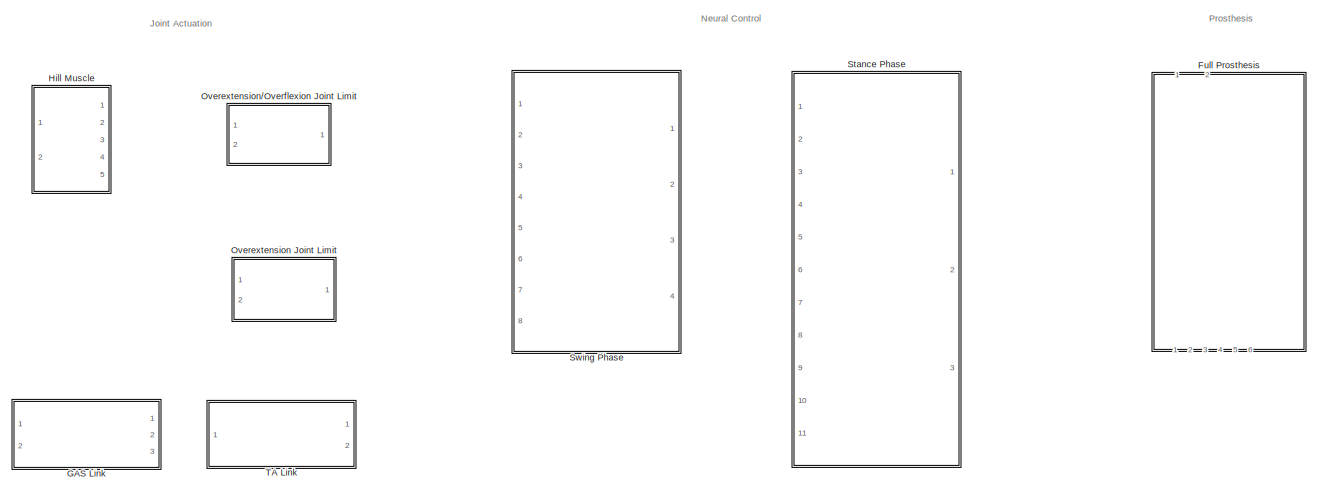
[diagram: root canvas - part 1/3, top right region]
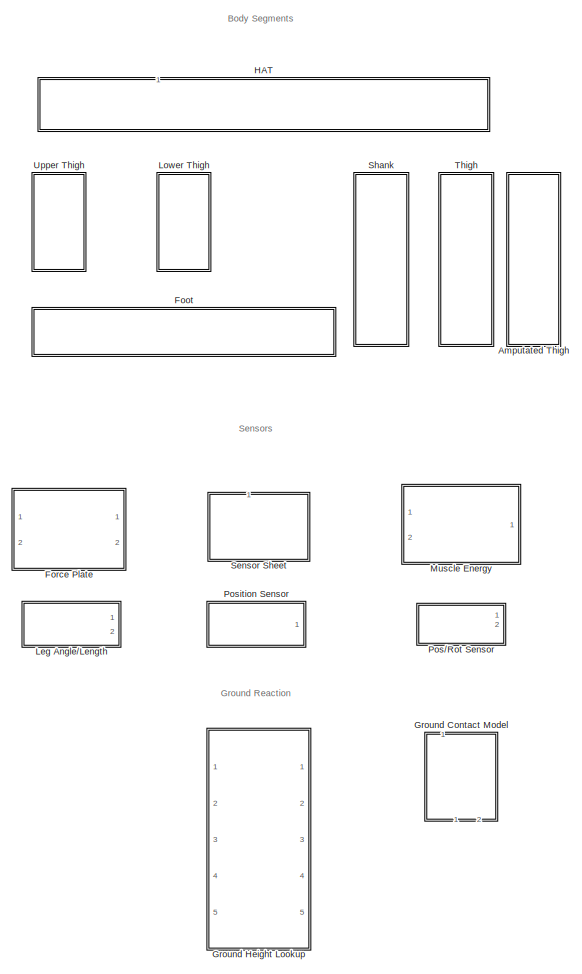
[diagram: root canvas - part 2/3, left side, full height]
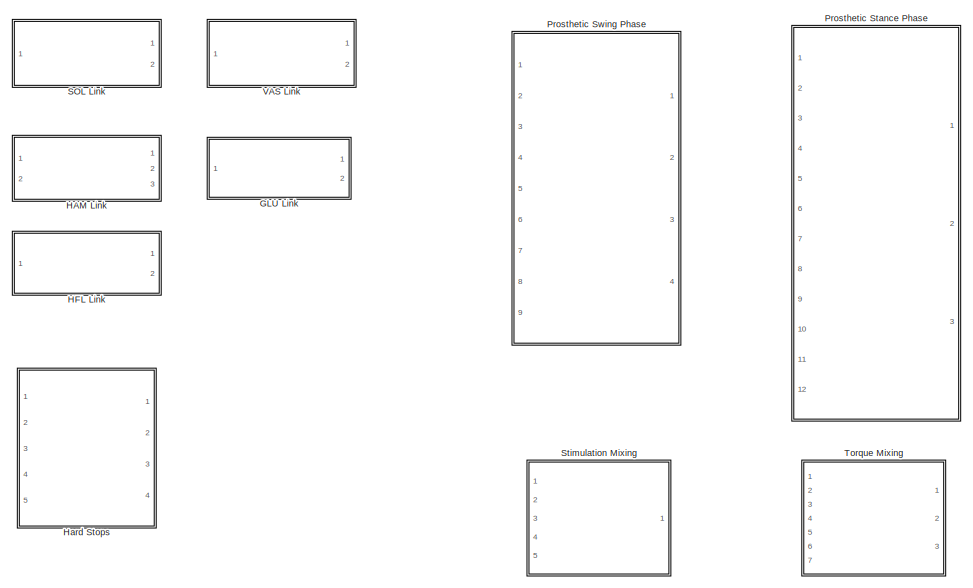
[diagram: root canvas - part 3/3, bottom center region]
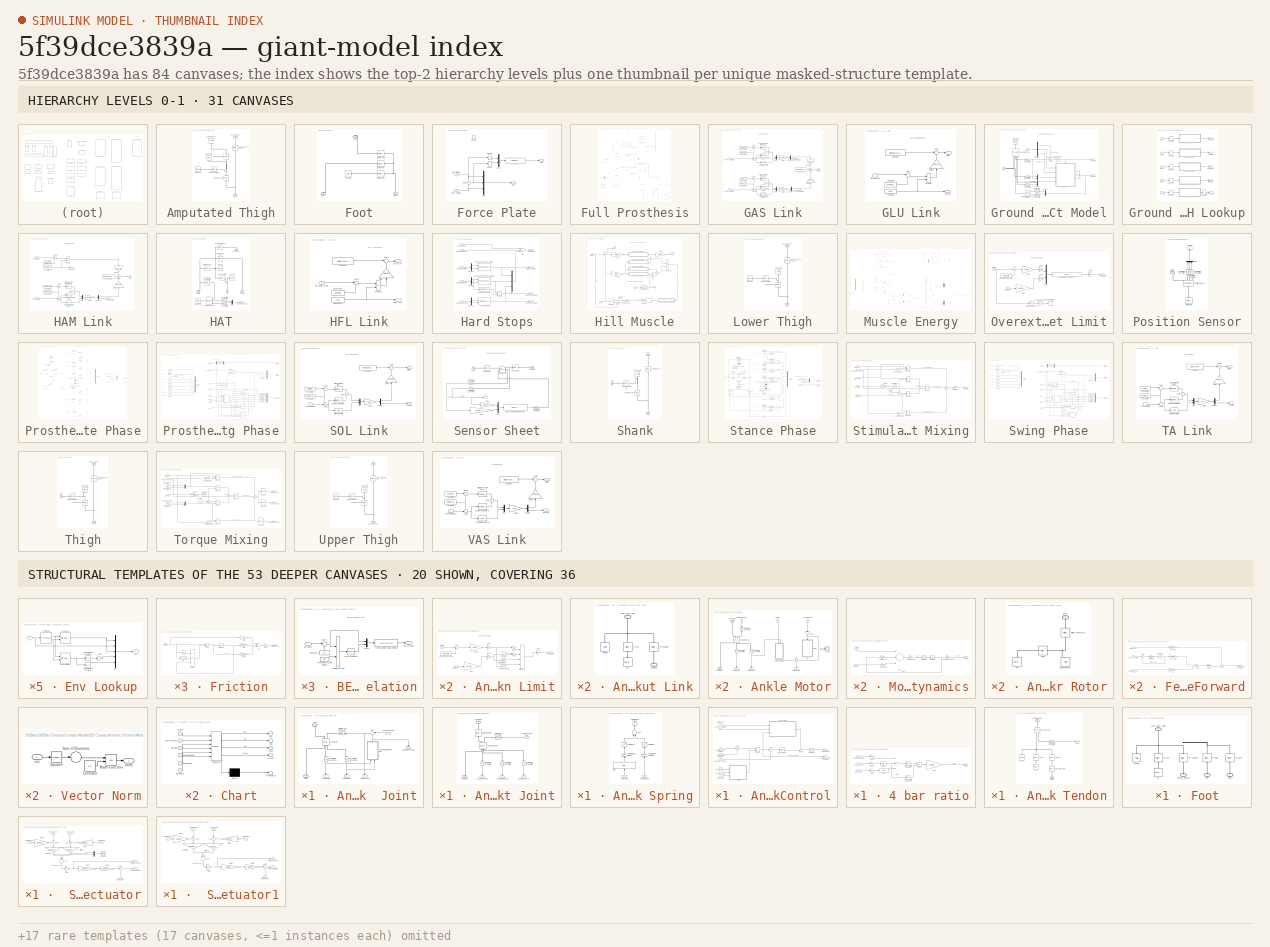
[diagram: thumbnail index - top-2 hierarchy levels (31 canvases) + 20 structural-template representatives of the remaining 53 canvases]
MODEL slx_5f39dce3839a
KIND library
BLOCK [SubSystem] Amputated Thigh
  Ports = [0, 0, 0, 0, 0, 1, 1]
  RequestExecContextInheritance = off
BLOCK [PMIOPort] Amputated Thigh/Knee
  Port = 1
  Side = Left
BLOCK [Reference] Amputated Thigh/Knee to Center  REF=sm_lib/Frames and
Transforms/Rigid
Transform
  BaseAlignAxisA = +Y
  BaseAlignAxisB = +X
  BlockFunction = simmechanics.library.frames_transforms.rigid_transform
  ClassName = RigidTransform
  FollAlignAxisA = +Z
  FollAlignAxisB = +X
  LogSimulationData = off
  Ports = [0, 0, 0, 0, 0, 1, 1]
  RotationAngle = 0
  RotationAngleUnits = deg
  RotationArbitraryAxis = [0 0 1]
  RotationMatrix = [1 0 0; 0 1 0; 0 0 1]
  RotationMethod = AlignedAxes
  RotationStandardAxis = +Z
  SourceBlock = sm_lib/Frames and\nTransforms/Rigid\nTransform
  SourceType = Rigid\nTransform
  TranslationCartesianOffset = [0 thighKneeToCenterDist 0]
  TranslationLengthUnit = m
  TranslationMethod = Cartesian
  TranslationROffset = 0
  TranslationROffsetUnits = m
  TranslationStandardAxis = +Z
  TranslationStandardOffset = 0
  TranslationThetaOffset = 0
  TranslationThetaOffsetUnits = deg
  TranslationZOffset = 0
  TranslationZOffsetUnits = m
BLOCK [Reference] Amputated Thigh/Knee to Center1  REF=sm_lib/Frames and
Transforms/Rigid
Transform
  BaseAlignAxisA = +Y
  BaseAlignAxisB = +X
  BlockFunction = simmechanics.library.frames_transforms.rigid_transform
  ClassName = RigidTransform
  FollAlignAxisA = +Z
  FollAlignAxisB = +X
  LogSimulationData = off
  Ports = [0, 0, 0, 0, 0, 1, 1]
  RotationAngle = 0
  RotationAngleUnits = deg
  RotationArbitraryAxis = [0 0 1]
  RotationMatrix = [1 0 0; 0 1 0; 0 0 1]
  RotationMethod = None
  RotationStandardAxis = +Z
  SourceBlock = sm_lib/Frames and\nTransforms/Rigid\nTransform
  SourceType = Rigid\nTransform
  TranslationCartesianOffset = [0 0 .05]
  TranslationLengthUnit = m
  TranslationMethod = Cartesian
  TranslationROffset = 0
  TranslationROffsetUnits = m
  TranslationStandardAxis = +Z
  TranslationStandardOffset = 0
  TranslationThetaOffset = 0
  TranslationThetaOffsetUnits = deg
  TranslationZOffset = 0
  TranslationZOffsetUnits = m
BLOCK [Reference] Amputated Thigh/Knee to Sensor Sheet  REF=sm_lib/Frames and
Transforms/Rigid
Transform
  BaseAlignAxisA = +X
  BaseAlignAxisB = +Y
  BlockFunction = simmechanics.library.frames_transforms.rigid_transform
  ClassName = RigidTransform
  FollAlignAxisA = +Z
  FollAlignAxisB = +Y
  LogSimulationData = off
  Ports = [0, 0, 0, 0, 0, 1, 1]
  RotationAngle = 0
  RotationAngleUnits = deg
  RotationArbitraryAxis = [0 0 1]
  RotationMatrix = [1 0 0; 0 1 0; 0 0 1]
  RotationMethod = None
  RotationStandardAxis = +Z
  SourceBlock = sm_lib/Frames and\nTransforms/Rigid\nTransform
  SourceType = Rigid\nTransform
  TranslationCartesianOffset = [0 thighKneeToHipDist 0]
  TranslationLengthUnit = m
  TranslationMethod = Cartesian
  TranslationROffset = 0
  TranslationROffsetUnits = m
  TranslationStandardAxis = +Z
  TranslationStandardOffset = 0
  TranslationThetaOffset = 0
  TranslationThetaOffsetUnits = deg
  TranslationZOffset = 0
  TranslationZOffsetUnits = m
BLOCK [PMIOPort] Amputated Thigh/Sensor Sheet
  Port = 2
  Side = Right
BLOCK [Reference] Amputated Thigh/Thigh CG  REF=sm_lib/Frames and
Transforms/Reference
Frame
  BlockFunction = simmechanics.library.frames_transforms.reference_frame
  ClassName = ReferenceFrame
  LogSimulationData = off
  Ports = [0, 0, 0, 0, 0, 0, 1]
  SourceBlock = sm_lib/Frames and\nTransforms/Reference\nFrame
  SourceType = Reference\nFrame
BLOCK [Reference] Amputated Thigh/Thigh Center to CG  REF=sm_lib/Frames and
Transforms/Rigid
Transform
  BaseAlignAxisA = +Y
  BaseAlignAxisB = +Z
  BlockFunction = simmechanics.library.frames_transforms.rigid_transform
  ClassName = RigidTransform
  FollAlignAxisA = +X
  FollAlignAxisB = +Y
  LogSimulationData = off
  Ports = [0, 0, 0, 0, 0, 1, 1]
  RotationAngle = 0
  RotationAngleUnits = deg
  RotationArbitraryAxis = [0 0 1]
  RotationMatrix = [1 0 0; 0 1 0; 0 0 1]
  RotationMethod = None
  RotationStandardAxis = +Z
  SourceBlock = sm_lib/Frames and\nTransforms/Rigid\nTransform
  SourceType = Rigid\nTransform
  TranslationCartesianOffset = [0 0 thighCenterToCGDist]
  TranslationLengthUnit = m
  TranslationMethod = Cartesian
  TranslationROffset = 0
  TranslationROffsetUnits = m
  TranslationStandardAxis = +Z
  TranslationStandardOffset = 0
  TranslationThetaOffset = 0
  TranslationThetaOffsetUnits = deg
  TranslationZOffset = 0
  TranslationZOffsetUnits = m
BLOCK [Reference] Amputated Thigh/Thigh Graphic  REF=sm_lib/Body Elements/Solid
  BlockFunction = simmechanics.library.body_elements.solid
  BrickDimensionUnits = m
  BrickDimensions = [1.05 .1]
  CenterOfMass = [0 0 thighCenterToCGDist]
  CenterOfMassUnits = m
  ClassName = Solid
  CylinderLength = thighLength-.1
  CylinderLengthUnits = m
  CylinderRadius = .075
  CylinderRadiusUnits = m
  Density = 1000
  DensityBased = on
  DensityUnits = kg/(m^3)
  EllipsoidRadii = [1 1 1]
  EllipsoidRadiiUnits = m
  ExtGeomFileType = STL
  ExtGeomFileUnits = m
  ExtrusionCrossSection = [1 1; -1 1; -1 -1; 1 -1]
  ExtrusionCrossSectionUnits = m
  ExtrusionLength = 1
  ExtrusionLengthUnits = m
  GeometryShape = Cylinder
  GraphicAmbientColor = [0.15 0.15 0.15 1.0]
  GraphicDiffuseColor = [0.5 0.5 0.5]
  GraphicEmissiveColor = [0.0 0.0 0.0 1.0]
  GraphicOpacity = 1.0
  GraphicShininess = 75
  GraphicSpecularColor = [0.5 0.5 0.5 1.0]
  GraphicType = FromGeometry
  GraphicVisPropType = SimpleVisualProperties
  InertiaType = PointMass
  LogSimulationData = off
  MarkerShape = Sphere
  MarkerSize = 10
  MarkerSizeUnits = m
  Mass = 0
  MassUnits = kg
  MomentsOfInertia = [thighInertia 0 0]
  MomentsOfInertiaUnits = kg*m^2
  PolygonNumSides = 3
  PolygonOuterRadius = 1
  PolygonOuterRadiusUnits = m
  Ports = [0, 0, 0, 0, 0, 0, 1]
  ProductsOfInertia = [0 0 0]
  ProductsOfInertiaUnits = kg*m^2
  RectangleSize = [1 1]
  RectangleSizeUnits = m
  RevolutionAngle = 180
  RevolutionAngleUnits = deg
  RevolutionCrossSection = [1 1; 1 -1; 2 -1; 2 1]
  RevolutionCrossSectionUnits = m
  RevolutionExtent = Full
  SourceBlock = sm_lib/Body Elements/Solid
  SourceType = Solid
  SphereRadius = 1
  SphereRadiusUnits = m
BLOCK [Reference] Amputated Thigh/Thigh inertia  REF=sm_lib/Body Elements/Solid
  BlockFunction = simmechanics.library.body_elements.solid
  BrickDimensionUnits = m
  BrickDimensions = [1.05 .1]
  CenterOfMass = [0 0 thighCenterToCGDist]
  CenterOfMassUnits = m
  ClassName = Solid
  CylinderLength = thighLength
  CylinderLengthUnits = m
  CylinderRadius = .075
  CylinderRadiusUnits = m
  Density = 1000
  DensityBased = on
  DensityUnits = kg/(m^3)
  EllipsoidRadii = [1 1 1]
  EllipsoidRadiiUnits = m
  ExtGeomFileType = STL
  ExtGeomFileUnits = m
  ExtrusionCrossSection = [1 1; -1 1; -1 -1; 1 -1]
  ExtrusionCrossSectionUnits = m
  ExtrusionLength = 1
  ExtrusionLengthUnits = m
  GeometryShape = Cylinder
  GraphicAmbientColor = [0.15 0.15 0.15 1.0]
  GraphicDiffuseColor = [0.5 0.5 0.5]
  GraphicEmissiveColor = [0.0 0.0 0.0 1.0]
  GraphicOpacity = 1.0
  GraphicShininess = 75
  GraphicSpecularColor = [0.5 0.5 0.5 1.0]
  GraphicType = None
  GraphicVisPropType = SimpleVisualProperties
  InertiaType = Custom
  LogSimulationData = off
  MarkerShape = Sphere
  MarkerSize = 10
  MarkerSizeUnits = m
  Mass = thighMass
  MassUnits = kg
  MomentsOfInertia = [thighInertia 0 0]
  MomentsOfInertiaUnits = kg*m^2
  PolygonNumSides = 3
  PolygonOuterRadius = 1
  PolygonOuterRadiusUnits = m
  Ports = [0, 0, 0, 0, 0, 0, 1]
  ProductsOfInertia = [0 0 0]
  ProductsOfInertiaUnits = kg*m^2
  RectangleSize = [1 1]
  RectangleSizeUnits = m
  RevolutionAngle = 180
  RevolutionAngleUnits = deg
  RevolutionCrossSection = [1 1; 1 -1; 2 -1; 2 1]
  RevolutionCrossSectionUnits = m
  RevolutionExtent = Full
  SourceBlock = sm_lib/Body Elements/Solid
  SourceType = Solid
  SphereRadius = 1
  SphereRadiusUnits = m
BLOCK [SubSystem] Foot
  Ports = [0, 0, 0, 0, 0, 2, 1]
  RequestExecContextInheritance = off
BLOCK [PMIOPort] Foot/Ankle
  Port = 1
  Side = Right
BLOCK [PMIOPort] Foot/Ball
  Port = 3
  Side = Left
BLOCK [Reference] Foot/Ball To Ankle  REF=sm_lib/Frames and
Transforms/Rigid
Transform
  BaseAlignAxisA = +Y
  BaseAlignAxisB = +Z
  BlockFunction = simmechanics.library.frames_transforms.rigid_transform
  ClassName = RigidTransform
  FollAlignAxisA = +X
  FollAlignAxisB = +Y
  LogSimulationData = off
  Ports = [0, 0, 0, 0, 0, 1, 1]
  RotationAngle = 0
  RotationAngleUnits = deg
  RotationArbitraryAxis = [0 0 1]
  RotationMatrix = [1 0 0; 0 1 0; 0 0 1]
  RotationMethod = None
  RotationStandardAxis = +Z
  SourceBlock = sm_lib/Frames and\nTransforms/Rigid\nTransform
  SourceType = Rigid\nTransform
  TranslationCartesianOffset = [-footBallToAnkleDist 0 0]
  TranslationLengthUnit = m
  TranslationMethod = Cartesian
  TranslationROffset = 0
  TranslationROffsetUnits = m
  TranslationStandardAxis = +Z
  TranslationStandardOffset = 0
  TranslationThetaOffset = 0
  TranslationThetaOffsetUnits = deg
  TranslationZOffset = 0
  TranslationZOffsetUnits = m
BLOCK [Reference] Foot/Ball To Heel  REF=sm_lib/Frames and
Transforms/Rigid
Transform
  BaseAlignAxisA = +Y
  BaseAlignAxisB = +Z
  BlockFunction = simmechanics.library.frames_transforms.rigid_transform
  ClassName = RigidTransform
  FollAlignAxisA = +X
  FollAlignAxisB = +Y
  LogSimulationData = off
  Ports = [0, 0, 0, 0, 0, 1, 1]
  RotationAngle = 0
  RotationAngleUnits = deg
  RotationArbitraryAxis = [0 0 1]
  RotationMatrix = [1 0 0; 0 1 0; 0 0 1]
  RotationMethod = None
  RotationStandardAxis = +Z
  SourceBlock = sm_lib/Frames and\nTransforms/Rigid\nTransform
  SourceType = Rigid\nTransform
  TranslationCartesianOffset = [-footBallToHeelDist 0 0]
  TranslationLengthUnit = m
  TranslationMethod = Cartesian
  TranslationROffset = 0
  TranslationROffsetUnits = m
  TranslationStandardAxis = +Z
  TranslationStandardOffset = 0
  TranslationThetaOffset = 0
  TranslationThetaOffsetUnits = deg
  TranslationZOffset = 0
  TranslationZOffsetUnits = m
BLOCK [Reference] Foot/Ball to Center  REF=sm_lib/Frames and
Transforms/Rigid
Transform
  BaseAlignAxisA = +Y
  BaseAlignAxisB = +Z
  BlockFunction = simmechanics.library.frames_transforms.rigid_transform
  ClassName = RigidTransform
  FollAlignAxisA = +X
  FollAlignAxisB = +Y
  LogSimulationData = off
  Ports = [0, 0, 0, 0, 0, 1, 1]
  RotationAngle = 0
  RotationAngleUnits = deg
  RotationArbitraryAxis = [0 0 1]
  RotationMatrix = [1 0 0; 0 1 0; 0 0 1]
  RotationMethod = None
  RotationStandardAxis = +Z
  SourceBlock = sm_lib/Frames and\nTransforms/Rigid\nTransform
  SourceType = Rigid\nTransform
  TranslationCartesianOffset = [-footBallToCenterDist .025 0]
  TranslationLengthUnit = m
  TranslationMethod = Cartesian
  TranslationROffset = 0
  TranslationROffsetUnits = m
  TranslationStandardAxis = +Z
  TranslationStandardOffset = 0
  TranslationThetaOffset = 0
  TranslationThetaOffsetUnits = deg
  TranslationZOffset = 0
  TranslationZOffsetUnits = m
BLOCK [Reference] Foot/Foot Solid  REF=sm_lib/Body Elements/Solid
  BlockFunction = simmechanics.library.body_elements.solid
  BrickDimensionUnits = m
  BrickDimensions = [footLength .05 .1]
  CenterOfMass = [-footCenterToCGDist 0 0]
  CenterOfMassUnits = m
  ClassName = Solid
  CylinderLength = 1
  CylinderLengthUnits = m
  CylinderRadius = 1
  CylinderRadiusUnits = m
  Density = 1000
  DensityBased = on
  DensityUnits = kg/(m^3)
  EllipsoidRadii = [1 1 1]
  EllipsoidRadiiUnits = m
  ExtGeomFileType = STL
  ExtGeomFileUnits = m
  ExtrusionCrossSection = [1 1; -1 1; -1 -1; 1 -1]
  ExtrusionCrossSectionUnits = m
  ExtrusionLength = 1
  ExtrusionLengthUnits = m
  GeometryShape = Brick
  GraphicAmbientColor = [0.15 0.15 0.15 1.0]
  GraphicDiffuseColor = [0.5 0.5 0.5]
  GraphicEmissiveColor = [0.0 0.0 0.0 1.0]
  GraphicOpacity = 1.0
  GraphicShininess = 75
  GraphicSpecularColor = [0.5 0.5 0.5 1.0]
  GraphicType = FromGeometry
  GraphicVisPropType = SimpleVisualProperties
  InertiaType = Custom
  LogSimulationData = off
  MarkerShape = Sphere
  MarkerSize = 10
  MarkerSizeUnits = m
  Mass = footMass
  MassUnits = kg
  MomentsOfInertia = [0 0 footInertia]
  MomentsOfInertiaUnits = kg*m^2
  PolygonNumSides = 3
  PolygonOuterRadius = 1
  PolygonOuterRadiusUnits = m
  Ports = [0, 0, 0, 0, 0, 0, 1]
  ProductsOfInertia = [0 0 0]
  ProductsOfInertiaUnits = kg*m^2
  RectangleSize = [1 1]
  RectangleSizeUnits = m
  RevolutionAngle = 180
  RevolutionAngleUnits = deg
  RevolutionCrossSection = [1 1; 1 -1; 2 -1; 2 1]
  RevolutionCrossSectionUnits = m
  RevolutionExtent = Full
  SourceBlock = sm_lib/Body Elements/Solid
  SourceType = Solid
  SphereRadius = 1
  SphereRadiusUnits = m
BLOCK [PMIOPort] Foot/Heel
  Port = 2
  Side = Left
BLOCK [SubSystem] Force Plate
  Ports = [2, 2, 1]
  RequestExecContextInheritance = off
  TreatAsAtomicUnit = on
BLOCK [Outport] Force Plate/COP
  IconDisplay = Port number
  InitialOutput = 0
  OutputWhenDisabled = reset
  Port = 2
BLOCK [EnablePort] Force Plate/Enable
  Ports = []
  StatesWhenEnabling = reset
BLOCK [Fcn] Force Plate/Fcn
  Expr = u(1)/(u(2)+eps)
BLOCK [Inport] Force Plate/GRF_Ball [N N] 
  IconDisplay = Port number
BLOCK [Inport] Force Plate/GRF_Heel [N N]
  IconDisplay = Port number
  Port = 2
BLOCK [Outport] Force Plate/GRFs
  IconDisplay = Port number
  InitialOutput = 0
  OutputWhenDisabled = reset
BLOCK [Mux] Force Plate/Mux
  DisplayOption = bar
  Inputs = 3
  Ports = [3, 1]
BLOCK [Mux] Force Plate/Mux1
  DisplayOption = bar
  Inputs = 2
  Ports = [2, 1]
BLOCK [Selector] Force Plate/Selector
  Indices = 2
  InputPortWidth = 2
  Ports = [1, 1]
BLOCK [Selector] Force Plate/Selector1
  Indices = 2
  InputPortWidth = 2
  Ports = [1, 1]
BLOCK [Sum] Force Plate/Sum1
  IconShape = round
  InputSameDT = off
  OutDataTypeStr = Inherit: Inherit via internal rule
  Ports = [2, 1]
  SaturateOnIntegerOverflow = off
BLOCK [SubSystem] Full Prosthesis
  Ports = [2, 6, 0, 0, 0, 2, 3]
  RequestExecContextInheritance = off
BLOCK [PMIOPort] Full Prosthesis/Ankle
  Port = 3
  Side = Right
BLOCK [SubSystem] Full Prosthesis/Ankle  Joint
  Ports = [1, 4, 0, 0, 0, 1, 1]
  RequestExecContextInheritance = off
BLOCK [Outport] Full Prosthesis/Ankle  Joint/Actual Torque
  IconDisplay = Port number
  Port = 3
BLOCK [PMIOPort] Full Prosthesis/Ankle  Joint/Ankle
  Port = 1
  Side = Left
BLOCK [Outport] Full Prosthesis/Ankle  Joint/Ankle Angle
  IconDisplay = Port number
BLOCK [Reference] Full Prosthesis/Ankle  Joint/Ankle Joint  REF=sm_lib/Joints/Revolute Joint
  BlockFunction = simmechanics.library.joints.revolute_joint
  ClassName = RevoluteJoint
  CompositeWrenchDir = FollowerOnBase
  CompositeWrenchFrame = BaseFrame
  DampingCoefficient = 0
  DampingCoefficientUnits = N*m/(rad/s)
  EquilibriumPosition = 0
  EquilibriumPositionUnits = deg
  LogSimulationData = off
  MotionActuationMode = ComputedMotion
  Ports = [0, 0, 0, 0, 0, 2, 3]
  PositionTargetPriority = Low
  PositionTargetSpecify = on
  PositionTargetValue = 0
  PositionTargetValueUnits = rad
  SenseAcceleration = off
  SenseConstraintForce = off
  SenseConstraintForceX = off
  SenseConstraintForceY = off
  SenseConstraintForceZ = off
  SenseConstraintTorque = off
  SenseConstraintTorqueX = off
  SenseConstraintTorqueY = off
  SenseConstraintTorqueZ = off
  SensePosition = on
  SenseTorqueForce = off
  SenseTotalForce = off
  SenseTotalForceX = off
  SenseTotalForceY = off
  SenseTotalForceZ = off
  SenseTotalTorque = off
  SenseTotalTorqueX = off
  SenseTotalTorqueY = off
  SenseTotalTorqueZ = off
  SenseVelocity = on
  SourceBlock = sm_lib/Joints/Revolute Joint
  SourceType = Revolute Joint
  SpringStiffness = 0
  SpringStiffnessUnits = N*m/rad
  TorqueActuationMode = InputTorque
  VelocityTargetPriority = High
  VelocityTargetSpecify = off
  VelocityTargetValue = 0
  VelocityTargetValueUnits = deg/s
BLOCK [SubSystem] Full Prosthesis/Ankle  Joint/Ankle Plantarflexion Limit
  Ports = [2, 1]
  RequestExecContextInheritance = off
BLOCK [Reference] Full Prosthesis/Ankle  Joint/Ankle Plantarflexion Limit/Compare To Constant  REF=simulink/Logic and Bit
Operations/Compare
To Constant
  OutDataTypeStr = boolean
  Ports = [1, 1]
  SourceBlock = simulink/Logic and Bit\nOperations/Compare\nTo Constant
  SourceType = Compare To Constant
  ZeroCross = off
  const = 1.0
  relop = <
BLOCK [Reference] Full Prosthesis/Ankle  Joint/Ankle Plantarflexion Limit/Compare To Zero  REF=simulink/Logic and Bit
Operations/Compare
To Zero
  OutDataTypeStr = boolean
  Ports = [1, 1]
  SourceBlock = simulink/Logic and Bit\nOperations/Compare\nTo Zero
  SourceType = Compare To Zero
  ZeroCross = off
  relop = >
BLOCK [Constant] Full Prosthesis/Ankle  Joint/Ankle Plantarflexion Limit/Constant
BLOCK [Gain] Full Prosthesis/Ankle  Joint/Ankle Plantarflexion Limit/Gain
  Gain = -1
  OutDataTypeStr = Inherit: Inherit via internal rule
  ParamDataTypeStr = Inherit: Inherit via internal rule
  SaturateOnIntegerOverflow = off
BLOCK [Gain] Full Prosthesis/Ankle  Joint/Ankle Plantarflexion Limit/Gain1
  Gain = ext
  OutDataTypeStr = Inherit: Inherit via internal rule
  ParamDataTypeStr = Inherit: Inherit via internal rule
  SaturateOnIntegerOverflow = off
BLOCK [Gain] Full Prosthesis/Ankle  Joint/Ankle Plantarflexion Limit/Gain2
  Gain = -ext
  OutDataTypeStr = Inherit: Inherit via internal rule
  ParamDataTypeStr = Inherit: Inherit via internal rule
  SaturateOnIntegerOverflow = off
BLOCK [Gain] Full Prosthesis/Ankle  Joint/Ankle Plantarflexion Limit/Gain3
  Gain = c_jointstop
  OutDataTypeStr = Inherit: Inherit via internal rule
  ParamDataTypeStr = Inherit: Inherit via internal rule
  SaturateOnIntegerOverflow = off
BLOCK [Gain] Full Prosthesis/Ankle  Joint/Ankle Plantarflexion Limit/Gain4
  Gain = 1/w_max_jointstop
  OutDataTypeStr = Inherit: Inherit via internal rule
  ParamDataTypeStr = Inherit: Inherit via internal rule
  SaturateOnIntegerOverflow = off
BLOCK [Gain] Full Prosthesis/Ankle  Joint/Ankle Plantarflexion Limit/Gain5
  Gain = ext
  OutDataTypeStr = Inherit: Inherit via internal rule
  ParamDataTypeStr = Inherit: Inherit via internal rule
  SaturateOnIntegerOverflow = off
BLOCK [Outport] Full Prosthesis/Ankle  Joint/Ankle Plantarflexion Limit/M_stop [Nm]
  IconDisplay = Port number
BLOCK [Product] Full Prosthesis/Ankle  Joint/Ankle Plantarflexion Limit/Product
  InputSameDT = off
  Inputs = 4
  OutDataTypeStr = Inherit: Inherit via internal rule
  Ports = [4, 1]
  RndMeth = Floor
  SaturateOnIntegerOverflow = off
BLOCK [Sum] Full Prosthesis/Ankle  Joint/Ankle Plantarflexion Limit/Sum
  IconShape = round
  InputSameDT = off
  Inputs = |+-
  OutDataTypeStr = Inherit: Inherit via internal rule
  Ports = [2, 1]
  SaturateOnIntegerOverflow = off
BLOCK [Sum] Full Prosthesis/Ankle  Joint/Ankle Plantarflexion Limit/Sum1
  IconShape = round
  InputSameDT = off
  Inputs = |+-
  OutDataTypeStr = Inherit: Inherit via internal rule
  Ports = [2, 1]
  SaturateOnIntegerOverflow = off
BLOCK [Inport] Full Prosthesis/Ankle  Joint/Ankle Plantarflexion Limit/dphi [rad//s]
  IconDisplay = Port number
  Port = 2
BLOCK [Constant] Full Prosthesis/Ankle  Joint/Ankle Plantarflexion Limit/overextension angle
  Value = phiUpLimit
BLOCK [Inport] Full Prosthesis/Ankle  Joint/Ankle Plantarflexion Limit/phi [rad]
  IconDisplay = Port number
BLOCK [Outport] Full Prosthesis/Ankle  Joint/Ankle Speed
  IconDisplay = Port number
  Port = 2
BLOCK [Outport] Full Prosthesis/Ankle  Joint/Ankle Stop Torque
  IconDisplay = Port number
  Port = 4
BLOCK [PMIOPort] Full Prosthesis/Ankle  Joint/Foot
  Port = 2
  Side = Right
BLOCK [Reference] Full Prosthesis/Ankle  Joint/PS-Simulink Converter2  REF=nesl_utility/PS-Simulink
Converter
  AffineConversion = off
  Frequencies = []
  LeftPortType = input
  PhysicalDomain = network_engine_domain
  Ports = [0, 1, 0, 0, 0, 1]
  PseudoPeriodic = off
  RightPortType = output
  SourceBlock = nesl_utility/PS-Simulink\nConverter
  SourceType = PS-Simulink\nConverter
  SubClassName = ps_output
  Unit = rad
BLOCK [Reference] Full Prosthesis/Ankle  Joint/PS-Simulink Converter3  REF=nesl_utility/PS-Simulink
Converter
  AffineConversion = off
  Frequencies = []
  LeftPortType = input
  PhysicalDomain = network_engine_domain
  Ports = [0, 1, 0, 0, 0, 1]
  PseudoPeriodic = off
  RightPortType = output
  SourceBlock = nesl_utility/PS-Simulink\nConverter
  SourceType = PS-Simulink\nConverter
  SubClassName = ps_output
  Unit = rad/s
BLOCK [Reference] Full Prosthesis/Ankle  Joint/Simulink-PS Converter  REF=nesl_utility/Simulink-PS
Converter
  AffineConversion = off
  Frequencies = []
  InputFilterTimeConstant = 0.001
  InputFiltering = off
  LeftPortType = input
  NoiseDistribution = none
  NoiseParameters = []
  PhysicalDomain = network_engine_domain
  Ports = [1, 0, 0, 0, 0, 0, 1]
  PseudoPeriodic = off
  RightPortType = output
  SimscapeFilterOrder = 1
  SourceBlock = nesl_utility/Simulink-PS\nConverter
  SourceType = Simulink-PS\nConverter
  SubClassName = ps_input
  UdotUserProvided = 1
  Unit = N*m
BLOCK [Sum] Full Prosthesis/Ankle  Joint/Sum
  IconShape = round
  InputSameDT = off
  Inputs = |++
  OutDataTypeStr = Inherit: Inherit via internal rule
  Ports = [2, 1]
  SaturateOnIntegerOverflow = off
BLOCK [Inport] Full Prosthesis/Ankle  Joint/Torque on Ankle
  IconDisplay = Port number
BLOCK [Outport] Full Prosthesis/Ankle Angle
  IconDisplay = Port number
  Port = 3
BLOCK [SubSystem] Full Prosthesis/Ankle Input Joint
  Ports = [1, 3, 0, 0, 0, 1, 1]
  RequestExecContextInheritance = off
BLOCK [PMIOPort] Full Prosthesis/Ankle Input Joint/Ankle Input
  Port = 2
  Side = Left
BLOCK [Outport] Full Prosthesis/Ankle Input Joint/Ankle Input Accel
  IconDisplay = Port number
  Port = 3
BLOCK [Outport] Full Prosthesis/Ankle Input Joint/Ankle Input Angle
  IconDisplay = Port number
BLOCK [Reference] Full Prosthesis/Ankle Input Joint/Ankle Input Joint  REF=sm_lib/Joints/Revolute Joint
  BlockFunction = simmechanics.library.joints.revolute_joint
  ClassName = RevoluteJoint
  CompositeWrenchDir = FollowerOnBase
  CompositeWrenchFrame = BaseFrame
  DampingCoefficient = 0
  DampingCoefficientUnits = N*m/(deg/s)
  EquilibriumPosition = 0
  EquilibriumPositionUnits = rad
  LogSimulationData = off
  MotionActuationMode = ComputedMotion
  Ports = [0, 0, 0, 0, 0, 2, 4]
  PositionTargetPriority = High
  PositionTargetSpecify = on
  PositionTargetValue = ankleInitialAngle
  PositionTargetValueUnits = rad
  SenseAcceleration = on
  SenseConstraintForce = off
  SenseConstraintForceX = off
  SenseConstraintForceY = off
  SenseConstraintForceZ = off
  SenseConstraintTorque = off
  SenseConstraintTorqueX = off
  SenseConstraintTorqueY = off
  SenseConstraintTorqueZ = off
  SensePosition = on
  SenseTorqueForce = off
  SenseTotalForce = off
  SenseTotalForceX = off
  SenseTotalForceY = off
  SenseTotalForceZ = off
  SenseTotalTorque = off
  SenseTotalTorqueX = off
  SenseTotalTorqueY = off
  SenseTotalTorqueZ = off
  SenseVelocity = on
  SourceBlock = sm_lib/Joints/Revolute Joint
  SourceType = Revolute Joint
  SpringStiffness = 0
  SpringStiffnessUnits = N*m/deg
  TorqueActuationMode = InputTorque
  VelocityTargetPriority = High
  VelocityTargetSpecify = off
  VelocityTargetValue = 0
  VelocityTargetValueUnits = deg/s
BLOCK [Outport] Full Prosthesis/Ankle Input Joint/Ankle Input Speed
  IconDisplay = Port number
  Port = 2
BLOCK [PMIOPort] Full Prosthesis/Ankle Input Joint/Ankle Stator
  Port = 1
  Side = Right
BLOCK [Reference] Full Prosthesis/Ankle Input Joint/PS-Simulink Converter1  REF=nesl_utility/PS-Simulink
Converter
  AffineConversion = off
  Frequencies = []
  LeftPortType = input
  PhysicalDomain = network_engine_domain
  Ports = [0, 1, 0, 0, 0, 1]
  PseudoPeriodic = off
  RightPortType = output
  SourceBlock = nesl_utility/PS-Simulink\nConverter
  SourceType = PS-Simulink\nConverter
  SubClassName = ps_output
  Unit = rad/s^2
BLOCK [Reference] Full Prosthesis/Ankle Input Joint/PS-Simulink Converter2  REF=nesl_utility/PS-Simulink
Converter
  AffineConversion = off
  Frequencies = []
  LeftPortType = input
  PhysicalDomain = network_engine_domain
  Ports = [0, 1, 0, 0, 0, 1]
  PseudoPeriodic = off
  RightPortType = output
  SourceBlock = nesl_utility/PS-Simulink\nConverter
  SourceType = PS-Simulink\nConverter
  SubClassName = ps_output
  Unit = rad
BLOCK [Reference] Full Prosthesis/Ankle Input Joint/PS-Simulink Converter3  REF=nesl_utility/PS-Simulink
Converter
  AffineConversion = off
  Frequencies = []
  LeftPortType = input
  PhysicalDomain = network_engine_domain
  Ports = [0, 1, 0, 0, 0, 1]
  PseudoPeriodic = off
  RightPortType = output
  SourceBlock = nesl_utility/PS-Simulink\nConverter
  SourceType = PS-Simulink\nConverter
  SubClassName = ps_output
  Unit = rad/s
BLOCK [Reference] Full Prosthesis/Ankle Input Joint/Rigid Transform  REF=sm_lib/Frames and
Transforms/Rigid
Transform
  BaseAlignAxisA = +Y
  BaseAlignAxisB = +Z
  BlockFunction = simmechanics.library.frames_transforms.rigid_transform
  ClassName = RigidTransform
  FollAlignAxisA = +X
  FollAlignAxisB = +Y
  LogSimulationData = off
  Ports = [0, 0, 0, 0, 0, 1, 1]
  RotationAngle = 180
  RotationAngleUnits = deg
  RotationArbitraryAxis = [0 0 1]
  RotationMatrix = [1 0 0; 0 1 0; 0 0 1]
  RotationMethod = StandardAxis
  RotationStandardAxis = +Z
  SourceBlock = sm_lib/Frames and\nTransforms/Rigid\nTransform
  SourceType = Rigid\nTransform
  TranslationCartesianOffset = [0 0 0]
  TranslationLengthUnit = m
  TranslationMethod = None
  TranslationROffset = 0
  TranslationROffsetUnits = m
  TranslationStandardAxis = +Z
  TranslationStandardOffset = 0
  TranslationThetaOffset = 0
  TranslationThetaOffsetUnits = deg
  TranslationZOffset = 0
  TranslationZOffsetUnits = m
BLOCK [Reference] Full Prosthesis/Ankle Input Joint/Simulink-PS Converter  REF=nesl_utility/Simulink-PS
Converter
  AffineConversion = off
  Frequencies = []
  InputFilterTimeConstant = 0.001
  InputFiltering = off
  LeftPortType = input
  NoiseDistribution = none
  NoiseParameters = []
  PhysicalDomain = network_engine_domain
  Ports = [1, 0, 0, 0, 0, 0, 1]
  PseudoPeriodic = off
  RightPortType = output
  SimscapeFilterOrder = 1
  SourceBlock = nesl_utility/Simulink-PS\nConverter
  SourceType = Simulink-PS\nConverter
  SubClassName = ps_input
  UdotUserProvided = 1
  Unit = N*m
BLOCK [Inport] Full Prosthesis/Ankle Input Joint/Torque on Ankle Input
  IconDisplay = Port number
BLOCK [SubSystem] Full Prosthesis/Ankle Input Link
  Ports = [0, 0, 0, 0, 0, 1, 1]
  RequestExecContextInheritance = off
BLOCK [PMIOPort] Full Prosthesis/Ankle Input Link/ Ankle Input Joint
  Port = 1
  Side = Right
BLOCK [Reference] Full Prosthesis/Ankle Input Link/CG  REF=sm_lib/Frames and
Transforms/Reference
Frame
  BlockFunction = simmechanics.library.frames_transforms.reference_frame
  ClassName = ReferenceFrame
  LogSimulationData = off
  Ports = [0, 0, 0, 0, 0, 0, 1]
  SourceBlock = sm_lib/Frames and\nTransforms/Reference\nFrame
  SourceType = Reference\nFrame
BLOCK [Reference] Full Prosthesis/Ankle Input Link/Shank  REF=sm_lib/Body Elements/Solid
  BlockFunction = simmechanics.library.body_elements.solid
  BrickDimensionUnits = m
  BrickDimensions = [1 1 1]
  CenterOfMass = ankleInputCG
  CenterOfMassUnits = mm
  ClassName = Solid
  CylinderLength = 1
  CylinderLengthUnits = m
  CylinderRadius = 1
  CylinderRadiusUnits = m
  Density = 1000
  DensityBased = on
  DensityUnits = kg/(m^3)
  EllipsoidRadii = [1 1 1]
  EllipsoidRadiiUnits = m
  ExtGeomFileName = ankleInputLink.STL
  ExtGeomFileType = STL
  ExtGeomFileUnits = mm
  ExtrusionCrossSection = [1 1; -1 1; -1 -1; 1 -1]
  ExtrusionCrossSectionUnits = m
  ExtrusionLength = 1
  ExtrusionLengthUnits = m
  GeometryShape = FromFile
  GraphicAmbientColor = [0.15 0.15 0.15 1.0]
  GraphicDiffuseColor = [0.5 0.5 0.5]
  GraphicEmissiveColor = [0.0 0.0 0.0 1.0]
  GraphicOpacity = 1.0
  GraphicShininess = 75
  GraphicSpecularColor = [0.5 0.5 0.5 1.0]
  GraphicType = FromGeometry
  GraphicVisPropType = SimpleVisualProperties
  InertiaType = Custom
  LogSimulationData = off
  MarkerShape = Sphere
  MarkerSize = 10
  MarkerSizeUnits = m
  Mass = ankleInputMass
  MassUnits = g
  MomentsOfInertia = ankleInputMomentOfInertia
  MomentsOfInertiaUnits = g*cm^2
  PolygonNumSides = 3
  PolygonOuterRadius = 1
  PolygonOuterRadiusUnits = m
  Ports = [0, 0, 0, 0, 0, 0, 1]
  ProductsOfInertia = ankleInputProductOfInertia
  ProductsOfInertiaUnits = g*cm^2
  RectangleSize = [1 1]
  RectangleSizeUnits = m
  RevolutionAngle = 180
  RevolutionAngleUnits = deg
  RevolutionCrossSection = [1 1; 1 -1; 2 -1; 2 1]
  RevolutionCrossSectionUnits = m
  RevolutionExtent = Full
  SourceBlock = sm_lib/Body Elements/Solid
  SourceType = Solid
  SphereRadius = 1
  SphereRadiusUnits = m
BLOCK [PMIOPort] Full Prosthesis/Ankle Input Link/Tendon
  Port = 2
  Side = Left
BLOCK [Reference] Full Prosthesis/Ankle Input Link/To CG  REF=sm_lib/Frames and
Transforms/Rigid
Transform
  BaseAlignAxisA = +Y
  BaseAlignAxisB = +Z
  BlockFunction = simmechanics.library.frames_transforms.rigid_transform
  ClassName = RigidTransform
  FollAlignAxisA = +X
  FollAlignAxisB = +Y
  LogSimulationData = off
  Ports = [0, 0, 0, 0, 0, 1, 1]
  RotationAngle = 0
  RotationAngleUnits = deg
  RotationArbitraryAxis = [0 0 1]
  RotationMatrix = [1 0 0; 0 1 0; 0 0 1]
  RotationMethod = None
  RotationStandardAxis = +Z
  SourceBlock = sm_lib/Frames and\nTransforms/Rigid\nTransform
  SourceType = Rigid\nTransform
  TranslationCartesianOffset = ankleInputCG
  TranslationLengthUnit = mm
  TranslationMethod = Cartesian
  TranslationROffset = 0
  TranslationROffsetUnits = m
  TranslationStandardAxis = -Z
  TranslationStandardOffset = 1.5
  TranslationThetaOffset = 0
  TranslationThetaOffsetUnits = deg
  TranslationZOffset = 0
  TranslationZOffsetUnits = m
BLOCK [Reference] Full Prosthesis/Ankle Input Link/To Tendon  REF=sm_lib/Frames and
Transforms/Rigid
Transform
  BaseAlignAxisA = +Y
  BaseAlignAxisB = +Z
  BlockFunction = simmechanics.library.frames_transforms.rigid_transform
  ClassName = RigidTransform
  FollAlignAxisA = +X
  FollAlignAxisB = +Y
  LogSimulationData = off
  Ports = [0, 0, 0, 0, 0, 1, 1]
  RotationAngle = 0
  RotationAngleUnits = deg
  RotationArbitraryAxis = [0 0 1]
  RotationMatrix = [1 0 0; 0 1 0; 0 0 1]
  RotationMethod = None
  RotationStandardAxis = +Z
  SourceBlock = sm_lib/Frames and\nTransforms/Rigid\nTransform
  SourceType = Rigid\nTransform
  TranslationCartesianOffset = [80, 0, 2]
  TranslationLengthUnit = mm
  TranslationMethod = Cartesian
  TranslationROffset = 0
  TranslationROffsetUnits = m
  TranslationStandardAxis = -Y
  TranslationStandardOffset = 445.61
  TranslationThetaOffset = 0
  TranslationThetaOffsetUnits = deg
  TranslationZOffset = 0
  TranslationZOffsetUnits = m
BLOCK [SubSystem] Full Prosthesis/Ankle Motor
  Ports = [3, 3, 0, 0, 0, 1, 1]
  RequestExecContextInheritance = off
BLOCK [SubSystem] Full Prosthesis/Ankle Motor Rotor
  Ports = [0, 0, 0, 0, 0, 0, 1]
  RequestExecContextInheritance = off
BLOCK [Reference] Full Prosthesis/Ankle Motor Rotor/CG  REF=sm_lib/Frames and
Transforms/Reference
Frame
  BlockFunction = simmechanics.library.frames_transforms.reference_frame
  ClassName = ReferenceFrame
  LogSimulationData = off
  Ports = [0, 0, 0, 0, 0, 0, 1]
  SourceBlock = sm_lib/Frames and\nTransforms/Reference\nFrame
  SourceType = Reference\nFrame
BLOCK [PMIOPort] Full Prosthesis/Ankle Motor Rotor/Conn1
  Port = 1
  Side = Right
BLOCK [Reference] Full Prosthesis/Ankle Motor Rotor/Knee Rotor1  REF=sm_lib/Body Elements/Solid
  BlockFunction = simmechanics.library.body_elements.solid
  BrickDimensionUnits = m
  BrickDimensions = [1 1 1]
  CenterOfMass = motorRotorCG
  CenterOfMassUnits = mm
  ClassName = Solid
  CylinderLength = 1
  CylinderLengthUnits = m
  CylinderRadius = 1
  CylinderRadiusUnits = m
  Density = 1000
  DensityBased = on
  DensityUnits = kg/(m^3)
  EllipsoidRadii = [1 1 1]
  EllipsoidRadiiUnits = m
  ExtGeomFileName = motorRotor.STL
  ExtGeomFileType = STL
  ExtGeomFileUnits = mm
  ExtrusionCrossSection = [1 1; -1 1; -1 -1; 1 -1]
  ExtrusionCrossSectionUnits = m
  ExtrusionLength = 1
  ExtrusionLengthUnits = m
  GeometryShape = FromFile
  GraphicAmbientColor = [0.15 0.15 0.15 1.0]
  GraphicDiffuseColor = [0.5 0.5 0.5]
  GraphicEmissiveColor = [0.0 0.0 0.0 1.0]
  GraphicOpacity = 1.0
  GraphicShininess = 75
  GraphicSpecularColor = [0.5 0.5 0.5 1.0]
  GraphicType = FromGeometry
  GraphicVisPropType = SimpleVisualProperties
  InertiaType = Custom
  LogSimulationData = off
  MarkerShape = Sphere
  MarkerSize = 10
  MarkerSizeUnits = m
  Mass = motorRotorMass
  MassUnits = g
  MomentsOfInertia = motorRotorMomentOfInertia
  MomentsOfInertiaUnits = g*cm^2
  PolygonNumSides = 3
  PolygonOuterRadius = 1
  PolygonOuterRadiusUnits = m
  Ports = [0, 0, 0, 0, 0, 0, 1]
  ProductsOfInertia = motorRotorProductOfInertia
  ProductsOfInertiaUnits = g*cm^2
  RectangleSize = [1 1]
  RectangleSizeUnits = m
  RevolutionAngle = 180
  RevolutionAngleUnits = deg
  RevolutionCrossSection = [1 1; 1 -1; 2 -1; 2 1]
  RevolutionCrossSectionUnits = m
  RevolutionExtent = Full
  SourceBlock = sm_lib/Body Elements/Solid
  SourceType = Solid
  SphereRadius = 1
  SphereRadiusUnits = m
BLOCK [Reference] Full Prosthesis/Ankle Motor Rotor/Rigid Transform  REF=sm_lib/Frames and
Transforms/Rigid
Transform
  BaseAlignAxisA = +Y
  BaseAlignAxisB = +Z
  BlockFunction = simmechanics.library.frames_transforms.rigid_transform
  ClassName = RigidTransform
  FollAlignAxisA = +X
  FollAlignAxisB = +Y
  LogSimulationData = off
  Ports = [0, 0, 0, 0, 0, 1, 1]
  RotationAngle = 0
  RotationAngleUnits = deg
  RotationArbitraryAxis = [0 0 1]
  RotationMatrix = [1 0 0; 0 1 0; 0 0 1]
  RotationMethod = None
  RotationStandardAxis = +Z
  SourceBlock = sm_lib/Frames and\nTransforms/Rigid\nTransform
  SourceType = Rigid\nTransform
  TranslationCartesianOffset = [0 0 0]
  TranslationLengthUnit = mm
  TranslationMethod = StandardAxis
  TranslationROffset = 0
  TranslationROffsetUnits = m
  TranslationStandardAxis = +Z
  TranslationStandardOffset = 4.5
  TranslationThetaOffset = 0
  TranslationThetaOffsetUnits = deg
  TranslationZOffset = 0
  TranslationZOffsetUnits = m
BLOCK [Reference] Full Prosthesis/Ankle Motor Rotor/ToCG  REF=sm_lib/Frames and
Transforms/Rigid
Transform
  BaseAlignAxisA = +Y
  BaseAlignAxisB = +Z
  BlockFunction = simmechanics.library.frames_transforms.rigid_transform
  ClassName = RigidTransform
  FollAlignAxisA = +X
  FollAlignAxisB = +Y
  LogSimulationData = off
  Ports = [0, 0, 0, 0, 0, 1, 1]
  RotationAngle = 0
  RotationAngleUnits = deg
  RotationArbitraryAxis = [0 0 1]
  RotationMatrix = [1 0 0; 0 1 0; 0 0 1]
  RotationMethod = None
  RotationStandardAxis = +Z
  SourceBlock = sm_lib/Frames and\nTransforms/Rigid\nTransform
  SourceType = Rigid\nTransform
  TranslationCartesianOffset = motorRotorCG
  TranslationLengthUnit = mm
  TranslationMethod = Cartesian
  TranslationROffset = 0
  TranslationROffsetUnits = m
  TranslationStandardAxis = +Z
  TranslationStandardOffset = 0
  TranslationThetaOffset = 0
  TranslationThetaOffsetUnits = deg
  TranslationZOffset = 0
  TranslationZOffsetUnits = m
BLOCK [Reference] Full Prosthesis/Ankle Motor/Ankle Motor Axis  REF=sm_lib/Joints/Revolute Joint
  BlockFunction = simmechanics.library.joints.revolute_joint
  ClassName = RevoluteJoint
  CompositeWrenchDir = FollowerOnBase
  CompositeWrenchFrame = BaseFrame
  DampingCoefficient = 0
  DampingCoefficientUnits = N*m/(deg/s)
  EquilibriumPosition = 0
  EquilibriumPositionUnits = deg
  LogSimulationData = off
  MotionActuationMode = ComputedMotion
  Ports = [0, 0, 0, 0, 0, 2, 3]
  PositionTargetPriority = High
  PositionTargetSpecify = on
  PositionTargetValue = -ankleInitialAngle*ankleGearRatio
  PositionTargetValueUnits = rad
  SenseAcceleration = off
  SenseConstraintForce = off
  SenseConstraintForceX = off
  SenseConstraintForceY = off
  SenseConstraintForceZ = off
  SenseConstraintTorque = off
  SenseConstraintTorqueX = off
  SenseConstraintTorqueY = off
  SenseConstraintTorqueZ = off
  SensePosition = on
  SenseTorqueForce = off
  SenseTotalForce = off
  SenseTotalForceX = off
  SenseTotalForceY = off
  SenseTotalForceZ = off
  SenseTotalTorque = off
  SenseTotalTorqueX = off
  SenseTotalTorqueY = off
  SenseTotalTorqueZ = off
  SenseVelocity = on
  SourceBlock = sm_lib/Joints/Revolute Joint
  SourceType = Revolute Joint
  SpringStiffness = 0
  SpringStiffnessUnits = N*m/deg
  TorqueActuationMode = InputTorque
  VelocityTargetPriority = High
  VelocityTargetSpecify = off
  VelocityTargetValue = 0
  VelocityTargetValueUnits = deg/s
BLOCK [PMIOPort] Full Prosthesis/Ankle Motor/Ankle Rotor
  Port = 2
  Side = Left
BLOCK [PMIOPort] Full Prosthesis/Ankle Motor/Ankle Stator
  Port = 1
  Side = Right
BLOCK [SubSystem] Full Prosthesis/Ankle Motor/Friction
  Commented = on
  Ports = [1, 1]
  RequestExecContextInheritance = off
BLOCK [Abs] Full Prosthesis/Ankle Motor/Friction/Abs
  SaturateOnIntegerOverflow = off
  ZeroCross = off
BLOCK [Sum] Full Prosthesis/Ankle Motor/Friction/Add
  InputSameDT = off
  Inputs = +++
  OutDataTypeStr = Inherit: Inherit via internal rule
  Ports = [3, 1]
  SaturateOnIntegerOverflow = off
BLOCK [Product] Full Prosthesis/Ankle Motor/Friction/Divide
  InputSameDT = off
  Inputs = */*
  OutDataTypeStr = Inherit: Inherit via internal rule
  Ports = [3, 1]
  RndMeth = Floor
  SaturateOnIntegerOverflow = off
BLOCK [Outport] Full Prosthesis/Ankle Motor/Friction/Friction Force
  IconDisplay = Port number
BLOCK [Gain] Full Prosthesis/Ankle Motor/Friction/Gain
  Gain = sigma0
  OutDataTypeStr = Inherit: Inherit via internal rule
  ParamDataTypeStr = Inherit: Inherit via internal rule
  SaturateOnIntegerOverflow = off
BLOCK [Gain] Full Prosthesis/Ankle Motor/Friction/Gain1
  Gain = sigma1
  OutDataTypeStr = Inherit: Inherit via internal rule
  ParamDataTypeStr = Inherit: Inherit via internal rule
  SaturateOnIntegerOverflow = off
BLOCK [Gain] Full Prosthesis/Ankle Motor/Friction/Gain2
  Gain = Fv
  OutDataTypeStr = Inherit: Inherit via internal rule
  ParamDataTypeStr = Inherit: Inherit via internal rule
  SaturateOnIntegerOverflow = off
BLOCK [Gain] Full Prosthesis/Ankle Motor/Friction/Gain3
  Gain = -1
  OutDataTypeStr = Inherit: Inherit via internal rule
  ParamDataTypeStr = Inherit: Inherit via internal rule
  SaturateOnIntegerOverflow = off
BLOCK [Integrator] Full Prosthesis/Ankle Motor/Friction/Integrator
  Ports = [1, 1]
  ZeroCross = off
BLOCK [Sum] Full Prosthesis/Ankle Motor/Friction/Subtract
  InputSameDT = off
  Inputs = +-
  OutDataTypeStr = Inherit: Inherit via internal rule
  Ports = [2, 1]
  SaturateOnIntegerOverflow = off
BLOCK [Inport] Full Prosthesis/Ankle Motor/Friction/Velocity
  IconDisplay = Port number
BLOCK [Fcn] Full Prosthesis/Ankle Motor/Friction/g(v)
  Expr = (Fc + (Fs - Fc)*exp(-(u/v_s)^2))/sigma0
BLOCK [Gain] Full Prosthesis/Ankle Motor/Gain
  Gain = -1
  OutDataTypeStr = Inherit: Inherit via internal rule
  ParamDataTypeStr = Inherit: Inherit via internal rule
  SaturateOnIntegerOverflow = off
BLOCK [Inport] Full Prosthesis/Ankle Motor/Load Speed
  IconDisplay = Port number
  Port = 3
BLOCK [Outport] Full Prosthesis/Ankle Motor/Motor Angle
  IconDisplay = Port number
  Port = 2
BLOCK [SubSystem] Full Prosthesis/Ankle Motor/Motor Dynamics
  Ports = [2, 1]
  RequestExecContextInheritance = off
BLOCK [Gain] Full Prosthesis/Ankle Motor/Motor Dynamics/1//Inductance
  Gain = 1/motorInductance
  OutDataTypeStr = Inherit: Inherit via internal rule
  ParamDataTypeStr = Inherit: Inherit via internal rule
  SaturateOnIntegerOverflow = off
BLOCK [Sum] Full Prosthesis/Ankle Motor/Motor Dynamics/Add
  InputSameDT = off
  Inputs = +--
  OutDataTypeStr = Inherit: Inherit via internal rule
  Ports = [3, 1]
  SaturateOnIntegerOverflow = off
BLOCK [Integrator] Full Prosthesis/Ankle Motor/Motor Dynamics/Integrator
  Ports = [1, 1]
BLOCK [Gain] Full Prosthesis/Ankle Motor/Motor Dynamics/Resistance
  Gain = motorResistance
  OutDataTypeStr = Inherit: Inherit via internal rule
  ParamDataTypeStr = Inherit: Inherit via internal rule
  SaturateOnIntegerOverflow = off
BLOCK [Saturate] Full Prosthesis/Ankle Motor/Motor Dynamics/Saturation
  InputPortMap = u0
  LowerLimit = -motorMaxCurrent
  Ports = [1, 1]
  UpperLimit = motorMaxCurrent
  ZeroCross = off
BLOCK [Inport] Full Prosthesis/Ankle Motor/Motor Dynamics/Speed
  IconDisplay = Port number
  Port = 2
BLOCK [Outport] Full Prosthesis/Ankle Motor/Motor Dynamics/Torque
  IconDisplay = Port number
BLOCK [Gain] Full Prosthesis/Ankle Motor/Motor Dynamics/Torsional Constant
  Gain = motorTorsionalConst
  OutDataTypeStr = Inherit: Inherit via internal rule
  ParamDataTypeStr = Inherit: Inherit via internal rule
  SaturateOnIntegerOverflow = off
BLOCK [Inport] Full Prosthesis/Ankle Motor/Motor Dynamics/Voltage
  IconDisplay = Port number
BLOCK [Gain] Full Prosthesis/Ankle Motor/Motor Dynamics/back EMF
  Gain = motorBackEMF
  OutDataTypeStr = Inherit: Inherit via internal rule
  ParamDataTypeStr = Inherit: Inherit via internal rule
  SaturateOnIntegerOverflow = off
BLOCK [Outport] Full Prosthesis/Ankle Motor/Motor Speed
  IconDisplay = Port number
  Port = 3
BLOCK [Outport] Full Prosthesis/Ankle Motor/Motor Torque
  IconDisplay = Port number
BLOCK [Inport] Full Prosthesis/Ankle Motor/Net Motor Torque
  IconDisplay = Port number
  Port = 2
BLOCK [Reference] Full Prosthesis/Ankle Motor/PS-Simulink Converter  REF=nesl_utility/PS-Simulink
Converter
  AffineConversion = off
  Frequencies = []
  LeftPortType = input
  PhysicalDomain = network_engine_domain
  Ports = [0, 1, 0, 0, 0, 1]
  PseudoPeriodic = off
  RightPortType = output
  SourceBlock = nesl_utility/PS-Simulink\nConverter
  SourceType = PS-Simulink\nConverter
  SubClassName = ps_output
  Unit = rad
BLOCK [Reference] Full Prosthesis/Ankle Motor/PS-Simulink Converter1  REF=nesl_utility/PS-Simulink
Converter
  AffineConversion = off
  Frequencies = []
  LeftPortType = input
  PhysicalDomain = network_engine_domain
  Ports = [0, 1, 0, 0, 0, 1]
  PseudoPeriodic = off
  RightPortType = output
  SourceBlock = nesl_utility/PS-Simulink\nConverter
  SourceType = PS-Simulink\nConverter
  SubClassName = ps_output
  Unit = rad/s
BLOCK [Scope] Full Prosthesis/Ankle Motor/Scope
  DataFormat = StructureWithTime
  Floating = off
  LimitDataPoints = off
  NumInputPorts = 2
  Ports = [2]
  SampleTime = 0
  SaveName = ScopeData1
  ShowLegends = off
  TimeRange = 3.5
  YMax = 1.5~0.15
  YMin = -3.5~-0.25
  ZoomMode = xonly
BLOCK [Reference] Full Prosthesis/Ankle Motor/Simulink-PS Converter  REF=nesl_utility/Simulink-PS
Converter
  AffineConversion = off
  Frequencies = []
  InputFilterTimeConstant = 0.001
  InputFiltering = off
  LeftPortType = input
  NoiseDistribution = none
  NoiseParameters = []
  PhysicalDomain = network_engine_domain
  Ports = [1, 0, 0, 0, 0, 0, 1]
  PseudoPeriodic = off
  RightPortType = output
  SimscapeFilterOrder = 1
  SourceBlock = nesl_utility/Simulink-PS\nConverter
  SourceType = Simulink-PS\nConverter
  SubClassName = ps_input
  UdotUserProvided = 1
  Unit = N*m
BLOCK [Sum] Full Prosthesis/Ankle Motor/Sum
  IconShape = round
  InputSameDT = off
  Inputs = +|+
  OutDataTypeStr = Inherit: Inherit via internal rule
  Ports = [2, 1]
  SaturateOnIntegerOverflow = off
BLOCK [Inport] Full Prosthesis/Ankle Motor/Voltage
  IconDisplay = Port number
BLOCK [SubSystem] Full Prosthesis/Ankle Parallel Spring
  Ports = [2, 1]
  RequestExecContextInheritance = off
BLOCK [Sum] Full Prosthesis/Ankle Parallel Spring/Add
  InputSameDT = off
  OutDataTypeStr = Inherit: Inherit via internal rule
  Ports = [2, 1]
  SaturateOnIntegerOverflow = off
BLOCK [Inport] Full Prosthesis/Ankle Parallel Spring/Ankle Angle
  IconDisplay = Port number
BLOCK [Inport] Full Prosthesis/Ankle Parallel Spring/Ankle Speed
  IconDisplay = Port number
  Port = 2
BLOCK [Bias] Full Prosthesis/Ankle Parallel Spring/Bias
  Bias = -ankleParallelSpringOffset
  SaturateOnIntegerOverflow = off
BLOCK [Gain] Full Prosthesis/Ankle Parallel Spring/Parallel Spring Damping
  Gain = -ankleParallelSpringDamping
  OutDataTypeStr = Inherit: Inherit via internal rule
  ParamDataTypeStr = Inherit: Inherit via internal rule
  SaturateOnIntegerOverflow = off
BLOCK [Gain] Full Prosthesis/Ankle Parallel Spring/Parallel Spring Stiffness
  Gain = -ankleParallelSpringStiffness
  OutDataTypeStr = Inherit: Inherit via internal rule
  ParamDataTypeStr = Inherit: Inherit via internal rule
  SaturateOnIntegerOverflow = off
BLOCK [Outport] Full Prosthesis/Ankle Parallel Spring/Parallel Spring Torque
  IconDisplay = Port number
BLOCK [Saturate] Full Prosthesis/Ankle Parallel Spring/Saturation1
  InputPortMap = u0
  LowerLimit = -inf
  Ports = [1, 1]
  UpperLimit = 0
  ZeroCross = off
BLOCK [Saturate] Full Prosthesis/Ankle Parallel Spring/Saturation2
  InputPortMap = u0
  LowerLimit = -inf
  Ports = [1, 1]
  UpperLimit = 0
  ZeroCross = off
BLOCK [SubSystem] Full Prosthesis/Ankle SEA Control
  Ports = [8, 2]
  RequestExecContextInheritance = off
BLOCK [SubSystem] Full Prosthesis/Ankle SEA Control/4 bar ratio
  Ports = [3, 1]
  RequestExecContextInheritance = off
BLOCK [Sum] Full Prosthesis/Ankle SEA Control/4 bar ratio/Add
  InputSameDT = off
  Inputs = --+
  OutDataTypeStr = Inherit: Inherit via internal rule
  Ports = [3, 1]
  SaturateOnIntegerOverflow = off
BLOCK [Inport] Full Prosthesis/Ankle SEA Control/4 bar ratio/Ankle Angle
  IconDisplay = Port number
  Port = 3
BLOCK [Inport] Full Prosthesis/Ankle SEA Control/4 bar ratio/Ankle Input Angle
  IconDisplay = Port number
BLOCK [Bias] Full Prosthesis/Ankle SEA Control/4 bar ratio/Bias1
  Bias = -atan(16.3/81)
  SaturateOnIntegerOverflow = off
BLOCK [Bias] Full Prosthesis/Ankle SEA Control/4 bar ratio/Bias3
  Bias = 5*pi/2
  SaturateOnIntegerOverflow = off
BLOCK [Product] Full Prosthesis/Ankle SEA Control/4 bar ratio/Divide
  InputSameDT = off
  Inputs = */
  OutDataTypeStr = Inherit: Inherit via internal rule
  Ports = [2, 1]
  RndMeth = Floor
  SaturateOnIntegerOverflow = off
BLOCK [Gain] Full Prosthesis/Ankle SEA Control/4 bar ratio/Gain1
  Gain = -1
  OutDataTypeStr = Inherit: Inherit via internal rule
  ParamDataTypeStr = Inherit: Inherit via internal rule
  SaturateOnIntegerOverflow = off
BLOCK [Gain] Full Prosthesis/Ankle SEA Control/4 bar ratio/Gain2
  Gain = -1
  OutDataTypeStr = Inherit: Inherit via internal rule
  ParamDataTypeStr = Inherit: Inherit via internal rule
  SaturateOnIntegerOverflow = off
BLOCK [Gain] Full Prosthesis/Ankle SEA Control/4 bar ratio/Gain3
  Gain = -FourBarL3/FourBarL1
  OutDataTypeStr = Inherit: Inherit via internal rule
  ParamDataTypeStr = Inherit: Inherit via internal rule
  SaturateOnIntegerOverflow = off
BLOCK [Gain] Full Prosthesis/Ankle SEA Control/4 bar ratio/Gain4
  Gain = -1
  OutDataTypeStr = Inherit: Inherit via internal rule
  ParamDataTypeStr = Inherit: Inherit via internal rule
  SaturateOnIntegerOverflow = off
BLOCK [Inport] Full Prosthesis/Ankle SEA Control/4 bar ratio/Tendon Angle
  IconDisplay = Port number
  Port = 2
BLOCK [Trigonometry] Full Prosthesis/Ankle SEA Control/4 bar ratio/Trigonometric Function
  Ports = [1, 1]
BLOCK [Trigonometry] Full Prosthesis/Ankle SEA Control/4 bar ratio/Trigonometric Function1
  Ports = [1, 1]
BLOCK [Outport] Full Prosthesis/Ankle SEA Control/4 bar ratio/ratio
  IconDisplay = Port number
BLOCK [Inport] Full Prosthesis/Ankle SEA Control/Ankle Angle
  IconDisplay = Port number
  Port = 8
BLOCK [Inport] Full Prosthesis/Ankle SEA Control/Ankle Input Angle
  IconDisplay = Port number
  Port = 6
BLOCK [Outport] Full Prosthesis/Ankle SEA Control/Desired Actuator Torque
  IconDisplay = Port number
  Port = 2
BLOCK [Inport] Full Prosthesis/Ankle SEA Control/Desired Ankle Torque
  IconDisplay = Port number
  Port = 4
BLOCK [Product] Full Prosthesis/Ankle SEA Control/Divide
  InputSameDT = off
  Inputs = */
  OutDataTypeStr = Inherit: Inherit via internal rule
  Ports = [2, 1]
  RndMeth = Floor
  SaturateOnIntegerOverflow = off
BLOCK [SubSystem] Full Prosthesis/Ankle SEA Control/Feed Forward
  Ports = [3, 1]
  RequestExecContextInheritance = off
BLOCK [Gain] Full Prosthesis/Ankle SEA Control/Feed Forward/1//n
  Gain = 1/ankleGearRatio
  OutDataTypeStr = Inherit: Inherit via internal rule
  ParamDataTypeStr = Inherit: Inherit via internal rule
  SaturateOnIntegerOverflow = off
BLOCK [Gain] Full Prosthesis/Ankle SEA Control/Feed Forward/Back EMF
  Gain = motorBackEMF
  OutDataTypeStr = Inherit: Inherit via internal rule
  ParamDataTypeStr = Inherit: Inherit via internal rule
  SaturateOnIntegerOverflow = off
BLOCK [Outport] Full Prosthesis/Ankle SEA Control/Feed Forward/Computed Motor Voltage
  IconDisplay = Port number
BLOCK [Inport] Full Prosthesis/Ankle SEA Control/Feed Forward/Desired Actuator Torque
  IconDisplay = Port number
  Port = 3
BLOCK [Gain] Full Prosthesis/Ankle SEA Control/Feed Forward/Filter Coeff
  Gain = ankleFilterSEA
  OutDataTypeStr = Inherit: Inherit via internal rule
  ParamDataTypeStr = Inherit: Inherit via internal rule
  SaturateOnIntegerOverflow = off
BLOCK [Integrator] Full Prosthesis/Ankle SEA Control/Feed Forward/Integrator
  Ports = [1, 1]
BLOCK [Gain] Full Prosthesis/Ankle SEA Control/Feed Forward/K_b*J_m*n
  Gain = ankleBackDriveGain*motorRotorInertia*ankleGearRatio
  OutDataTypeStr = Inherit: Inherit via internal rule
  ParamDataTypeStr = Inherit: Inherit via internal rule
  SaturateOnIntegerOverflow = off
BLOCK [Inport] Full Prosthesis/Ankle SEA Control/Feed Forward/Load Acceleration
  IconDisplay = Port number
  Port = 2
BLOCK [Inport] Full Prosthesis/Ankle SEA Control/Feed Forward/Motor Speed
  IconDisplay = Port number
BLOCK [Gain] Full Prosthesis/Ankle SEA Control/Feed Forward/R//K_tau
  Gain = motorResistance/motorTorsionalConst
  OutDataTypeStr = Inherit: Inherit via internal rule
  ParamDataTypeStr = Inherit: Inherit via internal rule
  SaturateOnIntegerOverflow = off
BLOCK [Sum] Full Prosthesis/Ankle SEA Control/Feed Forward/Sum
  IconShape = round
  InputSameDT = off
  Inputs = +-|
  OutDataTypeStr = Inherit: Inherit via internal rule
  Ports = [2, 1]
  SaturateOnIntegerOverflow = off
BLOCK [Sum] Full Prosthesis/Ankle SEA Control/Feed Forward/Sum1
  IconShape = round
  InputSameDT = off
  Inputs = |+-
  OutDataTypeStr = Inherit: Inherit via internal rule
  Ports = [2, 1]
  SaturateOnIntegerOverflow = off
BLOCK [Sum] Full Prosthesis/Ankle SEA Control/Feed Forward/Sum2
  InputSameDT = off
  OutDataTypeStr = Inherit: Inherit via internal rule
  Ports = [2, 1]
  SaturateOnIntegerOverflow = off
BLOCK [Inport] Full Prosthesis/Ankle SEA Control/Load Acceleration
  IconDisplay = Port number
  Port = 2
BLOCK [Inport] Full Prosthesis/Ankle SEA Control/Measured Torque
  IconDisplay = Port number
  Port = 3
BLOCK [Inport] Full Prosthesis/Ankle SEA Control/Motor Speed
  IconDisplay = Port number
BLOCK [Outport] Full Prosthesis/Ankle SEA Control/Motor Voltage
  IconDisplay = Port number
BLOCK [Reference] Full Prosthesis/Ankle SEA Control/PID Controller  REF=simulink/Continuous/PID Controller
  AntiWindupMode = none
  Controller = PD
  D = ankleDgain
  DOutDataTypeStr = Inherit: Inherit via internal rule
  DOutMax = []
  DOutMin = []
  DParamDataTypeStr = Inherit: Inherit via internal rule
  DParamMax = []
  DParamMin = []
  DifferentiatorICPrevScaledInput = 0
  DifferentiatorOutDataTypeStr = Inherit: Inherit via internal rule
  DifferentiatorOutMax = []
  DifferentiatorOutMin = []
  ExternalReset = none
  FilterContinuousStateAttributes = ''
  FilterMethod = Forward Euler
  FilterOutDataTypeStr = Inherit: Inherit via internal rule
  FilterOutMax = []
  FilterOutMin = []
  FilterRTWStateStorageClass = Auto
  FilterStateMustResolveToSignalObject = off
  Form = Parallel
  I = ankleIgain
  IOutDataTypeStr = Inherit: Inherit via internal rule
  IOutMax = []
  IOutMin = []
  IParamDataTypeStr = Inherit: Inherit via internal rule
  IParamMax = []
  IParamMin = []
  IgnoreLimit = off
  InitialConditionForFilter = 0
  InitialConditionForIntegrator = 0
  InitialConditionSource = internal
  IntegratorContinuousStateAttributes = ''
  IntegratorMethod = Forward Euler
  IntegratorOutDataTypeStr = Inherit: Inherit via internal rule
  IntegratorOutMax = []
  IntegratorOutMin = []
  IntegratorRTWStateStorageClass = Auto
  IntegratorStateMustResolveToSignalObject = off
  Kb = 1
  KbOutDataTypeStr = Inherit: Inherit via internal rule
  KbOutMax = []
  KbOutMin = []
  KbParamDataTypeStr = Inherit: Inherit via internal rule
  KbParamMax = []
  KbParamMin = []
  Kt = 1
  KtOutDataTypeStr = Inherit: Inherit via internal rule
  KtOutMax = []
  KtOutMin = []
  KtParamDataTypeStr = Inherit: Inherit via internal rule
  KtParamMax = []
  KtParamMin = []
  LimitOutput = off
  LinearizeAsGain = on
  LockScale = off
  LowerSaturationLimit = -inf
  N = ankleFilterPID
  NOutDataTypeStr = Inherit: Inherit via internal rule
  NOutMax = []
  NOutMin = []
  NParamDataTypeStr = Inherit: Inherit via internal rule
  NParamMax = []
  NParamMin = []
  P = anklePgain
  POutDataTypeStr = Inherit: Inherit via internal rule
  POutMax = []
  POutMin = []
  PParamDataTypeStr = Inherit: Inherit via internal rule
  PParamMax = []
  PParamMin = []
  Ports = [1, 1]
  RndMeth = Floor
  SampleTime = -1
  SaturateOnIntegerOverflow = off
  SaturationOutDataTypeStr = Inherit: Same as input
  SaturationOutMax = []
  SaturationOutMin = []
  SourceBlock = simulink/Continuous/PID Controller
  SourceType = PID 1dof
  SumAccumDataTypeStr = Inherit: Inherit via internal rule
  SumDAccumDataTypeStr = Inherit: Inherit via internal rule
  SumDOutDataTypeStr = Inherit: Inherit via internal rule
  SumDOutMax = []
  SumDOutMin = []
  SumI1AccumDataTypeStr = Inherit: Inherit via internal rule
  SumI1OutDataTypeStr = Inherit: Inherit via internal rule
  SumI1OutMax = []
  SumI1OutMin = []
  SumI2AccumDataTypeStr = Inherit: Inherit via internal rule
  SumI2OutDataTypeStr = Inherit: Inherit via internal rule
  SumI2OutMax = []
  SumI2OutMin = []
  SumI3AccumDataTypeStr = Inherit: Inherit via internal rule
  SumI3OutDataTypeStr = Inherit: Inherit via internal rule
  SumI3OutMax = []
  SumI3OutMin = []
  SumOutDataTypeStr = Inherit: Inherit via internal rule
  SumOutMax = []
  SumOutMin = []
  TimeDomain = Continuous-time
  TrackingMode = off
  UpperSaturationLimit = inf
  UseFilter = on
  ZeroCross = on
BLOCK [Inport] Full Prosthesis/Ankle SEA Control/Parallel Spring Torque
  IconDisplay = Port number
  Port = 5
BLOCK [Saturate] Full Prosthesis/Ankle SEA Control/Saturation1
  InputPortMap = u0
  LowerLimit = -motorMaxVoltage
  Ports = [1, 1]
  UpperLimit = motorMaxVoltage
  ZeroCross = off
BLOCK [Sum] Full Prosthesis/Ankle SEA Control/Sum
  IconShape = round
  InputSameDT = off
  Inputs = |+-
  OutDataTypeStr = Inherit: Inherit via internal rule
  Ports = [2, 1]
  SaturateOnIntegerOverflow = off
BLOCK [Sum] Full Prosthesis/Ankle SEA Control/Sum1
  IconShape = round
  InputSameDT = off
  Inputs = +-|
  OutDataTypeStr = Inherit: Inherit via internal rule
  Ports = [2, 1]
  SaturateOnIntegerOverflow = off
BLOCK [Sum] Full Prosthesis/Ankle SEA Control/Sum2
  IconShape = round
  InputSameDT = off
  Inputs = |+-
  OutDataTypeStr = Inherit: Inherit via internal rule
  Ports = [2, 1]
  SaturateOnIntegerOverflow = off
BLOCK [Inport] Full Prosthesis/Ankle SEA Control/Tendon Angle
  IconDisplay = Port number
  Port = 7
BLOCK [Outport] Full Prosthesis/Ankle Speed
  IconDisplay = Port number
  Port = 4
BLOCK [Outport] Full Prosthesis/Ankle Stop Torque
  IconDisplay = Port number
  Port = 6
BLOCK [SubSystem] Full Prosthesis/Ankle Tendon
  Ports = [0, 1, 0, 0, 0, 1, 1]
  RequestExecContextInheritance = off
BLOCK [PMIOPort] Full Prosthesis/Ankle Tendon/ Ankle Input Joint
  Port = 1
  Side = Left
BLOCK [Outport] Full Prosthesis/Ankle Tendon/Angle
  IconDisplay = Port number
BLOCK [Reference] Full Prosthesis/Ankle Tendon/CG  REF=sm_lib/Frames and
Transforms/Reference
Frame
  BlockFunction = simmechanics.library.frames_transforms.reference_frame
  ClassName = ReferenceFrame
  LogSimulationData = off
  Ports = [0, 0, 0, 0, 0, 0, 1]
  SourceBlock = sm_lib/Frames and\nTransforms/Reference\nFrame
  SourceType = Reference\nFrame
BLOCK [PMIOPort] Full Prosthesis/Ankle Tendon/Foot
  Port = 2
  Side = Right
BLOCK [Reference] Full Prosthesis/Ankle Tendon/PS-Simulink Converter  REF=nesl_utility/PS-Simulink
Converter
  AffineConversion = off
  Frequencies = []
  LeftPortType = input
  PhysicalDomain = network_engine_domain
  Ports = [0, 1, 0, 0, 0, 1]
  PseudoPeriodic = off
  RightPortType = output
  SourceBlock = nesl_utility/PS-Simulink\nConverter
  SourceType = PS-Simulink\nConverter
  SubClassName = ps_output
  Unit = 1
BLOCK [Reference] Full Prosthesis/Ankle Tendon/Revolute Joint  REF=sm_lib/Joints/Revolute Joint
  BlockFunction = simmechanics.library.joints.revolute_joint
  ClassName = RevoluteJoint
  CompositeWrenchDir = FollowerOnBase
  CompositeWrenchFrame = BaseFrame
  DampingCoefficient = 0
  DampingCoefficientUnits = N*m/(deg/s)
  EquilibriumPosition = 0
  EquilibriumPositionUnits = deg
  LogSimulationData = off
  MotionActuationMode = ComputedMotion
  Ports = [0, 0, 0, 0, 0, 1, 2]
  PositionTargetPriority = High
  PositionTargetSpecify = off
  PositionTargetValue = 0
  PositionTargetValueUnits = deg
  SenseAcceleration = off
  SenseConstraintForce = off
  SenseConstraintForceX = off
  SenseConstraintForceY = off
  SenseConstraintForceZ = off
  SenseConstraintTorque = off
  SenseConstraintTorqueX = off
  SenseConstraintTorqueY = off
  SenseConstraintTorqueZ = off
  SensePosition = on
  SenseTorqueForce = off
  SenseTotalForce = off
  SenseTotalForceX = off
  SenseTotalForceY = off
  SenseTotalForceZ = off
  SenseTotalTorque = off
  SenseTotalTorqueX = off
  SenseTotalTorqueY = off
  SenseTotalTorqueZ = off
  SenseVelocity = off
  SourceBlock = sm_lib/Joints/Revolute Joint
  SourceType = Revolute Joint
  SpringStiffness = 0
  SpringStiffnessUnits = N*m/deg
  TorqueActuationMode = NoTorque
  VelocityTargetPriority = High
  VelocityTargetSpecify = off
  VelocityTargetValue = 0
  VelocityTargetValueUnits = deg/s
BLOCK [Reference] Full Prosthesis/Ankle Tendon/Revolute Joint1  REF=sm_lib/Joints/Revolute Joint
  BlockFunction = simmechanics.library.joints.revolute_joint
  ClassName = RevoluteJoint
  CompositeWrenchDir = FollowerOnBase
  CompositeWrenchFrame = BaseFrame
  DampingCoefficient = 0
  DampingCoefficientUnits = N*m/(deg/s)
  EquilibriumPosition = 0
  EquilibriumPositionUnits = deg
  LogSimulationData = off
  MotionActuationMode = ComputedMotion
  Ports = [0, 0, 0, 0, 0, 1, 1]
  PositionTargetPriority = High
  PositionTargetSpecify = off
  PositionTargetValue = 0
  PositionTargetValueUnits = deg
  SenseAcceleration = off
  SenseConstraintForce = off
  SenseConstraintForceX = off
  SenseConstraintForceY = off
  SenseConstraintForceZ = off
  SenseConstraintTorque = off
  SenseConstraintTorqueX = off
  SenseConstraintTorqueY = off
  SenseConstraintTorqueZ = off
  SensePosition = off
  SenseTorqueForce = off
  SenseTotalForce = off
  SenseTotalForceX = off
  SenseTotalForceY = off
  SenseTotalForceZ = off
  SenseTotalTorque = off
  SenseTotalTorqueX = off
  SenseTotalTorqueY = off
  SenseTotalTorqueZ = off
  SenseVelocity = off
  SourceBlock = sm_lib/Joints/Revolute Joint
  SourceType = Revolute Joint
  SpringStiffness = 0
  SpringStiffnessUnits = N*m/deg
  TorqueActuationMode = NoTorque
  VelocityTargetPriority = High
  VelocityTargetSpecify = off
  VelocityTargetValue = 0
  VelocityTargetValueUnits = deg/s
BLOCK [Reference] Full Prosthesis/Ankle Tendon/Shank  REF=sm_lib/Body Elements/Solid
  BlockFunction = simmechanics.library.body_elements.solid
  BrickDimensionUnits = m
  BrickDimensions = [1 1 1]
  CenterOfMass = ankleTendonCG
  CenterOfMassUnits = mm
  ClassName = Solid
  CylinderLength = 1
  CylinderLengthUnits = m
  CylinderRadius = 1
  CylinderRadiusUnits = m
  Density = 1000
  DensityBased = on
  DensityUnits = kg/(m^3)
  EllipsoidRadii = [1 1 1]
  EllipsoidRadiiUnits = m
  ExtGeomFileName = ankleTendon.STL
  ExtGeomFileType = STL
  ExtGeomFileUnits = mm
  ExtrusionCrossSection = [1 1; -1 1; -1 -1; 1 -1]
  ExtrusionCrossSectionUnits = m
  ExtrusionLength = 1
  ExtrusionLengthUnits = m
  GeometryShape = FromFile
  GraphicAmbientColor = [0.15 0.15 0.15 1.0]
  GraphicDiffuseColor = [0.5 0.5 0.5]
  GraphicEmissiveColor = [0.0 0.0 0.0 1.0]
  GraphicOpacity = 1.0
  GraphicShininess = 75
  GraphicSpecularColor = [0.5 0.5 0.5 1.0]
  GraphicType = FromGeometry
  GraphicVisPropType = SimpleVisualProperties
  InertiaType = Custom
  LogSimulationData = off
  MarkerShape = Sphere
  MarkerSize = 10
  MarkerSizeUnits = m
  Mass = ankleTendonMass
  MassUnits = g
  MomentsOfInertia = ankleTendonMomentOfInertia
  MomentsOfInertiaUnits = g*cm^2
  PolygonNumSides = 3
  PolygonOuterRadius = 1
  PolygonOuterRadiusUnits = m
  Ports = [0, 0, 0, 0, 0, 0, 1]
  ProductsOfInertia = ankleTendonProductOfInertia
  ProductsOfInertiaUnits = g*cm^2
  RectangleSize = [1 1]
  RectangleSizeUnits = m
  RevolutionAngle = 180
  RevolutionAngleUnits = deg
  RevolutionCrossSection = [1 1; 1 -1; 2 -1; 2 1]
  RevolutionCrossSectionUnits = m
  RevolutionExtent = Full
  SourceBlock = sm_lib/Body Elements/Solid
  SourceType = Solid
  SphereRadius = 1
  SphereRadiusUnits = m
BLOCK [Reference] Full Prosthesis/Ankle Tendon/To CG  REF=sm_lib/Frames and
Transforms/Rigid
Transform
  BaseAlignAxisA = +Y
  BaseAlignAxisB = +Z
  BlockFunction = simmechanics.library.frames_transforms.rigid_transform
  ClassName = RigidTransform
  FollAlignAxisA = +X
  FollAlignAxisB = +Y
  LogSimulationData = off
  Ports = [0, 0, 0, 0, 0, 1, 1]
  RotationAngle = 0
  RotationAngleUnits = deg
  RotationArbitraryAxis = [0 0 1]
  RotationMatrix = [1 0 0; 0 1 0; 0 0 1]
  RotationMethod = None
  RotationStandardAxis = +Z
  SourceBlock = sm_lib/Frames and\nTransforms/Rigid\nTransform
  SourceType = Rigid\nTransform
  TranslationCartesianOffset = ankleTendonCG
  TranslationLengthUnit = mm
  TranslationMethod = Cartesian
  TranslationROffset = 0
  TranslationROffsetUnits = m
  TranslationStandardAxis = -Z
  TranslationStandardOffset = 1.5
  TranslationThetaOffset = 0
  TranslationThetaOffsetUnits = deg
  TranslationZOffset = 0
  TranslationZOffsetUnits = m
BLOCK [Reference] Full Prosthesis/Ankle Tendon/To Foot  REF=sm_lib/Frames and
Transforms/Rigid
Transform
  BaseAlignAxisA = +Y
  BaseAlignAxisB = +Z
  BlockFunction = simmechanics.library.frames_transforms.rigid_transform
  ClassName = RigidTransform
  FollAlignAxisA = +X
  FollAlignAxisB = +Y
  LogSimulationData = off
  Ports = [0, 0, 0, 0, 0, 1, 1]
  RotationAngle = 0
  RotationAngleUnits = deg
  RotationArbitraryAxis = [0 0 1]
  RotationMatrix = [1 0 0; 0 1 0; 0 0 1]
  RotationMethod = None
  RotationStandardAxis = +Z
  SourceBlock = sm_lib/Frames and\nTransforms/Rigid\nTransform
  SourceType = Rigid\nTransform
  TranslationCartesianOffset = [0, -328.8, 0]
  TranslationLengthUnit = mm
  TranslationMethod = Cartesian
  TranslationROffset = 0
  TranslationROffsetUnits = m
  TranslationStandardAxis = -Y
  TranslationStandardOffset = 445.61
  TranslationThetaOffset = 0
  TranslationThetaOffsetUnits = deg
  TranslationZOffset = 0
  TranslationZOffsetUnits = m
BLOCK [PMIOPort] Full Prosthesis/Ball
  Port = 4
  Side = Right
BLOCK [Inport] Full Prosthesis/Desired Ankle Torque
  IconDisplay = Port number
  Port = 2
BLOCK [Inport] Full Prosthesis/Desired Knee Torque
  IconDisplay = Port number
BLOCK [SubSystem] Full Prosthesis/Foot
  Ports = [0, 0, 0, 0, 0, 2, 2]
  RequestExecContextInheritance = off
BLOCK [PMIOPort] Full Prosthesis/Foot/ Ankle Input Joint
  Port = 1
  Side = Right
BLOCK [PMIOPort] Full Prosthesis/Foot/Ball
  Port = 3
  Side = Left
BLOCK [Reference] Full Prosthesis/Foot/CG  REF=sm_lib/Frames and
Transforms/Reference
Frame
  BlockFunction = simmechanics.library.frames_transforms.reference_frame
  ClassName = ReferenceFrame
  LogSimulationData = off
  Ports = [0, 0, 0, 0, 0, 0, 1]
  SourceBlock = sm_lib/Frames and\nTransforms/Reference\nFrame
  SourceType = Reference\nFrame
BLOCK [PMIOPort] Full Prosthesis/Foot/Heel
  Port = 4
  Side = Right
BLOCK [Reference] Full Prosthesis/Foot/Shank  REF=sm_lib/Body Elements/Solid
  BlockFunction = simmechanics.library.body_elements.solid
  BrickDimensionUnits = m
  BrickDimensions = [1 1 1]
  CenterOfMass = footCG
  CenterOfMassUnits = mm
  ClassName = Solid
  CylinderLength = 1
  CylinderLengthUnits = m
  CylinderRadius = 1
  CylinderRadiusUnits = m
  Density = 1000
  DensityBased = on
  DensityUnits = kg/(m^3)
  EllipsoidRadii = [1 1 1]
  EllipsoidRadiiUnits = m
  ExtGeomFileName = foot.STL
  ExtGeomFileType = STL
  ExtGeomFileUnits = mm
  ExtrusionCrossSection = [1 1; -1 1; -1 -1; 1 -1]
  ExtrusionCrossSectionUnits = m
  ExtrusionLength = 1
  ExtrusionLengthUnits = m
  GeometryShape = FromFile
  GraphicAmbientColor = [0.15 0.15 0.15 1.0]
  GraphicDiffuseColor = [0.5 0.5 0.5]
  GraphicEmissiveColor = [0.0 0.0 0.0 1.0]
  GraphicOpacity = 1.0
  GraphicShininess = 75
  GraphicSpecularColor = [0.5 0.5 0.5 1.0]
  GraphicType = FromGeometry
  GraphicVisPropType = SimpleVisualProperties
  InertiaType = Custom
  LogSimulationData = off
  MarkerShape = Sphere
  MarkerSize = 10
  MarkerSizeUnits = m
  Mass = footMassp
  MassUnits = g
  MomentsOfInertia = footMomentOfInertia
  MomentsOfInertiaUnits = g*cm^2
  PolygonNumSides = 3
  PolygonOuterRadius = 1
  PolygonOuterRadiusUnits = m
  Ports = [0, 0, 0, 0, 0, 0, 1]
  ProductsOfInertia = footProductOfInertia
  ProductsOfInertiaUnits = g*cm^2
  RectangleSize = [1 1]
  RectangleSizeUnits = m
  RevolutionAngle = 180
  RevolutionAngleUnits = deg
  RevolutionCrossSection = [1 1; 1 -1; 2 -1; 2 1]
  RevolutionCrossSectionUnits = m
  RevolutionExtent = Full
  SourceBlock = sm_lib/Body Elements/Solid
  SourceType = Solid
  SphereRadius = 1
  SphereRadiusUnits = m
BLOCK [PMIOPort] Full Prosthesis/Foot/Tendon Bearing
  Port = 2
  Side = Left
BLOCK [Reference] Full Prosthesis/Foot/To Ball  REF=sm_lib/Frames and
Transforms/Rigid
Transform
  BaseAlignAxisA = +Y
  BaseAlignAxisB = +Z
  BlockFunction = simmechanics.library.frames_transforms.rigid_transform
  ClassName = RigidTransform
  FollAlignAxisA = +X
  FollAlignAxisB = +Y
  LogSimulationData = off
  Ports = [0, 0, 0, 0, 0, 1, 1]
  RotationAngle = 0
  RotationAngleUnits = deg
  RotationArbitraryAxis = [0 0 1]
  RotationMatrix = [1 0 0; 0 1 0; 0 0 1]
  RotationMethod = None
  RotationStandardAxis = +Z
  SourceBlock = sm_lib/Frames and\nTransforms/Rigid\nTransform
  SourceType = Rigid\nTransform
  TranslationCartesianOffset = [165, -63, 0]
  TranslationLengthUnit = mm
  TranslationMethod = Cartesian
  TranslationROffset = 0
  TranslationROffsetUnits = m
  TranslationStandardAxis = -Y
  TranslationStandardOffset = 445.61
  TranslationThetaOffset = 0
  TranslationThetaOffsetUnits = deg
  TranslationZOffset = 0
  TranslationZOffsetUnits = m
BLOCK [Reference] Full Prosthesis/Foot/To CG  REF=sm_lib/Frames and
Transforms/Rigid
Transform
  BaseAlignAxisA = +Y
  BaseAlignAxisB = +Z
  BlockFunction = simmechanics.library.frames_transforms.rigid_transform
  ClassName = RigidTransform
  FollAlignAxisA = +X
  FollAlignAxisB = +Y
  LogSimulationData = off
  Ports = [0, 0, 0, 0, 0, 1, 1]
  RotationAngle = 0
  RotationAngleUnits = deg
  RotationArbitraryAxis = [0 0 1]
  RotationMatrix = [1 0 0; 0 1 0; 0 0 1]
  RotationMethod = None
  RotationStandardAxis = +Z
  SourceBlock = sm_lib/Frames and\nTransforms/Rigid\nTransform
  SourceType = Rigid\nTransform
  TranslationCartesianOffset = footCG
  TranslationLengthUnit = mm
  TranslationMethod = Cartesian
  TranslationROffset = 0
  TranslationROffsetUnits = m
  TranslationStandardAxis = -Z
  TranslationStandardOffset = 1.5
  TranslationThetaOffset = 0
  TranslationThetaOffsetUnits = deg
  TranslationZOffset = 0
  TranslationZOffsetUnits = m
BLOCK [Reference] Full Prosthesis/Foot/To Heel  REF=sm_lib/Frames and
Transforms/Rigid
Transform
  BaseAlignAxisA = +Y
  BaseAlignAxisB = +Z
  BlockFunction = simmechanics.library.frames_transforms.rigid_transform
  ClassName = RigidTransform
  FollAlignAxisA = +X
  FollAlignAxisB = +Y
  LogSimulationData = off
  Ports = [0, 0, 0, 0, 0, 1, 1]
  RotationAngle = 0
  RotationAngleUnits = deg
  RotationArbitraryAxis = [0 0 1]
  RotationMatrix = [1 0 0; 0 1 0; 0 0 1]
  RotationMethod = None
  RotationStandardAxis = +Z
  SourceBlock = sm_lib/Frames and\nTransforms/Rigid\nTransform
  SourceType = Rigid\nTransform
  TranslationCartesianOffset = [-60, -63, 0]
  TranslationLengthUnit = mm
  TranslationMethod = Cartesian
  TranslationROffset = 0
  TranslationROffsetUnits = m
  TranslationStandardAxis = -Y
  TranslationStandardOffset = 445.61
  TranslationThetaOffset = 0
  TranslationThetaOffsetUnits = deg
  TranslationZOffset = 0
  TranslationZOffsetUnits = m
BLOCK [Reference] Full Prosthesis/Foot/To Tendon  REF=sm_lib/Frames and
Transforms/Rigid
Transform
  BaseAlignAxisA = +Y
  BaseAlignAxisB = +Z
  BlockFunction = simmechanics.library.frames_transforms.rigid_transform
  ClassName = RigidTransform
  FollAlignAxisA = +X
  FollAlignAxisB = +Y
  LogSimulationData = off
  Ports = [0, 0, 0, 0, 0, 1, 1]
  RotationAngle = 0
  RotationAngleUnits = deg
  RotationArbitraryAxis = [0 0 1]
  RotationMatrix = [1 0 0; 0 1 0; 0 0 1]
  RotationMethod = None
  RotationStandardAxis = +Z
  SourceBlock = sm_lib/Frames and\nTransforms/Rigid\nTransform
  SourceType = Rigid\nTransform
  TranslationCartesianOffset = [-81, -16.3, 0]
  TranslationLengthUnit = mm
  TranslationMethod = Cartesian
  TranslationROffset = 0
  TranslationROffsetUnits = m
  TranslationStandardAxis = -Y
  TranslationStandardOffset = 445.61
  TranslationThetaOffset = 0
  TranslationThetaOffsetUnits = deg
  TranslationZOffset = 0
  TranslationZOffsetUnits = m
BLOCK [Gain] Full Prosthesis/Gain
  Gain = -1
  OutDataTypeStr = Inherit: Inherit via internal rule
  ParamDataTypeStr = Inherit: Inherit via internal rule
  SaturateOnIntegerOverflow = off
BLOCK [Gain] Full Prosthesis/Gain1
  Gain = -1
  OutDataTypeStr = Inherit: Inherit via internal rule
  ParamDataTypeStr = Inherit: Inherit via internal rule
  SaturateOnIntegerOverflow = off
BLOCK [Gain] Full Prosthesis/Gain2
  Gain = -1
  OutDataTypeStr = Inherit: Inherit via internal rule
  ParamDataTypeStr = Inherit: Inherit via internal rule
  SaturateOnIntegerOverflow = off
BLOCK [Gain] Full Prosthesis/Gain3
  Gain = -1
  OutDataTypeStr = Inherit: Inherit via internal rule
  ParamDataTypeStr = Inherit: Inherit via internal rule
  SaturateOnIntegerOverflow = off
BLOCK [Gain] Full Prosthesis/Gain4
  Gain = -1
  OutDataTypeStr = Inherit: Inherit via internal rule
  ParamDataTypeStr = Inherit: Inherit via internal rule
  SaturateOnIntegerOverflow = off
BLOCK [Gain] Full Prosthesis/Gain5
  Gain = -1
  OutDataTypeStr = Inherit: Inherit via internal rule
  ParamDataTypeStr = Inherit: Inherit via internal rule
  SaturateOnIntegerOverflow = off
BLOCK [Gain] Full Prosthesis/Gain6
  Gain = -1
  OutDataTypeStr = Inherit: Inherit via internal rule
  ParamDataTypeStr = Inherit: Inherit via internal rule
  SaturateOnIntegerOverflow = off
BLOCK [Gain] Full Prosthesis/Gain7
  Gain = -1
  OutDataTypeStr = Inherit: Inherit via internal rule
  ParamDataTypeStr = Inherit: Inherit via internal rule
  SaturateOnIntegerOverflow = off
BLOCK [SubSystem] Full Prosthesis/Harmonic Drive// Series Elastic Actuator
  Ports = [5, 2]
  RequestExecContextInheritance = off
BLOCK [Outport] Full Prosthesis/Harmonic Drive// Series Elastic Actuator/ Torque on Load
  IconDisplay = Port number
  Port = 2
BLOCK [Sum] Full Prosthesis/Harmonic Drive// Series Elastic Actuator/Add
  InputSameDT = off
  OutDataTypeStr = Inherit: Inherit via internal rule
  Ports = [2, 1]
  SaturateOnIntegerOverflow = off
BLOCK [Gain] Full Prosthesis/Harmonic Drive// Series Elastic Actuator/Damping
  Gain = kneeSEADamping
  OutDataTypeStr = Inherit: Inherit via internal rule
  ParamDataTypeStr = Inherit: Inherit via internal rule
  SaturateOnIntegerOverflow = off
BLOCK [Gain] Full Prosthesis/Harmonic Drive// Series Elastic Actuator/Gain
  Gain = -1
  OutDataTypeStr = Inherit: Inherit via internal rule
  ParamDataTypeStr = Inherit: Inherit via internal rule
  SaturateOnIntegerOverflow = off
BLOCK [Inport] Full Prosthesis/Harmonic Drive// Series Elastic Actuator/Load Angle
  IconDisplay = Port number
  Port = 4
BLOCK [Inport] Full Prosthesis/Harmonic Drive// Series Elastic Actuator/Load Speed
  IconDisplay = Port number
  Port = 5
BLOCK [Inport] Full Prosthesis/Harmonic Drive// Series Elastic Actuator/Motor Angle
  IconDisplay = Port number
  Port = 2
BLOCK [Inport] Full Prosthesis/Harmonic Drive// Series Elastic Actuator/Motor Speed
  IconDisplay = Port number
BLOCK [Inport] Full Prosthesis/Harmonic Drive// Series Elastic Actuator/Motor Torque
  IconDisplay = Port number
  Port = 3
BLOCK [Mux] Full Prosthesis/Harmonic Drive// Series Elastic Actuator/Mux
  DisplayOption = bar
  Inputs = 2
  Ports = [2, 1]
BLOCK [Gain] Full Prosthesis/Harmonic Drive// Series Elastic Actuator/Ratio1
  Gain = 1/kneeGearRatio
  OutDataTypeStr = Inherit: Inherit via internal rule
  ParamDataTypeStr = Inherit: Inherit via internal rule
  SaturateOnIntegerOverflow = off
BLOCK [Gain] Full Prosthesis/Harmonic Drive// Series Elastic Actuator/Ratio2
  Gain = 1/kneeGearRatio
  OutDataTypeStr = Inherit: Inherit via internal rule
  ParamDataTypeStr = Inherit: Inherit via internal rule
  SaturateOnIntegerOverflow = off
BLOCK [Gain] Full Prosthesis/Harmonic Drive// Series Elastic Actuator/Ratio3
  Gain = 1/kneeGearRatio
  OutDataTypeStr = Inherit: Inherit via internal rule
  ParamDataTypeStr = Inherit: Inherit via internal rule
  SaturateOnIntegerOverflow = off
BLOCK [Gain] Full Prosthesis/Harmonic Drive// Series Elastic Actuator/Ratio4
  Gain = 1/kneeGearEff
  OutDataTypeStr = Inherit: Inherit via internal rule
  ParamDataTypeStr = Inherit: Inherit via internal rule
  SaturateOnIntegerOverflow = off
BLOCK [Scope] Full Prosthesis/Harmonic Drive// Series Elastic Actuator/Scope
  DataFormat = StructureWithTime
  Floating = off
  LimitDataPoints = off
  NumInputPorts = 1
  Ports = [1]
  SampleTime = 0
  ShowLegends = off
  ZoomMode = xonly
BLOCK [Gain] Full Prosthesis/Harmonic Drive// Series Elastic Actuator/Stiffness
  Gain = kneeSEAStiffness
  OutDataTypeStr = Inherit: Inherit via internal rule
  ParamDataTypeStr = Inherit: Inherit via internal rule
  SaturateOnIntegerOverflow = off
BLOCK [Sum] Full Prosthesis/Harmonic Drive// Series Elastic Actuator/Sum
  IconShape = round
  InputSameDT = off
  Inputs = |++
  OutDataTypeStr = Inherit: Inherit via internal rule
  Ports = [2, 1]
  SaturateOnIntegerOverflow = off
BLOCK [Sum] Full Prosthesis/Harmonic Drive// Series Elastic Actuator/Sum1
  IconShape = round
  InputSameDT = off
  Inputs = |++
  OutDataTypeStr = Inherit: Inherit via internal rule
  Ports = [2, 1]
  SaturateOnIntegerOverflow = off
BLOCK [Sum] Full Prosthesis/Harmonic Drive// Series Elastic Actuator/Sum2
  IconShape = round
  InputSameDT = off
  Inputs = ++|
  OutDataTypeStr = Inherit: Inherit via internal rule
  Ports = [2, 1]
  SaturateOnIntegerOverflow = off
BLOCK [Outport] Full Prosthesis/Harmonic Drive// Series Elastic Actuator/Torque on Motor
  IconDisplay = Port number
BLOCK [SubSystem] Full Prosthesis/Harmonic Drive// Series Elastic Actuator1
  Ports = [5, 2]
  RequestExecContextInheritance = off
BLOCK [Sum] Full Prosthesis/Harmonic Drive// Series Elastic Actuator1/Add
  InputSameDT = off
  OutDataTypeStr = Inherit: Inherit via internal rule
  Ports = [2, 1]
  SaturateOnIntegerOverflow = off
BLOCK [Gain] Full Prosthesis/Harmonic Drive// Series Elastic Actuator1/Damping
  Gain = ankleSEADamping
  OutDataTypeStr = Inherit: Inherit via internal rule
  ParamDataTypeStr = Inherit: Inherit via internal rule
  SaturateOnIntegerOverflow = off
BLOCK [Gain] Full Prosthesis/Harmonic Drive// Series Elastic Actuator1/Gain
  Gain = -1
  OutDataTypeStr = Inherit: Inherit via internal rule
  ParamDataTypeStr = Inherit: Inherit via internal rule
  SaturateOnIntegerOverflow = off
BLOCK [Inport] Full Prosthesis/Harmonic Drive// Series Elastic Actuator1/Load Angle
  IconDisplay = Port number
  Port = 4
BLOCK [Inport] Full Prosthesis/Harmonic Drive// Series Elastic Actuator1/Load Speed
  IconDisplay = Port number
  Port = 5
BLOCK [Inport] Full Prosthesis/Harmonic Drive// Series Elastic Actuator1/Motor Angle
  IconDisplay = Port number
  Port = 2
BLOCK [Inport] Full Prosthesis/Harmonic Drive// Series Elastic Actuator1/Motor Speed
  IconDisplay = Port number
BLOCK [Inport] Full Prosthesis/Harmonic Drive// Series Elastic Actuator1/Motor Torque
  IconDisplay = Port number
  Port = 3
BLOCK [Gain] Full Prosthesis/Harmonic Drive// Series Elastic Actuator1/Ratio1
  Gain = 1/ankleGearRatio
  OutDataTypeStr = Inherit: Inherit via internal rule
  ParamDataTypeStr = Inherit: Inherit via internal rule
  SaturateOnIntegerOverflow = off
BLOCK [Gain] Full Prosthesis/Harmonic Drive// Series Elastic Actuator1/Ratio2
  Gain = 1/ankleGearRatio
  OutDataTypeStr = Inherit: Inherit via internal rule
  ParamDataTypeStr = Inherit: Inherit via internal rule
  SaturateOnIntegerOverflow = off
BLOCK [Gain] Full Prosthesis/Harmonic Drive// Series Elastic Actuator1/Ratio3
  Gain = 1/ankleGearRatio
  OutDataTypeStr = Inherit: Inherit via internal rule
  ParamDataTypeStr = Inherit: Inherit via internal rule
  SaturateOnIntegerOverflow = off
BLOCK [Gain] Full Prosthesis/Harmonic Drive// Series Elastic Actuator1/Ratio4
  Gain = 1/ankleGearEff
  OutDataTypeStr = Inherit: Inherit via internal rule
  ParamDataTypeStr = Inherit: Inherit via internal rule
  SaturateOnIntegerOverflow = off
BLOCK [Gain] Full Prosthesis/Harmonic Drive// Series Elastic Actuator1/Stiffness
  Gain = ankleSEAStiffness
  OutDataTypeStr = Inherit: Inherit via internal rule
  ParamDataTypeStr = Inherit: Inherit via internal rule
  SaturateOnIntegerOverflow = off
BLOCK [Sum] Full Prosthesis/Harmonic Drive// Series Elastic Actuator1/Sum
  IconShape = round
  InputSameDT = off
  Inputs = |++
  OutDataTypeStr = Inherit: Inherit via internal rule
  Ports = [2, 1]
  SaturateOnIntegerOverflow = off
BLOCK [Sum] Full Prosthesis/Harmonic Drive// Series Elastic Actuator1/Sum1
  IconShape = round
  InputSameDT = off
  Inputs = |++
  OutDataTypeStr = Inherit: Inherit via internal rule
  Ports = [2, 1]
  SaturateOnIntegerOverflow = off
BLOCK [Sum] Full Prosthesis/Harmonic Drive// Series Elastic Actuator1/Sum2
  IconShape = round
  InputSameDT = off
  Inputs = ++|
  OutDataTypeStr = Inherit: Inherit via internal rule
  Ports = [2, 1]
  SaturateOnIntegerOverflow = off
BLOCK [Outport] Full Prosthesis/Harmonic Drive// Series Elastic Actuator1/Torque on Load
  IconDisplay = Port number
  Port = 2
BLOCK [Outport] Full Prosthesis/Harmonic Drive// Series Elastic Actuator1/Torque on Motor
  IconDisplay = Port number
BLOCK [PMIOPort] Full Prosthesis/Heel
  Port = 5
  Side = Right
BLOCK [Outport] Full Prosthesis/Knee Angle
  IconDisplay = Port number
BLOCK [PMIOPort] Full Prosthesis/Knee Follwoer
  Port = 2
  Side = Left
BLOCK [SubSystem] Full Prosthesis/Knee Joint
  Ports = [1, 5, 0, 0, 0, 1, 1]
  RequestExecContextInheritance = off
BLOCK [Outport] Full Prosthesis/Knee Joint/Actual Torque
  IconDisplay = Port number
  Port = 4
BLOCK [Sum] Full Prosthesis/Knee Joint/Add
  InputSameDT = off
  Inputs = +++
  OutDataTypeStr = Inherit: Inherit via internal rule
  Ports = [3, 1]
  SaturateOnIntegerOverflow = off
BLOCK [Inport] Full Prosthesis/Knee Joint/External Torque
  IconDisplay = Port number
BLOCK [SubSystem] Full Prosthesis/Knee Joint/Friction
  Commented = on
  Ports = [1, 1]
  RequestExecContextInheritance = off
BLOCK [Abs] Full Prosthesis/Knee Joint/Friction/Abs
  SaturateOnIntegerOverflow = off
  ZeroCross = off
BLOCK [Sum] Full Prosthesis/Knee Joint/Friction/Add
  InputSameDT = off
  Inputs = +++
  OutDataTypeStr = Inherit: Inherit via internal rule
  Ports = [3, 1]
  SaturateOnIntegerOverflow = off
BLOCK [Product] Full Prosthesis/Knee Joint/Friction/Divide
  InputSameDT = off
  Inputs = */*
  OutDataTypeStr = Inherit: Inherit via internal rule
  Ports = [3, 1]
  RndMeth = Floor
  SaturateOnIntegerOverflow = off
BLOCK [Outport] Full Prosthesis/Knee Joint/Friction/Friction Force
  IconDisplay = Port number
BLOCK [Gain] Full Prosthesis/Knee Joint/Friction/Gain
  Gain = sigma0
  OutDataTypeStr = Inherit: Inherit via internal rule
  ParamDataTypeStr = Inherit: Inherit via internal rule
  SaturateOnIntegerOverflow = off
BLOCK [Gain] Full Prosthesis/Knee Joint/Friction/Gain1
  Gain = sigma1
  OutDataTypeStr = Inherit: Inherit via internal rule
  ParamDataTypeStr = Inherit: Inherit via internal rule
  SaturateOnIntegerOverflow = off
BLOCK [Gain] Full Prosthesis/Knee Joint/Friction/Gain2
  Gain = Fv
  OutDataTypeStr = Inherit: Inherit via internal rule
  ParamDataTypeStr = Inherit: Inherit via internal rule
  SaturateOnIntegerOverflow = off
BLOCK [Gain] Full Prosthesis/Knee Joint/Friction/Gain3
  Gain = -1
  OutDataTypeStr = Inherit: Inherit via internal rule
  ParamDataTypeStr = Inherit: Inherit via internal rule
  SaturateOnIntegerOverflow = off
BLOCK [Integrator] Full Prosthesis/Knee Joint/Friction/Integrator
  Ports = [1, 1]
  ZeroCross = off
BLOCK [Sum] Full Prosthesis/Knee Joint/Friction/Subtract
  InputSameDT = off
  Inputs = +-
  OutDataTypeStr = Inherit: Inherit via internal rule
  Ports = [2, 1]
  SaturateOnIntegerOverflow = off
BLOCK [Inport] Full Prosthesis/Knee Joint/Friction/Velocity
  IconDisplay = Port number
BLOCK [Fcn] Full Prosthesis/Knee Joint/Friction/g(v)
  Expr = (Fc + (Fs - Fc)*exp(-(u/v_s)^2))/sigma0
BLOCK [Reference] Full Prosthesis/Knee Joint/Knee Joint  REF=sm_lib/Joints/Revolute Joint
  BlockFunction = simmechanics.library.joints.revolute_joint
  ClassName = RevoluteJoint
  CompositeWrenchDir = FollowerOnBase
  CompositeWrenchFrame = BaseFrame
  DampingCoefficient = 0
  DampingCoefficientUnits = N*m/(rad/s)
  EquilibriumPosition = 0
  EquilibriumPositionUnits = deg
  LogSimulationData = off
  MotionActuationMode = ComputedMotion
  Ports = [0, 0, 0, 0, 0, 2, 4]
  PositionTargetPriority = High
  PositionTargetSpecify = on
  PositionTargetValue = kneeInitialAngle
  PositionTargetValueUnits = rad
  SenseAcceleration = on
  SenseConstraintForce = off
  SenseConstraintForceX = off
  SenseConstraintForceY = off
  SenseConstraintForceZ = off
  SenseConstraintTorque = off
  SenseConstraintTorqueX = off
  SenseConstraintTorqueY = off
  SenseConstraintTorqueZ = off
  SensePosition = on
  SenseTorqueForce = off
  SenseTotalForce = off
  SenseTotalForceX = off
  SenseTotalForceY = off
  SenseTotalForceZ = off
  SenseTotalTorque = off
  SenseTotalTorqueX = off
  SenseTotalTorqueY = off
  SenseTotalTorqueZ = off
  SenseVelocity = on
  SourceBlock = sm_lib/Joints/Revolute Joint
  SourceType = Revolute Joint
  SpringStiffness = 0
  SpringStiffnessUnits = N*m/rad
  TorqueActuationMode = InputTorque
  VelocityTargetPriority = High
  VelocityTargetSpecify = off
  VelocityTargetValue = 0
  VelocityTargetValueUnits = deg/s
BLOCK [SubSystem] Full Prosthesis/Knee Joint/Knee Plantarflexion Limit
  Ports = [2, 1]
  RequestExecContextInheritance = off
BLOCK [Reference] Full Prosthesis/Knee Joint/Knee Plantarflexion Limit/Compare To Constant  REF=simulink/Logic and Bit
Operations/Compare
To Constant
  OutDataTypeStr = boolean
  Ports = [1, 1]
  SourceBlock = simulink/Logic and Bit\nOperations/Compare\nTo Constant
  SourceType = Compare To Constant
  ZeroCross = off
  const = 1.0
  relop = <
BLOCK [Reference] Full Prosthesis/Knee Joint/Knee Plantarflexion Limit/Compare To Zero  REF=simulink/Logic and Bit
Operations/Compare
To Zero
  OutDataTypeStr = boolean
  Ports = [1, 1]
  SourceBlock = simulink/Logic and Bit\nOperations/Compare\nTo Zero
  SourceType = Compare To Zero
  ZeroCross = off
  relop = >
BLOCK [Constant] Full Prosthesis/Knee Joint/Knee Plantarflexion Limit/Constant
BLOCK [Gain] Full Prosthesis/Knee Joint/Knee Plantarflexion Limit/Gain
  Gain = -1
  OutDataTypeStr = Inherit: Inherit via internal rule
  ParamDataTypeStr = Inherit: Inherit via internal rule
  SaturateOnIntegerOverflow = off
BLOCK [Gain] Full Prosthesis/Knee Joint/Knee Plantarflexion Limit/Gain1
  Gain = ext
  OutDataTypeStr = Inherit: Inherit via internal rule
  ParamDataTypeStr = Inherit: Inherit via internal rule
  SaturateOnIntegerOverflow = off
BLOCK [Gain] Full Prosthesis/Knee Joint/Knee Plantarflexion Limit/Gain2
  Gain = -ext
  OutDataTypeStr = Inherit: Inherit via internal rule
  ParamDataTypeStr = Inherit: Inherit via internal rule
  SaturateOnIntegerOverflow = off
BLOCK [Gain] Full Prosthesis/Knee Joint/Knee Plantarflexion Limit/Gain3
  Gain = c_jointstop
  OutDataTypeStr = Inherit: Inherit via internal rule
  ParamDataTypeStr = Inherit: Inherit via internal rule
  SaturateOnIntegerOverflow = off
BLOCK [Gain] Full Prosthesis/Knee Joint/Knee Plantarflexion Limit/Gain4
  Gain = 1/w_max_jointstop
  OutDataTypeStr = Inherit: Inherit via internal rule
  ParamDataTypeStr = Inherit: Inherit via internal rule
  SaturateOnIntegerOverflow = off
BLOCK [Gain] Full Prosthesis/Knee Joint/Knee Plantarflexion Limit/Gain5
  Gain = ext
  OutDataTypeStr = Inherit: Inherit via internal rule
  ParamDataTypeStr = Inherit: Inherit via internal rule
  SaturateOnIntegerOverflow = off
BLOCK [Outport] Full Prosthesis/Knee Joint/Knee Plantarflexion Limit/M_stop [Nm]
  IconDisplay = Port number
BLOCK [Product] Full Prosthesis/Knee Joint/Knee Plantarflexion Limit/Product
  InputSameDT = off
  Inputs = 4
  OutDataTypeStr = Inherit: Inherit via internal rule
  Ports = [4, 1]
  RndMeth = Floor
  SaturateOnIntegerOverflow = off
BLOCK [Sum] Full Prosthesis/Knee Joint/Knee Plantarflexion Limit/Sum
  IconShape = round
  InputSameDT = off
  Inputs = |+-
  OutDataTypeStr = Inherit: Inherit via internal rule
  Ports = [2, 1]
  SaturateOnIntegerOverflow = off
BLOCK [Sum] Full Prosthesis/Knee Joint/Knee Plantarflexion Limit/Sum1
  IconShape = round
  InputSameDT = off
  Inputs = |+-
  OutDataTypeStr = Inherit: Inherit via internal rule
  Ports = [2, 1]
  SaturateOnIntegerOverflow = off
BLOCK [Inport] Full Prosthesis/Knee Joint/Knee Plantarflexion Limit/dphi [rad//s]
  IconDisplay = Port number
  Port = 2
BLOCK [Constant] Full Prosthesis/Knee Joint/Knee Plantarflexion Limit/overextension angle
  Value = phiUpLimit
BLOCK [Inport] Full Prosthesis/Knee Joint/Knee Plantarflexion Limit/phi [rad]
  IconDisplay = Port number
BLOCK [PMIOPort] Full Prosthesis/Knee Joint/Knee Stator
  Port = 1
  Side = Right
BLOCK [Outport] Full Prosthesis/Knee Joint/Knee Stop Torque
  IconDisplay = Port number
  Port = 5
BLOCK [Reference] Full Prosthesis/Knee Joint/PS-Simulink Converter1  REF=nesl_utility/PS-Simulink
Converter
  AffineConversion = off
  Frequencies = []
  LeftPortType = input
  PhysicalDomain = network_engine_domain
  Ports = [0, 1, 0, 0, 0, 1]
  PseudoPeriodic = off
  RightPortType = output
  SourceBlock = nesl_utility/PS-Simulink\nConverter
  SourceType = PS-Simulink\nConverter
  SubClassName = ps_output
  Unit = rad/s^2
BLOCK [Reference] Full Prosthesis/Knee Joint/PS-Simulink Converter2  REF=nesl_utility/PS-Simulink
Converter
  AffineConversion = off
  Frequencies = []
  LeftPortType = input
  PhysicalDomain = network_engine_domain
  Ports = [0, 1, 0, 0, 0, 1]
  PseudoPeriodic = off
  RightPortType = output
  SourceBlock = nesl_utility/PS-Simulink\nConverter
  SourceType = PS-Simulink\nConverter
  SubClassName = ps_output
  Unit = rad
BLOCK [Reference] Full Prosthesis/Knee Joint/PS-Simulink Converter3  REF=nesl_utility/PS-Simulink
Converter
  AffineConversion = off
  Frequencies = []
  LeftPortType = input
  PhysicalDomain = network_engine_domain
  Ports = [0, 1, 0, 0, 0, 1]
  PseudoPeriodic = off
  RightPortType = output
  SourceBlock = nesl_utility/PS-Simulink\nConverter
  SourceType = PS-Simulink\nConverter
  SubClassName = ps_output
  Unit = rad/s
BLOCK [Scope] Full Prosthesis/Knee Joint/Scope
  DataFormat = StructureWithTime
  Floating = off
  LimitDataPoints = off
  NumInputPorts = 2
  Ports = [2]
  SampleTime = 0
  SaveName = ScopeData4
  ShowLegends = off
  TimeRange = 5
  YMax = 0.5~5
  YMin = -0.5~-4
  ZoomMode = xonly
BLOCK [PMIOPort] Full Prosthesis/Knee Joint/Shank
  Port = 2
  Side = Left
BLOCK [Outport] Full Prosthesis/Knee Joint/Shank Acceleration
  IconDisplay = Port number
  Port = 3
BLOCK [Outport] Full Prosthesis/Knee Joint/Shank Angle
  IconDisplay = Port number
BLOCK [Outport] Full Prosthesis/Knee Joint/Shank Speed
  IconDisplay = Port number
  Port = 2
BLOCK [Reference] Full Prosthesis/Knee Joint/Simulink-PS Converter  REF=nesl_utility/Simulink-PS
Converter
  AffineConversion = off
  Frequencies = []
  InputFilterTimeConstant = 0.001
  InputFiltering = off
  LeftPortType = input
  NoiseDistribution = none
  NoiseParameters = []
  PhysicalDomain = network_engine_domain
  Ports = [1, 0, 0, 0, 0, 0, 1]
  PseudoPeriodic = off
  RightPortType = output
  SimscapeFilterOrder = 1
  SourceBlock = nesl_utility/Simulink-PS\nConverter
  SourceType = Simulink-PS\nConverter
  SubClassName = ps_input
  UdotUserProvided = 1
  Unit = N*m
BLOCK [SubSystem] Full Prosthesis/Knee Motor
  Ports = [3, 3, 0, 0, 0, 1, 1]
  RequestExecContextInheritance = off
BLOCK [SubSystem] Full Prosthesis/Knee Motor Rotor
  Ports = [0, 0, 0, 0, 0, 0, 1]
  RequestExecContextInheritance = off
BLOCK [Reference] Full Prosthesis/Knee Motor Rotor/CG  REF=sm_lib/Frames and
Transforms/Reference
Frame
  BlockFunction = simmechanics.library.frames_transforms.reference_frame
  ClassName = ReferenceFrame
  LogSimulationData = off
  Ports = [0, 0, 0, 0, 0, 0, 1]
  SourceBlock = sm_lib/Frames and\nTransforms/Reference\nFrame
  SourceType = Reference\nFrame
BLOCK [PMIOPort] Full Prosthesis/Knee Motor Rotor/Conn1
  Port = 1
  Side = Right
BLOCK [Reference] Full Prosthesis/Knee Motor Rotor/Knee Rotor1  REF=sm_lib/Body Elements/Solid
  BlockFunction = simmechanics.library.body_elements.solid
  BrickDimensionUnits = m
  BrickDimensions = [1 1 1]
  CenterOfMass = motorRotorCG
  CenterOfMassUnits = mm
  ClassName = Solid
  CylinderLength = 1
  CylinderLengthUnits = m
  CylinderRadius = 1
  CylinderRadiusUnits = m
  Density = 1000
  DensityBased = on
  DensityUnits = kg/(m^3)
  EllipsoidRadii = [1 1 1]
  EllipsoidRadiiUnits = m
  ExtGeomFileName = motorRotor.STL
  ExtGeomFileType = STL
  ExtGeomFileUnits = mm
  ExtrusionCrossSection = [1 1; -1 1; -1 -1; 1 -1]
  ExtrusionCrossSectionUnits = m
  ExtrusionLength = 1
  ExtrusionLengthUnits = m
  GeometryShape = FromFile
  GraphicAmbientColor = [0.15 0.15 0.15 1.0]
  GraphicDiffuseColor = [0.5 0.5 0.5]
  GraphicEmissiveColor = [0.0 0.0 0.0 1.0]
  GraphicOpacity = 1.0
  GraphicShininess = 75
  GraphicSpecularColor = [0.5 0.5 0.5 1.0]
  GraphicType = FromGeometry
  GraphicVisPropType = SimpleVisualProperties
  InertiaType = Custom
  LogSimulationData = off
  MarkerShape = Sphere
  MarkerSize = 10
  MarkerSizeUnits = m
  Mass = motorRotorMass
  MassUnits = g
  MomentsOfInertia = motorRotorMomentOfInertia
  MomentsOfInertiaUnits = g*cm^2
  PolygonNumSides = 3
  PolygonOuterRadius = 1
  PolygonOuterRadiusUnits = m
  Ports = [0, 0, 0, 0, 0, 0, 1]
  ProductsOfInertia = motorRotorProductOfInertia
  ProductsOfInertiaUnits = g*cm^2
  RectangleSize = [1 1]
  RectangleSizeUnits = m
  RevolutionAngle = 180
  RevolutionAngleUnits = deg
  RevolutionCrossSection = [1 1; 1 -1; 2 -1; 2 1]
  RevolutionCrossSectionUnits = m
  RevolutionExtent = Full
  SourceBlock = sm_lib/Body Elements/Solid
  SourceType = Solid
  SphereRadius = 1
  SphereRadiusUnits = m
BLOCK [Reference] Full Prosthesis/Knee Motor Rotor/Rigid Transform  REF=sm_lib/Frames and
Transforms/Rigid
Transform
  BaseAlignAxisA = +Y
  BaseAlignAxisB = +Z
  BlockFunction = simmechanics.library.frames_transforms.rigid_transform
  ClassName = RigidTransform
  FollAlignAxisA = +X
  FollAlignAxisB = +Y
  LogSimulationData = off
  Ports = [0, 0, 0, 0, 0, 1, 1]
  RotationAngle = 0
  RotationAngleUnits = deg
  RotationArbitraryAxis = [0 0 1]
  RotationMatrix = [1 0 0; 0 1 0; 0 0 1]
  RotationMethod = None
  RotationStandardAxis = +Z
  SourceBlock = sm_lib/Frames and\nTransforms/Rigid\nTransform
  SourceType = Rigid\nTransform
  TranslationCartesianOffset = [0 0 0]
  TranslationLengthUnit = mm
  TranslationMethod = StandardAxis
  TranslationROffset = 0
  TranslationROffsetUnits = m
  TranslationStandardAxis = +Z
  TranslationStandardOffset = 4.5
  TranslationThetaOffset = 0
  TranslationThetaOffsetUnits = deg
  TranslationZOffset = 0
  TranslationZOffsetUnits = m
BLOCK [Reference] Full Prosthesis/Knee Motor Rotor/ToCG  REF=sm_lib/Frames and
Transforms/Rigid
Transform
  BaseAlignAxisA = +Y
  BaseAlignAxisB = +Z
  BlockFunction = simmechanics.library.frames_transforms.rigid_transform
  ClassName = RigidTransform
  FollAlignAxisA = +X
  FollAlignAxisB = +Y
  LogSimulationData = off
  Ports = [0, 0, 0, 0, 0, 1, 1]
  RotationAngle = 0
  RotationAngleUnits = deg
  RotationArbitraryAxis = [0 0 1]
  RotationMatrix = [1 0 0; 0 1 0; 0 0 1]
  RotationMethod = None
  RotationStandardAxis = +Z
  SourceBlock = sm_lib/Frames and\nTransforms/Rigid\nTransform
  SourceType = Rigid\nTransform
  TranslationCartesianOffset = motorRotorCG
  TranslationLengthUnit = mm
  TranslationMethod = Cartesian
  TranslationROffset = 0
  TranslationROffsetUnits = m
  TranslationStandardAxis = +Z
  TranslationStandardOffset = 0
  TranslationThetaOffset = 0
  TranslationThetaOffsetUnits = deg
  TranslationZOffset = 0
  TranslationZOffsetUnits = m
BLOCK [SubSystem] Full Prosthesis/Knee Motor/Friction
  Commented = on
  Ports = [1, 1]
  RequestExecContextInheritance = off
BLOCK [Abs] Full Prosthesis/Knee Motor/Friction/Abs
  SaturateOnIntegerOverflow = off
  ZeroCross = off
BLOCK [Sum] Full Prosthesis/Knee Motor/Friction/Add
  InputSameDT = off
  Inputs = +++
  OutDataTypeStr = Inherit: Inherit via internal rule
  Ports = [3, 1]
  SaturateOnIntegerOverflow = off
BLOCK [Product] Full Prosthesis/Knee Motor/Friction/Divide
  InputSameDT = off
  Inputs = */*
  OutDataTypeStr = Inherit: Inherit via internal rule
  Ports = [3, 1]
  RndMeth = Floor
  SaturateOnIntegerOverflow = off
BLOCK [Outport] Full Prosthesis/Knee Motor/Friction/Friction Force
  IconDisplay = Port number
BLOCK [Gain] Full Prosthesis/Knee Motor/Friction/Gain
  Gain = sigma0
  OutDataTypeStr = Inherit: Inherit via internal rule
  ParamDataTypeStr = Inherit: Inherit via internal rule
  SaturateOnIntegerOverflow = off
BLOCK [Gain] Full Prosthesis/Knee Motor/Friction/Gain1
  Gain = sigma1
  OutDataTypeStr = Inherit: Inherit via internal rule
  ParamDataTypeStr = Inherit: Inherit via internal rule
  SaturateOnIntegerOverflow = off
BLOCK [Gain] Full Prosthesis/Knee Motor/Friction/Gain2
  Gain = Fv
  OutDataTypeStr = Inherit: Inherit via internal rule
  ParamDataTypeStr = Inherit: Inherit via internal rule
  SaturateOnIntegerOverflow = off
BLOCK [Gain] Full Prosthesis/Knee Motor/Friction/Gain3
  Gain = -1
  OutDataTypeStr = Inherit: Inherit via internal rule
  ParamDataTypeStr = Inherit: Inherit via internal rule
  SaturateOnIntegerOverflow = off
BLOCK [Integrator] Full Prosthesis/Knee Motor/Friction/Integrator
  Ports = [1, 1]
  ZeroCross = off
BLOCK [Sum] Full Prosthesis/Knee Motor/Friction/Subtract
  InputSameDT = off
  Inputs = +-
  OutDataTypeStr = Inherit: Inherit via internal rule
  Ports = [2, 1]
  SaturateOnIntegerOverflow = off
BLOCK [Inport] Full Prosthesis/Knee Motor/Friction/Velocity
  IconDisplay = Port number
BLOCK [Fcn] Full Prosthesis/Knee Motor/Friction/g(v)
  Expr = (Fc + (Fs - Fc)*exp(-(u/v_s)^2))/sigma0
BLOCK [Gain] Full Prosthesis/Knee Motor/Gain
  Gain = -1
  OutDataTypeStr = Inherit: Inherit via internal rule
  ParamDataTypeStr = Inherit: Inherit via internal rule
  SaturateOnIntegerOverflow = off
BLOCK [Reference] Full Prosthesis/Knee Motor/Knee Motor Axis  REF=sm_lib/Joints/Revolute Joint
  BlockFunction = simmechanics.library.joints.revolute_joint
  ClassName = RevoluteJoint
  CompositeWrenchDir = FollowerOnBase
  CompositeWrenchFrame = BaseFrame
  DampingCoefficient = 0
  DampingCoefficientUnits = N*m/(deg/s)
  EquilibriumPosition = 0
  EquilibriumPositionUnits = deg
  LogSimulationData = off
  MotionActuationMode = ComputedMotion
  Ports = [0, 0, 0, 0, 0, 2, 3]
  PositionTargetPriority = High
  PositionTargetSpecify = on
  PositionTargetValue = -kneeInitialAngle*kneeGearRatio
  PositionTargetValueUnits = rad
  SenseAcceleration = off
  SenseConstraintForce = off
  SenseConstraintForceX = off
  SenseConstraintForceY = off
  SenseConstraintForceZ = off
  SenseConstraintTorque = off
  SenseConstraintTorqueX = off
  SenseConstraintTorqueY = off
  SenseConstraintTorqueZ = off
  SensePosition = on
  SenseTorqueForce = off
  SenseTotalForce = off
  SenseTotalForceX = off
  SenseTotalForceY = off
  SenseTotalForceZ = off
  SenseTotalTorque = off
  SenseTotalTorqueX = off
  SenseTotalTorqueY = off
  SenseTotalTorqueZ = off
  SenseVelocity = on
  SourceBlock = sm_lib/Joints/Revolute Joint
  SourceType = Revolute Joint
  SpringStiffness = 0
  SpringStiffnessUnits = N*m/deg
  TorqueActuationMode = InputTorque
  VelocityTargetPriority = High
  VelocityTargetSpecify = off
  VelocityTargetValue = 0
  VelocityTargetValueUnits = deg/s
BLOCK [PMIOPort] Full Prosthesis/Knee Motor/Knee Rotor
  Port = 2
  Side = Left
BLOCK [PMIOPort] Full Prosthesis/Knee Motor/Knee Stator
  Port = 1
  Side = Right
BLOCK [Inport] Full Prosthesis/Knee Motor/Load Speed
  IconDisplay = Port number
  Port = 3
BLOCK [Outport] Full Prosthesis/Knee Motor/Motor Angle
  IconDisplay = Port number
  Port = 2
BLOCK [SubSystem] Full Prosthesis/Knee Motor/Motor Dynamics
  Ports = [2, 1]
  RequestExecContextInheritance = off
BLOCK [Gain] Full Prosthesis/Knee Motor/Motor Dynamics/1//Inductance
  Gain = 1/motorInductance
  OutDataTypeStr = Inherit: Inherit via internal rule
  ParamDataTypeStr = Inherit: Inherit via internal rule
  SaturateOnIntegerOverflow = off
BLOCK [Sum] Full Prosthesis/Knee Motor/Motor Dynamics/Add
  InputSameDT = off
  Inputs = +--
  OutDataTypeStr = Inherit: Inherit via internal rule
  Ports = [3, 1]
  SaturateOnIntegerOverflow = off
BLOCK [Integrator] Full Prosthesis/Knee Motor/Motor Dynamics/Integrator
  Ports = [1, 1]
BLOCK [Gain] Full Prosthesis/Knee Motor/Motor Dynamics/Resistance
  Gain = motorResistance
  OutDataTypeStr = Inherit: Inherit via internal rule
  ParamDataTypeStr = Inherit: Inherit via internal rule
  SaturateOnIntegerOverflow = off
BLOCK [Saturate] Full Prosthesis/Knee Motor/Motor Dynamics/Saturation
  InputPortMap = u0
  LowerLimit = -motorMaxCurrent
  Ports = [1, 1]
  UpperLimit = motorMaxCurrent
  ZeroCross = off
BLOCK [Inport] Full Prosthesis/Knee Motor/Motor Dynamics/Speed
  IconDisplay = Port number
  Port = 2
BLOCK [Outport] Full Prosthesis/Knee Motor/Motor Dynamics/Torque
  IconDisplay = Port number
BLOCK [Gain] Full Prosthesis/Knee Motor/Motor Dynamics/Torsional Constant
  Gain = motorTorsionalConst
  OutDataTypeStr = Inherit: Inherit via internal rule
  ParamDataTypeStr = Inherit: Inherit via internal rule
  SaturateOnIntegerOverflow = off
BLOCK [Inport] Full Prosthesis/Knee Motor/Motor Dynamics/Voltage
  IconDisplay = Port number
BLOCK [Gain] Full Prosthesis/Knee Motor/Motor Dynamics/back EMF
  Gain = motorBackEMF
  OutDataTypeStr = Inherit: Inherit via internal rule
  ParamDataTypeStr = Inherit: Inherit via internal rule
  SaturateOnIntegerOverflow = off
BLOCK [Outport] Full Prosthesis/Knee Motor/Motor Speed
  IconDisplay = Port number
  Port = 3
BLOCK [Outport] Full Prosthesis/Knee Motor/Motor Torque
  IconDisplay = Port number
BLOCK [Inport] Full Prosthesis/Knee Motor/Net Motor Torque
  IconDisplay = Port number
  Port = 2
BLOCK [Reference] Full Prosthesis/Knee Motor/PS-Simulink Converter  REF=nesl_utility/PS-Simulink
Converter
  AffineConversion = off
  Frequencies = []
  LeftPortType = input
  PhysicalDomain = network_engine_domain
  Ports = [0, 1, 0, 0, 0, 1]
  PseudoPeriodic = off
  RightPortType = output
  SourceBlock = nesl_utility/PS-Simulink\nConverter
  SourceType = PS-Simulink\nConverter
  SubClassName = ps_output
  Unit = rad
BLOCK [Reference] Full Prosthesis/Knee Motor/PS-Simulink Converter1  REF=nesl_utility/PS-Simulink
Converter
  AffineConversion = off
  Frequencies = []
  LeftPortType = input
  PhysicalDomain = network_engine_domain
  Ports = [0, 1, 0, 0, 0, 1]
  PseudoPeriodic = off
  RightPortType = output
  SourceBlock = nesl_utility/PS-Simulink\nConverter
  SourceType = PS-Simulink\nConverter
  SubClassName = ps_output
  Unit = rad/s
BLOCK [Scope] Full Prosthesis/Knee Motor/Scope
  DataFormat = StructureWithTime
  Floating = off
  LimitDataPoints = off
  NumInputPorts = 2
  Ports = [2]
  SampleTime = 0
  ShowLegends = off
  TimeRange = 5
  YMax = 4~0.2
  YMin = -5~-0.2
  ZoomMode = xonly
BLOCK [Reference] Full Prosthesis/Knee Motor/Simulink-PS Converter  REF=nesl_utility/Simulink-PS
Converter
  AffineConversion = off
  Frequencies = []
  InputFilterTimeConstant = 0.001
  InputFiltering = off
  LeftPortType = input
  NoiseDistribution = none
  NoiseParameters = []
  PhysicalDomain = network_engine_domain
  Ports = [1, 0, 0, 0, 0, 0, 1]
  PseudoPeriodic = off
  RightPortType = output
  SimscapeFilterOrder = 1
  SourceBlock = nesl_utility/Simulink-PS\nConverter
  SourceType = Simulink-PS\nConverter
  SubClassName = ps_input
  UdotUserProvided = 1
  Unit = N*m
BLOCK [Sum] Full Prosthesis/Knee Motor/Sum
  IconShape = round
  InputSameDT = off
  Inputs = +|+
  OutDataTypeStr = Inherit: Inherit via internal rule
  Ports = [2, 1]
  SaturateOnIntegerOverflow = off
BLOCK [Inport] Full Prosthesis/Knee Motor/Voltage
  IconDisplay = Port number
BLOCK [SubSystem] Full Prosthesis/Knee SEA Control
  Ports = [4, 1]
  RequestExecContextInheritance = off
BLOCK [Inport] Full Prosthesis/Knee SEA Control/Desired Torque
  IconDisplay = Port number
  Port = 4
BLOCK [SubSystem] Full Prosthesis/Knee SEA Control/Feed Forward
  Ports = [3, 1]
  RequestExecContextInheritance = off
BLOCK [Gain] Full Prosthesis/Knee SEA Control/Feed Forward/1//n
  Gain = 1/kneeGearRatio
  OutDataTypeStr = Inherit: Inherit via internal rule
  ParamDataTypeStr = Inherit: Inherit via internal rule
  SaturateOnIntegerOverflow = off
BLOCK [Gain] Full Prosthesis/Knee SEA Control/Feed Forward/Back EMF
  Gain = motorBackEMF
  OutDataTypeStr = Inherit: Inherit via internal rule
  ParamDataTypeStr = Inherit: Inherit via internal rule
  SaturateOnIntegerOverflow = off
BLOCK [Outport] Full Prosthesis/Knee SEA Control/Feed Forward/Computed Motor Voltage
  IconDisplay = Port number
BLOCK [Inport] Full Prosthesis/Knee SEA Control/Feed Forward/Desired Torque
  IconDisplay = Port number
  Port = 3
BLOCK [Gain] Full Prosthesis/Knee SEA Control/Feed Forward/Filter Coeff
  Gain = kneeFilterSEA
  OutDataTypeStr = Inherit: Inherit via internal rule
  ParamDataTypeStr = Inherit: Inherit via internal rule
  SaturateOnIntegerOverflow = off
BLOCK [Integrator] Full Prosthesis/Knee SEA Control/Feed Forward/Integrator
  Ports = [1, 1]
BLOCK [Gain] Full Prosthesis/Knee SEA Control/Feed Forward/K_b*J_m*n
  Gain = kneeBackDriveGain*motorRotorInertia*kneeGearRatio
  OutDataTypeStr = Inherit: Inherit via internal rule
  ParamDataTypeStr = Inherit: Inherit via internal rule
  SaturateOnIntegerOverflow = off
BLOCK [Inport] Full Prosthesis/Knee SEA Control/Feed Forward/Load Acceleration
  IconDisplay = Port number
  Port = 2
BLOCK [Inport] Full Prosthesis/Knee SEA Control/Feed Forward/Motor Speed
  IconDisplay = Port number
BLOCK [Gain] Full Prosthesis/Knee SEA Control/Feed Forward/R//K_tau
  Gain = motorResistance/motorTorsionalConst
  OutDataTypeStr = Inherit: Inherit via internal rule
  ParamDataTypeStr = Inherit: Inherit via internal rule
  SaturateOnIntegerOverflow = off
BLOCK [Sum] Full Prosthesis/Knee SEA Control/Feed Forward/Sum
  IconShape = round
  InputSameDT = off
  Inputs = +-|
  OutDataTypeStr = Inherit: Inherit via internal rule
  Ports = [2, 1]
  SaturateOnIntegerOverflow = off
BLOCK [Sum] Full Prosthesis/Knee SEA Control/Feed Forward/Sum1
  IconShape = round
  InputSameDT = off
  Inputs = |+-
  OutDataTypeStr = Inherit: Inherit via internal rule
  Ports = [2, 1]
  SaturateOnIntegerOverflow = off
BLOCK [Sum] Full Prosthesis/Knee SEA Control/Feed Forward/Sum2
  InputSameDT = off
  OutDataTypeStr = Inherit: Inherit via internal rule
  Ports = [2, 1]
  SaturateOnIntegerOverflow = off
BLOCK [Inport] Full Prosthesis/Knee SEA Control/Load Acceleration
  IconDisplay = Port number
  Port = 2
BLOCK [Inport] Full Prosthesis/Knee SEA Control/Measured Torque
  IconDisplay = Port number
  Port = 3
BLOCK [Inport] Full Prosthesis/Knee SEA Control/Motor Speed
  IconDisplay = Port number
BLOCK [Outport] Full Prosthesis/Knee SEA Control/Motor Voltage
  IconDisplay = Port number
BLOCK [Reference] Full Prosthesis/Knee SEA Control/PID Controller  REF=simulink/Continuous/PID Controller
  AntiWindupMode = none
  Controller = PD
  D = kneeDgain
  DOutDataTypeStr = Inherit: Inherit via internal rule
  DOutMax = []
  DOutMin = []
  DParamDataTypeStr = Inherit: Inherit via internal rule
  DParamMax = []
  DParamMin = []
  DifferentiatorICPrevScaledInput = 0
  DifferentiatorOutDataTypeStr = Inherit: Inherit via internal rule
  DifferentiatorOutMax = []
  DifferentiatorOutMin = []
  ExternalReset = none
  FilterContinuousStateAttributes = ''
  FilterMethod = Forward Euler
  FilterOutDataTypeStr = Inherit: Inherit via internal rule
  FilterOutMax = []
  FilterOutMin = []
  FilterRTWStateStorageClass = Auto
  FilterStateMustResolveToSignalObject = off
  Form = Parallel
  I = kneeIgain
  IOutDataTypeStr = Inherit: Inherit via internal rule
  IOutMax = []
  IOutMin = []
  IParamDataTypeStr = Inherit: Inherit via internal rule
  IParamMax = []
  IParamMin = []
  IgnoreLimit = off
  InitialConditionForFilter = 0
  InitialConditionForIntegrator = 0
  InitialConditionSource = internal
  IntegratorContinuousStateAttributes = ''
  IntegratorMethod = Forward Euler
  IntegratorOutDataTypeStr = Inherit: Inherit via internal rule
  IntegratorOutMax = []
  IntegratorOutMin = []
  IntegratorRTWStateStorageClass = Auto
  IntegratorStateMustResolveToSignalObject = off
  Kb = 1
  KbOutDataTypeStr = Inherit: Inherit via internal rule
  KbOutMax = []
  KbOutMin = []
  KbParamDataTypeStr = Inherit: Inherit via internal rule
  KbParamMax = []
  KbParamMin = []
  Kt = 1
  KtOutDataTypeStr = Inherit: Inherit via internal rule
  KtOutMax = []
  KtOutMin = []
  KtParamDataTypeStr = Inherit: Inherit via internal rule
  KtParamMax = []
  KtParamMin = []
  LimitOutput = off
  LinearizeAsGain = on
  LockScale = off
  LowerSaturationLimit = -inf
  N = kneeFilterPID
  NOutDataTypeStr = Inherit: Inherit via internal rule
  NOutMax = []
  NOutMin = []
  NParamDataTypeStr = Inherit: Inherit via internal rule
  NParamMax = []
  NParamMin = []
  P = kneePgain
  POutDataTypeStr = Inherit: Inherit via internal rule
  POutMax = []
  POutMin = []
  PParamDataTypeStr = Inherit: Inherit via internal rule
  PParamMax = []
  PParamMin = []
  Ports = [1, 1]
  RndMeth = Floor
  SampleTime = -1
  SaturateOnIntegerOverflow = off
  SaturationOutDataTypeStr = Inherit: Same as input
  SaturationOutMax = []
  SaturationOutMin = []
  SourceBlock = simulink/Continuous/PID Controller
  SourceType = PID 1dof
  SumAccumDataTypeStr = Inherit: Inherit via internal rule
  SumDAccumDataTypeStr = Inherit: Inherit via internal rule
  SumDOutDataTypeStr = Inherit: Inherit via internal rule
  SumDOutMax = []
  SumDOutMin = []
  SumI1AccumDataTypeStr = Inherit: Inherit via internal rule
  SumI1OutDataTypeStr = Inherit: Inherit via internal rule
  SumI1OutMax = []
  SumI1OutMin = []
  SumI2AccumDataTypeStr = Inherit: Inherit via internal rule
  SumI2OutDataTypeStr = Inherit: Inherit via internal rule
  SumI2OutMax = []
  SumI2OutMin = []
  SumI3AccumDataTypeStr = Inherit: Inherit via internal rule
  SumI3OutDataTypeStr = Inherit: Inherit via internal rule
  SumI3OutMax = []
  SumI3OutMin = []
  SumOutDataTypeStr = Inherit: Inherit via internal rule
  SumOutMax = []
  SumOutMin = []
  TimeDomain = Continuous-time
  TrackingMode = off
  UpperSaturationLimit = inf
  UseFilter = on
  ZeroCross = on
BLOCK [Saturate] Full Prosthesis/Knee SEA Control/Saturation1
  InputPortMap = u0
  LowerLimit = -motorMaxVoltage
  Ports = [1, 1]
  UpperLimit = motorMaxVoltage
  ZeroCross = off
BLOCK [Sum] Full Prosthesis/Knee SEA Control/Sum
  IconShape = round
  InputSameDT = off
  Inputs = |+-
  OutDataTypeStr = Inherit: Inherit via internal rule
  Ports = [2, 1]
  SaturateOnIntegerOverflow = off
BLOCK [Sum] Full Prosthesis/Knee SEA Control/Sum1
  IconShape = round
  InputSameDT = off
  Inputs = +-|
  OutDataTypeStr = Inherit: Inherit via internal rule
  Ports = [2, 1]
  SaturateOnIntegerOverflow = off
BLOCK [Outport] Full Prosthesis/Knee Speed
  IconDisplay = Port number
  Port = 2
BLOCK [SubSystem] Full Prosthesis/Knee Stator
  Ports = [0, 0, 0, 0, 0, 1, 1]
  RequestExecContextInheritance = off
BLOCK [Reference] Full Prosthesis/Knee Stator/CG  REF=sm_lib/Frames and
Transforms/Reference
Frame
  BlockFunction = simmechanics.library.frames_transforms.reference_frame
  ClassName = ReferenceFrame
  LogSimulationData = off
  Ports = [0, 0, 0, 0, 0, 0, 1]
  SourceBlock = sm_lib/Frames and\nTransforms/Reference\nFrame
  SourceType = Reference\nFrame
BLOCK [PMIOPort] Full Prosthesis/Knee Stator/Knee Stator
  Port = 2
  Side = Left
BLOCK [Reference] Full Prosthesis/Knee Stator/Knee Stator Solid  REF=sm_lib/Body Elements/Solid
  BlockFunction = simmechanics.library.body_elements.solid
  BrickDimensionUnits = m
  BrickDimensions = [1 1 1]
  CenterOfMass = kneeStatorCG
  CenterOfMassUnits = mm
  ClassName = Solid
  CylinderLength = 1
  CylinderLengthUnits = m
  CylinderRadius = 1
  CylinderRadiusUnits = m
  Density = 1000
  DensityBased = off
  DensityUnits = kg/(m^3)
  EllipsoidRadii = [1 1 1]
  EllipsoidRadiiUnits = m
  ExtGeomFileName = kneeStator.STL
  ExtGeomFileType = STL
  ExtGeomFileUnits = mm
  ExtrusionCrossSection = [1 1; -1 1; -1 -1; 1 -1]
  ExtrusionCrossSectionUnits = m
  ExtrusionLength = 1
  ExtrusionLengthUnits = m
  GeometryShape = FromFile
  GraphicAmbientColor = [0.15 0.15 0.15 1.0]
  GraphicDiffuseColor = [0.5 0.5 0.5]
  GraphicEmissiveColor = [0.0 0.0 0.0 1.0]
  GraphicOpacity = 1
  GraphicShininess = 75
  GraphicSpecularColor = [0.5 0.5 0.5 1.0]
  GraphicType = FromGeometry
  GraphicVisPropType = SimpleVisualProperties
  InertiaType = Custom
  LogSimulationData = off
  MarkerShape = Sphere
  MarkerSize = 10
  MarkerSizeUnits = m
  Mass = kneeStatorMass
  MassUnits = g
  MomentsOfInertia = kneeStatorMomentOfInertia
  MomentsOfInertiaUnits = g*cm^2
  PolygonNumSides = 3
  PolygonOuterRadius = 1
  PolygonOuterRadiusUnits = m
  Ports = [0, 0, 0, 0, 0, 0, 1]
  ProductsOfInertia = kneeStatorProductOfInertia
  ProductsOfInertiaUnits = g*cm^2
  RectangleSize = [1 1]
  RectangleSizeUnits = m
  RevolutionAngle = 180
  RevolutionAngleUnits = deg
  RevolutionCrossSection = [1 1; 1 -1; 2 -1; 2 1]
  RevolutionCrossSectionUnits = m
  RevolutionExtent = Full
  SourceBlock = sm_lib/Body Elements/Solid
  SourceType = Solid
  SphereRadius = 1
  SphereRadiusUnits = m
BLOCK [Reference] Full Prosthesis/Knee Stator/Rigid Transform  REF=sm_lib/Frames and
Transforms/Rigid
Transform
  BaseAlignAxisA = +Y
  BaseAlignAxisB = +Z
  BlockFunction = simmechanics.library.frames_transforms.rigid_transform
  ClassName = RigidTransform
  FollAlignAxisA = +X
  FollAlignAxisB = +Y
  LogSimulationData = off
  Ports = [0, 0, 0, 0, 0, 1, 1]
  RotationAngle = 0
  RotationAngleUnits = deg
  RotationArbitraryAxis = [0 0 1]
  RotationMatrix = [1 0 0; 0 1 0; 0 0 1]
  RotationMethod = None
  RotationStandardAxis = +Z
  SourceBlock = sm_lib/Frames and\nTransforms/Rigid\nTransform
  SourceType = Rigid\nTransform
  TranslationCartesianOffset = [0, 0, -2]
  TranslationLengthUnit = mm
  TranslationMethod = Cartesian
  TranslationROffset = 0
  TranslationROffsetUnits = m
  TranslationStandardAxis = +Z
  TranslationStandardOffset = 0
  TranslationThetaOffset = 0
  TranslationThetaOffsetUnits = deg
  TranslationZOffset = 0
  TranslationZOffsetUnits = m
BLOCK [PMIOPort] Full Prosthesis/Knee Stator/Thigh
  Port = 1
  Side = Right
BLOCK [Reference] Full Prosthesis/Knee Stator/To CG  REF=sm_lib/Frames and
Transforms/Rigid
Transform
  BaseAlignAxisA = +Z
  BaseAlignAxisB = +X
  BlockFunction = simmechanics.library.frames_transforms.rigid_transform
  ClassName = RigidTransform
  FollAlignAxisA = +Y
  FollAlignAxisB = +X
  LogSimulationData = off
  Ports = [0, 0, 0, 0, 0, 1, 1]
  RotationAngle = 0
  RotationAngleUnits = deg
  RotationArbitraryAxis = [0 0 1]
  RotationMatrix = [1 0 0; 0 1 0; 0 0 1]
  RotationMethod = None
  RotationStandardAxis = +Z
  SourceBlock = sm_lib/Frames and\nTransforms/Rigid\nTransform
  SourceType = Rigid\nTransform
  TranslationCartesianOffset = kneeStatorCG
  TranslationLengthUnit = mm
  TranslationMethod = Cartesian
  TranslationROffset = 0
  TranslationROffsetUnits = m
  TranslationStandardAxis = +Z
  TranslationStandardOffset = 0
  TranslationThetaOffset = 0
  TranslationThetaOffsetUnits = deg
  TranslationZOffset = 0
  TranslationZOffsetUnits = m
BLOCK [Outport] Full Prosthesis/Knee Stop Torque
  IconDisplay = Port number
  Port = 5
BLOCK [Mux] Full Prosthesis/Mux
  DisplayOption = bar
  Inputs = 3
  Ports = [3, 1]
BLOCK [Mux] Full Prosthesis/Mux1
  DisplayOption = bar
  Ports = [4, 1]
BLOCK [Scope] Full Prosthesis/Scope
  DataFormat = StructureWithTime
  Floating = off
  LegendLocations = 0.91007     0.92049    0.073958    0.046505\n0.92075     0.62871    0.063542    0.018302\n0.93533     0.31008    0.048958    0.018302
  LimitDataPoints = off
  NumInputPorts = 3
  Ports = [3]
  SampleTime = 0
  ShowLegends = on
  TimeRange = 20
  YMax = 50~4.5~50
  YMin = -100~-4.5~-50
  ZoomMode = xonly
BLOCK [Scope] Full Prosthesis/Scope2
  DataFormat = StructureWithTime
  Floating = off
  LegendLocations = 0.7869     0.90457     0.18114    0.061492\n0.83881     0.62877     0.12924    0.018569\n0.86847     0.31005    0.099576    0.018569
  LimitDataPoints = off
  NumInputPorts = 3
  Ports = [3]
  SampleTime = 0
  ShowLegends = on
  TimeRange = 1
  YMax = 90~4.5~50
  YMin = -140~-4.5~-25
  ZoomMode = xonly
BLOCK [SubSystem] Full Prosthesis/Shank
  Ports = [0, 0, 0, 0, 0, 2, 1]
  RequestExecContextInheritance = off
BLOCK [PMIOPort] Full Prosthesis/Shank/Ankle
  Port = 3
  Side = Left
BLOCK [PMIOPort] Full Prosthesis/Shank/Ankle Stator
  Port = 2
  Side = Left
BLOCK [Reference] Full Prosthesis/Shank/CG  REF=sm_lib/Frames and
Transforms/Reference
Frame
  BlockFunction = simmechanics.library.frames_transforms.reference_frame
  ClassName = ReferenceFrame
  LogSimulationData = off
  Ports = [0, 0, 0, 0, 0, 0, 1]
  SourceBlock = sm_lib/Frames and\nTransforms/Reference\nFrame
  SourceType = Reference\nFrame
BLOCK [PMIOPort] Full Prosthesis/Shank/Knee Stator
  Port = 1
  Side = Right
BLOCK [Reference] Full Prosthesis/Shank/Shank  REF=sm_lib/Body Elements/Solid
  BlockFunction = simmechanics.library.body_elements.solid
  BrickDimensionUnits = m
  BrickDimensions = [1 1 1]
  CenterOfMass = shankCG
  CenterOfMassUnits = mm
  ClassName = Solid
  CylinderLength = 1
  CylinderLengthUnits = m
  CylinderRadius = 1
  CylinderRadiusUnits = m
  Density = 1000
  DensityBased = on
  DensityUnits = kg/(m^3)
  EllipsoidRadii = [1 1 1]
  EllipsoidRadiiUnits = m
  ExtGeomFileName = shankwKneeSEA.STL
  ExtGeomFileType = STL
  ExtGeomFileUnits = mm
  ExtrusionCrossSection = [1 1; -1 1; -1 -1; 1 -1]
  ExtrusionCrossSectionUnits = m
  ExtrusionLength = 1
  ExtrusionLengthUnits = m
  GeometryShape = FromFile
  GraphicAmbientColor = [0.15 0.15 0.15 1.0]
  GraphicDiffuseColor = [0.5 0.5 0.5]
  GraphicEmissiveColor = [0.0 0.0 0.0 1.0]
  GraphicOpacity = 1.0
  GraphicShininess = 75
  GraphicSpecularColor = [0.5 0.5 0.5 1.0]
  GraphicType = FromGeometry
  GraphicVisPropType = SimpleVisualProperties
  InertiaType = Custom
  LogSimulationData = off
  MarkerShape = Sphere
  MarkerSize = 10
  MarkerSizeUnits = m
  Mass = shankMassp
  MassUnits = g
  MomentsOfInertia = shankMomentOfInertia
  MomentsOfInertiaUnits = g*cm^2
  PolygonNumSides = 3
  PolygonOuterRadius = 1
  PolygonOuterRadiusUnits = m
  Ports = [0, 0, 0, 0, 0, 0, 1]
  ProductsOfInertia = shankProductOfInertia
  ProductsOfInertiaUnits = g*cm^2
  RectangleSize = [1 1]
  RectangleSizeUnits = m
  RevolutionAngle = 180
  RevolutionAngleUnits = deg
  RevolutionCrossSection = [1 1; 1 -1; 2 -1; 2 1]
  RevolutionCrossSectionUnits = m
  RevolutionExtent = Full
  SourceBlock = sm_lib/Body Elements/Solid
  SourceType = Solid
  SphereRadius = 1
  SphereRadiusUnits = m
BLOCK [Reference] Full Prosthesis/Shank/To Ankle Stator  REF=sm_lib/Frames and
Transforms/Rigid
Transform
  BaseAlignAxisA = +Y
  BaseAlignAxisB = +Z
  BlockFunction = simmechanics.library.frames_transforms.rigid_transform
  ClassName = RigidTransform
  FollAlignAxisA = +Z
  FollAlignAxisB = +Y
  LogSimulationData = off
  Ports = [0, 0, 0, 0, 0, 1, 1]
  RotationAngle = 0
  RotationAngleUnits = deg
  RotationArbitraryAxis = [0 0 1]
  RotationMatrix = [1 0 0; 0 1 0; 0 0 1]
  RotationMethod = None
  RotationStandardAxis = +Z
  SourceBlock = sm_lib/Frames and\nTransforms/Rigid\nTransform
  SourceType = Rigid\nTransform
  TranslationCartesianOffset = [0 0 0]
  TranslationLengthUnit = mm
  TranslationMethod = StandardAxis
  TranslationROffset = 0
  TranslationROffsetUnits = m
  TranslationStandardAxis = -Y
  TranslationStandardOffset = 124.50
  TranslationThetaOffset = 0
  TranslationThetaOffsetUnits = deg
  TranslationZOffset = 0
  TranslationZOffsetUnits = m
BLOCK [Reference] Full Prosthesis/Shank/To CG  REF=sm_lib/Frames and
Transforms/Rigid
Transform
  BaseAlignAxisA = +Y
  BaseAlignAxisB = +Z
  BlockFunction = simmechanics.library.frames_transforms.rigid_transform
  ClassName = RigidTransform
  FollAlignAxisA = +X
  FollAlignAxisB = +Y
  LogSimulationData = off
  Ports = [0, 0, 0, 0, 0, 1, 1]
  RotationAngle = 0
  RotationAngleUnits = deg
  RotationArbitraryAxis = [0 0 1]
  RotationMatrix = [1 0 0; 0 1 0; 0 0 1]
  RotationMethod = None
  RotationStandardAxis = +Z
  SourceBlock = sm_lib/Frames and\nTransforms/Rigid\nTransform
  SourceType = Rigid\nTransform
  TranslationCartesianOffset = shankCG
  TranslationLengthUnit = mm
  TranslationMethod = Cartesian
  TranslationROffset = 0
  TranslationROffsetUnits = m
  TranslationStandardAxis = -Z
  TranslationStandardOffset = 1.5
  TranslationThetaOffset = 0
  TranslationThetaOffsetUnits = deg
  TranslationZOffset = 0
  TranslationZOffsetUnits = m
BLOCK [Reference] Full Prosthesis/Shank/To Foot  REF=sm_lib/Frames and
Transforms/Rigid
Transform
  BaseAlignAxisA = +Y
  BaseAlignAxisB = +Z
  BlockFunction = simmechanics.library.frames_transforms.rigid_transform
  ClassName = RigidTransform
  FollAlignAxisA = +X
  FollAlignAxisB = +Y
  LogSimulationData = off
  Ports = [0, 0, 0, 0, 0, 1, 1]
  RotationAngle = 0
  RotationAngleUnits = deg
  RotationArbitraryAxis = [0 0 1]
  RotationMatrix = [1 0 0; 0 1 0; 0 0 1]
  RotationMethod = None
  RotationStandardAxis = +Z
  SourceBlock = sm_lib/Frames and\nTransforms/Rigid\nTransform
  SourceType = Rigid\nTransform
  TranslationCartesianOffset = [0, -436.9988, 2]
  TranslationLengthUnit = mm
  TranslationMethod = Cartesian
  TranslationROffset = 0
  TranslationROffsetUnits = m
  TranslationStandardAxis = -Y
  TranslationStandardOffset = 445.61
  TranslationThetaOffset = 0
  TranslationThetaOffsetUnits = deg
  TranslationZOffset = 0
  TranslationZOffsetUnits = m
BLOCK [PMIOPort] Full Prosthesis/Thigh
  Port = 1
  Side = Left
BLOCK [SubSystem] GAS Link
  Ports = [2, 3]
  RequestExecContextInheritance = off
BLOCK [Inport] GAS Link/Ankle Angle[rad]
  IconDisplay = Port number
  Port = 2
BLOCK [Constant] GAS Link/Constant1
  Value = phirefGASk
BLOCK [Constant] GAS Link/Constant2
  Value = phimaxGASk
BLOCK [Constant] GAS Link/Constant4
  Value = lslackGAS+loptGAS
BLOCK [Constant] GAS Link/Constant6
  Value = phirefGASa
BLOCK [Constant] GAS Link/Constant7
  Value = phimaxGASa
BLOCK [Demux] GAS Link/Demux1
  DisplayOption = bar
  Outputs = 2
  Ports = [1, 2]
BLOCK [Demux] GAS Link/Demux2
  DisplayOption = bar
  Outputs = 2
  Ports = [1, 2]
BLOCK [Gain] GAS Link/Gain1
  Gain = rGASk
  OutDataTypeStr = Inherit: Inherit via internal rule
  ParamDataTypeStr = Inherit: Inherit via internal rule
  SaturateOnIntegerOverflow = off
BLOCK [Gain] GAS Link/Gain2
  Gain = rhoGASk
  OutDataTypeStr = Inherit: Inherit via internal rule
  ParamDataTypeStr = Inherit: Inherit via internal rule
  SaturateOnIntegerOverflow = off
BLOCK [Gain] GAS Link/Gain3
  Gain = rGASa
  OutDataTypeStr = Inherit: Inherit via internal rule
  ParamDataTypeStr = Inherit: Inherit via internal rule
  SaturateOnIntegerOverflow = off
BLOCK [Gain] GAS Link/Gain4
  Gain = rhoGASa
  OutDataTypeStr = Inherit: Inherit via internal rule
  ParamDataTypeStr = Inherit: Inherit via internal rule
  SaturateOnIntegerOverflow = off
BLOCK [Inport] GAS Link/Knee Angle [rad]
  IconDisplay = Port number
BLOCK [Mux] GAS Link/Mux1
  DisplayOption = bar
  Inputs = 2
  Ports = [2, 1]
BLOCK [Mux] GAS Link/Mux2
  DisplayOption = bar
  Inputs = 2
  Ports = [2, 1]
BLOCK [Sum] GAS Link/Sum1
  IconShape = round
  InputSameDT = off
  Inputs = |+-
  OutDataTypeStr = Inherit: Inherit via internal rule
  Ports = [2, 1]
  SaturateOnIntegerOverflow = off
BLOCK [Sum] GAS Link/Sum2
  IconShape = round
  InputSameDT = off
  Inputs = -+|
  OutDataTypeStr = Inherit: Inherit via internal rule
  Ports = [2, 1]
  SaturateOnIntegerOverflow = off
BLOCK [Sum] GAS Link/Sum3
  IconShape = round
  InputSameDT = off
  Inputs = +-
  OutDataTypeStr = Inherit: Inherit via internal rule
  Ports = [2, 1]
  SaturateOnIntegerOverflow = off
BLOCK [Sum] GAS Link/Sum5
  IconShape = round
  InputSameDT = off
  Inputs = +++
  OutDataTypeStr = Inherit: Inherit via internal rule
  Ports = [3, 1]
  SaturateOnIntegerOverflow = off
BLOCK [Sum] GAS Link/Sum7
  IconShape = round
  InputSameDT = off
  Inputs = |+-
  OutDataTypeStr = Inherit: Inherit via internal rule
  Ports = [2, 1]
  SaturateOnIntegerOverflow = off
BLOCK [Sum] GAS Link/Sum8
  IconShape = round
  InputSameDT = off
  Inputs = -+|
  OutDataTypeStr = Inherit: Inherit via internal rule
  Ports = [2, 1]
  SaturateOnIntegerOverflow = off
BLOCK [Sum] GAS Link/Sum9
  IconShape = round
  InputSameDT = off
  Inputs = +-
  OutDataTypeStr = Inherit: Inherit via internal rule
  Ports = [2, 1]
  SaturateOnIntegerOverflow = off
BLOCK [Trigonometry] GAS Link/length change term Knee
  Ports = [1, 1]
BLOCK [Trigonometry] GAS Link/length change term ankle
  Ports = [1, 1]
BLOCK [Outport] GAS Link/leverAnkle [m]
  IconDisplay = Port number
  Port = 3
BLOCK [Outport] GAS Link/leverKnee [m]
  IconDisplay = Port number
  Port = 2
BLOCK [Outport] GAS Link/lmtu [m]
  IconDisplay = Port number
BLOCK [Trigonometry] GAS Link/offset correction term ankle
  Ports = [1, 1]
BLOCK [Trigonometry] GAS Link/offset correction term knee
  Ports = [1, 1]
BLOCK [Trigonometry] GAS Link/variable lever term Knee
  Operator = cos
  Ports = [1, 1]
BLOCK [Trigonometry] GAS Link/variable lever term ankle
  Operator = cos
  Ports = [1, 1]
BLOCK [SubSystem] GLU Link
  Ports = [1, 2]
  RequestExecContextInheritance = off
BLOCK [Constant] GLU Link/Constant
  Value = lslackGLU+loptGLU
BLOCK [Constant] GLU Link/Constant1
  Value = rGLU
BLOCK [Constant] GLU Link/Constant2
  Value = phirefGLU
BLOCK [Gain] GLU Link/Gain2
  Gain = rhoGLU
  OutDataTypeStr = Inherit: Inherit via internal rule
  ParamDataTypeStr = Inherit: Inherit via internal rule
  SaturateOnIntegerOverflow = off
BLOCK [Product] GLU Link/Product
  InputSameDT = off
  OutDataTypeStr = Inherit: Inherit via internal rule
  Ports = [2, 1]
  SaturateOnIntegerOverflow = off
BLOCK [Sum] GLU Link/Sum2
  IconShape = round
  InputSameDT = off
  Inputs = |+-
  OutDataTypeStr = Inherit: Inherit via internal rule
  Ports = [2, 1]
  SaturateOnIntegerOverflow = off
BLOCK [Sum] GLU Link/Sum5
  IconShape = round
  InputSameDT = off
  Inputs = |+-
  OutDataTypeStr = Inherit: Inherit via internal rule
  Ports = [2, 1]
  SaturateOnIntegerOverflow = off
BLOCK [Inport] GLU Link/hip angle [rad]
  IconDisplay = Port number
BLOCK [Outport] GLU Link/lever [m]
  IconDisplay = Port number
  Port = 2
BLOCK [Outport] GLU Link/lmtu [m]
  IconDisplay = Port number
BLOCK [SubSystem] Ground Contact Model
  Ports = [1, 2, 0, 0, 0, 1]
  RequestExecContextInheritance = off
BLOCK [Reference] Ground Contact Model/ contact sensor  REF=simulink/Logic and Bit
Operations/Compare
To Zero
  OutDataTypeStr = boolean
  Ports = [1, 1]
  SourceBlock = simulink/Logic and Bit\nOperations/Compare\nTo Zero
  SourceType = Compare To Zero
  ZeroCross = on
  relop = <=
BLOCK [SubSystem] Ground Contact Model/2D Contact
  Ports = [4, 2, 1]
  RequestExecContextInheritance = off
BLOCK [EnablePort] Ground Contact Model/2D Contact/Contact!
  Ports = []
  StatesWhenEnabling = reset
BLOCK [Outport] Ground Contact Model/2D Contact/FnVec [N N]
  AttributesFormatString = when disabled: %<OutputWhenDisabled>
  IconDisplay = Port number
  InitialOutput = [0 0]
  OutputWhenDisabled = reset
BLOCK [SubSystem] Ground Contact Model/2D Contact/Friction Switch
  Ports = [2, 1]
  RequestExecContextInheritance = off
BLOCK [Memory] Ground Contact Model/2D Contact/Friction Switch/Memory
BLOCK [Reference] Ground Contact Model/2D Contact/Friction Switch/S-R Flip-Flop  REF=simulink_extras/Flip Flops/S-R
Flip-Flop
  Ports = [2, 2]
  SourceBlock = simulink_extras/Flip Flops/S-R\nFlip-Flop
  SourceType = SRFlipFlop
  initial_condition = 0
BLOCK [Inport] Ground Contact Model/2D Contact/Friction Switch/Slide!
  IconDisplay = Port number
BLOCK [Inport] Ground Contact Model/2D Contact/Friction Switch/Stick!
  IconDisplay = Port number
  Port = 2
BLOCK [Outport] Ground Contact Model/2D Contact/Friction Switch/Stiction
  IconDisplay = Port number
BLOCK [Terminator] Ground Contact Model/2D Contact/Friction Switch/Terminator
BLOCK [Outport] Ground Contact Model/2D Contact/FtVec [N N]
  AttributesFormatString = when disabled: %<OutputWhenDisabled>
  IconDisplay = Port number
  InitialOutput = [0 0]
  OutputWhenDisabled = reset
  Port = 2
BLOCK [SubSystem] Ground Contact Model/2D Contact/Kinetic Friction Model
  Ports = [4, 6, 1]
  RequestExecContextInheritance = off
BLOCK [Sum] Ground Contact Model/2D Contact/Kinetic Friction Model/Add
  InputSameDT = off
  Inputs = -+
  OutDataTypeStr = Inherit: Inherit via internal rule
  Ports = [2, 1]
  SaturateOnIntegerOverflow = off
BLOCK [Reference] Ground Contact Model/2D Contact/Kinetic Friction Model/Compare To Constant  REF=simulink/Logic and Bit
Operations/Compare
To Constant
  OutDataTypeStr = boolean
  Ports = [1, 1]
  SourceBlock = simulink/Logic and Bit\nOperations/Compare\nTo Constant
  SourceType = Compare To Constant
  ZeroCross = on
  const = 1
  relop = <
BLOCK [Constant] Ground Contact Model/2D Contact/Kinetic Friction Model/Constant
  Value = vLimit
BLOCK [Constant] Ground Contact Model/2D Contact/Kinetic Friction Model/Constant2
BLOCK [EnablePort] Ground Contact Model/2D Contact/Kinetic Friction Model/Enable
  Ports = []
  StatesWhenEnabling = reset
  ZeroCross = off
BLOCK [Outport] Ground Contact Model/2D Contact/Kinetic Friction Model/F_n Slide [N N]
  AttributesFormatString = initial = '%<InitialOutput>'\nwhen disabled = '%<OutputWhenDisabled>'
  IconDisplay = Port number
  InitialOutput = [0 0]
  OutputWhenDisabled = reset
  Port = 6
BLOCK [Outport] Ground Contact Model/2D Contact/Kinetic Friction Model/F_t Slide [N N]
  AttributesFormatString = initial = '%<InitialOutput>'\nwhen disabled = '%<OutputWhenDisabled>'
  IconDisplay = Port number
  InitialOutput = [0 0]
  OutputWhenDisabled = reset
  Port = 5
BLOCK [RelationalOperator] Ground Contact Model/2D Contact/Kinetic Friction Model/FixPt Relational Operator
  InputSameDT = off
  Operator = >
  OutDataTypeStr = boolean
  Ports = [2, 1]
  ZeroCross = off
BLOCK [Gain] Ground Contact Model/2D Contact/Kinetic Friction Model/Gain3
  Gain = k_gn
  OutDataTypeStr = Inherit: Inherit via internal rule
  ParamDataTypeStr = Inherit: Inherit via internal rule
  SaturateOnIntegerOverflow = off
BLOCK [Gain] Ground Contact Model/2D Contact/Kinetic Friction Model/Gain4
  Gain = 1/v_gn_max
  OutDataTypeStr = Inherit: Inherit via internal rule
  ParamDataTypeStr = Inherit: Inherit via internal rule
  SaturateOnIntegerOverflow = off
BLOCK [Memory] Ground Contact Model/2D Contact/Kinetic Friction Model/Memory
BLOCK [Reference] Ground Contact Model/2D Contact/Kinetic Friction Model/Negative  REF=simulink/Logic and Bit
Operations/Compare
To Zero
  OutDataTypeStr = boolean
  Ports = [1, 1]
  SourceBlock = simulink/Logic and Bit\nOperations/Compare\nTo Zero
  SourceType = Compare To Zero
  ZeroCross = on
  relop = <
BLOCK [Product] Ground Contact Model/2D Contact/Kinetic Friction Model/Product
  InputSameDT = off
  OutDataTypeStr = Inherit: Inherit via internal rule
  Ports = [2, 1]
  SaturateOnIntegerOverflow = off
BLOCK [Product] Ground Contact Model/2D Contact/Kinetic Friction Model/Product1
  InputSameDT = off
  OutDataTypeStr = Inherit: Inherit via internal rule
  Ports = [2, 1]
  SaturateOnIntegerOverflow = off
BLOCK [Product] Ground Contact Model/2D Contact/Kinetic Friction Model/Product2
  InputSameDT = off
  Inputs = 3
  OutDataTypeStr = Inherit: Inherit via internal rule
  Ports = [3, 1]
  RndMeth = Floor
  SaturateOnIntegerOverflow = off
BLOCK [Inport] Ground Contact Model/2D Contact/Kinetic Friction Model/RefPt [m m]
  IconDisplay = Port number
  Port = 3
BLOCK [Outport] Ground Contact Model/2D Contact/Kinetic Friction Model/RefPtFP [m m]
  AttributesFormatString = initial = '%<InitialOutput>'\nwhen disabled = '%<OutputWhenDisabled>'
  IconDisplay = Port number
  InitialOutput = [0 0]
BLOCK [Scope] Ground Contact Model/2D Contact/Kinetic Friction Model/Scope
  DataFormat = StructureWithTime
  Floating = off
  LimitDataPoints = off
  NumInputPorts = 1
  Ports = [1]
  SampleTime = 0
  ShowLegends = off
BLOCK [Outport] Ground Contact Model/2D Contact/Kinetic Friction Model/Stiction!
  AttributesFormatString = initial = '%<InitialOutput>'\nwhen disabled = '%<OutputWhenDisabled>'
  IconDisplay = Port number
  InitialOutput = 0
  OutputWhenDisabled = reset
  Port = 4
BLOCK [Sum] Ground Contact Model/2D Contact/Kinetic Friction Model/Sum
  IconShape = round
  InputSameDT = off
  Inputs = |+-
  OutDataTypeStr = Inherit: Inherit via internal rule
  Ports = [2, 1]
  SaturateOnIntegerOverflow = off
BLOCK [SubSystem] Ground Contact Model/2D Contact/Kinetic Friction Model/Vector Norm
  Ports = [1, 1]
  RequestExecContextInheritance = off
BLOCK [Constant] Ground Contact Model/2D Contact/Kinetic Friction Model/Vector Norm/Constant
  Value = 1/2
BLOCK [Math] Ground Contact Model/2D Contact/Kinetic Friction Model/Vector Norm/Math Function
  Operator = pow
  Ports = [2, 1]
BLOCK [Math] Ground Contact Model/2D Contact/Kinetic Friction Model/Vector Norm/Squares
  Operator = square
  OutputSignalType = real
  Ports = [1, 1]
BLOCK [Sum] Ground Contact Model/2D Contact/Kinetic Friction Model/Vector Norm/Sum of Elements
  IconShape = round
  InputSameDT = off
  Inputs = +
  OutDataTypeStr = Inherit: Inherit via internal rule
  Ports = [1, 1]
  SaturateOnIntegerOverflow = off
BLOCK [Outport] Ground Contact Model/2D Contact/Kinetic Friction Model/Vector Norm/norm
  IconDisplay = Port number
BLOCK [Inport] Ground Contact Model/2D Contact/Kinetic Friction Model/Vector Norm/vec
  IconDisplay = Port number
BLOCK [DotProduct] Ground Contact Model/2D Contact/Kinetic Friction Model/d_n
  OutDataTypeStr = Inherit: Inherit via internal rule
BLOCK [Outport] Ground Contact Model/2D Contact/Kinetic Friction Model/nVec FP [m m]
  AttributesFormatString = initial = '%<InitialOutput>'\nwhen disabled = '%<OutputWhenDisabled>'
  IconDisplay = Port number
  InitialOutput = 0
  Port = 3
BLOCK [Inport] Ground Contact Model/2D Contact/Kinetic Friction Model/nVec [m m]
  IconDisplay = Port number
  Port = 4
BLOCK [Inport] Ground Contact Model/2D Contact/Kinetic Friction Model/pos [m m]
  IconDisplay = Port number
  Port = 2
BLOCK [Outport] Ground Contact Model/2D Contact/Kinetic Friction Model/posFP [m m]
  AttributesFormatString = initial = '%<InitialOutput>'\nwhen disabled = '%<OutputWhenDisabled>'
  IconDisplay = Port number
  InitialOutput = [0 0]
  Port = 2
BLOCK [Sum] Ground Contact Model/2D Contact/Kinetic Friction Model/qnVec
  IconShape = round
  InputSameDT = off
  Inputs = -+
  OutDataTypeStr = Inherit: Inherit via internal rule
  Ports = [2, 1]
  SaturateOnIntegerOverflow = off
BLOCK [Gain] Ground Contact Model/2D Contact/Kinetic Friction Model/reverse direction
  Gain = -1
  OutDataTypeStr = Inherit: Inherit via internal rule
  ParamDataTypeStr = Inherit: Inherit via internal rule
  SaturateOnIntegerOverflow = off
BLOCK [Gain] Ground Contact Model/2D Contact/Kinetic Friction Model/sliding friction coefficient
  Gain = mu_slide
  OutDataTypeStr = Inherit: Inherit via internal rule
  ParamDataTypeStr = Inherit: Inherit via internal rule
  SaturateOnIntegerOverflow = off
BLOCK [Product] Ground Contact Model/2D Contact/Kinetic Friction Model/tVec
  InputSameDT = off
  Inputs = */
  OutDataTypeStr = Inherit: Inherit via internal rule
  Ports = [2, 1]
  SaturateOnIntegerOverflow = off
BLOCK [DotProduct] Ground Contact Model/2D Contact/Kinetic Friction Model/v_n
  OutDataTypeStr = Inherit: Inherit via internal rule
BLOCK [Product] Ground Contact Model/2D Contact/Kinetic Friction Model/v_nVec
  InputSameDT = off
  OutDataTypeStr = Inherit: Inherit via internal rule
  Ports = [2, 1]
  SaturateOnIntegerOverflow = off
BLOCK [Sum] Ground Contact Model/2D Contact/Kinetic Friction Model/v_tVec
  IconShape = round
  InputSameDT = off
  Inputs = -+|
  OutDataTypeStr = Inherit: Inherit via internal rule
  Ports = [2, 1]
  SaturateOnIntegerOverflow = off
BLOCK [Inport] Ground Contact Model/2D Contact/Kinetic Friction Model/vel [m//s m//s]
  IconDisplay = Port number
BLOCK [Logic] Ground Contact Model/2D Contact/Logical Operator
  AllPortsSameDT = off
  Operator = NOT
  OutDataTypeStr = boolean
  Ports = [1, 1]
BLOCK [Inport] Ground Contact Model/2D Contact/RefPt [m m]
  IconDisplay = Port number
BLOCK [SubSystem] Ground Contact Model/2D Contact/Static Friction Model
  Ports = [5, 3, 1]
  RequestExecContextInheritance = off
BLOCK [Abs] Ground Contact Model/2D Contact/Static Friction Model/Abs
  SaturateOnIntegerOverflow = off
BLOCK [Sum] Ground Contact Model/2D Contact/Static Friction Model/Add
  InputSameDT = off
  Inputs = -+
  OutDataTypeStr = Inherit: Inherit via internal rule
  Ports = [2, 1]
  SaturateOnIntegerOverflow = off
BLOCK [Product] Ground Contact Model/2D Contact/Static Friction Model/Check Vertical Friction
  InputSameDT = off
  OutDataTypeStr = Inherit: Inherit via internal rule
  Ports = [2, 1]
  SaturateOnIntegerOverflow = off
BLOCK [Reference] Ground Contact Model/2D Contact/Static Friction Model/Compare To Constant  REF=simulink/Logic and Bit
Operations/Compare
To Constant
  OutDataTypeStr = boolean
  Ports = [1, 1]
  SourceBlock = simulink/Logic and Bit\nOperations/Compare\nTo Constant
  SourceType = Compare To Constant
  ZeroCross = off
  const = 1
  relop = <
BLOCK [Constant] Ground Contact Model/2D Contact/Static Friction Model/Constant
BLOCK [Constant] Ground Contact Model/2D Contact/Static Friction Model/Constant1
BLOCK [DotProduct] Ground Contact Model/2D Contact/Static Friction Model/D pos_n
  OutDataTypeStr = Inherit: Inherit via internal rule
BLOCK [Product] Ground Contact Model/2D Contact/Static Friction Model/Dpos_nVec
  InputSameDT = off
  OutDataTypeStr = Inherit: Inherit via internal rule
  Ports = [2, 1]
  SaturateOnIntegerOverflow = off
BLOCK [Sum] Ground Contact Model/2D Contact/Static Friction Model/Dpos_tVec
  IconShape = round
  InputSameDT = off
  Inputs = |+-
  OutDataTypeStr = Inherit: Inherit via internal rule
  Ports = [2, 1]
  SaturateOnIntegerOverflow = off
BLOCK [EnablePort] Ground Contact Model/2D Contact/Static Friction Model/Enable
  Ports = []
  StatesWhenEnabling = reset
  ZeroCross = off
BLOCK [Outport] Ground Contact Model/2D Contact/Static Friction Model/F_n Stick [N N]
  AttributesFormatString = initial = '%<InitialOutput>'\nwhen disabled = '%<OutputWhenDisabled>'
  IconDisplay = Port number
  InitialOutput = [0 0]
  OutputWhenDisabled = reset
BLOCK [Outport] Ground Contact Model/2D Contact/Static Friction Model/F_t Stick [N N]
  AttributesFormatString = when disabled: %<OutputWhenDisabled>\ninitial: %<InitialOutput>
  IconDisplay = Port number
  InitialOutput = [0 0]
  OutputWhenDisabled = reset
  Port = 2
BLOCK [RelationalOperator] Ground Contact Model/2D Contact/Static Friction Model/FixPt Relational Operator
  InputSameDT = off
  Operator = >
  OutDataTypeStr = boolean
  Ports = [2, 1]
  ZeroCross = off
BLOCK [Gain] Ground Contact Model/2D Contact/Static Friction Model/Gain
  Gain = -1
  OutDataTypeStr = Inherit: Inherit via internal rule
  ParamDataTypeStr = Inherit: Inherit via internal rule
  SaturateOnIntegerOverflow = off
BLOCK [Gain] Ground Contact Model/2D Contact/Static Friction Model/Gain1
  Gain = k_gn
  OutDataTypeStr = Inherit: Inherit via internal rule
  ParamDataTypeStr = Inherit: Inherit via internal rule
  SaturateOnIntegerOverflow = off
BLOCK [Gain] Ground Contact Model/2D Contact/Static Friction Model/Gain2
  Gain = 1/v_gn_max
  OutDataTypeStr = Inherit: Inherit via internal rule
  ParamDataTypeStr = Inherit: Inherit via internal rule
  SaturateOnIntegerOverflow = off
BLOCK [Gain] Ground Contact Model/2D Contact/Static Friction Model/Gain3
  Gain = k_gt
  OutDataTypeStr = Inherit: Inherit via internal rule
  ParamDataTypeStr = Inherit: Inherit via internal rule
  SaturateOnIntegerOverflow = off
BLOCK [Gain] Ground Contact Model/2D Contact/Static Friction Model/Gain5
  Gain = 1/v_gt_max
  OutDataTypeStr = Inherit: Inherit via internal rule
  ParamDataTypeStr = Inherit: Inherit via internal rule
  SaturateOnIntegerOverflow = off
BLOCK [Memory] Ground Contact Model/2D Contact/Static Friction Model/Memory
BLOCK [Reference] Ground Contact Model/2D Contact/Static Friction Model/Positive  REF=simulink/Logic and Bit
Operations/Compare
To Zero
  OutDataTypeStr = boolean
  Ports = [1, 1]
  SourceBlock = simulink/Logic and Bit\nOperations/Compare\nTo Zero
  SourceType = Compare To Zero
  ZeroCross = on
  relop = >
BLOCK [Reference] Ground Contact Model/2D Contact/Static Friction Model/Positive1  REF=simulink/Logic and Bit
Operations/Compare
To Zero
  OutDataTypeStr = boolean
  Ports = [1, 1]
  SourceBlock = simulink/Logic and Bit\nOperations/Compare\nTo Zero
  SourceType = Compare To Zero
  ZeroCross = on
  relop = >
BLOCK [Product] Ground Contact Model/2D Contact/Static Friction Model/Product
  InputSameDT = off
  Inputs = 3
  OutDataTypeStr = Inherit: Inherit via internal rule
  Ports = [3, 1]
  RndMeth = Floor
  SaturateOnIntegerOverflow = off
BLOCK [Product] Ground Contact Model/2D Contact/Static Friction Model/Product1
  InputSameDT = off
  OutDataTypeStr = Inherit: Inherit via internal rule
  Ports = [2, 1]
  SaturateOnIntegerOverflow = off
BLOCK [Inport] Ground Contact Model/2D Contact/Static Friction Model/RefPtFP [m m]
  IconDisplay = Port number
  Port = 3
BLOCK [Signum] Ground Contact Model/2D Contact/Static Friction Model/Sign
  ZeroCross = off
BLOCK [Outport] Ground Contact Model/2D Contact/Static Friction Model/Sliding!
  AttributesFormatString = when disabled: %<OutputWhenDisabled>\ninitial: %<InitialOutput>
  IconDisplay = Port number
  InitialOutput = 0
  OutputWhenDisabled = reset
  Port = 3
BLOCK [Sum] Ground Contact Model/2D Contact/Static Friction Model/Sum
  IconShape = round
  InputSameDT = off
  Inputs = -+
  OutDataTypeStr = Inherit: Inherit via internal rule
  Ports = [2, 1]
  SaturateOnIntegerOverflow = off
BLOCK [Sum] Ground Contact Model/2D Contact/Static Friction Model/Sum1
  IconShape = round
  InputSameDT = off
  Inputs = |+-
  OutDataTypeStr = Inherit: Inherit via internal rule
  Ports = [2, 1]
  SaturateOnIntegerOverflow = off
BLOCK [Sum] Ground Contact Model/2D Contact/Static Friction Model/Sum2
  IconShape = round
  InputSameDT = off
  Inputs = |+-
  OutDataTypeStr = Inherit: Inherit via internal rule
  Ports = [2, 1]
  SaturateOnIntegerOverflow = off
BLOCK [SubSystem] Ground Contact Model/2D Contact/Static Friction Model/Vector Norm
  Ports = [1, 1]
  RequestExecContextInheritance = off
BLOCK [Constant] Ground Contact Model/2D Contact/Static Friction Model/Vector Norm/Constant
  Value = 1/2
BLOCK [Math] Ground Contact Model/2D Contact/Static Friction Model/Vector Norm/Math Function
  Operator = pow
  Ports = [2, 1]
BLOCK [Math] Ground Contact Model/2D Contact/Static Friction Model/Vector Norm/Squares
  Operator = square
  OutputSignalType = real
  Ports = [1, 1]
BLOCK [Sum] Ground Contact Model/2D Contact/Static Friction Model/Vector Norm/Sum of Elements
  IconShape = round
  InputSameDT = off
  Inputs = +
  OutDataTypeStr = Inherit: Inherit via internal rule
  Ports = [1, 1]
  SaturateOnIntegerOverflow = off
BLOCK [Outport] Ground Contact Model/2D Contact/Static Friction Model/Vector Norm/norm
  IconDisplay = Port number
BLOCK [Inport] Ground Contact Model/2D Contact/Static Friction Model/Vector Norm/vec
  IconDisplay = Port number
BLOCK [DotProduct] Ground Contact Model/2D Contact/Static Friction Model/d_n
  OutDataTypeStr = Inherit: Inherit via internal rule
BLOCK [Inport] Ground Contact Model/2D Contact/Static Friction Model/nVecFP [m m]
  IconDisplay = Port number
  Port = 5
BLOCK [Inport] Ground Contact Model/2D Contact/Static Friction Model/pos [m]
  IconDisplay = Port number
BLOCK [Inport] Ground Contact Model/2D Contact/Static Friction Model/posFP [m]
  IconDisplay = Port number
  Port = 4
BLOCK [Gain] Ground Contact Model/2D Contact/Static Friction Model/stiction limit force
  Gain = mu_stick
  OutDataTypeStr = Inherit: Inherit via internal rule
  ParamDataTypeStr = Inherit: Inherit via internal rule
  SaturateOnIntegerOverflow = off
BLOCK [Sum] Ground Contact Model/2D Contact/Static Friction Model/sum
  IconShape = round
  InputSameDT = off
  Inputs = ++|
  OutDataTypeStr = Inherit: Inherit via internal rule
  Ports = [2, 1]
  SaturateOnIntegerOverflow = off
BLOCK [Product] Ground Contact Model/2D Contact/Static Friction Model/tVec1
  InputSameDT = off
  Inputs = **
  OutDataTypeStr = Inherit: Inherit via internal rule
  Ports = [2, 1]
  SaturateOnIntegerOverflow = off
BLOCK [Product] Ground Contact Model/2D Contact/Static Friction Model/tVec2
  InputSameDT = off
  Inputs = **
  OutDataTypeStr = Inherit: Inherit via internal rule
  Ports = [2, 1]
  SaturateOnIntegerOverflow = off
BLOCK [DotProduct] Ground Contact Model/2D Contact/Static Friction Model/v_n
  OutDataTypeStr = Inherit: Inherit via internal rule
BLOCK [Product] Ground Contact Model/2D Contact/Static Friction Model/v_nVec
  InputSameDT = off
  OutDataTypeStr = Inherit: Inherit via internal rule
  Ports = [2, 1]
  SaturateOnIntegerOverflow = off
BLOCK [Sum] Ground Contact Model/2D Contact/Static Friction Model/v_tVec
  IconShape = round
  InputSameDT = off
  Inputs = -+|
  OutDataTypeStr = Inherit: Inherit via internal rule
  Ports = [2, 1]
  SaturateOnIntegerOverflow = off
BLOCK [Inport] Ground Contact Model/2D Contact/Static Friction Model/vel [m//s m//s]
  IconDisplay = Port number
  Port = 2
BLOCK [Sum] Ground Contact Model/2D Contact/Sum
  IconShape = round
  InputSameDT = off
  OutDataTypeStr = Inherit: Inherit via internal rule
  Ports = [2, 1]
  SaturateOnIntegerOverflow = off
BLOCK [Sum] Ground Contact Model/2D Contact/Sum1
  IconShape = round
  InputSameDT = off
  OutDataTypeStr = Inherit: Inherit via internal rule
  Ports = [2, 1]
  SaturateOnIntegerOverflow = off
BLOCK [Inport] Ground Contact Model/2D Contact/nVec [m m]
  IconDisplay = Port number
  Port = 2
BLOCK [Inport] Ground Contact Model/2D Contact/pVec [m m]
  IconDisplay = Port number
  Port = 3
BLOCK [Inport] Ground Contact Model/2D Contact/vVec [m//s m//s]
  IconDisplay = Port number
  Port = 4
BLOCK [Outport] Ground Contact Model/Contact?
  IconDisplay = Port number
BLOCK [Demux] Ground Contact Model/Demux
  DisplayOption = bar
  Outputs = 2
  Ports = [1, 2]
BLOCK [Demux] Ground Contact Model/Demux2
  DisplayOption = bar
  Outputs = [1 2 2]
  Ports = [1, 3]
BLOCK [Inport] Ground Contact Model/Env
  IconDisplay = Port number
BLOCK [Reference] Ground Contact Model/External Force and Torque  REF=sm_lib/Forces and
Torques/External Force
and Torque
  BlockFunction = simmechanics.library.forces_torques.external_force_torque
  ClassName = ExternalForceTorque
  EnableForce = off
  EnableForceX = on
  EnableForceY = off
  EnableForceZ = on
  EnableTorque = off
  EnableTorqueX = off
  EnableTorqueY = off
  EnableTorqueZ = off
  ForceResolutionFrame = World
  LogSimulationData = off
  Ports = [0, 0, 0, 0, 0, 2, 1]
  SourceBlock = sm_lib/Forces and\nTorques/External Force\nand Torque
  SourceType = External Force\nand Torque
  TorqueResolutionFrame = AttachedFrame
BLOCK [PMIOPort] Ground Contact Model/Foot
  Port = 1
  Side = Left
BLOCK [Outport] Ground Contact Model/GRF [N N]
  IconDisplay = Port number
  Port = 2
BLOCK [Mux] Ground Contact Model/Mux1
  DisplayOption = bar
  Inputs = 2
  Ports = [2, 1]
BLOCK [Mux] Ground Contact Model/Mux2
  DisplayOption = bar
  Inputs = 2
  Ports = [2, 1]
BLOCK [Reference] Ground Contact Model/PS-Simulink Converter  REF=nesl_utility/PS-Simulink
Converter
  AffineConversion = off
  Frequencies = []
  LeftPortType = input
  PhysicalDomain = network_engine_domain
  Ports = [0, 1, 0, 0, 0, 1]
  PseudoPeriodic = off
  RightPortType = output
  SourceBlock = nesl_utility/PS-Simulink\nConverter
  SourceType = PS-Simulink\nConverter
  SubClassName = ps_output
  Unit = m
BLOCK [Reference] Ground Contact Model/PS-Simulink Converter1  REF=nesl_utility/PS-Simulink
Converter
  AffineConversion = off
  Frequencies = []
  LeftPortType = input
  PhysicalDomain = network_engine_domain
  Ports = [0, 1, 0, 0, 0, 1]
  PseudoPeriodic = off
  RightPortType = output
  SourceBlock = nesl_utility/PS-Simulink\nConverter
  SourceType = PS-Simulink\nConverter
  SubClassName = ps_output
  Unit = m/s
BLOCK [Reference] Ground Contact Model/PS-Simulink Converter2  REF=nesl_utility/PS-Simulink
Converter
  AffineConversion = off
  Frequencies = []
  LeftPortType = input
  PhysicalDomain = network_engine_domain
  Ports = [0, 1, 0, 0, 0, 1]
  PseudoPeriodic = off
  RightPortType = output
  SourceBlock = nesl_utility/PS-Simulink\nConverter
  SourceType = PS-Simulink\nConverter
  SubClassName = ps_output
  Unit = m
BLOCK [Reference] Ground Contact Model/PS-Simulink Converter3  REF=nesl_utility/PS-Simulink
Converter
  AffineConversion = off
  Frequencies = []
  LeftPortType = input
  PhysicalDomain = network_engine_domain
  Ports = [0, 1, 0, 0, 0, 1]
  PseudoPeriodic = off
  RightPortType = output
  SourceBlock = nesl_utility/PS-Simulink\nConverter
  SourceType = PS-Simulink\nConverter
  SubClassName = ps_output
  Unit = m/s
BLOCK [Reference] Ground Contact Model/Simulink-PS Converter  REF=nesl_utility/Simulink-PS
Converter
  AffineConversion = off
  Frequencies = []
  InputFilterTimeConstant = 0.001
  InputFiltering = off
  LeftPortType = input
  NoiseDistribution = none
  NoiseParameters = []
  PhysicalDomain = network_engine_domain
  Ports = [1, 0, 0, 0, 0, 0, 1]
  PseudoPeriodic = off
  RightPortType = output
  SimscapeFilterOrder = 1
  SourceBlock = nesl_utility/Simulink-PS\nConverter
  SourceType = Simulink-PS\nConverter
  SubClassName = ps_input
  UdotUserProvided = 1
  Unit = 1
BLOCK [Reference] Ground Contact Model/Simulink-PS Converter1  REF=nesl_utility/Simulink-PS
Converter
  AffineConversion = off
  Frequencies = []
  InputFilterTimeConstant = 0.001
  InputFiltering = off
  LeftPortType = input
  NoiseDistribution = none
  NoiseParameters = []
  PhysicalDomain = network_engine_domain
  Ports = [1, 0, 0, 0, 0, 0, 1]
  PseudoPeriodic = off
  RightPortType = output
  SimscapeFilterOrder = 1
  SourceBlock = nesl_utility/Simulink-PS\nConverter
  SourceType = Simulink-PS\nConverter
  SubClassName = ps_input
  UdotUserProvided = 1
  Unit = 1
BLOCK [Sum] Ground Contact Model/Sum
  IconShape = round
  InputSameDT = off
  Inputs = -+|
  OutDataTypeStr = Inherit: Inherit via internal rule
  Ports = [2, 1]
  SaturateOnIntegerOverflow = off
BLOCK [Sum] Ground Contact Model/Sum1
  IconShape = round
  InputSameDT = off
  OutDataTypeStr = Inherit: Inherit via internal rule
  Ports = [2, 1]
  SaturateOnIntegerOverflow = off
BLOCK [Reference] Ground Contact Model/Transform Sensor  REF=sm_lib/Frames and
Transforms/Transform
Sensor
  BlockFunction = simmechanics.library.frames_transforms.transform_sensor
  ClassName = TransformSensor
  LogSimulationData = off
  MeasurementFrame = World
  Ports = [0, 0, 0, 0, 0, 1, 5]
  SenseAlpha1 = off
  SenseAlpha2 = off
  SenseAlpha3 = off
  SenseAlphaX = off
  SenseAlphaY = off
  SenseAlphaZ = off
  SenseAngle = off
  SenseAngle1 = off
  SenseAngle2 = off
  SenseAngle3 = off
  SenseAxis = off
  SenseAzim = off
  SenseAzimDDot = off
  SenseAzimDot = off
  SenseDist = off
  SenseDistDDot = off
  SenseDistDot = off
  SenseInc = off
  SenseIncDDot = off
  SenseIncDot = off
  SenseOmega1 = off
  SenseOmega2 = off
  SenseOmega3 = off
  SenseOmegaX = off
  SenseOmegaY = off
  SenseOmegaZ = off
  SenseQ = off
  SenseQDDot = off
  SenseQDot = off
  SenseR = off
  SenseRDDot = off
  SenseRDot = off
  SenseRad = off
  SenseRadDDot = off
  SenseRadDot = off
  SenseX = on
  SenseXDDot = off
  SenseXDot = on
  SenseY = off
  SenseYDDot = off
  SenseYDot = off
  SenseZ = on
  SenseZDDot = off
  SenseZDot = on
  SourceBlock = sm_lib/Frames and\nTransforms/Transform\nSensor
  SourceType = Transform\nSensor
BLOCK [Reference] Ground Contact Model/World Frame  REF=sm_lib/Frames and
Transforms/World Frame
  BlockFunction = simmechanics.library.frames_transforms.world_frame
  ClassName = WorldFrame
  LogSimulationData = off
  Ports = [0, 0, 0, 0, 0, 0, 1]
  SourceBlock = sm_lib/Frames and\nTransforms/World Frame
  SourceType = World Frame
BLOCK [SubSystem] Ground Height Lookup
  Ports = [5, 5]
  RequestExecContextInheritance = off
BLOCK [SubSystem] Ground Height Lookup/Env Lookup
  Ports = [1, 1]
  RequestExecContextInheritance = off
BLOCK [Outport] Ground Height Lookup/Env Lookup/Env
  IconDisplay = Port number
BLOCK [Gain] Ground Height Lookup/Env Lookup/Gain
  Gain = -1
  OutDataTypeStr = Inherit: Inherit via internal rule
  ParamDataTypeStr = Inherit: Inherit via internal rule
  SaturateOnIntegerOverflow = off
BLOCK [Interpolation_n-D] Ground Height Lookup/Env Lookup/Ground Slope
  InputPortMap = u0,u1
  IntermediateResultsDataTypeStr = Inherit: Inherit via internal rule
  InterpMethod = Flat
  NumberOfTableDimensions = 1
  Ports = [2, 1]
  Table = groundTheta
BLOCK [Interpolation_n-D] Ground Height Lookup/Env Lookup/Ground Z
  InputPortMap = u0,u1
  IntermediateResultsDataTypeStr = Inherit: Inherit via internal rule
  NumberOfTableDimensions = 1
  Ports = [2, 1]
  Table = groundZ
BLOCK [Mux] Ground Height Lookup/Env Lookup/Mux8
  DisplayOption = bar
  Inputs = 5
  Ports = [5, 1]
BLOCK [PreLookup] Ground Height Lookup/Env Lookup/Prelookup
  BeginIndexSearchUsingPreviousIndexResult = on
  BreakpointsData = groundX
  ExtrapMethod = Linear
  InputPortMap = u0
  Ports = [1, 2]
  RndMeth = Simplest
BLOCK [Trigonometry] Ground Height Lookup/Env Lookup/Trigonometric Function1
  Ports = [1, 1]
BLOCK [Trigonometry] Ground Height Lookup/Env Lookup/Trigonometric Function2
  Operator = cos
  Ports = [1, 1]
BLOCK [Inport] Ground Height Lookup/Env Lookup/x
  IconDisplay = Port number
BLOCK [SubSystem] Ground Height Lookup/Env Lookup1
  Ports = [1, 1]
  RequestExecContextInheritance = off
BLOCK [Outport] Ground Height Lookup/Env Lookup1/Env
  IconDisplay = Port number
BLOCK [Gain] Ground Height Lookup/Env Lookup1/Gain
  Gain = -1
  OutDataTypeStr = Inherit: Inherit via internal rule
  ParamDataTypeStr = Inherit: Inherit via internal rule
  SaturateOnIntegerOverflow = off
BLOCK [Interpolation_n-D] Ground Height Lookup/Env Lookup1/Ground Slope
  InputPortMap = u0,u1
  IntermediateResultsDataTypeStr = Inherit: Inherit via internal rule
  InterpMethod = Flat
  NumberOfTableDimensions = 1
  Ports = [2, 1]
  Table = groundTheta
BLOCK [Interpolation_n-D] Ground Height Lookup/Env Lookup1/Ground Z
  InputPortMap = u0,u1
  IntermediateResultsDataTypeStr = Inherit: Inherit via internal rule
  NumberOfTableDimensions = 1
  Ports = [2, 1]
  Table = groundZ
BLOCK [Mux] Ground Height Lookup/Env Lookup1/Mux8
  DisplayOption = bar
  Inputs = 5
  Ports = [5, 1]
BLOCK [PreLookup] Ground Height Lookup/Env Lookup1/Prelookup
  BeginIndexSearchUsingPreviousIndexResult = on
  BreakpointsData = groundX
  ExtrapMethod = Linear
  InputPortMap = u0
  Ports = [1, 2]
  RndMeth = Simplest
BLOCK [Trigonometry] Ground Height Lookup/Env Lookup1/Trigonometric Function1
  Ports = [1, 1]
BLOCK [Trigonometry] Ground Height Lookup/Env Lookup1/Trigonometric Function2
  Operator = cos
  Ports = [1, 1]
BLOCK [Inport] Ground Height Lookup/Env Lookup1/x
  IconDisplay = Port number
BLOCK [SubSystem] Ground Height Lookup/Env Lookup2
  Ports = [1, 1]
  RequestExecContextInheritance = off
BLOCK [Outport] Ground Height Lookup/Env Lookup2/Env
  IconDisplay = Port number
BLOCK [Gain] Ground Height Lookup/Env Lookup2/Gain
  Gain = -1
  OutDataTypeStr = Inherit: Inherit via internal rule
  ParamDataTypeStr = Inherit: Inherit via internal rule
  SaturateOnIntegerOverflow = off
BLOCK [Interpolation_n-D] Ground Height Lookup/Env Lookup2/Ground Slope
  InputPortMap = u0,u1
  IntermediateResultsDataTypeStr = Inherit: Inherit via internal rule
  InterpMethod = Flat
  NumberOfTableDimensions = 1
  Ports = [2, 1]
  Table = groundTheta
BLOCK [Interpolation_n-D] Ground Height Lookup/Env Lookup2/Ground Z
  InputPortMap = u0,u1
  IntermediateResultsDataTypeStr = Inherit: Inherit via internal rule
  NumberOfTableDimensions = 1
  Ports = [2, 1]
  Table = groundZ
BLOCK [Mux] Ground Height Lookup/Env Lookup2/Mux8
  DisplayOption = bar
  Inputs = 5
  Ports = [5, 1]
BLOCK [PreLookup] Ground Height Lookup/Env Lookup2/Prelookup
  BeginIndexSearchUsingPreviousIndexResult = on
  BreakpointsData = groundX
  ExtrapMethod = Linear
  InputPortMap = u0
  Ports = [1, 2]
  RndMeth = Simplest
BLOCK [Trigonometry] Ground Height Lookup/Env Lookup2/Trigonometric Function1
  Ports = [1, 1]
BLOCK [Trigonometry] Ground Height Lookup/Env Lookup2/Trigonometric Function2
  Operator = cos
  Ports = [1, 1]
BLOCK [Inport] Ground Height Lookup/Env Lookup2/x
  IconDisplay = Port number
BLOCK [SubSystem] Ground Height Lookup/Env Lookup3
  Ports = [1, 1]
  RequestExecContextInheritance = off
BLOCK [Outport] Ground Height Lookup/Env Lookup3/Env
  IconDisplay = Port number
BLOCK [Gain] Ground Height Lookup/Env Lookup3/Gain
  Gain = -1
  OutDataTypeStr = Inherit: Inherit via internal rule
  ParamDataTypeStr = Inherit: Inherit via internal rule
  SaturateOnIntegerOverflow = off
BLOCK [Interpolation_n-D] Ground Height Lookup/Env Lookup3/Ground Slope
  InputPortMap = u0,u1
  IntermediateResultsDataTypeStr = Inherit: Inherit via internal rule
  InterpMethod = Flat
  NumberOfTableDimensions = 1
  Ports = [2, 1]
  Table = groundTheta
BLOCK [Interpolation_n-D] Ground Height Lookup/Env Lookup3/Ground Z
  InputPortMap = u0,u1
  IntermediateResultsDataTypeStr = Inherit: Inherit via internal rule
  NumberOfTableDimensions = 1
  Ports = [2, 1]
  Table = groundZ
BLOCK [Mux] Ground Height Lookup/Env Lookup3/Mux8
  DisplayOption = bar
  Inputs = 5
  Ports = [5, 1]
BLOCK [PreLookup] Ground Height Lookup/Env Lookup3/Prelookup
  BeginIndexSearchUsingPreviousIndexResult = on
  BreakpointsData = groundX
  ExtrapMethod = Linear
  InputPortMap = u0
  Ports = [1, 2]
  RndMeth = Simplest
BLOCK [Trigonometry] Ground Height Lookup/Env Lookup3/Trigonometric Function1
  Ports = [1, 1]
BLOCK [Trigonometry] Ground Height Lookup/Env Lookup3/Trigonometric Function2
  Operator = cos
  Ports = [1, 1]
BLOCK [Inport] Ground Height Lookup/Env Lookup3/x
  IconDisplay = Port number
BLOCK [SubSystem] Ground Height Lookup/Env Lookup4
  Ports = [1, 1]
  RequestExecContextInheritance = off
BLOCK [Outport] Ground Height Lookup/Env Lookup4/Env
  IconDisplay = Port number
BLOCK [Gain] Ground Height Lookup/Env Lookup4/Gain
  Gain = -1
  OutDataTypeStr = Inherit: Inherit via internal rule
  ParamDataTypeStr = Inherit: Inherit via internal rule
  SaturateOnIntegerOverflow = off
BLOCK [Interpolation_n-D] Ground Height Lookup/Env Lookup4/Ground Slope
  InputPortMap = u0,u1
  IntermediateResultsDataTypeStr = Inherit: Inherit via internal rule
  InterpMethod = Flat
  NumberOfTableDimensions = 1
  Ports = [2, 1]
  Table = groundTheta
BLOCK [Interpolation_n-D] Ground Height Lookup/Env Lookup4/Ground Z
  InputPortMap = u0,u1
  IntermediateResultsDataTypeStr = Inherit: Inherit via internal rule
  NumberOfTableDimensions = 1
  Ports = [2, 1]
  Table = groundZ
BLOCK [Mux] Ground Height Lookup/Env Lookup4/Mux8
  DisplayOption = bar
  Inputs = 5
  Ports = [5, 1]
BLOCK [PreLookup] Ground Height Lookup/Env Lookup4/Prelookup
  BeginIndexSearchUsingPreviousIndexResult = on
  BreakpointsData = groundX
  ExtrapMethod = Linear
  InputPortMap = u0
  Ports = [1, 2]
  RndMeth = Simplest
BLOCK [Trigonometry] Ground Height Lookup/Env Lookup4/Trigonometric Function1
  Ports = [1, 1]
BLOCK [Trigonometry] Ground Height Lookup/Env Lookup4/Trigonometric Function2
  Operator = cos
  Ports = [1, 1]
BLOCK [Inport] Ground Height Lookup/Env Lookup4/x
  IconDisplay = Port number
BLOCK [Inport] Ground Height Lookup/HATCG
  IconDisplay = Port number
  Port = 5
BLOCK [Outport] Ground Height Lookup/HATGroundy
  IconDisplay = Port number
  InitialOutput = 0
  OutputWhenDisabled = reset
  Port = 5
BLOCK [Inport] Ground Height Lookup/LBall
  IconDisplay = Port number
  Port = 2
BLOCK [Outport] Ground Height Lookup/LBallEnv
  IconDisplay = Port number
  InitialOutput = 0
  OutputWhenDisabled = reset
  Port = 2
BLOCK [Inport] Ground Height Lookup/LHeel
  IconDisplay = Port number
BLOCK [Outport] Ground Height Lookup/LHeelEnv
  IconDisplay = Port number
  InitialOutput = 0
  OutputWhenDisabled = reset
BLOCK [Inport] Ground Height Lookup/RBall
  IconDisplay = Port number
  Port = 4
BLOCK [Outport] Ground Height Lookup/RBallEnv
  IconDisplay = Port number
  InitialOutput = 0
  OutputWhenDisabled = reset
  Port = 4
BLOCK [Inport] Ground Height Lookup/RHeel
  IconDisplay = Port number
  Port = 3
BLOCK [Outport] Ground Height Lookup/RHeelEnv
  IconDisplay = Port number
  InitialOutput = 0
  OutputWhenDisabled = reset
  Port = 3
BLOCK [Selector] Ground Height Lookup/Selector
  Indices = [1]
  InputPortWidth = 5
  Ports = [1, 1]
BLOCK [Selector] Ground Height Lookup/Selector1
  Indices = [1]
  InputPortWidth = 3
  Ports = [1, 1]
BLOCK [Selector] Ground Height Lookup/Selector2
  Indices = [1]
  InputPortWidth = 3
  Ports = [1, 1]
BLOCK [Selector] Ground Height Lookup/Selector3
  Indices = [1]
  InputPortWidth = 3
  Ports = [1, 1]
BLOCK [Selector] Ground Height Lookup/Selector4
  Indices = [1]
  InputPortWidth = 3
  Ports = [1, 1]
BLOCK [Selector] Ground Height Lookup/Selector5
  Indices = [1]
  InputPortWidth = 3
  Ports = [1, 1]
BLOCK [SubSystem] HAM Link
  Ports = [2, 3]
  RequestExecContextInheritance = off
BLOCK [Constant] HAM Link/Constant3
  Value = rHAMh
BLOCK [Constant] HAM Link/Constant4
  Value = lslackHAM+loptHAM
BLOCK [Constant] HAM Link/Constant5
  Value = phirefHAMh
BLOCK [Constant] HAM Link/Constant6
  Value = phirefHAMk
BLOCK [Constant] HAM Link/Constant7
  Value = phimaxHAMk
  VectorParams1D = off
BLOCK [Demux] HAM Link/Demux1
  DisplayOption = bar
  Outputs = 2
  Ports = [1, 2]
BLOCK [Gain] HAM Link/Gain2
  Gain = rhoHAMh
  OutDataTypeStr = Inherit: Inherit via internal rule
  ParamDataTypeStr = Inherit: Inherit via internal rule
  SaturateOnIntegerOverflow = off
BLOCK [Gain] HAM Link/Gain3
  Gain = rHAMk
  OutDataTypeStr = Inherit: Inherit via internal rule
  ParamDataTypeStr = Inherit: Inherit via internal rule
  SaturateOnIntegerOverflow = off
BLOCK [Gain] HAM Link/Gain4
  Gain = rhoHAMk
  OutDataTypeStr = Inherit: Inherit via internal rule
  ParamDataTypeStr = Inherit: Inherit via internal rule
  SaturateOnIntegerOverflow = off
BLOCK [Mux] HAM Link/Mux1
  DisplayOption = bar
  Inputs = 2
  Ports = [2, 1]
BLOCK [Product] HAM Link/Product
  InputSameDT = off
  OutDataTypeStr = Inherit: Inherit via internal rule
  Ports = [2, 1]
  SaturateOnIntegerOverflow = off
BLOCK [Sum] HAM Link/Sum4
  IconShape = round
  InputSameDT = off
  Inputs = |+-
  OutDataTypeStr = Inherit: Inherit via internal rule
  Ports = [2, 1]
  SaturateOnIntegerOverflow = off
BLOCK [Sum] HAM Link/Sum5
  IconShape = round
  InputSameDT = off
  Inputs = -++
  OutDataTypeStr = Inherit: Inherit via internal rule
  Ports = [3, 1]
  SaturateOnIntegerOverflow = off
BLOCK [Sum] HAM Link/Sum7
  IconShape = round
  InputSameDT = off
  Inputs = |+-
  OutDataTypeStr = Inherit: Inherit via internal rule
  Ports = [2, 1]
  SaturateOnIntegerOverflow = off
BLOCK [Sum] HAM Link/Sum8
  IconShape = round
  InputSameDT = off
  Inputs = -+|
  OutDataTypeStr = Inherit: Inherit via internal rule
  Ports = [2, 1]
  SaturateOnIntegerOverflow = off
BLOCK [Sum] HAM Link/Sum9
  IconShape = round
  InputSameDT = off
  Inputs = +-
  OutDataTypeStr = Inherit: Inherit via internal rule
  Ports = [2, 1]
  SaturateOnIntegerOverflow = off
BLOCK [Inport] HAM Link/hip angle
  IconDisplay = Port number
BLOCK [Outport] HAM Link/hip lever [m]
  IconDisplay = Port number
  Port = 2
BLOCK [Inport] HAM Link/knee angle
  IconDisplay = Port number
  Port = 2
BLOCK [Outport] HAM Link/knee lever [m]
  IconDisplay = Port number
  Port = 3
BLOCK [Trigonometry] HAM Link/length change term ankle
  Ports = [1, 1]
BLOCK [Outport] HAM Link/lmtu
  IconDisplay = Port number
BLOCK [Trigonometry] HAM Link/offset correction term ankle
  Ports = [1, 1]
BLOCK [Trigonometry] HAM Link/variable lever term ankle
  Operator = cos
  Ports = [1, 1]
BLOCK [SubSystem] HAT
  Ports = [0, 1, 0, 0, 0, 2, 2]
  RequestExecContextInheritance = off
BLOCK [PMIOPort] HAT/CG
  Port = 4
  Side = Right
BLOCK [Reference] HAT/HAT CG  REF=sm_lib/Frames and
Transforms/Reference
Frame
  BlockFunction = simmechanics.library.frames_transforms.reference_frame
  ClassName = ReferenceFrame
  LogSimulationData = off
  Ports = [0, 0, 0, 0, 0, 0, 1]
  SourceBlock = sm_lib/Frames and\nTransforms/Reference\nFrame
  SourceType = Reference\nFrame
BLOCK [Reference] HAT/HAT Center to CG  REF=sm_lib/Frames and
Transforms/Rigid
Transform
  BaseAlignAxisA = +Y
  BaseAlignAxisB = +Z
  BlockFunction = simmechanics.library.frames_transforms.rigid_transform
  ClassName = RigidTransform
  FollAlignAxisA = +X
  FollAlignAxisB = +Y
  LogSimulationData = off
  Ports = [0, 0, 0, 0, 0, 1, 1]
  RotationAngle = 0
  RotationAngleUnits = deg
  RotationArbitraryAxis = [0 0 1]
  RotationMatrix = [1 0 0; 0 1 0; 0 0 1]
  RotationMethod = None
  RotationStandardAxis = +Z
  SourceBlock = sm_lib/Frames and\nTransforms/Rigid\nTransform
  SourceType = Rigid\nTransform
  TranslationCartesianOffset = [0, 0, 0]
  TranslationLengthUnit = m
  TranslationMethod = Cartesian
  TranslationROffset = 0
  TranslationROffsetUnits = m
  TranslationStandardAxis = +Z
  TranslationStandardOffset = 0
  TranslationThetaOffset = 0
  TranslationThetaOffsetUnits = deg
  TranslationZOffset = 0
  TranslationZOffsetUnits = m
BLOCK [Reference] HAT/HAT Center to Top  REF=sm_lib/Frames and
Transforms/Rigid
Transform
  BaseAlignAxisA = +Y
  BaseAlignAxisB = +Z
  BlockFunction = simmechanics.library.frames_transforms.rigid_transform
  ClassName = RigidTransform
  FollAlignAxisA = +X
  FollAlignAxisB = +Y
  LogSimulationData = off
  Ports = [0, 0, 0, 0, 0, 1, 1]
  RotationAngle = 0
  RotationAngleUnits = deg
  RotationArbitraryAxis = [0 0 1]
  RotationMatrix = [1 0 0; 0 1 0; 0 0 1]
  RotationMethod = None
  RotationStandardAxis = +Z
  SourceBlock = sm_lib/Frames and\nTransforms/Rigid\nTransform
  SourceType = Rigid\nTransform
  TranslationCartesianOffset = [0, 0, 0]
  TranslationLengthUnit = m
  TranslationMethod = StandardAxis
  TranslationROffset = 0
  TranslationROffsetUnits = m
  TranslationStandardAxis = +Y
  TranslationStandardOffset = hatLength/2
  TranslationThetaOffset = 0
  TranslationThetaOffsetUnits = deg
  TranslationZOffset = 0
  TranslationZOffsetUnits = m
BLOCK [PMIOPort] HAT/HATTop
  Port = 3
  Side = Right
BLOCK [Reference] HAT/Hip Solid  REF=sm_lib/Body Elements/Solid
  BlockFunction = simmechanics.library.body_elements.solid
  BrickDimensionUnits = m
  BrickDimensions = [hatThickness, hatLength, hatWidth]
  CenterOfMass = [0, 0, 0]
  CenterOfMassUnits = m
  ClassName = Solid
  CylinderLength = 1
  CylinderLengthUnits = m
  CylinderRadius = 1
  CylinderRadiusUnits = m
  Density = 1000
  DensityBased = on
  DensityUnits = kg/(m^3)
  EllipsoidRadii = [1 1 1]
  EllipsoidRadiiUnits = m
  ExtGeomFileType = STL
  ExtGeomFileUnits = m
  ExtrusionCrossSection = [1 1; -1 1; -1 -1; 1 -1]
  ExtrusionCrossSectionUnits = m
  ExtrusionLength = 1
  ExtrusionLengthUnits = m
  GeometryShape = Brick
  GraphicAmbientColor = [0.15 0.15 0.15 1.0]
  GraphicDiffuseColor = [0.5 0.5 0.5]
  GraphicEmissiveColor = [0.0 0.0 0.0 1.0]
  GraphicOpacity = 1.0
  GraphicShininess = 75
  GraphicSpecularColor = [0.5 0.5 0.5 1.0]
  GraphicType = FromGeometry
  GraphicVisPropType = SimpleVisualProperties
  InertiaType = Custom
  LogSimulationData = off
  MarkerShape = Sphere
  MarkerSize = 10
  MarkerSizeUnits = m
  Mass = hatMass
  MassUnits = kg
  MomentsOfInertia = [0 0 hatInertia]
  MomentsOfInertiaUnits = kg*m^2
  PolygonNumSides = 3
  PolygonOuterRadius = 1
  PolygonOuterRadiusUnits = m
  Ports = [0, 0, 0, 0, 0, 0, 1]
  ProductsOfInertia = [0 0 0]
  ProductsOfInertiaUnits = kg*m^2
  RectangleSize = [1 1]
  RectangleSizeUnits = m
  RevolutionAngle = 180
  RevolutionAngleUnits = deg
  RevolutionCrossSection = [1 1; 1 -1; 2 -1; 2 1]
  RevolutionCrossSectionUnits = m
  RevolutionExtent = Full
  SourceBlock = sm_lib/Body Elements/Solid
  SourceType = Solid
  SphereRadius = 1
  SphereRadiusUnits = m
BLOCK [PMIOPort] HAT/Left Hip
  Port = 1
  Side = Left
BLOCK [Reference] HAT/Left Hip to Center  REF=sm_lib/Frames and
Transforms/Rigid
Transform
  BaseAlignAxisA = +Y
  BaseAlignAxisB = +Z
  BlockFunction = simmechanics.library.frames_transforms.rigid_transform
  ClassName = RigidTransform
  FollAlignAxisA = +X
  FollAlignAxisB = +Y
  LogSimulationData = off
  Ports = [0, 0, 0, 0, 0, 1, 1]
  RotationAngle = 0
  RotationAngleUnits = deg
  RotationArbitraryAxis = [0 0 1]
  RotationMatrix = [1 0 0; 0 1 0; 0 0 1]
  RotationMethod = None
  RotationStandardAxis = +Z
  SourceBlock = sm_lib/Frames and\nTransforms/Rigid\nTransform
  SourceType = Rigid\nTransform
  TranslationCartesianOffset = [0, hatHipToCenterDistLen, hatLeftHipToCenterDistWidth]
  TranslationLengthUnit = m
  TranslationMethod = Cartesian
  TranslationROffset = 0
  TranslationROffsetUnits = m
  TranslationStandardAxis = +Z
  TranslationStandardOffset = 0
  TranslationThetaOffset = 0
  TranslationThetaOffsetUnits = deg
  TranslationZOffset = 0
  TranslationZOffsetUnits = m
BLOCK [Reference] HAT/Left Hip to Right Hip  REF=sm_lib/Frames and
Transforms/Rigid
Transform
  BaseAlignAxisA = +Y
  BaseAlignAxisB = +Z
  BlockFunction = simmechanics.library.frames_transforms.rigid_transform
  ClassName = RigidTransform
  FollAlignAxisA = +X
  FollAlignAxisB = +Y
  LogSimulationData = off
  Ports = [0, 0, 0, 0, 0, 1, 1]
  RotationAngle = 0
  RotationAngleUnits = deg
  RotationArbitraryAxis = [0 0 1]
  RotationMatrix = [1 0 0; 0 1 0; 0 0 1]
  RotationMethod = None
  RotationStandardAxis = +Z
  SourceBlock = sm_lib/Frames and\nTransforms/Rigid\nTransform
  SourceType = Rigid\nTransform
  TranslationCartesianOffset = [0 0 2*hatLeftHipToCenterDistWidth]
  TranslationLengthUnit = m
  TranslationMethod = Cartesian
  TranslationROffset = 0
  TranslationROffsetUnits = m
  TranslationStandardAxis = +Z
  TranslationStandardOffset = 0
  TranslationThetaOffset = 0
  TranslationThetaOffsetUnits = deg
  TranslationZOffset = 0
  TranslationZOffsetUnits = m
BLOCK [Mux] HAT/Mux
  DisplayOption = bar
  Inputs = 2
  Ports = [2, 1]
BLOCK [Reference] HAT/PS-Simulink Converter  REF=nesl_utility/PS-Simulink
Converter
  AffineConversion = off
  Frequencies = []
  LeftPortType = input
  PhysicalDomain = network_engine_domain
  Ports = [0, 1, 0, 0, 0, 1]
  PseudoPeriodic = off
  RightPortType = output
  SourceBlock = nesl_utility/PS-Simulink\nConverter
  SourceType = PS-Simulink\nConverter
  SubClassName = ps_output
  Unit = 1
BLOCK [Reference] HAT/PS-Simulink Converter1  REF=nesl_utility/PS-Simulink
Converter
  AffineConversion = off
  Frequencies = []
  LeftPortType = input
  PhysicalDomain = network_engine_domain
  Ports = [0, 1, 0, 0, 0, 1]
  PseudoPeriodic = off
  RightPortType = output
  SourceBlock = nesl_utility/PS-Simulink\nConverter
  SourceType = PS-Simulink\nConverter
  SubClassName = ps_output
  Unit = 1
BLOCK [PMIOPort] HAT/Right Hip
  Port = 2
  Side = Left
BLOCK [Reference] HAT/To: X-forward Y-Lateral Z-up  REF=sm_lib/Frames and
Transforms/Rigid
Transform
  BaseAlignAxisA = +X
  BaseAlignAxisB = +Y
  BlockFunction = simmechanics.library.frames_transforms.rigid_transform
  ClassName = RigidTransform
  FollAlignAxisA = +X
  FollAlignAxisB = +Z
  LogSimulationData = off
  Ports = [0, 0, 0, 0, 0, 1, 1]
  RotationAngle = 0
  RotationAngleUnits = deg
  RotationArbitraryAxis = [0 0 1]
  RotationMatrix = [1 0 0; 0 1 0; 0 0 1]
  RotationMethod = AlignedAxes
  RotationStandardAxis = +Z
  SourceBlock = sm_lib/Frames and\nTransforms/Rigid\nTransform
  SourceType = Rigid\nTransform
  TranslationCartesianOffset = [0, hatHipToCenterDistLen, -hatLeftHipToCenterDistWidth]
  TranslationLengthUnit = m
  TranslationMethod = None
  TranslationROffset = 0
  TranslationROffsetUnits = m
  TranslationStandardAxis = +Z
  TranslationStandardOffset = 0
  TranslationThetaOffset = 0
  TranslationThetaOffsetUnits = deg
  TranslationZOffset = 0
  TranslationZOffsetUnits = m
BLOCK [Reference] HAT/Transform Sensor  REF=sm_lib/Frames and
Transforms/Transform
Sensor
  BlockFunction = simmechanics.library.frames_transforms.transform_sensor
  ClassName = TransformSensor
  LogSimulationData = off
  MeasurementFrame = World
  Ports = [0, 0, 0, 0, 0, 1, 3]
  SenseAlpha1 = off
  SenseAlpha2 = off
  SenseAlpha3 = off
  SenseAlphaX = off
  SenseAlphaY = off
  SenseAlphaZ = off
  SenseAngle = on
  SenseAngle1 = off
  SenseAngle2 = off
  SenseAngle3 = off
  SenseAxis = off
  SenseAzim = off
  SenseAzimDDot = off
  SenseAzimDot = off
  SenseDist = off
  SenseDistDDot = off
  SenseDistDot = off
  SenseInc = off
  SenseIncDDot = off
  SenseIncDot = off
  SenseOmega1 = off
  SenseOmega2 = off
  SenseOmega3 = off
  SenseOmegaX = off
  SenseOmegaY = on
  SenseOmegaZ = off
  SenseQ = off
  SenseQDDot = off
  SenseQDot = off
  SenseR = off
  SenseRDDot = off
  SenseRDot = off
  SenseRad = off
  SenseRadDDot = off
  SenseRadDot = off
  SenseX = off
  SenseXDDot = off
  SenseXDot = off
  SenseY = off
  SenseYDDot = off
  SenseYDot = off
  SenseZ = off
  SenseZDDot = off
  SenseZDot = off
  SourceBlock = sm_lib/Frames and\nTransforms/Transform\nSensor
  SourceType = Transform\nSensor
BLOCK [Reference] HAT/World Frame  REF=sm_lib/Frames and
Transforms/World Frame
  BlockFunction = simmechanics.library.frames_transforms.world_frame
  ClassName = WorldFrame
  LogSimulationData = off
  Ports = [0, 0, 0, 0, 0, 0, 1]
  SourceBlock = sm_lib/Frames and\nTransforms/World Frame
  SourceType = World Frame
BLOCK [Outport] HAT/phiANDdphiHAT
  IconDisplay = Port number
BLOCK [SubSystem] HFL Link
  Ports = [1, 2]
  RequestExecContextInheritance = off
BLOCK [Constant] HFL Link/Constant
  Value = lslackHFL+loptHFL
BLOCK [Constant] HFL Link/Constant1
  Value = rHFL
BLOCK [Constant] HFL Link/Constant2
  Value = phirefHFL
BLOCK [Gain] HFL Link/Gain2
  Gain = rhoHFL
  OutDataTypeStr = Inherit: Inherit via internal rule
  ParamDataTypeStr = Inherit: Inherit via internal rule
  SaturateOnIntegerOverflow = off
BLOCK [Product] HFL Link/Product
  InputSameDT = off
  OutDataTypeStr = Inherit: Inherit via internal rule
  Ports = [2, 1]
  SaturateOnIntegerOverflow = off
BLOCK [Sum] HFL Link/Sum2
  IconShape = round
  InputSameDT = off
  Inputs = |+-
  OutDataTypeStr = Inherit: Inherit via internal rule
  Ports = [2, 1]
  SaturateOnIntegerOverflow = off
BLOCK [Sum] HFL Link/Sum5
  IconShape = round
  InputSameDT = off
  Inputs = |++
  OutDataTypeStr = Inherit: Inherit via internal rule
  Ports = [2, 1]
  SaturateOnIntegerOverflow = off
BLOCK [Inport] HFL Link/hip angle [rad]
  IconDisplay = Port number
BLOCK [Outport] HFL Link/lever [m]
  IconDisplay = Port number
  Port = 2
BLOCK [Outport] HFL Link/lmtu [m]
  IconDisplay = Port number
BLOCK [SubSystem] Hard Stops
  Ports = [5, 4]
  RequestExecContextInheritance = off
BLOCK [Sum] Hard Stops/Add
  InputSameDT = off
  Inputs = +++
  OutDataTypeStr = Inherit: Inherit via internal rule
  Ports = [3, 1]
  SaturateOnIntegerOverflow = off
BLOCK [Reference] Hard Stops/Ankle Joint Limit  REF=NeuroMuscularLibrary/Overextension//Overflexion Joint Limit
  Ports = [2, 1]
  SourceBlock = NeuroMuscularLibrary/Overextension//Overflexion Joint Limit
  SourceType = Overextension/Overflexion Joint Limit
  phiLowLimit = phiAnkleLowLimit
  phiUpLimit = phiAnkleUpLimit
BLOCK [Outport] Hard Stops/Ankle Stop Torque
  IconDisplay = Port number
  Port = 4
BLOCK [Demux] Hard Stops/Demux
  DisplayOption = bar
  Outputs = 2
  Ports = [1, 2]
BLOCK [Demux] Hard Stops/Demux1
  DisplayOption = bar
  Outputs = 2
  Ports = [1, 2]
BLOCK [Demux] Hard Stops/Demux2
  DisplayOption = bar
  Outputs = 2
  Ports = [1, 2]
BLOCK [Reference] Hard Stops/Hip Overextension Joint Limit  REF=NeuroMuscularLibrary/Overextension Joint Limit
  Ports = [2, 1]
  SourceBlock = NeuroMuscularLibrary/Overextension Joint Limit
  ext = 1
  phiUpLimit = phiHipUpLimit
BLOCK [Outport] Hard Stops/Hip Stop Torque
  IconDisplay = Port number
  Port = 2
BLOCK [Inport] Hard Stops/Ideal Torques
  IconDisplay = Port number
BLOCK [Reference] Hard Stops/Knee Overextension Joint Limit  REF=NeuroMuscularLibrary/Overextension Joint Limit
  Ports = [2, 1]
  SourceBlock = NeuroMuscularLibrary/Overextension Joint Limit
  ext = -1
  phiUpLimit = phiKneeUpLimit
BLOCK [Outport] Hard Stops/Knee Stop Torque
  IconDisplay = Port number
  Port = 3
BLOCK [Inport] Hard Stops/Muscle Torques
  IconDisplay = Port number
  Port = 2
BLOCK [Mux] Hard Stops/Mux
  DisplayOption = bar
  Inputs = 3
  Ports = [3, 1]
BLOCK [Outport] Hard Stops/Net Torque
  IconDisplay = Port number
BLOCK [Reference] Hard Stops/Over Extended Knee?  REF=simulink/Logic and Bit
Operations/Compare
To Constant
  OutDataTypeStr = boolean
  Ports = [1, 1]
  SourceBlock = simulink/Logic and Bit\nOperations/Compare\nTo Constant
  SourceType = Compare To Constant
  ZeroCross = on
  const = -5*pi/180
  relop = <
BLOCK [Product] Hard Stops/Product1
  InputSameDT = off
  OutDataTypeStr = Inherit: Inherit via internal rule
  Ports = [2, 1]
  RndMeth = Floor
  SaturateOnIntegerOverflow = off
BLOCK [Inport] Hard Stops/phiANDdphiAnkle
  IconDisplay = Port number
  Port = 5
BLOCK [Inport] Hard Stops/phiANDdphiHip
  IconDisplay = Port number
  Port = 3
BLOCK [Inport] Hard Stops/phiANDdphiKnee
  IconDisplay = Port number
  Port = 4
BLOCK [SubSystem] Hill Muscle
  Ports = [2, 5]
  RequestExecContextInheritance = off
BLOCK [Product] Hill Muscle/1
  Inputs = **
  Ports = [2, 1]
  RndMeth = Floor
BLOCK [Gain] Hill Muscle/1//lslack
  Gain = 1/lslack
BLOCK [Outport] Hill Muscle/A
  IconDisplay = Port number
  InitialOutput = 0
  Port = 5
BLOCK [SubSystem] Hill Muscle/BE force-length relation
  Ports = [1, 1]
  RequestExecContextInheritance = off
BLOCK [Constant] Hill Muscle/BE force-length relation/Constant1
  Value = 1-w
BLOCK [Math] Hill Muscle/BE force-length relation/Math Function
  Operator = square
  Ports = [1, 1]
BLOCK [Mux] Hill Muscle/BE force-length relation/Mux1
  DisplayOption = bar
  Inputs = 2
  Ports = [2, 1]
BLOCK [Sum] Hill Muscle/BE force-length relation/Sum4
  IconShape = round
  Inputs = |+-
  Ports = [2, 1]
BLOCK [Outport] Hill Muscle/BE force-length relation/fbe [Fmax]
  IconDisplay = Port number
BLOCK [Fcn] Hill Muscle/BE force-length relation/force above slack length
  Expr = u(2)*(u(1)<0)
BLOCK [Inport] Hill Muscle/BE force-length relation/lce [lopt]
  IconDisplay = Port number
BLOCK [Constant] Hill Muscle/BE force-length relation/reference strain [lslack]
  Value = w/2
BLOCK [Product] Hill Muscle/BE force-length relation/relative strain
  InputSameDT = off
  Inputs = */
  OutDataTypeStr = Inherit: Inherit via internal rule
  Ports = [2, 1]
  RndMeth = Floor
  SaturateOnIntegerOverflow = off
BLOCK [SubSystem] Hill Muscle/CE force-length relation
  Ports = [1, 1]
  RequestExecContextInheritance = off
BLOCK [Abs] Hill Muscle/CE force-length relation/Abs
  SaturateOnIntegerOverflow = off
BLOCK [Constant] Hill Muscle/CE force-length relation/Constant1
BLOCK [Constant] Hill Muscle/CE force-length relation/Constant2
  Value = 3
BLOCK [Gain] Hill Muscle/CE force-length relation/Gain
  Gain = log(c)
  OutDataTypeStr = Inherit: Inherit via internal rule
  ParamDataTypeStr = Inherit: Inherit via internal rule
  SaturateOnIntegerOverflow = off
BLOCK [Math] Hill Muscle/CE force-length relation/Math Function
  Ports = [1, 1]
BLOCK [Math] Hill Muscle/CE force-length relation/Math Function1
  Operator = pow
  Ports = [2, 1]
BLOCK [Sum] Hill Muscle/CE force-length relation/Sum4
  IconShape = round
  Inputs = |+-
  Ports = [2, 1]
BLOCK [Outport] Hill Muscle/CE force-length relation/fce [Fmax]
  IconDisplay = Port number
BLOCK [Inport] Hill Muscle/CE force-length relation/lce [lopt]
  IconDisplay = Port number
BLOCK [Product] Hill Muscle/CE force-length relation/normalized position
  InputSameDT = off
  Inputs = */
  OutDataTypeStr = Inherit: Inherit via internal rule
  Ports = [2, 1]
  RndMeth = Floor
  SaturateOnIntegerOverflow = off
BLOCK [Constant] Hill Muscle/CE force-length relation/relative width
  Value = w
BLOCK [SubSystem] Hill Muscle/CE inverse force-velocity relation
  Ports = [1, 1]
  RequestExecContextInheritance = off
BLOCK [Product] Hill Muscle/CE inverse force-velocity relation/1
  InputSameDT = off
  Inputs = /*
  OutDataTypeStr = Inherit: Inherit via internal rule
  Ports = [2, 1]
  RndMeth = Floor
  SaturateOnIntegerOverflow = off
BLOCK [Constant] Hill Muscle/CE inverse force-velocity relation/Constant1
BLOCK [Constant] Hill Muscle/CE inverse force-velocity relation/Constant2
  Value = N
BLOCK [Constant] Hill Muscle/CE inverse force-velocity relation/Constant3
BLOCK [Constant] Hill Muscle/CE inverse force-velocity relation/Constant4
BLOCK [Constant] Hill Muscle/CE inverse force-velocity relation/Constant5
  Value = N
BLOCK [Constant] Hill Muscle/CE inverse force-velocity relation/Constant8
BLOCK [Gain] Hill Muscle/CE inverse force-velocity relation/Curvature
  Gain = K
BLOCK [Gain] Hill Muscle/CE inverse force-velocity relation/Curvature1
  Gain = 7.56*K
BLOCK [Inport] Hill Muscle/CE inverse force-velocity relation/Fv[Fmax]
  IconDisplay = Port number
BLOCK [Mux] Hill Muscle/CE inverse force-velocity relation/Mux
  DisplayOption = bar
  Inputs = 2
  Ports = [2, 1]
BLOCK [Mux] Hill Muscle/CE inverse force-velocity relation/Mux1
  DisplayOption = bar
  Inputs = 3
  Ports = [3, 1]
BLOCK [Mux] Hill Muscle/CE inverse force-velocity relation/Mux2
  DisplayOption = bar
  Inputs = 3
  Ports = [3, 1]
BLOCK [Gain] Hill Muscle/CE inverse force-velocity relation/Slope
  Gain = 1e-2
BLOCK [Sum] Hill Muscle/CE inverse force-velocity relation/Sum1
  IconShape = round
  Inputs = |++
  Ports = [2, 1]
BLOCK [Sum] Hill Muscle/CE inverse force-velocity relation/Sum2
  IconShape = round
  Ports = [2, 1]
BLOCK [Sum] Hill Muscle/CE inverse force-velocity relation/Sum3
  IconShape = round
  Inputs = ++|
  Ports = [2, 1]
BLOCK [Sum] Hill Muscle/CE inverse force-velocity relation/Sum4
  IconShape = round
  Inputs = |+-
  Ports = [2, 1]
BLOCK [Sum] Hill Muscle/CE inverse force-velocity relation/Sum5
  IconShape = round
  Inputs = |-+
  Ports = [2, 1]
BLOCK [Sum] Hill Muscle/CE inverse force-velocity relation/Sum6
  IconShape = round
  Inputs = -+|
  Ports = [2, 1]
BLOCK [Sum] Hill Muscle/CE inverse force-velocity relation/Sum7
  IconShape = round
  Inputs = |++
  Ports = [2, 1]
BLOCK [Sum] Hill Muscle/CE inverse force-velocity relation/Sum8
  IconShape = round
  Inputs = +-|
  Ports = [2, 1]
BLOCK [Sum] Hill Muscle/CE inverse force-velocity relation/Sum9
  IconShape = round
  Ports = [2, 1]
BLOCK [Fcn] Hill Muscle/CE inverse force-velocity relation/concentric branch
  Expr = u(1) * (u(2)<=1)
BLOCK [Fcn] Hill Muscle/CE inverse force-velocity relation/excentric branch
  Expr = u(2) * (u(1)>1)*(u(1)<=u(3))
BLOCK [Fcn] Hill Muscle/CE inverse force-velocity relation/excentric overshoot
  Expr = u(3) * (u(2)>u(1))
BLOCK [Outport] Hill Muscle/CE inverse force-velocity relation/v[vmax]
  IconDisplay = Port number
BLOCK [Product] Hill Muscle/CE inverse force-velocity relation/v_concentric
  InputSameDT = off
  Inputs = */
  OutDataTypeStr = Inherit: Inherit via internal rule
  Ports = [2, 1]
  RndMeth = Floor
  SaturateOnIntegerOverflow = off
BLOCK [Product] Hill Muscle/CE inverse force-velocity relation/v_excentric <N
  InputSameDT = off
  Inputs = */
  OutDataTypeStr = Inherit: Inherit via internal rule
  Ports = [2, 1]
  RndMeth = Floor
  SaturateOnIntegerOverflow = off
BLOCK [Constant] Hill Muscle/Constant
  Value = lslack
BLOCK [Reference] Hill Muscle/ECC TransferFcn  REF=simulink_extras/Additional
Linear/Transfer Fcn
(with initial outputs)
  AttributesFormatString = pre-activation: %<Y0>
  D = [tau  1]
  N = [1]
  Ports = [1, 1]
  SourceBlock = simulink_extras/Additional\nLinear/Transfer Fcn\n(with initial outputs)
  SourceType = Transfer Function with Initial Outputs
  U0 = 0
  Y0 = preA
BLOCK [Gain] Hill Muscle/Fmax
  Gain = Fmax
BLOCK [Outport] Hill Muscle/Fmtc
  IconDisplay = Port number
  InitialOutput = 0
BLOCK [Product] Hill Muscle/Fv = Fse // (A*Fce)
  Inputs = */
  Ports = [2, 1]
  RndMeth = Floor
BLOCK [Integrator] Hill Muscle/Integrator
  InitialConditionSource = external
  LowerSaturationLimit = 0.05
  Ports = [2, 1]
BLOCK [Outport] Hill Muscle/Lce
  IconDisplay = Port number
  InitialOutput = 0
  Port = 2
BLOCK [Outport] Hill Muscle/Lse
  IconDisplay = Port number
  InitialOutput = 0
  Port = 4
BLOCK [SubSystem] Hill Muscle/PE force-length relation
  Ports = [1, 1]
  RequestExecContextInheritance = off
BLOCK [Constant] Hill Muscle/PE force-length relation/Constant3
BLOCK [Math] Hill Muscle/PE force-length relation/Math Function2
  Operator = square
  Ports = [1, 1]
BLOCK [Mux] Hill Muscle/PE force-length relation/Mux
  DisplayOption = bar
  Inputs = 2
  Ports = [2, 1]
BLOCK [Sum] Hill Muscle/PE force-length relation/Sum1
  IconShape = round
  Inputs = |+-
  Ports = [2, 1]
BLOCK [Fcn] Hill Muscle/PE force-length relation/force above slack length
  Expr = u(2) * (u(1)>1)
BLOCK [Outport] Hill Muscle/PE force-length relation/fpe [Fmax]
  IconDisplay = Port number
BLOCK [Inport] Hill Muscle/PE force-length relation/lce [lopt]
  IconDisplay = Port number
BLOCK [Constant] Hill Muscle/PE force-length relation/reference strain [lopt]
  Value = w
BLOCK [Product] Hill Muscle/PE force-length relation/relative strain
  InputSameDT = off
  Inputs = */
  OutDataTypeStr = Inherit: Inherit via internal rule
  Ports = [2, 1]
  RndMeth = Floor
  SaturateOnIntegerOverflow = off
BLOCK [SubSystem] Hill Muscle/SE force-length relation
  Ports = [1, 1]
  RequestExecContextInheritance = off
BLOCK [Constant] Hill Muscle/SE force-length relation/Constant1
BLOCK [Math] Hill Muscle/SE force-length relation/Math Function
  Operator = square
  Ports = [1, 1]
BLOCK [Mux] Hill Muscle/SE force-length relation/Mux
  DisplayOption = bar
  Inputs = 2
  Ports = [2, 1]
BLOCK [Sum] Hill Muscle/SE force-length relation/Sum4
  IconShape = round
  Inputs = |+-
  Ports = [2, 1]
BLOCK [Fcn] Hill Muscle/SE force-length relation/force above slack length
  Expr = u(2)*(u(1)>1)
BLOCK [Outport] Hill Muscle/SE force-length relation/fse [Fmax]
  IconDisplay = Port number
BLOCK [Inport] Hill Muscle/SE force-length relation/lse [lslack]
  IconDisplay = Port number
BLOCK [Constant] Hill Muscle/SE force-length relation/reference strain [lslack]
  Value = eref
BLOCK [Product] Hill Muscle/SE force-length relation/relative strain
  InputSameDT = off
  Inputs = */
  OutDataTypeStr = Inherit: Inherit via internal rule
  Ports = [2, 1]
  RndMeth = Floor
  SaturateOnIntegerOverflow = off
BLOCK [Inport] Hill Muscle/STIM
  IconDisplay = Port number
BLOCK [Sum] Hill Muscle/Sum
  IconShape = round
  Inputs = |+-
  Ports = [2, 1]
BLOCK [Sum] Hill Muscle/Sum2
  IconShape = round
  Inputs = |-+
  Ports = [2, 1]
BLOCK [Sum] Hill Muscle/Sum3
  IconShape = round
  Ports = [2, 1]
BLOCK [Sum] Hill Muscle/Sum4
  IconShape = round
  Ports = [2, 1]
BLOCK [Outport] Hill Muscle/Vce
  IconDisplay = Port number
  InitialOutput = 0
  Port = 3
BLOCK [Gain] Hill Muscle/lce//lopt
  Gain = 1/lopt
BLOCK [Inport] Hill Muscle/lmtc [m]
  IconDisplay = Port number
  Port = 2
BLOCK [Gain] Hill Muscle/vmax*lopt
  Gain = vmax*lopt
BLOCK [SubSystem] Leg Angle//Length
  Ports = [0, 2, 0, 0, 0, 2]
  RequestExecContextInheritance = off
BLOCK [PMIOPort] Leg Angle//Length/Ankle
  Port = 2
  Side = Left
BLOCK [Constant] Leg Angle//Length/Constant
  Value = pi
BLOCK [Demux] Leg Angle//Length/Demux
  DisplayOption = bar
  Outputs = 2
  Ports = [1, 2]
BLOCK [PMIOPort] Leg Angle//Length/Hip
  Port = 1
  Side = Left
BLOCK [Outport] Leg Angle//Length/Leg Angle
  IconDisplay = Port number
BLOCK [Outport] Leg Angle//Length/Leg Length
  IconDisplay = Port number
  Port = 2
BLOCK [Mux] Leg Angle//Length/Mux
  DisplayOption = bar
  Inputs = 3
  Ports = [3, 1]
BLOCK [Mux] Leg Angle//Length/Mux1
  DisplayOption = bar
  Inputs = 3
  Ports = [3, 1]
BLOCK [Reference] Leg Angle//Length/PS-Simulink Converter  REF=nesl_utility/PS-Simulink
Converter
  AffineConversion = off
  Frequencies = []
  LeftPortType = input
  PhysicalDomain = network_engine_domain
  Ports = [0, 1, 0, 0, 0, 1]
  PseudoPeriodic = off
  RightPortType = output
  SourceBlock = nesl_utility/PS-Simulink\nConverter
  SourceType = PS-Simulink\nConverter
  SubClassName = ps_output
  Unit = m
BLOCK [Reference] Leg Angle//Length/PS-Simulink Converter1  REF=nesl_utility/PS-Simulink
Converter
  AffineConversion = off
  Frequencies = []
  LeftPortType = input
  PhysicalDomain = network_engine_domain
  Ports = [0, 1, 0, 0, 0, 1]
  PseudoPeriodic = off
  RightPortType = output
  SourceBlock = nesl_utility/PS-Simulink\nConverter
  SourceType = PS-Simulink\nConverter
  SubClassName = ps_output
  Unit = m
BLOCK [Reference] Leg Angle//Length/PS-Simulink Converter2  REF=nesl_utility/PS-Simulink
Converter
  AffineConversion = off
  Frequencies = []
  LeftPortType = input
  PhysicalDomain = network_engine_domain
  Ports = [0, 1, 0, 0, 0, 1]
  PseudoPeriodic = off
  RightPortType = output
  SourceBlock = nesl_utility/PS-Simulink\nConverter
  SourceType = PS-Simulink\nConverter
  SubClassName = ps_output
  Unit = m
BLOCK [Reference] Leg Angle//Length/PS-Simulink Converter3  REF=nesl_utility/PS-Simulink
Converter
  AffineConversion = off
  Frequencies = []
  LeftPortType = input
  PhysicalDomain = network_engine_domain
  Ports = [0, 1, 0, 0, 0, 1]
  PseudoPeriodic = off
  RightPortType = output
  SourceBlock = nesl_utility/PS-Simulink\nConverter
  SourceType = PS-Simulink\nConverter
  SubClassName = ps_output
  Unit = m
BLOCK [Reference] Leg Angle//Length/PS-Simulink Converter4  REF=nesl_utility/PS-Simulink
Converter
  AffineConversion = off
  Frequencies = []
  LeftPortType = input
  PhysicalDomain = network_engine_domain
  Ports = [0, 1, 0, 0, 0, 1]
  PseudoPeriodic = off
  RightPortType = output
  SourceBlock = nesl_utility/PS-Simulink\nConverter
  SourceType = PS-Simulink\nConverter
  SubClassName = ps_output
  Unit = m
BLOCK [Reference] Leg Angle//Length/PS-Simulink Converter5  REF=nesl_utility/PS-Simulink
Converter
  AffineConversion = off
  Frequencies = []
  LeftPortType = input
  PhysicalDomain = network_engine_domain
  Ports = [0, 1, 0, 0, 0, 1]
  PseudoPeriodic = off
  RightPortType = output
  SourceBlock = nesl_utility/PS-Simulink\nConverter
  SourceType = PS-Simulink\nConverter
  SubClassName = ps_output
  Unit = m
BLOCK [Reference] Leg Angle//Length/PS-Simulink Converter6  REF=nesl_utility/PS-Simulink
Converter
  AffineConversion = off
  Frequencies = []
  LeftPortType = input
  PhysicalDomain = network_engine_domain
  Ports = [0, 1, 0, 0, 0, 1]
  PseudoPeriodic = off
  RightPortType = output
  SourceBlock = nesl_utility/PS-Simulink\nConverter
  SourceType = PS-Simulink\nConverter
  SubClassName = ps_output
  Unit = m
BLOCK [Reference] Leg Angle//Length/Position Sensor  REF=sm_lib/Frames and
Transforms/Transform
Sensor
  BlockFunction = simmechanics.library.frames_transforms.transform_sensor
  ClassName = TransformSensor
  LogSimulationData = off
  MeasurementFrame = World
  Ports = [0, 0, 0, 0, 0, 1, 4]
  SenseAlpha1 = off
  SenseAlpha2 = off
  SenseAlpha3 = off
  SenseAlphaX = off
  SenseAlphaY = off
  SenseAlphaZ = off
  SenseAngle = off
  SenseAngle1 = off
  SenseAngle2 = off
  SenseAngle3 = off
  SenseAxis = off
  SenseAzim = off
  SenseAzimDDot = off
  SenseAzimDot = off
  SenseDist = off
  SenseDistDDot = off
  SenseDistDot = off
  SenseInc = off
  SenseIncDDot = off
  SenseIncDot = off
  SenseOmega1 = off
  SenseOmega2 = off
  SenseOmega3 = off
  SenseOmegaX = off
  SenseOmegaY = off
  SenseOmegaZ = off
  SenseQ = off
  SenseQDDot = off
  SenseQDot = off
  SenseR = off
  SenseRDDot = off
  SenseRDot = off
  SenseRad = off
  SenseRadDDot = off
  SenseRadDot = off
  SenseX = on
  SenseXDDot = off
  SenseXDot = off
  SenseY = on
  SenseYDDot = off
  SenseYDot = off
  SenseZ = on
  SenseZDDot = off
  SenseZDot = off
  SourceBlock = sm_lib/Frames and\nTransforms/Transform\nSensor
  SourceType = Transform\nSensor
BLOCK [Reference] Leg Angle//Length/Position Sensor1  REF=sm_lib/Frames and
Transforms/Transform
Sensor
  BlockFunction = simmechanics.library.frames_transforms.transform_sensor
  ClassName = TransformSensor
  LogSimulationData = off
  MeasurementFrame = World
  Ports = [0, 0, 0, 0, 0, 1, 4]
  SenseAlpha1 = off
  SenseAlpha2 = off
  SenseAlpha3 = off
  SenseAlphaX = off
  SenseAlphaY = off
  SenseAlphaZ = off
  SenseAngle = off
  SenseAngle1 = off
  SenseAngle2 = off
  SenseAngle3 = off
  SenseAxis = off
  SenseAzim = off
  SenseAzimDDot = off
  SenseAzimDot = off
  SenseDist = off
  SenseDistDDot = off
  SenseDistDot = off
  SenseInc = off
  SenseIncDDot = off
  SenseIncDot = off
  SenseOmega1 = off
  SenseOmega2 = off
  SenseOmega3 = off
  SenseOmegaX = off
  SenseOmegaY = off
  SenseOmegaZ = off
  SenseQ = off
  SenseQDDot = off
  SenseQDot = off
  SenseR = off
  SenseRDDot = off
  SenseRDot = off
  SenseRad = off
  SenseRadDDot = off
  SenseRadDot = off
  SenseX = on
  SenseXDDot = off
  SenseXDot = off
  SenseY = on
  SenseYDDot = off
  SenseYDot = off
  SenseZ = on
  SenseZDDot = off
  SenseZDot = off
  SourceBlock = sm_lib/Frames and\nTransforms/Transform\nSensor
  SourceType = Transform\nSensor
BLOCK [Selector] Leg Angle//Length/Selector
  Indices = [3 1]
  InputPortWidth = 3
  Ports = [1, 1]
BLOCK [Sum] Leg Angle//Length/Subtract
  InputSameDT = off
  Inputs = +-
  OutDataTypeStr = Inherit: Inherit via internal rule
  Ports = [2, 1]
  SaturateOnIntegerOverflow = off
BLOCK [Sum] Leg Angle//Length/Sum
  IconShape = round
  InputSameDT = off
  Inputs = |-+
  OutDataTypeStr = Inherit: Inherit via internal rule
  Ports = [2, 1]
  SaturateOnIntegerOverflow = off
BLOCK [Reference] Leg Angle//Length/Transform Sensor  REF=sm_lib/Frames and
Transforms/Transform
Sensor
  BlockFunction = simmechanics.library.frames_transforms.transform_sensor
  ClassName = TransformSensor
  LogSimulationData = off
  MeasurementFrame = World
  Ports = [0, 0, 0, 0, 0, 1, 2]
  SenseAlpha1 = off
  SenseAlpha2 = off
  SenseAlpha3 = off
  SenseAlphaX = off
  SenseAlphaY = off
  SenseAlphaZ = off
  SenseAngle = off
  SenseAngle1 = off
  SenseAngle2 = off
  SenseAngle3 = off
  SenseAxis = off
  SenseAzim = off
  SenseAzimDDot = off
  SenseAzimDot = off
  SenseDist = on
  SenseDistDDot = off
  SenseDistDot = off
  SenseInc = off
  SenseIncDDot = off
  SenseIncDot = off
  SenseOmega1 = off
  SenseOmega2 = off
  SenseOmega3 = off
  SenseOmegaX = off
  SenseOmegaY = off
  SenseOmegaZ = off
  SenseQ = off
  SenseQDDot = off
  SenseQDot = off
  SenseR = off
  SenseRDDot = off
  SenseRDot = off
  SenseRad = off
  SenseRadDDot = off
  SenseRadDot = off
  SenseX = off
  SenseXDDot = off
  SenseXDot = off
  SenseY = off
  SenseYDDot = off
  SenseYDot = off
  SenseZ = off
  SenseZDDot = off
  SenseZDot = off
  SourceBlock = sm_lib/Frames and\nTransforms/Transform\nSensor
  SourceType = Transform\nSensor
BLOCK [Trigonometry] Leg Angle//Length/Trigonometric Function
  Operator = atan2
  OutputSignalType = real
  Ports = [2, 1]
BLOCK [Reference] Leg Angle//Length/World Frame  REF=sm_lib/Frames and
Transforms/World Frame
  BlockFunction = simmechanics.library.frames_transforms.world_frame
  ClassName = WorldFrame
  LogSimulationData = off
  Ports = [0, 0, 0, 0, 0, 0, 1]
  SourceBlock = sm_lib/Frames and\nTransforms/World Frame
  SourceType = World Frame
BLOCK [SubSystem] Lower Thigh
  Ports = [0, 0, 0, 0, 0, 1, 1]
  RequestExecContextInheritance = off
BLOCK [PMIOPort] Lower Thigh/Knee
  Port = 1
  Side = Left
BLOCK [Reference] Lower Thigh/Knee Solid  REF=sm_lib/Body Elements/Solid
  BlockFunction = simmechanics.library.body_elements.solid
  BrickDimensionUnits = m
  BrickDimensions = [1.05 .1]
  CenterOfMass = [0 0 thighCenterToCGDist*ThPos]
  CenterOfMassUnits = m
  ClassName = Solid
  CylinderLength = thighLength*ThPos
  CylinderLengthUnits = m
  CylinderRadius = .075
  CylinderRadiusUnits = m
  Density = 1000
  DensityBased = on
  DensityUnits = kg/(m^3)
  EllipsoidRadii = [1 1 1]
  EllipsoidRadiiUnits = m
  ExtGeomFileType = STL
  ExtGeomFileUnits = m
  ExtrusionCrossSection = [1 1; -1 1; -1 -1; 1 -1]
  ExtrusionCrossSectionUnits = m
  ExtrusionLength = 1
  ExtrusionLengthUnits = m
  GeometryShape = Cylinder
  GraphicAmbientColor = [0.15 0.15 0.15 1.0]
  GraphicDiffuseColor = [0.5 0.5 0.5]
  GraphicEmissiveColor = [0.0 0.0 0.0 1.0]
  GraphicOpacity = 1.0
  GraphicShininess = 75
  GraphicSpecularColor = [0.5 0.5 0.5 1.0]
  GraphicType = FromGeometry
  GraphicVisPropType = SimpleVisualProperties
  InertiaType = Custom
  LogSimulationData = off
  MarkerShape = Sphere
  MarkerSize = 10
  MarkerSizeUnits = m
  Mass = thighMass*ThPos
  MassUnits = kg
  MomentsOfInertia = [thighInertia*(ThPos)^3 0 0]
  MomentsOfInertiaUnits = kg*m^2
  PolygonNumSides = 3
  PolygonOuterRadius = 1
  PolygonOuterRadiusUnits = m
  Ports = [0, 0, 0, 0, 0, 0, 1]
  ProductsOfInertia = [0 0 0]
  ProductsOfInertiaUnits = kg*m^2
  RectangleSize = [1 1]
  RectangleSizeUnits = m
  RevolutionAngle = 180
  RevolutionAngleUnits = deg
  RevolutionCrossSection = [1 1; 1 -1; 2 -1; 2 1]
  RevolutionCrossSectionUnits = m
  RevolutionExtent = Full
  SourceBlock = sm_lib/Body Elements/Solid
  SourceType = Solid
  SphereRadius = 1
  SphereRadiusUnits = m
BLOCK [Reference] Lower Thigh/Knee to Center  REF=sm_lib/Frames and
Transforms/Rigid
Transform
  BaseAlignAxisA = +Y
  BaseAlignAxisB = +X
  BlockFunction = simmechanics.library.frames_transforms.rigid_transform
  ClassName = RigidTransform
  FollAlignAxisA = +Z
  FollAlignAxisB = +X
  LogSimulationData = off
  Ports = [0, 0, 0, 0, 0, 1, 1]
  RotationAngle = 0
  RotationAngleUnits = deg
  RotationArbitraryAxis = [0 0 1]
  RotationMatrix = [1 0 0; 0 1 0; 0 0 1]
  RotationMethod = AlignedAxes
  RotationStandardAxis = +Z
  SourceBlock = sm_lib/Frames and\nTransforms/Rigid\nTransform
  SourceType = Rigid\nTransform
  TranslationCartesianOffset = [0 thighKneeToCenterDist*ThPos 0]
  TranslationLengthUnit = m
  TranslationMethod = Cartesian
  TranslationROffset = 0
  TranslationROffsetUnits = m
  TranslationStandardAxis = +Z
  TranslationStandardOffset = 0
  TranslationThetaOffset = 0
  TranslationThetaOffsetUnits = deg
  TranslationZOffset = 0
  TranslationZOffsetUnits = m
BLOCK [Reference] Lower Thigh/Knee to Sensor Sheet  REF=sm_lib/Frames and
Transforms/Rigid
Transform
  BaseAlignAxisA = +X
  BaseAlignAxisB = +Y
  BlockFunction = simmechanics.library.frames_transforms.rigid_transform
  ClassName = RigidTransform
  FollAlignAxisA = +Z
  FollAlignAxisB = +Y
  LogSimulationData = off
  Ports = [0, 0, 0, 0, 0, 1, 1]
  RotationAngle = 0
  RotationAngleUnits = deg
  RotationArbitraryAxis = [0 0 1]
  RotationMatrix = [1 0 0; 0 1 0; 0 0 1]
  RotationMethod = None
  RotationStandardAxis = +Z
  SourceBlock = sm_lib/Frames and\nTransforms/Rigid\nTransform
  SourceType = Rigid\nTransform
  TranslationCartesianOffset = [0 thighKneeToHipDist*ThPos 0]
  TranslationLengthUnit = m
  TranslationMethod = Cartesian
  TranslationROffset = 0
  TranslationROffsetUnits = m
  TranslationStandardAxis = +Z
  TranslationStandardOffset = 0
  TranslationThetaOffset = 0
  TranslationThetaOffsetUnits = deg
  TranslationZOffset = 0
  TranslationZOffsetUnits = m
BLOCK [PMIOPort] Lower Thigh/Sensor Sheet
  Port = 2
  Side = Right
BLOCK [Reference] Lower Thigh/Thigh CG  REF=sm_lib/Frames and
Transforms/Reference
Frame
  BlockFunction = simmechanics.library.frames_transforms.reference_frame
  ClassName = ReferenceFrame
  LogSimulationData = off
  Ports = [0, 0, 0, 0, 0, 0, 1]
  SourceBlock = sm_lib/Frames and\nTransforms/Reference\nFrame
  SourceType = Reference\nFrame
BLOCK [Reference] Lower Thigh/Thigh Center to CG  REF=sm_lib/Frames and
Transforms/Rigid
Transform
  BaseAlignAxisA = +Y
  BaseAlignAxisB = +Z
  BlockFunction = simmechanics.library.frames_transforms.rigid_transform
  ClassName = RigidTransform
  FollAlignAxisA = +X
  FollAlignAxisB = +Y
  LogSimulationData = off
  Ports = [0, 0, 0, 0, 0, 1, 1]
  RotationAngle = 0
  RotationAngleUnits = deg
  RotationArbitraryAxis = [0 0 1]
  RotationMatrix = [1 0 0; 0 1 0; 0 0 1]
  RotationMethod = None
  RotationStandardAxis = +Z
  SourceBlock = sm_lib/Frames and\nTransforms/Rigid\nTransform
  SourceType = Rigid\nTransform
  TranslationCartesianOffset = [0 0 thighCenterToCGDist*ThPos]
  TranslationLengthUnit = m
  TranslationMethod = Cartesian
  TranslationROffset = 0
  TranslationROffsetUnits = m
  TranslationStandardAxis = +Z
  TranslationStandardOffset = 0
  TranslationThetaOffset = 0
  TranslationThetaOffsetUnits = deg
  TranslationZOffset = 0
  TranslationZOffsetUnits = m
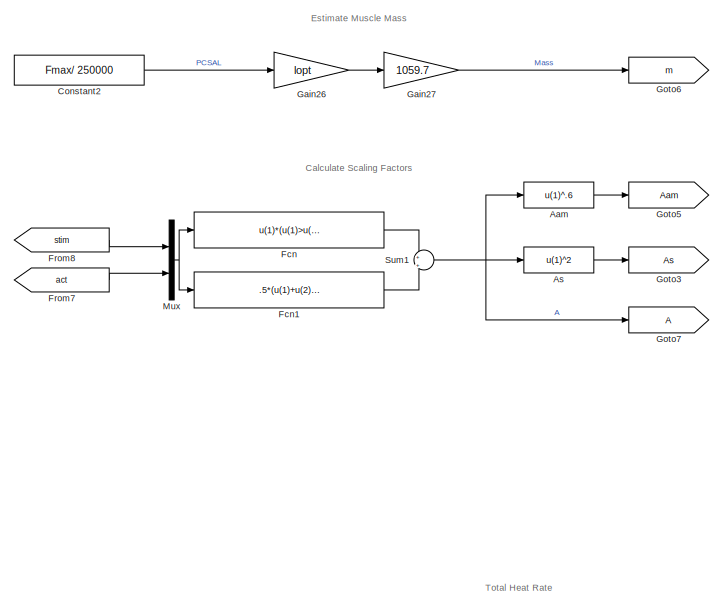
[diagram: Muscle Energy - part 1/5, top right region]
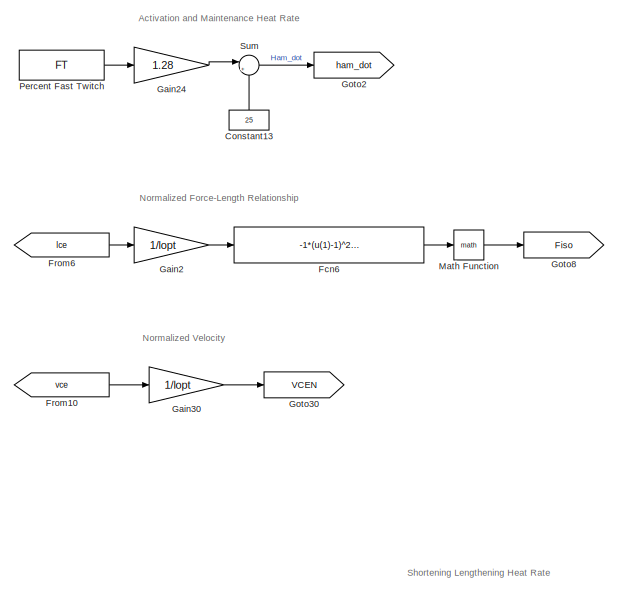
[diagram: Muscle Energy - part 2/5, top left region]
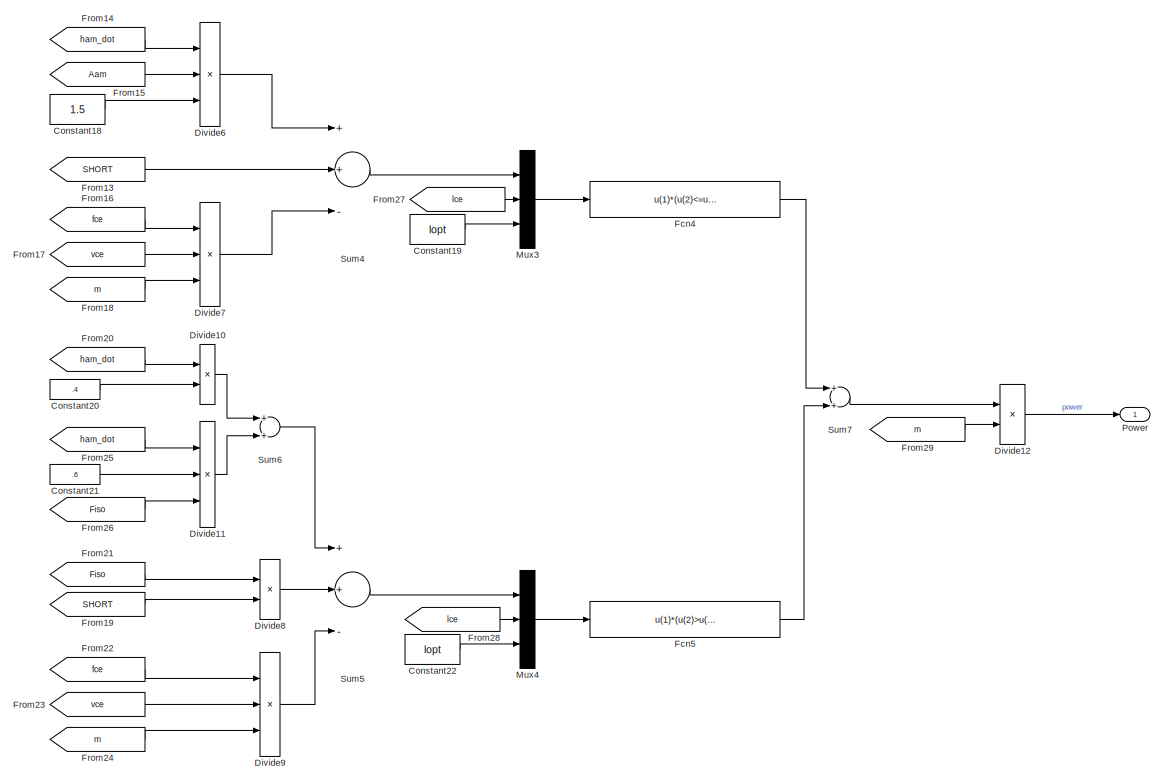
[diagram: Muscle Energy - part 3/5, bottom right region]
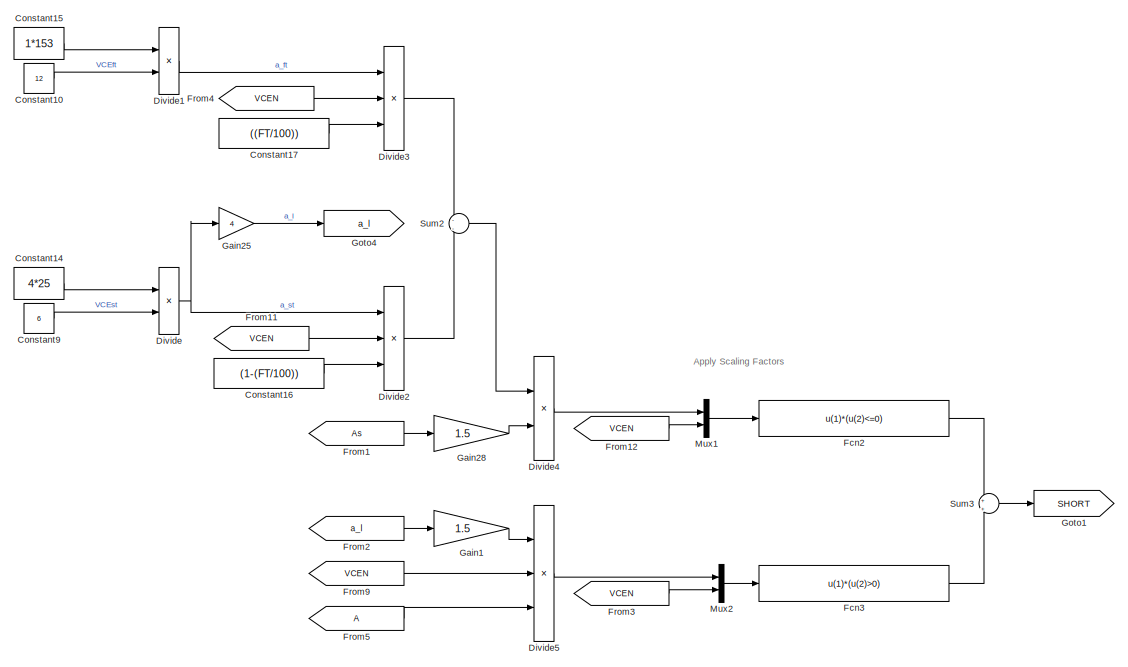
[diagram: Muscle Energy - part 4/5, bottom center region]
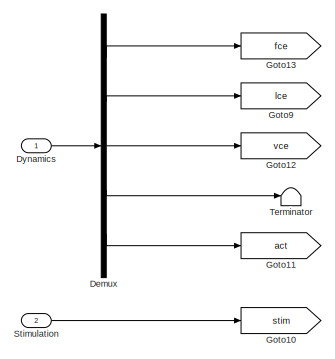
[diagram: Muscle Energy - part 5/5, middle left region]
BLOCK [SubSystem] Muscle Energy
  Ports = [2, 1]
  RequestExecContextInheritance = off
BLOCK [Fcn] Muscle Energy/Aam 
  Expr = u(1)^.6
BLOCK [Fcn] Muscle Energy/As
  Expr = u(1)^2
BLOCK [Constant] Muscle Energy/Constant10
  Value = 12
BLOCK [Constant] Muscle Energy/Constant13
  Value = 25
BLOCK [Constant] Muscle Energy/Constant14
  Value = 4*25
BLOCK [Constant] Muscle Energy/Constant15
  Value = 1*153
BLOCK [Constant] Muscle Energy/Constant16
  Value = (1-(FT/100))
BLOCK [Constant] Muscle Energy/Constant17
  Value = ((FT/100))
BLOCK [Constant] Muscle Energy/Constant18
  Value = 1.5
BLOCK [Constant] Muscle Energy/Constant19
  Value = lopt
BLOCK [Constant] Muscle Energy/Constant2
  Value = Fmax/ 250000
BLOCK [Constant] Muscle Energy/Constant20
  Value = .4
BLOCK [Constant] Muscle Energy/Constant21
  Value = .6
BLOCK [Constant] Muscle Energy/Constant22
  Value = lopt
BLOCK [Constant] Muscle Energy/Constant9
  Value = 6
BLOCK [Demux] Muscle Energy/Demux
  DisplayOption = bar
  Outputs = 5
  Ports = [1, 5]
BLOCK [Product] Muscle Energy/Divide
  InputSameDT = off
  Inputs = */
  OutDataTypeStr = Inherit: Inherit via internal rule
  Ports = [2, 1]
  RndMeth = Floor
  SaturateOnIntegerOverflow = off
BLOCK [Product] Muscle Energy/Divide1
  InputSameDT = off
  Inputs = */
  OutDataTypeStr = Inherit: Inherit via internal rule
  Ports = [2, 1]
  RndMeth = Floor
  SaturateOnIntegerOverflow = off
BLOCK [Product] Muscle Energy/Divide10
  InputSameDT = off
  Inputs = **
  OutDataTypeStr = Inherit: Inherit via internal rule
  Ports = [2, 1]
  RndMeth = Floor
  SaturateOnIntegerOverflow = off
BLOCK [Product] Muscle Energy/Divide11
  InputSameDT = off
  Inputs = ***
  OutDataTypeStr = Inherit: Inherit via internal rule
  Ports = [3, 1]
  RndMeth = Floor
  SaturateOnIntegerOverflow = off
BLOCK [Product] Muscle Energy/Divide12
  InputSameDT = off
  Inputs = **
  OutDataTypeStr = Inherit: Inherit via internal rule
  Ports = [2, 1]
  RndMeth = Floor
  SaturateOnIntegerOverflow = off
BLOCK [Product] Muscle Energy/Divide2
  InputSameDT = off
  Inputs = ***
  OutDataTypeStr = Inherit: Inherit via internal rule
  Ports = [3, 1]
  RndMeth = Floor
  SaturateOnIntegerOverflow = off
BLOCK [Product] Muscle Energy/Divide3
  InputSameDT = off
  Inputs = ***
  OutDataTypeStr = Inherit: Inherit via internal rule
  Ports = [3, 1]
  RndMeth = Floor
  SaturateOnIntegerOverflow = off
BLOCK [Product] Muscle Energy/Divide4
  InputSameDT = off
  Inputs = **
  OutDataTypeStr = Inherit: Inherit via internal rule
  Ports = [2, 1]
  RndMeth = Floor
  SaturateOnIntegerOverflow = off
BLOCK [Product] Muscle Energy/Divide5
  InputSameDT = off
  Inputs = ***
  OutDataTypeStr = Inherit: Inherit via internal rule
  Ports = [3, 1]
  RndMeth = Floor
  SaturateOnIntegerOverflow = off
BLOCK [Product] Muscle Energy/Divide6
  InputSameDT = off
  Inputs = ***
  OutDataTypeStr = Inherit: Inherit via internal rule
  Ports = [3, 1]
  RndMeth = Floor
  SaturateOnIntegerOverflow = off
BLOCK [Product] Muscle Energy/Divide7
  InputSameDT = off
  Inputs = **/
  OutDataTypeStr = Inherit: Inherit via internal rule
  Ports = [3, 1]
  RndMeth = Floor
  SaturateOnIntegerOverflow = off
BLOCK [Product] Muscle Energy/Divide8
  InputSameDT = off
  Inputs = **
  OutDataTypeStr = Inherit: Inherit via internal rule
  Ports = [2, 1]
  RndMeth = Floor
  SaturateOnIntegerOverflow = off
BLOCK [Product] Muscle Energy/Divide9
  InputSameDT = off
  Inputs = **/
  OutDataTypeStr = Inherit: Inherit via internal rule
  Ports = [3, 1]
  RndMeth = Floor
  SaturateOnIntegerOverflow = off
BLOCK [Inport] Muscle Energy/Dynamics
  IconDisplay = Port number
BLOCK [Fcn] Muscle Energy/Fcn
  Expr = u(1)*(u(1)>u(2))
BLOCK [Fcn] Muscle Energy/Fcn1
  Expr = .5*(u(1)+u(2))*(u(1)<=u(2))
BLOCK [Fcn] Muscle Energy/Fcn2
  Expr = u(1)*(u(2)<=0)
BLOCK [Fcn] Muscle Energy/Fcn3
  Expr = u(1)*(u(2)>0)
BLOCK [Fcn] Muscle Energy/Fcn4
  Expr = u(1)*(u(2)<=u(3))
BLOCK [Fcn] Muscle Energy/Fcn5
  Expr = u(1)*(u(2)>u(3))
BLOCK [Fcn] Muscle Energy/Fcn6
  Expr = -1*(u(1)-1)^2/w^2
BLOCK [From] Muscle Energy/From1
  GotoTag = As
BLOCK [From] Muscle Energy/From10
  GotoTag = vce
BLOCK [From] Muscle Energy/From11
  GotoTag = VCEN
BLOCK [From] Muscle Energy/From12
  GotoTag = VCEN
BLOCK [From] Muscle Energy/From13
  GotoTag = SHORT
BLOCK [From] Muscle Energy/From14
  GotoTag = ham_dot
BLOCK [From] Muscle Energy/From15
  GotoTag = Aam
BLOCK [From] Muscle Energy/From16
  GotoTag = fce
BLOCK [From] Muscle Energy/From17
  GotoTag = vce
BLOCK [From] Muscle Energy/From18
  GotoTag = m
BLOCK [From] Muscle Energy/From19
  GotoTag = SHORT
BLOCK [From] Muscle Energy/From2
  GotoTag = a_l
BLOCK [From] Muscle Energy/From20
  GotoTag = ham_dot
BLOCK [From] Muscle Energy/From21
  GotoTag = Fiso
BLOCK [From] Muscle Energy/From22
  GotoTag = fce
BLOCK [From] Muscle Energy/From23
  GotoTag = vce
BLOCK [From] Muscle Energy/From24
  GotoTag = m
BLOCK [From] Muscle Energy/From25
  GotoTag = ham_dot
BLOCK [From] Muscle Energy/From26
  GotoTag = Fiso
BLOCK [From] Muscle Energy/From27
  GotoTag = lce
BLOCK [From] Muscle Energy/From28
  GotoTag = lce
BLOCK [From] Muscle Energy/From29
  GotoTag = m
BLOCK [From] Muscle Energy/From3
  GotoTag = VCEN
BLOCK [From] Muscle Energy/From4
  GotoTag = VCEN
BLOCK [From] Muscle Energy/From5
BLOCK [From] Muscle Energy/From6
  GotoTag = lce
BLOCK [From] Muscle Energy/From7
  GotoTag = act
BLOCK [From] Muscle Energy/From8
  GotoTag = stim
BLOCK [From] Muscle Energy/From9
  GotoTag = VCEN
BLOCK [Gain] Muscle Energy/Gain1
  Gain = 1.5
  OutDataTypeStr = Inherit: Inherit via internal rule
  ParamDataTypeStr = Inherit: Inherit via internal rule
  SaturateOnIntegerOverflow = off
BLOCK [Gain] Muscle Energy/Gain2
  Gain = 1/lopt
  OutDataTypeStr = Inherit: Inherit via internal rule
  ParamDataTypeStr = Inherit: Inherit via internal rule
  SaturateOnIntegerOverflow = off
BLOCK [Gain] Muscle Energy/Gain24
  Gain = 1.28
  OutDataTypeStr = Inherit: Inherit via internal rule
  ParamDataTypeStr = Inherit: Inherit via internal rule
  SaturateOnIntegerOverflow = off
BLOCK [Gain] Muscle Energy/Gain25
  Gain = 4
  OutDataTypeStr = Inherit: Inherit via internal rule
  ParamDataTypeStr = Inherit: Inherit via internal rule
  SaturateOnIntegerOverflow = off
BLOCK [Gain] Muscle Energy/Gain26
  Gain = lopt
  OutDataTypeStr = Inherit: Inherit via internal rule
  ParamDataTypeStr = Inherit: Inherit via internal rule
  SaturateOnIntegerOverflow = off
BLOCK [Gain] Muscle Energy/Gain27
  Gain = 1059.7
  OutDataTypeStr = Inherit: Inherit via internal rule
  ParamDataTypeStr = Inherit: Inherit via internal rule
  SaturateOnIntegerOverflow = off
BLOCK [Gain] Muscle Energy/Gain28
  Gain = 1.5
  OutDataTypeStr = Inherit: Inherit via internal rule
  ParamDataTypeStr = Inherit: Inherit via internal rule
  SaturateOnIntegerOverflow = off
BLOCK [Gain] Muscle Energy/Gain30
  Gain = 1/lopt
  OutDataTypeStr = Inherit: Inherit via internal rule
  ParamDataTypeStr = Inherit: Inherit via internal rule
  SaturateOnIntegerOverflow = off
BLOCK [Goto] Muscle Energy/Goto1
  GotoTag = SHORT
BLOCK [Goto] Muscle Energy/Goto10
  GotoTag = stim
BLOCK [Goto] Muscle Energy/Goto11
  GotoTag = act
BLOCK [Goto] Muscle Energy/Goto12
  GotoTag = vce
BLOCK [Goto] Muscle Energy/Goto13
  GotoTag = fce
BLOCK [Goto] Muscle Energy/Goto2
  GotoTag = ham_dot
BLOCK [Goto] Muscle Energy/Goto3
  GotoTag = As
BLOCK [Goto] Muscle Energy/Goto30
  GotoTag = VCEN
BLOCK [Goto] Muscle Energy/Goto4
  GotoTag = a_l
BLOCK [Goto] Muscle Energy/Goto5
  GotoTag = Aam
BLOCK [Goto] Muscle Energy/Goto6
  GotoTag = m
BLOCK [Goto] Muscle Energy/Goto7
BLOCK [Goto] Muscle Energy/Goto8
  GotoTag = Fiso
BLOCK [Goto] Muscle Energy/Goto9
  GotoTag = lce
BLOCK [Math] Muscle Energy/Math Function
  Ports = [1, 1]
BLOCK [Mux] Muscle Energy/Mux
  DisplayOption = bar
  Inputs = 2
  Ports = [2, 1]
BLOCK [Mux] Muscle Energy/Mux1
  DisplayOption = bar
  Inputs = 2
  Ports = [2, 1]
BLOCK [Mux] Muscle Energy/Mux2
  DisplayOption = bar
  Inputs = 2
  Ports = [2, 1]
BLOCK [Mux] Muscle Energy/Mux3
  DisplayOption = bar
  Inputs = 3
  Ports = [3, 1]
BLOCK [Mux] Muscle Energy/Mux4
  DisplayOption = bar
  Inputs = 3
  Ports = [3, 1]
BLOCK [Constant] Muscle Energy/Percent Fast Twitch
  Value = FT
BLOCK [Outport] Muscle Energy/Power
  IconDisplay = Port number
BLOCK [Inport] Muscle Energy/Stimulation
  IconDisplay = Port number
  Port = 2
BLOCK [Sum] Muscle Energy/Sum
  IconShape = round
  InputSameDT = off
  Inputs = |++
  OutDataTypeStr = Inherit: Inherit via internal rule
  Ports = [2, 1]
  SaturateOnIntegerOverflow = off
BLOCK [Sum] Muscle Energy/Sum1
  IconShape = round
  InputSameDT = off
  Inputs = +|+
  OutDataTypeStr = Inherit: Inherit via internal rule
  Ports = [2, 1]
  SaturateOnIntegerOverflow = off
BLOCK [Sum] Muscle Energy/Sum2
  IconShape = round
  InputSameDT = off
  Inputs = -|-
  OutDataTypeStr = Inherit: Inherit via internal rule
  Ports = [2, 1]
  SaturateOnIntegerOverflow = off
BLOCK [Sum] Muscle Energy/Sum3
  IconShape = round
  InputSameDT = off
  Inputs = +|+
  OutDataTypeStr = Inherit: Inherit via internal rule
  Ports = [2, 1]
  SaturateOnIntegerOverflow = off
BLOCK [Sum] Muscle Energy/Sum4
  InputSameDT = off
  Inputs = ++-
  OutDataTypeStr = Inherit: Inherit via internal rule
  Ports = [3, 1]
  SaturateOnIntegerOverflow = off
BLOCK [Sum] Muscle Energy/Sum5
  InputSameDT = off
  Inputs = ++-
  OutDataTypeStr = Inherit: Inherit via internal rule
  Ports = [3, 1]
  SaturateOnIntegerOverflow = off
BLOCK [Sum] Muscle Energy/Sum6
  InputSameDT = off
  OutDataTypeStr = Inherit: Inherit via internal rule
  Ports = [2, 1]
  SaturateOnIntegerOverflow = off
BLOCK [Sum] Muscle Energy/Sum7
  InputSameDT = off
  OutDataTypeStr = Inherit: Inherit via internal rule
  Ports = [2, 1]
  SaturateOnIntegerOverflow = off
BLOCK [Terminator] Muscle Energy/Terminator
BLOCK [SubSystem] Overextension Joint Limit
  Ports = [2, 1]
  RequestExecContextInheritance = off
BLOCK [Gain] Overextension Joint Limit/Gain1
  Gain = ext
  OutDataTypeStr = Inherit: Inherit via internal rule
  ParamDataTypeStr = Inherit: Inherit via internal rule
  SaturateOnIntegerOverflow = off
BLOCK [Gain] Overextension Joint Limit/Gain2
  Gain = -ext
  OutDataTypeStr = Inherit: Inherit via internal rule
  ParamDataTypeStr = Inherit: Inherit via internal rule
  SaturateOnIntegerOverflow = off
BLOCK [Gain] Overextension Joint Limit/Gain3
  Gain = c_jointstop
  OutDataTypeStr = Inherit: Inherit via internal rule
  ParamDataTypeStr = Inherit: Inherit via internal rule
  SaturateOnIntegerOverflow = off
BLOCK [Gain] Overextension Joint Limit/Gain4
  Gain = 1/w_max_jointstop
  OutDataTypeStr = Inherit: Inherit via internal rule
  ParamDataTypeStr = Inherit: Inherit via internal rule
  SaturateOnIntegerOverflow = off
BLOCK [Gain] Overextension Joint Limit/Gain5
  Gain = ext
  OutDataTypeStr = Inherit: Inherit via internal rule
  ParamDataTypeStr = Inherit: Inherit via internal rule
  SaturateOnIntegerOverflow = off
BLOCK [Reference] Overextension Joint Limit/Limit Ankle Range  REF=simulink/Logic and Bit
Operations/Interval Test
  Commented = on
  IntervalClosedLeft = on
  IntervalClosedRight = on
  OutDataTypeStr = boolean
  Ports = [1, 1]
  SourceBlock = simulink/Logic and Bit\nOperations/Interval Test
  SourceType = Interval Test
  lowlimit = 40*pi/180
  uplimit = 185*pi/180
BLOCK [Logic] Overextension Joint Limit/Logical Operator3
  AllPortsSameDT = off
  Commented = on
  Operator = NOT
  OutDataTypeStr = boolean
  Ports = [1, 1]
BLOCK [Outport] Overextension Joint Limit/M_stop [Nm]
  IconDisplay = Port number
BLOCK [Mux] Overextension Joint Limit/Mux3
  DisplayOption = bar
  Inputs = 2
  Ports = [2, 1]
BLOCK [Fcn] Overextension Joint Limit/Overextension Torque
  Expr = - u(1)  *  (1-u(2)) * (u(2)<1) * (u(1)>0)
BLOCK [Stop] Overextension Joint Limit/Stop Simulation1
  Commented = on
BLOCK [Sum] Overextension Joint Limit/Sum
  IconShape = round
  InputSameDT = off
  Inputs = |+-
  OutDataTypeStr = Inherit: Inherit via internal rule
  Ports = [2, 1]
  SaturateOnIntegerOverflow = off
BLOCK [Inport] Overextension Joint Limit/dphi [rad//s]
  IconDisplay = Port number
  Port = 2
BLOCK [Constant] Overextension Joint Limit/overextension angle
  Value = phiUpLimit
BLOCK [Inport] Overextension Joint Limit/phi [rad]
  IconDisplay = Port number
BLOCK [SubSystem] Overextension//Overflexion Joint Limit
  Ports = [2, 1]
  RequestExecContextInheritance = off
BLOCK [Gain] Overextension//Overflexion Joint Limit/Gain1
  Gain = c_jointstop
  OutDataTypeStr = Inherit: Inherit via internal rule
  ParamDataTypeStr = Inherit: Inherit via internal rule
  SaturateOnIntegerOverflow = off
BLOCK [Gain] Overextension//Overflexion Joint Limit/Gain2
  Gain = -1
  OutDataTypeStr = Inherit: Inherit via internal rule
  ParamDataTypeStr = Inherit: Inherit via internal rule
  SaturateOnIntegerOverflow = off
BLOCK [Gain] Overextension//Overflexion Joint Limit/Gain3
  Gain = c_jointstop
  OutDataTypeStr = Inherit: Inherit via internal rule
  ParamDataTypeStr = Inherit: Inherit via internal rule
  SaturateOnIntegerOverflow = off
BLOCK [Gain] Overextension//Overflexion Joint Limit/Gain4
  Gain = 1/w_max_jointstop
  OutDataTypeStr = Inherit: Inherit via internal rule
  ParamDataTypeStr = Inherit: Inherit via internal rule
  SaturateOnIntegerOverflow = off
BLOCK [Reference] Overextension//Overflexion Joint Limit/Limit Range  REF=simulink/Logic and Bit
Operations/Interval Test
  Commented = on
  IntervalClosedLeft = on
  IntervalClosedRight = on
  OutDataTypeStr = boolean
  Ports = [1, 1]
  SourceBlock = simulink/Logic and Bit\nOperations/Interval Test
  SourceType = Interval Test
  lowlimit = phi12_LowLimit - 40*pi/180
  uplimit = phi12_UpLimit + 40*pi/180
BLOCK [Logic] Overextension//Overflexion Joint Limit/Logical Operator3
  AllPortsSameDT = off
  Commented = on
  Operator = NOT
  OutDataTypeStr = boolean
  Ports = [1, 1]
BLOCK [Outport] Overextension//Overflexion Joint Limit/M_stop [Nm]
  IconDisplay = Port number
BLOCK [Mux] Overextension//Overflexion Joint Limit/Mux1
  DisplayOption = bar
  Inputs = 2
  Ports = [2, 1]
BLOCK [Mux] Overextension//Overflexion Joint Limit/Mux3
  DisplayOption = bar
  Inputs = 2
  Ports = [2, 1]
BLOCK [Fcn] Overextension//Overflexion Joint Limit/Overextension Torque
  Expr = - u(1)  *  (1-u(2)) * (u(2)<1) * (u(1)>0)
BLOCK [Fcn] Overextension//Overflexion Joint Limit/Overflexion Torque
  Expr = - u(1)  *  (1-u(2)) * (u(2)<1) * (u(1)<0)
BLOCK [Stop] Overextension//Overflexion Joint Limit/Stop Simulation1
  Commented = on
BLOCK [Sum] Overextension//Overflexion Joint Limit/Sum
  IconShape = round
  InputSameDT = off
  Inputs = |+-
  OutDataTypeStr = Inherit: Inherit via internal rule
  Ports = [2, 1]
  SaturateOnIntegerOverflow = off
BLOCK [Sum] Overextension//Overflexion Joint Limit/Sum1
  IconShape = round
  InputSameDT = off
  Inputs = |+-
  OutDataTypeStr = Inherit: Inherit via internal rule
  Ports = [2, 1]
  SaturateOnIntegerOverflow = off
BLOCK [Sum] Overextension//Overflexion Joint Limit/Sum2
  IconShape = round
  InputSameDT = off
  OutDataTypeStr = Inherit: Inherit via internal rule
  Ports = [2, 1]
  SaturateOnIntegerOverflow = off
BLOCK [Inport] Overextension//Overflexion Joint Limit/dphi [rad//s]
  IconDisplay = Port number
  Port = 2
BLOCK [Constant] Overextension//Overflexion Joint Limit/overextension angle
  Value = phiUpLimit
BLOCK [Constant] Overextension//Overflexion Joint Limit/overflexion angle
  Value = phiLowLimit
BLOCK [Inport] Overextension//Overflexion Joint Limit/phi [rad]
  IconDisplay = Port number
BLOCK [SubSystem] Pos//Rot Sensor
  Ports = [0, 2, 0, 0, 0, 1, 1]
  RequestExecContextInheritance = off
BLOCK [PMIOPort] Pos//Rot Sensor/B
  Port = 2
  Side = Right
BLOCK [PMIOPort] Pos//Rot Sensor/F
  Port = 1
  Side = Left
BLOCK [Gain] Pos//Rot Sensor/Gain2
  Gain = -1
  OutDataTypeStr = Inherit: Inherit via internal rule
  ParamDataTypeStr = Inherit: Inherit via internal rule
  SaturateOnIntegerOverflow = off
BLOCK [Mux] Pos//Rot Sensor/Mux
  DisplayOption = bar
  Inputs = 3
  Ports = [3, 1]
BLOCK [Reference] Pos//Rot Sensor/PS-Simulink Converter  REF=nesl_utility/PS-Simulink
Converter
  AffineConversion = off
  Frequencies = []
  LeftPortType = input
  PhysicalDomain = network_engine_domain
  Ports = [0, 1, 0, 0, 0, 1]
  PseudoPeriodic = off
  RightPortType = output
  SourceBlock = nesl_utility/PS-Simulink\nConverter
  SourceType = PS-Simulink\nConverter
  SubClassName = ps_output
  Unit = m
BLOCK [Reference] Pos//Rot Sensor/PS-Simulink Converter1  REF=nesl_utility/PS-Simulink
Converter
  AffineConversion = off
  Frequencies = []
  LeftPortType = input
  PhysicalDomain = network_engine_domain
  Ports = [0, 1, 0, 0, 0, 1]
  PseudoPeriodic = off
  RightPortType = output
  SourceBlock = nesl_utility/PS-Simulink\nConverter
  SourceType = PS-Simulink\nConverter
  SubClassName = ps_output
  Unit = m
BLOCK [Reference] Pos//Rot Sensor/PS-Simulink Converter2  REF=nesl_utility/PS-Simulink
Converter
  AffineConversion = off
  Frequencies = []
  LeftPortType = input
  PhysicalDomain = network_engine_domain
  Ports = [0, 1, 0, 0, 0, 1]
  PseudoPeriodic = off
  RightPortType = output
  SourceBlock = nesl_utility/PS-Simulink\nConverter
  SourceType = PS-Simulink\nConverter
  SubClassName = ps_output
  Unit = m
BLOCK [Reference] Pos//Rot Sensor/PS-Simulink Converter3  REF=nesl_utility/PS-Simulink
Converter
  AffineConversion = off
  Frequencies = []
  LeftPortType = input
  PhysicalDomain = network_engine_domain
  Ports = [0, 1, 0, 0, 0, 1]
  PseudoPeriodic = off
  RightPortType = output
  SourceBlock = nesl_utility/PS-Simulink\nConverter
  SourceType = PS-Simulink\nConverter
  SubClassName = ps_output
  Unit = rad
BLOCK [Reference] Pos//Rot Sensor/PS-Simulink Converter4  REF=nesl_utility/PS-Simulink
Converter
  AffineConversion = off
  Frequencies = []
  LeftPortType = input
  PhysicalDomain = network_engine_domain
  Ports = [0, 1, 0, 0, 0, 1]
  PseudoPeriodic = off
  RightPortType = output
  SourceBlock = nesl_utility/PS-Simulink\nConverter
  SourceType = PS-Simulink\nConverter
  SubClassName = ps_output
  Unit = rad
BLOCK [Outport] Pos//Rot Sensor/Position
  IconDisplay = Port number
BLOCK [Reference] Pos//Rot Sensor/Position Sensor  REF=sm_lib/Frames and
Transforms/Transform
Sensor
  BlockFunction = simmechanics.library.frames_transforms.transform_sensor
  ClassName = TransformSensor
  LogSimulationData = off
  MeasurementFrame = World
  Ports = [0, 0, 0, 0, 0, 1, 6]
  SenseAlpha1 = off
  SenseAlpha2 = off
  SenseAlpha3 = off
  SenseAlphaX = off
  SenseAlphaY = off
  SenseAlphaZ = off
  SenseAngle = on
  SenseAngle1 = off
  SenseAngle2 = off
  SenseAngle3 = off
  SenseAxis = on
  SenseAzim = off
  SenseAzimDDot = off
  SenseAzimDot = off
  SenseDist = off
  SenseDistDDot = off
  SenseDistDot = off
  SenseInc = off
  SenseIncDDot = off
  SenseIncDot = off
  SenseOmega1 = off
  SenseOmega2 = off
  SenseOmega3 = off
  SenseOmegaX = off
  SenseOmegaY = off
  SenseOmegaZ = off
  SenseQ = off
  SenseQDDot = off
  SenseQDot = off
  SenseR = off
  SenseRDDot = off
  SenseRDot = off
  SenseRad = off
  SenseRadDDot = off
  SenseRadDot = off
  SenseX = on
  SenseXDDot = off
  SenseXDot = off
  SenseY = on
  SenseYDDot = off
  SenseYDot = off
  SenseZ = on
  SenseZDDot = off
  SenseZDot = off
  SourceBlock = sm_lib/Frames and\nTransforms/Transform\nSensor
  SourceType = Transform\nSensor
BLOCK [Product] Pos//Rot Sensor/Product
  InputSameDT = off
  OutDataTypeStr = Inherit: Inherit via internal rule
  Ports = [2, 1]
  RndMeth = Floor
  SaturateOnIntegerOverflow = off
BLOCK [Outport] Pos//Rot Sensor/Rotation
  IconDisplay = Port number
  Port = 2
BLOCK [Selector] Pos//Rot Sensor/Selector
  Indices = [3]
  InputPortWidth = 3
  Ports = [1, 1]
BLOCK [Signum] Pos//Rot Sensor/Sign
BLOCK [SubSystem] Position Sensor
  Ports = [0, 1, 0, 0, 0, 1]
  RequestExecContextInheritance = off
BLOCK [PMIOPort] Position Sensor/Frame
  Port = 1
  Side = Left
BLOCK [Mux] Position Sensor/Mux
  DisplayOption = bar
  Inputs = 3
  Ports = [3, 1]
BLOCK [Reference] Position Sensor/PS-Simulink Converter  REF=nesl_utility/PS-Simulink
Converter
  AffineConversion = off
  Frequencies = []
  LeftPortType = input
  PhysicalDomain = network_engine_domain
  Ports = [0, 1, 0, 0, 0, 1]
  PseudoPeriodic = off
  RightPortType = output
  SourceBlock = nesl_utility/PS-Simulink\nConverter
  SourceType = PS-Simulink\nConverter
  SubClassName = ps_output
  Unit = m
BLOCK [Reference] Position Sensor/PS-Simulink Converter1  REF=nesl_utility/PS-Simulink
Converter
  AffineConversion = off
  Frequencies = []
  LeftPortType = input
  PhysicalDomain = network_engine_domain
  Ports = [0, 1, 0, 0, 0, 1]
  PseudoPeriodic = off
  RightPortType = output
  SourceBlock = nesl_utility/PS-Simulink\nConverter
  SourceType = PS-Simulink\nConverter
  SubClassName = ps_output
  Unit = m
BLOCK [Reference] Position Sensor/PS-Simulink Converter2  REF=nesl_utility/PS-Simulink
Converter
  AffineConversion = off
  Frequencies = []
  LeftPortType = input
  PhysicalDomain = network_engine_domain
  Ports = [0, 1, 0, 0, 0, 1]
  PseudoPeriodic = off
  RightPortType = output
  SourceBlock = nesl_utility/PS-Simulink\nConverter
  SourceType = PS-Simulink\nConverter
  SubClassName = ps_output
  Unit = m
BLOCK [Outport] Position Sensor/Position
  IconDisplay = Port number
BLOCK [Reference] Position Sensor/Position Sensor  REF=sm_lib/Frames and
Transforms/Transform
Sensor
  BlockFunction = simmechanics.library.frames_transforms.transform_sensor
  ClassName = TransformSensor
  LogSimulationData = off
  MeasurementFrame = World
  Ports = [0, 0, 0, 0, 0, 1, 4]
  SenseAlpha1 = off
  SenseAlpha2 = off
  SenseAlpha3 = off
  SenseAlphaX = off
  SenseAlphaY = off
  SenseAlphaZ = off
  SenseAngle = off
  SenseAngle1 = off
  SenseAngle2 = off
  SenseAngle3 = off
  SenseAxis = off
  SenseAzim = off
  SenseAzimDDot = off
  SenseAzimDot = off
  SenseDist = off
  SenseDistDDot = off
  SenseDistDot = off
  SenseInc = off
  SenseIncDDot = off
  SenseIncDot = off
  SenseOmega1 = off
  SenseOmega2 = off
  SenseOmega3 = off
  SenseOmegaX = off
  SenseOmegaY = off
  SenseOmegaZ = off
  SenseQ = off
  SenseQDDot = off
  SenseQDot = off
  SenseR = off
  SenseRDDot = off
  SenseRDot = off
  SenseRad = off
  SenseRadDDot = off
  SenseRadDot = off
  SenseX = on
  SenseXDDot = off
  SenseXDot = off
  SenseY = on
  SenseYDDot = off
  SenseYDot = off
  SenseZ = on
  SenseZDDot = off
  SenseZDot = off
  SourceBlock = sm_lib/Frames and\nTransforms/Transform\nSensor
  SourceType = Transform\nSensor
BLOCK [Reference] Position Sensor/World Frame  REF=sm_lib/Frames and
Transforms/World Frame
  BlockFunction = simmechanics.library.frames_transforms.world_frame
  ClassName = WorldFrame
  LogSimulationData = off
  Ports = [0, 0, 0, 0, 0, 0, 1]
  SourceBlock = sm_lib/Frames and\nTransforms/World Frame
  SourceType = World Frame
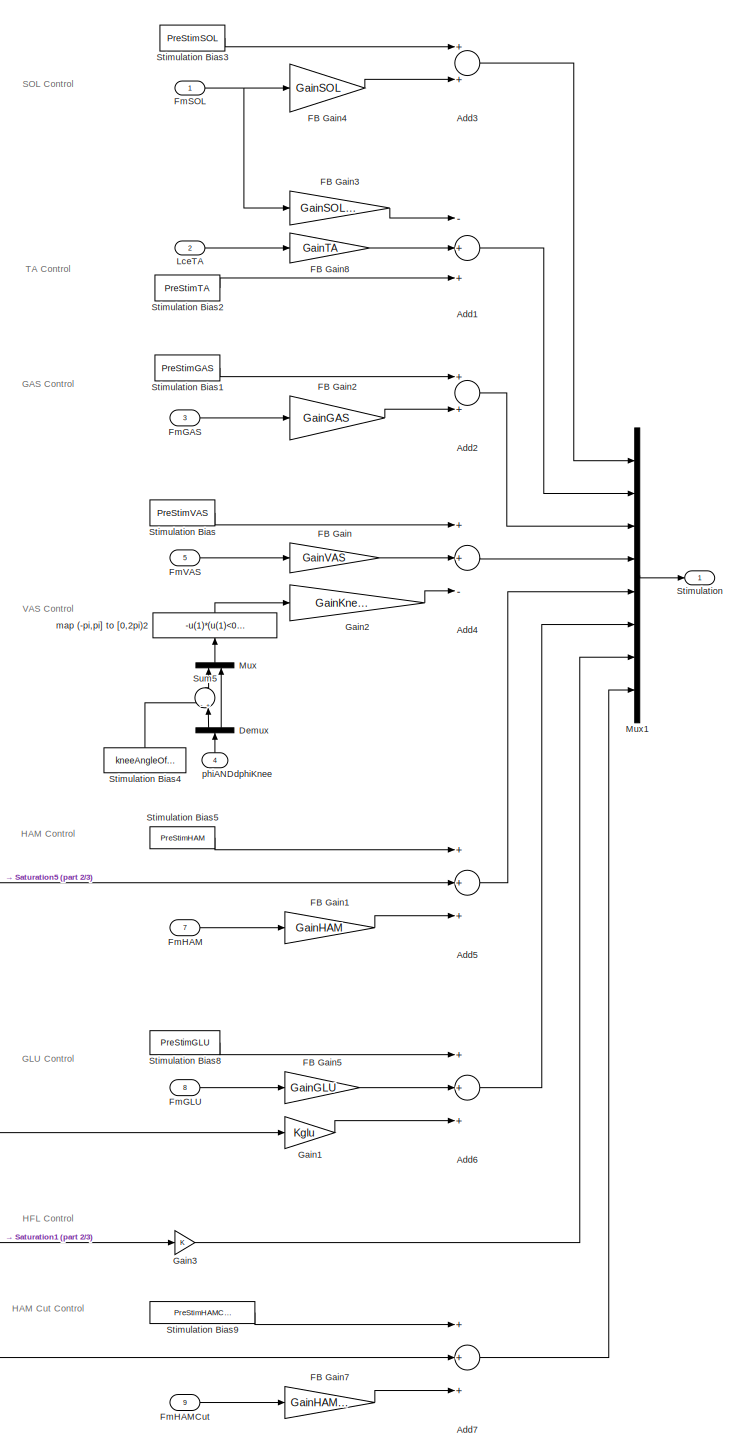
[diagram: Prosthetic Stance Phase - part 1/3, center side, full height]
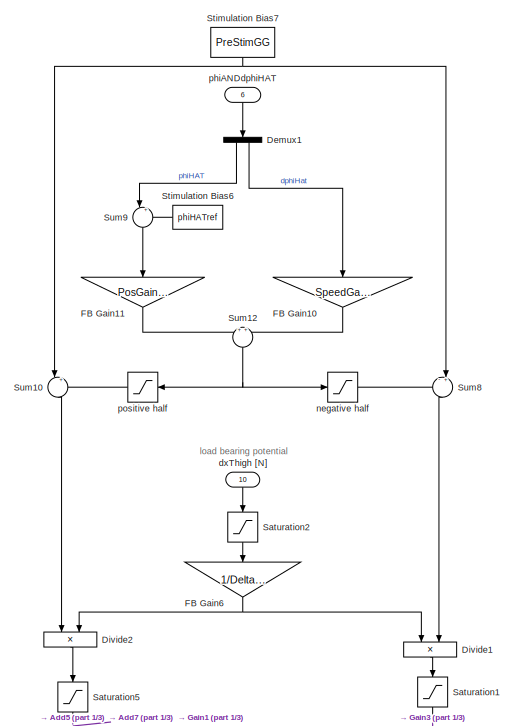
[diagram: Prosthetic Stance Phase - part 2/3, middle left region]
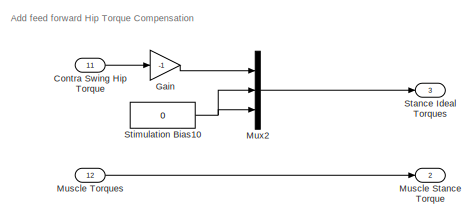
[diagram: Prosthetic Stance Phase - part 3/3, middle right region]
BLOCK [SubSystem] Prosthetic Stance Phase
  Ports = [12, 3]
  RequestExecContextInheritance = off
BLOCK [Sum] Prosthetic Stance Phase/Add1
  InputSameDT = off
  Inputs = -++
  OutDataTypeStr = Inherit: Inherit via internal rule
  Ports = [3, 1]
  SaturateOnIntegerOverflow = off
BLOCK [Sum] Prosthetic Stance Phase/Add2
  InputSameDT = off
  OutDataTypeStr = Inherit: Inherit via internal rule
  Ports = [2, 1]
  SaturateOnIntegerOverflow = off
BLOCK [Sum] Prosthetic Stance Phase/Add3
  InputSameDT = off
  OutDataTypeStr = Inherit: Inherit via internal rule
  Ports = [2, 1]
  SaturateOnIntegerOverflow = off
BLOCK [Sum] Prosthetic Stance Phase/Add4
  InputSameDT = off
  Inputs = ++-
  OutDataTypeStr = Inherit: Inherit via internal rule
  Ports = [3, 1]
  SaturateOnIntegerOverflow = off
BLOCK [Sum] Prosthetic Stance Phase/Add5
  InputSameDT = off
  Inputs = +++
  OutDataTypeStr = Inherit: Inherit via internal rule
  Ports = [3, 1]
  SaturateOnIntegerOverflow = off
BLOCK [Sum] Prosthetic Stance Phase/Add6
  InputSameDT = off
  Inputs = +++
  OutDataTypeStr = Inherit: Inherit via internal rule
  Ports = [3, 1]
  SaturateOnIntegerOverflow = off
BLOCK [Sum] Prosthetic Stance Phase/Add7
  InputSameDT = off
  Inputs = +++
  OutDataTypeStr = Inherit: Inherit via internal rule
  Ports = [3, 1]
  SaturateOnIntegerOverflow = off
BLOCK [Inport] Prosthetic Stance Phase/Contra Swing Hip Torque
  IconDisplay = Port number
  Port = 11
BLOCK [Demux] Prosthetic Stance Phase/Demux
  DisplayOption = bar
  Outputs = 2
  Ports = [1, 2]
BLOCK [Demux] Prosthetic Stance Phase/Demux1
  DisplayOption = bar
  Outputs = 2
  Ports = [1, 2]
BLOCK [Product] Prosthetic Stance Phase/Divide1
  InputSameDT = off
  OutDataTypeStr = Inherit: Inherit via internal rule
  Ports = [2, 1]
  RndMeth = Floor
  SaturateOnIntegerOverflow = off
BLOCK [Product] Prosthetic Stance Phase/Divide2
  InputSameDT = off
  OutDataTypeStr = Inherit: Inherit via internal rule
  Ports = [2, 1]
  RndMeth = Floor
  SaturateOnIntegerOverflow = off
BLOCK [Gain] Prosthetic Stance Phase/FB Gain
  Gain = GainVAS
BLOCK [Gain] Prosthetic Stance Phase/FB Gain1
  Gain = GainHAM
BLOCK [Gain] Prosthetic Stance Phase/FB Gain10
  Gain = SpeedGainGG
BLOCK [Gain] Prosthetic Stance Phase/FB Gain11
  Gain = PosGainGG
BLOCK [Gain] Prosthetic Stance Phase/FB Gain2
  Gain = GainGAS
BLOCK [Gain] Prosthetic Stance Phase/FB Gain3
  Gain = GainSOLTA
BLOCK [Gain] Prosthetic Stance Phase/FB Gain4
  Gain = GainSOL
BLOCK [Gain] Prosthetic Stance Phase/FB Gain5
  Gain = GainGLU
BLOCK [Gain] Prosthetic Stance Phase/FB Gain6
  Gain = 1/DeltaThRef
BLOCK [Gain] Prosthetic Stance Phase/FB Gain7
  Gain = GainHAMCut
BLOCK [Gain] Prosthetic Stance Phase/FB Gain8
  Gain = GainTA
BLOCK [Inport] Prosthetic Stance Phase/FmGAS
  IconDisplay = Port number
  Port = 3
BLOCK [Inport] Prosthetic Stance Phase/FmGLU
  IconDisplay = Port number
  Port = 8
BLOCK [Inport] Prosthetic Stance Phase/FmHAM
  IconDisplay = Port number
  Port = 7
BLOCK [Inport] Prosthetic Stance Phase/FmHAMCut
  IconDisplay = Port number
  Port = 9
BLOCK [Inport] Prosthetic Stance Phase/FmSOL
  IconDisplay = Port number
BLOCK [Inport] Prosthetic Stance Phase/FmVAS
  IconDisplay = Port number
  Port = 5
BLOCK [Gain] Prosthetic Stance Phase/Gain
  Gain = -1
  OutDataTypeStr = Inherit: Inherit via internal rule
  ParamDataTypeStr = Inherit: Inherit via internal rule
  SaturateOnIntegerOverflow = off
BLOCK [Gain] Prosthetic Stance Phase/Gain1
  Gain = Kglu
  OutDataTypeStr = Inherit: Inherit via internal rule
  ParamDataTypeStr = Inherit: Inherit via internal rule
  SaturateOnIntegerOverflow = off
BLOCK [Gain] Prosthetic Stance Phase/Gain2
  Gain = GainKneeOverExt
  OutDataTypeStr = Inherit: Inherit via internal rule
  ParamDataTypeStr = Inherit: Inherit via internal rule
  SaturateOnIntegerOverflow = off
BLOCK [Gain] Prosthetic Stance Phase/Gain3
  OutDataTypeStr = Inherit: Inherit via internal rule
  ParamDataTypeStr = Inherit: Inherit via internal rule
  SaturateOnIntegerOverflow = off
BLOCK [Inport] Prosthetic Stance Phase/LceTA
  IconDisplay = Port number
  Port = 2
BLOCK [Outport] Prosthetic Stance Phase/Muscle Stance Torque
  IconDisplay = Port number
  Port = 2
BLOCK [Inport] Prosthetic Stance Phase/Muscle Torques
  IconDisplay = Port number
  Port = 12
BLOCK [Mux] Prosthetic Stance Phase/Mux
  DisplayOption = bar
  Inputs = 2
  Ports = [2, 1]
BLOCK [Mux] Prosthetic Stance Phase/Mux1
  DisplayOption = bar
  Inputs = 8
  Ports = [8, 1]
BLOCK [Mux] Prosthetic Stance Phase/Mux2
  DisplayOption = bar
  Inputs = 3
  Ports = [3, 1]
BLOCK [Saturate] Prosthetic Stance Phase/Saturation1
  InputPortMap = u0
  LowerLimit = 0
  Ports = [1, 1]
  UpperLimit = 1
  ZeroCross = off
BLOCK [Saturate] Prosthetic Stance Phase/Saturation2
  InputPortMap = u0
  LowerLimit = 0
  Ports = [1, 1]
  UpperLimit = inf
  ZeroCross = off
BLOCK [Saturate] Prosthetic Stance Phase/Saturation5
  InputPortMap = u0
  LowerLimit = 0
  Ports = [1, 1]
  UpperLimit = 1
  ZeroCross = off
BLOCK [Outport] Prosthetic Stance Phase/Stance Ideal Torques
  IconDisplay = Port number
  Port = 3
BLOCK [Outport] Prosthetic Stance Phase/Stimulation
  IconDisplay = Port number
BLOCK [Constant] Prosthetic Stance Phase/Stimulation Bias
  Value = PreStimVAS
BLOCK [Constant] Prosthetic Stance Phase/Stimulation Bias1
  Value = PreStimGAS
BLOCK [Constant] Prosthetic Stance Phase/Stimulation Bias10
  Value = 0
BLOCK [Constant] Prosthetic Stance Phase/Stimulation Bias2
  Value = PreStimTA
BLOCK [Constant] Prosthetic Stance Phase/Stimulation Bias3
  Value = PreStimSOL
BLOCK [Constant] Prosthetic Stance Phase/Stimulation Bias4
  Value = kneeAngleOffset
BLOCK [Constant] Prosthetic Stance Phase/Stimulation Bias5
  Value = PreStimHAM
BLOCK [Constant] Prosthetic Stance Phase/Stimulation Bias6
  Value = phiHATref
BLOCK [Constant] Prosthetic Stance Phase/Stimulation Bias7
  Value = PreStimGG
BLOCK [Constant] Prosthetic Stance Phase/Stimulation Bias8
  Value = PreStimGLU
BLOCK [Constant] Prosthetic Stance Phase/Stimulation Bias9
  Value = PreStimHAMCut
BLOCK [Sum] Prosthetic Stance Phase/Sum10
  IconShape = round
  Inputs = |++
  Ports = [2, 1]
BLOCK [Sum] Prosthetic Stance Phase/Sum12
  IconShape = round
  Ports = [2, 1]
BLOCK [Sum] Prosthetic Stance Phase/Sum5
  IconShape = round
  Inputs = -+|
  Ports = [2, 1]
BLOCK [Sum] Prosthetic Stance Phase/Sum8
  IconShape = round
  Inputs = -+|
  Ports = [2, 1]
BLOCK [Sum] Prosthetic Stance Phase/Sum9
  IconShape = round
  Inputs = |+-
  Ports = [2, 1]
BLOCK [Inport] Prosthetic Stance Phase/dxThigh [N]
  IconDisplay = Port number
  Port = 10
BLOCK [Fcn] Prosthetic Stance Phase/map (-pi,pi] to [0,2pi)2
  Expr = -u(1)*(u(1)<0)*(u(2)<0)
BLOCK [Saturate] Prosthetic Stance Phase/negative half
  InputPortMap = u0
  LowerLimit = -inf
  Ports = [1, 1]
  UpperLimit = 0
  ZeroCross = off
BLOCK [Inport] Prosthetic Stance Phase/phiANDdphiHAT
  IconDisplay = Port number
  Port = 6
BLOCK [Inport] Prosthetic Stance Phase/phiANDdphiKnee
  IconDisplay = Port number
  Port = 4
BLOCK [Saturate] Prosthetic Stance Phase/positive half
  InputPortMap = u0
  LowerLimit = 0
  Ports = [1, 1]
  UpperLimit = inf
  ZeroCross = off
BLOCK [SubSystem] Prosthetic Swing Phase
  Ports = [9, 4]
  RequestExecContextInheritance = off
BLOCK [Gain] Prosthetic Swing Phase/ 1
  Gain = hipPGain
  OutDataTypeStr = Inherit: Inherit via internal rule
  ParamDataTypeStr = Inherit: Inherit via internal rule
  SaturateOnIntegerOverflow = off
BLOCK [Gain] Prosthetic Swing Phase/ 2
  Gain = hipDGain
  OutDataTypeStr = Inherit: Inherit via internal rule
  ParamDataTypeStr = Inherit: Inherit via internal rule
  SaturateOnIntegerOverflow = off
BLOCK [Gain] Prosthetic Swing Phase/ 3
  Gain = GainTA
  OutDataTypeStr = Inherit: Inherit via internal rule
  ParamDataTypeStr = Inherit: Inherit via internal rule
  SaturateOnIntegerOverflow = off
BLOCK [Gain] Prosthetic Swing Phase/ 5
  Gain = 0
  OutDataTypeStr = Inherit: Inherit via internal rule
  ParamDataTypeStr = Inherit: Inherit via internal rule
  SaturateOnIntegerOverflow = off
BLOCK [Gain] Prosthetic Swing Phase/ 6
  Gain = 0
  OutDataTypeStr = Inherit: Inherit via internal rule
  ParamDataTypeStr = Inherit: Inherit via internal rule
  SaturateOnIntegerOverflow = off
BLOCK [Sum] Prosthetic Swing Phase/Add
  InputSameDT = off
  Inputs = +++
  OutDataTypeStr = Inherit: Inherit via internal rule
  Ports = [3, 1]
  SaturateOnIntegerOverflow = off
BLOCK [Sum] Prosthetic Swing Phase/Add1
  InputSameDT = off
  Inputs = +-
  OutDataTypeStr = Inherit: Inherit via internal rule
  Ports = [2, 1]
  SaturateOnIntegerOverflow = off
BLOCK [Sum] Prosthetic Swing Phase/Add3
  InputSameDT = off
  OutDataTypeStr = Inherit: Inherit via internal rule
  Ports = [2, 1]
  SaturateOnIntegerOverflow = off
BLOCK [SubSystem] Prosthetic Swing Phase/Chart
  ErrorFcn = Stateflow.Translate.translate
  PermitHierarchicalResolution = ExplicitOnly
  Ports = [6, 4]
  RequestExecContextInheritance = off
  SFBlockType = Chart
  TreatAsAtomicUnit = on
BLOCK [Demux] Prosthetic Swing Phase/Chart/ Demux 
  Outputs = 1
  Ports = [1, 1]
BLOCK [S-Function] Prosthetic Swing Phase/Chart/ SFunction 
  EnableBusSupport = off
  FunctionName = sf_sfun
  Parameters = deltaLegAngleThr,legLengthClr
  PortCounts = [6 5]
  Ports = [6, 5]
  Tag = Stateflow S-Function NeuroMuscularLibrary 2
BLOCK [Terminator] Prosthetic Swing Phase/Chart/ Terminator 
BLOCK [Inport] Prosthetic Swing Phase/Chart/Stance
  IconDisplay = Port number
BLOCK [Inport] Prosthetic Swing Phase/Chart/contraStance
  IconDisplay = Port number
  Port = 2
BLOCK [Outport] Prosthetic Swing Phase/Chart/extend
  IconDisplay = Port number
  Port = 4
BLOCK [Outport] Prosthetic Swing Phase/Chart/flex
  IconDisplay = Port number
BLOCK [Outport] Prosthetic Swing Phase/Chart/hold
  IconDisplay = Port number
  Port = 2
BLOCK [Inport] Prosthetic Swing Phase/Chart/legAngle
  IconDisplay = Port number
  Port = 3
BLOCK [Inport] Prosthetic Swing Phase/Chart/legAngleSpeed
  IconDisplay = Port number
  Port = 4
BLOCK [Inport] Prosthetic Swing Phase/Chart/legAngleTgt
  IconDisplay = Port number
  Port = 5
BLOCK [Inport] Prosthetic Swing Phase/Chart/legLength
  IconDisplay = Port number
  Port = 6
BLOCK [Outport] Prosthetic Swing Phase/Chart/stop
  IconDisplay = Port number
  Port = 3
BLOCK [Constant] Prosthetic Swing Phase/Constant1
  Value = 0
BLOCK [Constant] Prosthetic Swing Phase/Constant2
  Value = 0
BLOCK [Constant] Prosthetic Swing Phase/Constant3
  Value = 0
BLOCK [Constant] Prosthetic Swing Phase/Constant4
  Value = PreStimTA
BLOCK [Constant] Prosthetic Swing Phase/Constant5
  Value = 0
BLOCK [Constant] Prosthetic Swing Phase/Constant6
  Value = 0
BLOCK [Constant] Prosthetic Swing Phase/Constant7
  Value = 0
BLOCK [Constant] Prosthetic Swing Phase/Constant8
  Value = 0
BLOCK [Reference] Prosthetic Swing Phase/Count Extend  REF=dspswit3/Counter
  CntDtype = double
  CountEvent = Rising edge
  CounterSize = 16 bits
  Direction = Up
  HitDtype = Logical
  HitValue = 32
  InitialCount = 0
  MaxCount = 255
  Output = Count
  Ports = [1, 1]
  ResetInput = off
  SamplesPerFrame = 1
  SourceBlock = dspswit3/Counter
  SourceType = Counter
  Ts = 1
BLOCK [Reference] Prosthetic Swing Phase/Count Flex  REF=dspswit3/Counter
  CntDtype = double
  CountEvent = Rising edge
  CounterSize = 16 bits
  Direction = Up
  HitDtype = Logical
  HitValue = 32
  InitialCount = 0
  MaxCount = 255
  Output = Count
  Ports = [1, 1]
  ResetInput = off
  SamplesPerFrame = 1
  SourceBlock = dspswit3/Counter
  SourceType = Counter
  Ts = 1
BLOCK [Reference] Prosthetic Swing Phase/Count Hold  REF=dspswit3/Counter
  CntDtype = double
  CountEvent = Rising edge
  CounterSize = 16 bits
  Direction = Up
  HitDtype = Logical
  HitValue = 32
  InitialCount = 0
  MaxCount = 255
  Output = Count
  Ports = [1, 1]
  ResetInput = off
  SamplesPerFrame = 1
  SourceBlock = dspswit3/Counter
  SourceType = Counter
  Ts = 1
BLOCK [Reference] Prosthetic Swing Phase/Count Stancea  REF=dspswit3/Counter
  CntDtype = double
  CountEvent = Rising edge
  CounterSize = 16 bits
  Direction = Up
  HitDtype = Logical
  HitValue = 32
  InitialCount = 0
  MaxCount = 255
  Output = Count
  Ports = [1, 1]
  ResetInput = off
  SamplesPerFrame = 1
  SourceBlock = dspswit3/Counter
  SourceType = Counter
  Ts = 1
BLOCK [Reference] Prosthetic Swing Phase/Count Stop  REF=dspswit3/Counter
  CntDtype = double
  CountEvent = Rising edge
  CounterSize = 16 bits
  Direction = Up
  HitDtype = Logical
  HitValue = 32
  InitialCount = 0
  MaxCount = 255
  Output = Count
  Ports = [1, 1]
  ResetInput = off
  SamplesPerFrame = 1
  SourceBlock = dspswit3/Counter
  SourceType = Counter
  Ts = 1
BLOCK [Demux] Prosthetic Swing Phase/Demux
  DisplayOption = bar
  Outputs = 3
  Ports = [1, 3]
BLOCK [Reference] Prosthetic Swing Phase/Filtered Derivative  REF=NeuroMuscularLibrary/Swing Phase/Filtered Derivative
  Ports = [1, 1]
  SourceBlock = NeuroMuscularLibrary/Swing Phase/Filtered Derivative
  SourceType = SubSystem
BLOCK [Inport] Prosthetic Swing Phase/H Target Leg Angle
  IconDisplay = Port number
  Port = 8
BLOCK [Reference] Prosthetic Swing Phase/Knee Flex  REF=NeuroMuscularLibrary/Swing Phase/Knee Flex
  Ports = [1, 1, 1]
  SourceBlock = NeuroMuscularLibrary/Swing Phase/Knee Flex
  SourceType = SubSystem
BLOCK [Reference] Prosthetic Swing Phase/Knee Hold  REF=NeuroMuscularLibrary/Swing Phase/Knee Hold
  Ports = [4, 1, 1]
  SourceBlock = NeuroMuscularLibrary/Swing Phase/Knee Hold
  SourceType = SubSystem
BLOCK [Inport] Prosthetic Swing Phase/Knee Speed
  IconDisplay = Port number
  Port = 7
BLOCK [Reference] Prosthetic Swing Phase/Knee Stop  REF=NeuroMuscularLibrary/Swing Phase/Knee Stop
  Ports = [5, 1, 1]
  SourceBlock = NeuroMuscularLibrary/Swing Phase/Knee Stop
  SourceType = SubSystem
BLOCK [Inport] Prosthetic Swing Phase/LceTA
  IconDisplay = Port number
  Port = 2
BLOCK [Inport] Prosthetic Swing Phase/Leg Angle
  IconDisplay = Port number
  Port = 3
BLOCK [Inport] Prosthetic Swing Phase/Leg Length
  IconDisplay = Port number
  Port = 4
BLOCK [Inport] Prosthetic Swing Phase/Muscle Torques
  IconDisplay = Port number
BLOCK [Mux] Prosthetic Swing Phase/Mux1
  DisplayOption = bar
  Inputs = 8
  Ports = [8, 1]
BLOCK [Mux] Prosthetic Swing Phase/Mux2
  DisplayOption = bar
  Inputs = 3
  Ports = [3, 1]
BLOCK [Mux] Prosthetic Swing Phase/Mux3
  DisplayOption = bar
  Inputs = 5
  Ports = [5, 1]
BLOCK [Mux] Prosthetic Swing Phase/Mux4
  DisplayOption = bar
  Inputs = 3
  Ports = [3, 1]
BLOCK [Inport] Prosthetic Swing Phase/P Target Leg Angle
  IconDisplay = Port number
  Port = 9
BLOCK [Inport] Prosthetic Swing Phase/Stance?
  IconDisplay = Port number
  Port = 5
BLOCK [Outport] Prosthetic Swing Phase/Stimulation
  IconDisplay = Port number
BLOCK [Sum] Prosthetic Swing Phase/Sum
  IconShape = round
  InputSameDT = off
  Inputs = |+-
  OutDataTypeStr = Inherit: Inherit via internal rule
  Ports = [2, 1]
  SaturateOnIntegerOverflow = off
BLOCK [Outport] Prosthetic Swing Phase/Swing Ideal Torques
  IconDisplay = Port number
  Port = 3
BLOCK [Outport] Prosthetic Swing Phase/Swing Muscle Torques
  IconDisplay = Port number
  Port = 2
BLOCK [Outport] Prosthetic Swing Phase/Swing State Counts
  IconDisplay = Port number
  Port = 4
BLOCK [Reference] Prosthetic Swing Phase/Wait 100 ms to enable  REF=NeuroMuscularLibrary/Swing Phase/Wait 100 ms to enable
  Ports = [1, 1]
  SourceBlock = NeuroMuscularLibrary/Swing Phase/Wait 100 ms to enable
  SourceType = SubSystem
BLOCK [ZeroOrderHold] Prosthetic Swing Phase/Zero-Order Hold
  SampleTime = .01
BLOCK [Inport] Prosthetic Swing Phase/contraStance?
  IconDisplay = Port number
  Port = 6
BLOCK [Constant] Prosthetic Swing Phase/ideal ankle torque
  Value = 0
BLOCK [SubSystem] SOL Link
  Ports = [1, 2]
  RequestExecContextInheritance = off
BLOCK [Inport] SOL Link/Ankle Angle [rad]
  IconDisplay = Port number
BLOCK [Constant] SOL Link/Constant
  Value = lslackSOL+loptSOL
BLOCK [Constant] SOL Link/Constant2
  Value = phirefSOL
BLOCK [Constant] SOL Link/Constant3
  Value = phimaxSOL
BLOCK [Demux] SOL Link/Demux
  DisplayOption = bar
  Outputs = 2
  Ports = [1, 2]
BLOCK [Gain] SOL Link/Gain2
  Gain = rSOL
  OutDataTypeStr = Inherit: Inherit via internal rule
  ParamDataTypeStr = Inherit: Inherit via internal rule
  SaturateOnIntegerOverflow = off
BLOCK [Gain] SOL Link/Gain4
  Gain = rhoSOL
  OutDataTypeStr = Inherit: Inherit via internal rule
  ParamDataTypeStr = Inherit: Inherit via internal rule
  SaturateOnIntegerOverflow = off
BLOCK [Mux] SOL Link/Mux
  DisplayOption = bar
  Inputs = 2
  Ports = [2, 1]
BLOCK [Sum] SOL Link/Sum2
  IconShape = round
  InputSameDT = off
  Inputs = |+-
  OutDataTypeStr = Inherit: Inherit via internal rule
  Ports = [2, 1]
  SaturateOnIntegerOverflow = off
BLOCK [Sum] SOL Link/Sum3
  IconShape = round
  InputSameDT = off
  Inputs = -+|
  OutDataTypeStr = Inherit: Inherit via internal rule
  Ports = [2, 1]
  SaturateOnIntegerOverflow = off
BLOCK [Sum] SOL Link/Sum4
  IconShape = round
  InputSameDT = off
  Inputs = +-
  OutDataTypeStr = Inherit: Inherit via internal rule
  Ports = [2, 1]
  SaturateOnIntegerOverflow = off
BLOCK [Sum] SOL Link/Sum5
  IconShape = round
  InputSameDT = off
  Inputs = |++
  OutDataTypeStr = Inherit: Inherit via internal rule
  Ports = [2, 1]
  SaturateOnIntegerOverflow = off
BLOCK [Trigonometry] SOL Link/length change term
  Ports = [1, 1]
BLOCK [Outport] SOL Link/lever [m]
  IconDisplay = Port number
  Port = 2
BLOCK [Outport] SOL Link/lmtc [m]
  IconDisplay = Port number
BLOCK [Trigonometry] SOL Link/offset correction term
  Ports = [1, 1]
BLOCK [Trigonometry] SOL Link/variable lever term
  Operator = cos
  Ports = [1, 1]
BLOCK [SubSystem] Sensor Sheet
  Ports = [0, 1, 0, 0, 0, 1, 1]
  RequestExecContextInheritance = off
BLOCK [Gain] Sensor Sheet/Gain3
  Gain = k_pressure
  OutDataTypeStr = Inherit: Inherit via internal rule
  ParamDataTypeStr = Inherit: Inherit via internal rule
  SaturateOnIntegerOverflow = off
BLOCK [Gain] Sensor Sheet/Gain4
  Gain = 1/v_max_pressure
  OutDataTypeStr = Inherit: Inherit via internal rule
  ParamDataTypeStr = Inherit: Inherit via internal rule
  SaturateOnIntegerOverflow = off
BLOCK [PMIOPort] Sensor Sheet/Hip Joint
  Port = 2
  Side = Right
BLOCK [Mux] Sensor Sheet/Mux1
  DisplayOption = bar
  Inputs = 2
  Ports = [2, 1]
BLOCK [Reference] Sensor Sheet/PS-Simulink Converter  REF=nesl_utility/PS-Simulink
Converter
  AffineConversion = off
  Frequencies = []
  LeftPortType = input
  PhysicalDomain = network_engine_domain
  Ports = [0, 1, 0, 0, 0, 1]
  PseudoPeriodic = off
  RightPortType = output
  SourceBlock = nesl_utility/PS-Simulink\nConverter
  SourceType = PS-Simulink\nConverter
  SubClassName = ps_output
  Unit = 1
BLOCK [Reference] Sensor Sheet/PS-Simulink Converter1  REF=nesl_utility/PS-Simulink
Converter
  AffineConversion = off
  Frequencies = []
  LeftPortType = input
  PhysicalDomain = network_engine_domain
  Ports = [0, 1, 0, 0, 0, 1]
  PseudoPeriodic = off
  RightPortType = output
  SourceBlock = nesl_utility/PS-Simulink\nConverter
  SourceType = PS-Simulink\nConverter
  SubClassName = ps_output
  Unit = 1
BLOCK [Fcn] Sensor Sheet/Pressure Sheet Reaction Force
  Expr = -u(1) * (1+sgn(u(1))*u(2))
BLOCK [Reference] Sensor Sheet/Prismatic Joint  REF=sm_lib/Joints/Prismatic
Joint
  BlockFunction = simmechanics.library.joints.prismatic_joint
  ClassName = PrismaticJoint
  CompositeWrenchDir = FollowerOnBase
  CompositeWrenchFrame = BaseFrame
  DampingCoefficient = 0
  DampingCoefficientUnits = N/(m/s)
  EquilibriumPosition = 0
  EquilibriumPositionUnits = m
  LogSimulationData = off
  MotionActuationMode = ComputedMotion
  Ports = [0, 0, 0, 0, 0, 2, 3]
  PositionTargetPriority = High
  PositionTargetSpecify = on
  PositionTargetValue = 0
  PositionTargetValueUnits = m
  SenseAcceleration = off
  SenseConstraintForce = off
  SenseConstraintForceX = off
  SenseConstraintForceY = off
  SenseConstraintForceZ = off
  SenseConstraintTorque = off
  SenseConstraintTorqueX = off
  SenseConstraintTorqueY = off
  SenseConstraintTorqueZ = off
  SensePosition = on
  SenseTorqueForce = off
  SenseTotalForce = off
  SenseTotalForceX = off
  SenseTotalForceY = off
  SenseTotalForceZ = off
  SenseTotalTorque = off
  SenseTotalTorqueX = off
  SenseTotalTorqueY = off
  SenseTotalTorqueZ = off
  SenseVelocity = on
  SourceBlock = sm_lib/Joints/Prismatic\nJoint
  SourceType = Prismatic\nJoint
  SpringStiffness = 0
  SpringStiffnessUnits = N/m
  TorqueActuationMode = InputTorque
  VelocityTargetPriority = High
  VelocityTargetSpecify = on
  VelocityTargetValue = 0
  VelocityTargetValueUnits = m/s
BLOCK [Reference] Sensor Sheet/Simulink-PS Converter  REF=nesl_utility/Simulink-PS
Converter
  AffineConversion = off
  Frequencies = []
  InputFilterTimeConstant = 0.001
  InputFiltering = off
  LeftPortType = input
  NoiseDistribution = none
  NoiseParameters = []
  PhysicalDomain = network_engine_domain
  Ports = [1, 0, 0, 0, 0, 0, 1]
  PseudoPeriodic = off
  RightPortType = output
  SimscapeFilterOrder = 1
  SourceBlock = nesl_utility/Simulink-PS\nConverter
  SourceType = Simulink-PS\nConverter
  SubClassName = ps_input
  UdotUserProvided = 1
  Unit = 1
BLOCK [PMIOPort] Sensor Sheet/Thigh
  Port = 1
  Side = Left
BLOCK [Reference] Sensor Sheet/Y-up TO Z-up  REF=sm_lib/Frames and
Transforms/Rigid
Transform
  BaseAlignAxisA = +X
  BaseAlignAxisB = +Y
  BlockFunction = simmechanics.library.frames_transforms.rigid_transform
  ClassName = RigidTransform
  FollAlignAxisA = +X
  FollAlignAxisB = +Z
  LogSimulationData = off
  Ports = [0, 0, 0, 0, 0, 1, 1]
  RotationAngle = 0
  RotationAngleUnits = deg
  RotationArbitraryAxis = [0 0 1]
  RotationMatrix = [1 0 0; 0 1 0; 0 0 1]
  RotationMethod = AlignedAxes
  RotationStandardAxis = +Z
  SourceBlock = sm_lib/Frames and\nTransforms/Rigid\nTransform
  SourceType = Rigid\nTransform
  TranslationCartesianOffset = [0 0 0]
  TranslationLengthUnit = m
  TranslationMethod = None
  TranslationROffset = 0
  TranslationROffsetUnits = m
  TranslationStandardAxis = +Z
  TranslationStandardOffset = 0
  TranslationThetaOffset = 0
  TranslationThetaOffsetUnits = deg
  TranslationZOffset = 0
  TranslationZOffsetUnits = m
BLOCK [Reference] Sensor Sheet/Z-up TO Y-up  REF=sm_lib/Frames and
Transforms/Rigid
Transform
  BaseAlignAxisA = +X
  BaseAlignAxisB = +Z
  BlockFunction = simmechanics.library.frames_transforms.rigid_transform
  ClassName = RigidTransform
  FollAlignAxisA = +X
  FollAlignAxisB = +Y
  LogSimulationData = off
  Ports = [0, 0, 0, 0, 0, 1, 1]
  RotationAngle = 0
  RotationAngleUnits = deg
  RotationArbitraryAxis = [0 0 1]
  RotationMatrix = [1 0 0; 0 1 0; 0 0 1]
  RotationMethod = AlignedAxes
  RotationStandardAxis = +Z
  SourceBlock = sm_lib/Frames and\nTransforms/Rigid\nTransform
  SourceType = Rigid\nTransform
  TranslationCartesianOffset = [0 0 0]
  TranslationLengthUnit = m
  TranslationMethod = None
  TranslationROffset = 0
  TranslationROffsetUnits = m
  TranslationStandardAxis = +Z
  TranslationStandardOffset = 0
  TranslationThetaOffset = 0
  TranslationThetaOffsetUnits = deg
  TranslationZOffset = 0
  TranslationZOffsetUnits = m
BLOCK [Outport] Sensor Sheet/dx
  IconDisplay = Port number
BLOCK [SubSystem] Shank
  Ports = [0, 0, 0, 0, 0, 2, 1]
  RequestExecContextInheritance = off
BLOCK [PMIOPort] Shank/Ankle
  Port = 1
  Side = Left
BLOCK [Reference] Shank/Ankle to Center  REF=sm_lib/Frames and
Transforms/Rigid
Transform
  BaseAlignAxisA = +Y
  BaseAlignAxisB = +X
  BlockFunction = simmechanics.library.frames_transforms.rigid_transform
  ClassName = RigidTransform
  FollAlignAxisA = +Z
  FollAlignAxisB = +X
  LogSimulationData = off
  Ports = [0, 0, 0, 0, 0, 1, 1]
  RotationAngle = 0
  RotationAngleUnits = deg
  RotationArbitraryAxis = [0 0 1]
  RotationMatrix = [1 0 0; 0 1 0; 0 0 1]
  RotationMethod = AlignedAxes
  RotationStandardAxis = +Z
  SourceBlock = sm_lib/Frames and\nTransforms/Rigid\nTransform
  SourceType = Rigid\nTransform
  TranslationCartesianOffset = [0 shankAnkleToCenterDist 0]
  TranslationLengthUnit = m
  TranslationMethod = Cartesian
  TranslationROffset = 0
  TranslationROffsetUnits = m
  TranslationStandardAxis = +Z
  TranslationStandardOffset = 0
  TranslationThetaOffset = 0
  TranslationThetaOffsetUnits = deg
  TranslationZOffset = 0
  TranslationZOffsetUnits = m
BLOCK [Reference] Shank/Ankle to Knee  REF=sm_lib/Frames and
Transforms/Rigid
Transform
  BaseAlignAxisA = +Z
  BaseAlignAxisB = -X
  BlockFunction = simmechanics.library.frames_transforms.rigid_transform
  ClassName = RigidTransform
  FollAlignAxisA = +Z
  FollAlignAxisB = +X
  LogSimulationData = off
  Ports = [0, 0, 0, 0, 0, 1, 1]
  RotationAngle = 0
  RotationAngleUnits = deg
  RotationArbitraryAxis = [0 0 1]
  RotationMatrix = [1 0 0; 0 1 0; 0 0 1]
  RotationMethod = None
  RotationStandardAxis = +Z
  SourceBlock = sm_lib/Frames and\nTransforms/Rigid\nTransform
  SourceType = Rigid\nTransform
  TranslationCartesianOffset = [0 shankAnkleToKneeDist 0]
  TranslationLengthUnit = m
  TranslationMethod = Cartesian
  TranslationROffset = 0
  TranslationROffsetUnits = m
  TranslationStandardAxis = +Z
  TranslationStandardOffset = 0
  TranslationThetaOffset = 0
  TranslationThetaOffsetUnits = deg
  TranslationZOffset = 0
  TranslationZOffsetUnits = m
BLOCK [PMIOPort] Shank/CG
  Port = 3
  Side = Left
BLOCK [PMIOPort] Shank/Knee
  Port = 2
  Side = Right
BLOCK [Reference] Shank/Shank Center to CG  REF=sm_lib/Frames and
Transforms/Rigid
Transform
  BaseAlignAxisA = +Y
  BaseAlignAxisB = +Z
  BlockFunction = simmechanics.library.frames_transforms.rigid_transform
  ClassName = RigidTransform
  FollAlignAxisA = +X
  FollAlignAxisB = +Y
  LogSimulationData = off
  Ports = [0, 0, 0, 0, 0, 1, 1]
  RotationAngle = 0
  RotationAngleUnits = deg
  RotationArbitraryAxis = [0 0 1]
  RotationMatrix = [1 0 0; 0 1 0; 0 0 1]
  RotationMethod = None
  RotationStandardAxis = +Z
  SourceBlock = sm_lib/Frames and\nTransforms/Rigid\nTransform
  SourceType = Rigid\nTransform
  TranslationCartesianOffset = [0 0 shankCenterToCGDist]
  TranslationLengthUnit = m
  TranslationMethod = Cartesian
  TranslationROffset = 0
  TranslationROffsetUnits = m
  TranslationStandardAxis = +Z
  TranslationStandardOffset = 0
  TranslationThetaOffset = 0
  TranslationThetaOffsetUnits = deg
  TranslationZOffset = 0
  TranslationZOffsetUnits = m
BLOCK [Reference] Shank/Shank Solid  REF=sm_lib/Body Elements/Solid
  BlockFunction = simmechanics.library.body_elements.solid
  BrickDimensionUnits = m
  BrickDimensions = [1.05 .1]
  CenterOfMass = [0 0 shankCenterToCGDist]
  CenterOfMassUnits = m
  ClassName = Solid
  CylinderLength = shankLength
  CylinderLengthUnits = m
  CylinderRadius = .04
  CylinderRadiusUnits = m
  Density = 1000
  DensityBased = on
  DensityUnits = kg/(m^3)
  EllipsoidRadii = [1 1 1]
  EllipsoidRadiiUnits = m
  ExtGeomFileType = STL
  ExtGeomFileUnits = m
  ExtrusionCrossSection = [1 1; -1 1; -1 -1; 1 -1]
  ExtrusionCrossSectionUnits = m
  ExtrusionLength = 1
  ExtrusionLengthUnits = m
  GeometryShape = Cylinder
  GraphicAmbientColor = [0.15 0.15 0.15 1.0]
  GraphicDiffuseColor = [0.5 0.5 0.5]
  GraphicEmissiveColor = [0.0 0.0 0.0 1.0]
  GraphicOpacity = 1.0
  GraphicShininess = 75
  GraphicSpecularColor = [0.5 0.5 0.5 1.0]
  GraphicType = FromGeometry
  GraphicVisPropType = SimpleVisualProperties
  InertiaType = Custom
  LogSimulationData = off
  MarkerShape = Sphere
  MarkerSize = 10
  MarkerSizeUnits = m
  Mass = shankMass
  MassUnits = kg
  MomentsOfInertia = [shankInertia 0 0]
  MomentsOfInertiaUnits = kg*m^2
  PolygonNumSides = 3
  PolygonOuterRadius = 1
  PolygonOuterRadiusUnits = m
  Ports = [0, 0, 0, 0, 0, 0, 1]
  ProductsOfInertia = [0 0 0]
  ProductsOfInertiaUnits = kg*m^2
  RectangleSize = [1 1]
  RectangleSizeUnits = m
  RevolutionAngle = 180
  RevolutionAngleUnits = deg
  RevolutionCrossSection = [1 1; 1 -1; 2 -1; 2 1]
  RevolutionCrossSectionUnits = m
  RevolutionExtent = Full
  SourceBlock = sm_lib/Body Elements/Solid
  SourceType = Solid
  SphereRadius = 1
  SphereRadiusUnits = m
BLOCK [SubSystem] Stance Phase
  Ports = [11, 3]
  RequestExecContextInheritance = off
BLOCK [Sum] Stance Phase/Add1
  InputSameDT = off
  Inputs = -++
  OutDataTypeStr = Inherit: Inherit via internal rule
  Ports = [3, 1]
  SaturateOnIntegerOverflow = off
BLOCK [Sum] Stance Phase/Add2
  InputSameDT = off
  OutDataTypeStr = Inherit: Inherit via internal rule
  Ports = [2, 1]
  SaturateOnIntegerOverflow = off
BLOCK [Sum] Stance Phase/Add3
  InputSameDT = off
  OutDataTypeStr = Inherit: Inherit via internal rule
  Ports = [2, 1]
  SaturateOnIntegerOverflow = off
BLOCK [Sum] Stance Phase/Add4
  InputSameDT = off
  Inputs = ++-
  OutDataTypeStr = Inherit: Inherit via internal rule
  Ports = [3, 1]
  SaturateOnIntegerOverflow = off
BLOCK [Sum] Stance Phase/Add5
  InputSameDT = off
  Inputs = +++
  OutDataTypeStr = Inherit: Inherit via internal rule
  Ports = [3, 1]
  SaturateOnIntegerOverflow = off
BLOCK [Sum] Stance Phase/Add6
  InputSameDT = off
  Inputs = +++
  OutDataTypeStr = Inherit: Inherit via internal rule
  Ports = [3, 1]
  SaturateOnIntegerOverflow = off
BLOCK [Inport] Stance Phase/Contra Swing Hip Torque
  IconDisplay = Port number
  Port = 10
BLOCK [Demux] Stance Phase/Demux
  DisplayOption = bar
  Outputs = 2
  Ports = [1, 2]
BLOCK [Demux] Stance Phase/Demux1
  DisplayOption = bar
  Outputs = 2
  Ports = [1, 2]
BLOCK [Product] Stance Phase/Divide1
  InputSameDT = off
  OutDataTypeStr = Inherit: Inherit via internal rule
  Ports = [2, 1]
  RndMeth = Floor
  SaturateOnIntegerOverflow = off
BLOCK [Product] Stance Phase/Divide2
  InputSameDT = off
  OutDataTypeStr = Inherit: Inherit via internal rule
  Ports = [2, 1]
  RndMeth = Floor
  SaturateOnIntegerOverflow = off
BLOCK [Gain] Stance Phase/FB Gain
  Gain = GainVAS
BLOCK [Gain] Stance Phase/FB Gain1
  Gain = GainHAM
BLOCK [Gain] Stance Phase/FB Gain10
  Gain = SpeedGainGG
BLOCK [Gain] Stance Phase/FB Gain11
  Gain = PosGainGG
BLOCK [Gain] Stance Phase/FB Gain2
  Gain = GainGAS
BLOCK [Gain] Stance Phase/FB Gain3
  Gain = GainSOLTA
BLOCK [Gain] Stance Phase/FB Gain4
  Gain = GainSOL
BLOCK [Gain] Stance Phase/FB Gain5
  Gain = GainGLU
BLOCK [Gain] Stance Phase/FB Gain6
  Gain = 1/DeltaThRef
BLOCK [Gain] Stance Phase/FB Gain8
  Gain = GainTA
BLOCK [Inport] Stance Phase/FmGAS
  IconDisplay = Port number
  Port = 3
BLOCK [Inport] Stance Phase/FmGLU
  IconDisplay = Port number
  Port = 8
BLOCK [Inport] Stance Phase/FmHAM
  IconDisplay = Port number
  Port = 7
BLOCK [Inport] Stance Phase/FmSOL
  IconDisplay = Port number
BLOCK [Inport] Stance Phase/FmVAS
  IconDisplay = Port number
  Port = 5
BLOCK [Gain] Stance Phase/Gain
  Gain = -1
  OutDataTypeStr = Inherit: Inherit via internal rule
  ParamDataTypeStr = Inherit: Inherit via internal rule
  SaturateOnIntegerOverflow = off
BLOCK [Gain] Stance Phase/Gain1
  Gain = Kglu
  OutDataTypeStr = Inherit: Inherit via internal rule
  ParamDataTypeStr = Inherit: Inherit via internal rule
  SaturateOnIntegerOverflow = off
BLOCK [Gain] Stance Phase/Gain2
  Gain = GainKneeOverExt
  OutDataTypeStr = Inherit: Inherit via internal rule
  ParamDataTypeStr = Inherit: Inherit via internal rule
  SaturateOnIntegerOverflow = off
BLOCK [Gain] Stance Phase/Gain3
  OutDataTypeStr = Inherit: Inherit via internal rule
  ParamDataTypeStr = Inherit: Inherit via internal rule
  SaturateOnIntegerOverflow = off
BLOCK [Inport] Stance Phase/LceTA
  IconDisplay = Port number
  Port = 2
BLOCK [Outport] Stance Phase/Muscle Stance Torque
  IconDisplay = Port number
  Port = 2
BLOCK [Inport] Stance Phase/Muscle Torques
  IconDisplay = Port number
  Port = 11
BLOCK [Mux] Stance Phase/Mux
  DisplayOption = bar
  Inputs = 2
  Ports = [2, 1]
BLOCK [Mux] Stance Phase/Mux1
  DisplayOption = bar
  Inputs = 7
  Ports = [7, 1]
BLOCK [Mux] Stance Phase/Mux2
  DisplayOption = bar
  Inputs = 3
  Ports = [3, 1]
BLOCK [Saturate] Stance Phase/Saturation1
  InputPortMap = u0
  LowerLimit = 0
  Ports = [1, 1]
  UpperLimit = 1
  ZeroCross = off
BLOCK [Saturate] Stance Phase/Saturation2
  InputPortMap = u0
  LowerLimit = 0
  Ports = [1, 1]
  UpperLimit = inf
  ZeroCross = off
BLOCK [Saturate] Stance Phase/Saturation5
  InputPortMap = u0
  LowerLimit = 0
  Ports = [1, 1]
  UpperLimit = 1
  ZeroCross = off
BLOCK [Outport] Stance Phase/Stance Ideal Torques
  IconDisplay = Port number
  Port = 3
BLOCK [Outport] Stance Phase/Stimulation
  IconDisplay = Port number
BLOCK [Constant] Stance Phase/Stimulation Bias
  Value = PreStimVAS
BLOCK [Constant] Stance Phase/Stimulation Bias1
  Value = PreStimGAS
BLOCK [Constant] Stance Phase/Stimulation Bias2
  Value = PreStimTA
BLOCK [Constant] Stance Phase/Stimulation Bias3
  Value = PreStimSOL
BLOCK [Constant] Stance Phase/Stimulation Bias4
  Value = kneeAngleOffset
BLOCK [Constant] Stance Phase/Stimulation Bias5
  Value = PreStimHAM
BLOCK [Constant] Stance Phase/Stimulation Bias6
  Value = phiHATref
BLOCK [Constant] Stance Phase/Stimulation Bias7
  Value = PreStimGG
BLOCK [Constant] Stance Phase/Stimulation Bias8
  Value = PreStimGLU
BLOCK [Constant] Stance Phase/Stimulation Bias9
  Value = 0
BLOCK [Sum] Stance Phase/Sum10
  IconShape = round
  Inputs = |++
  Ports = [2, 1]
BLOCK [Sum] Stance Phase/Sum12
  IconShape = round
  Ports = [2, 1]
BLOCK [Sum] Stance Phase/Sum5
  IconShape = round
  Inputs = -+|
  Ports = [2, 1]
BLOCK [Sum] Stance Phase/Sum8
  IconShape = round
  Inputs = -+|
  Ports = [2, 1]
BLOCK [Sum] Stance Phase/Sum9
  IconShape = round
  Inputs = |+-
  Ports = [2, 1]
BLOCK [Inport] Stance Phase/dxThigh [N]
  IconDisplay = Port number
  Port = 9
BLOCK [Fcn] Stance Phase/map (-pi,pi] to [0,2pi)2
  Expr = -u(1)*(u(1)<0)*(u(2)<0)
BLOCK [Saturate] Stance Phase/negative half
  InputPortMap = u0
  LowerLimit = -inf
  Ports = [1, 1]
  UpperLimit = 0
  ZeroCross = off
BLOCK [Inport] Stance Phase/phiANDdphiHAT
  IconDisplay = Port number
  Port = 6
BLOCK [Inport] Stance Phase/phiANDdphiKnee
  IconDisplay = Port number
  Port = 4
BLOCK [Saturate] Stance Phase/positive half
  InputPortMap = u0
  LowerLimit = 0
  Ports = [1, 1]
  UpperLimit = inf
  ZeroCross = off
BLOCK [SubSystem] Stimulation Mixing
  Ports = [5, 1]
  RequestExecContextInheritance = off
BLOCK [Constant] Stimulation Mixing/Constant
BLOCK [Inport] Stimulation Mixing/ContraLegLeading?
  IconDisplay = Port number
  Port = 4
BLOCK [Gain] Stimulation Mixing/FB Gain1
  Gain = 1/DeltaThRef
BLOCK [Logic] Stimulation Mixing/Logical Operator
  AllPortsSameDT = off
  Operator = NOT
  OutDataTypeStr = boolean
  Ports = [1, 1]
BLOCK [Logic] Stimulation Mixing/Logical Operator1
  AllPortsSameDT = off
  Operator = NOT
  OutDataTypeStr = boolean
  Ports = [1, 1]
BLOCK [Product] Stimulation Mixing/Product
  InputSameDT = off
  OutDataTypeStr = Inherit: Inherit via internal rule
  Ports = [2, 1]
  RndMeth = Floor
  SaturateOnIntegerOverflow = off
BLOCK [Product] Stimulation Mixing/Product1
  InputSameDT = off
  OutDataTypeStr = Inherit: Inherit via internal rule
  Ports = [2, 1]
  RndMeth = Floor
  SaturateOnIntegerOverflow = off
BLOCK [Product] Stimulation Mixing/Product2
  InputSameDT = off
  OutDataTypeStr = Inherit: Inherit via internal rule
  Ports = [2, 1]
  RndMeth = Floor
  SaturateOnIntegerOverflow = off
BLOCK [Product] Stimulation Mixing/Product3
  InputSameDT = off
  OutDataTypeStr = Inherit: Inherit via internal rule
  Ports = [2, 1]
  RndMeth = Floor
  SaturateOnIntegerOverflow = off
BLOCK [Product] Stimulation Mixing/Product4
  InputSameDT = off
  Inputs = 3
  OutDataTypeStr = Inherit: Inherit via internal rule
  Ports = [3, 1]
  RndMeth = Floor
  SaturateOnIntegerOverflow = off
BLOCK [Saturate] Stimulation Mixing/Saturation17
  InputPortMap = u0
  LowerLimit = 0.01
  Ports = [1, 1]
  UpperLimit = 1
  ZeroCross = off
BLOCK [Saturate] Stimulation Mixing/Saturation2
  InputPortMap = u0
  LowerLimit = 0
  Ports = [1, 1]
  UpperLimit = 1
  ZeroCross = off
BLOCK [Inport] Stimulation Mixing/Stance Stim
  IconDisplay = Port number
BLOCK [Inport] Stimulation Mixing/Stance?
  IconDisplay = Port number
  Port = 3
BLOCK [Sum] Stimulation Mixing/Sum
  IconShape = round
  InputSameDT = off
  Inputs = +|+
  OutDataTypeStr = Inherit: Inherit via internal rule
  Ports = [2, 1]
  SaturateOnIntegerOverflow = off
BLOCK [Sum] Stimulation Mixing/Sum1
  IconShape = round
  InputSameDT = off
  Inputs = -+|
  OutDataTypeStr = Inherit: Inherit via internal rule
  Ports = [2, 1]
  SaturateOnIntegerOverflow = off
BLOCK [Sum] Stimulation Mixing/Sum3
  IconShape = round
  InputSameDT = off
  Inputs = +++
  OutDataTypeStr = Inherit: Inherit via internal rule
  Ports = [3, 1]
  SaturateOnIntegerOverflow = off
BLOCK [Inport] Stimulation Mixing/Swing Stim
  IconDisplay = Port number
  Port = 5
BLOCK [Inport] Stimulation Mixing/dxThigh
  IconDisplay = Port number
  Port = 2
BLOCK [Outport] Stimulation Mixing/stimulation
  IconDisplay = Port number
  OutputWhenDisabled = reset
BLOCK [SubSystem] Swing Phase
  Ports = [8, 4]
  RequestExecContextInheritance = off
BLOCK [Gain] Swing Phase/ 1
  Gain = hipPGain
  OutDataTypeStr = Inherit: Inherit via internal rule
  ParamDataTypeStr = Inherit: Inherit via internal rule
  SaturateOnIntegerOverflow = off
BLOCK [Gain] Swing Phase/ 2
  Gain = hipDGain
  OutDataTypeStr = Inherit: Inherit via internal rule
  ParamDataTypeStr = Inherit: Inherit via internal rule
  SaturateOnIntegerOverflow = off
BLOCK [Gain] Swing Phase/ 3
  Gain = GainTA
  OutDataTypeStr = Inherit: Inherit via internal rule
  ParamDataTypeStr = Inherit: Inherit via internal rule
  SaturateOnIntegerOverflow = off
BLOCK [Gain] Swing Phase/ 4
  Gain = 2
  OutDataTypeStr = Inherit: Inherit via internal rule
  ParamDataTypeStr = Inherit: Inherit via internal rule
  SaturateOnIntegerOverflow = off
BLOCK [Gain] Swing Phase/ 5
  Gain = 0
  OutDataTypeStr = Inherit: Inherit via internal rule
  ParamDataTypeStr = Inherit: Inherit via internal rule
  SaturateOnIntegerOverflow = off
BLOCK [Gain] Swing Phase/ 6
  Gain = 0
  OutDataTypeStr = Inherit: Inherit via internal rule
  ParamDataTypeStr = Inherit: Inherit via internal rule
  SaturateOnIntegerOverflow = off
BLOCK [Sum] Swing Phase/Add
  InputSameDT = off
  Inputs = +++
  OutDataTypeStr = Inherit: Inherit via internal rule
  Ports = [3, 1]
  SaturateOnIntegerOverflow = off
BLOCK [Sum] Swing Phase/Add1
  InputSameDT = off
  Inputs = +-+
  OutDataTypeStr = Inherit: Inherit via internal rule
  Ports = [3, 1]
  SaturateOnIntegerOverflow = off
BLOCK [Sum] Swing Phase/Add3
  InputSameDT = off
  OutDataTypeStr = Inherit: Inherit via internal rule
  Ports = [2, 1]
  SaturateOnIntegerOverflow = off
BLOCK [SubSystem] Swing Phase/Chart
  ErrorFcn = Stateflow.Translate.translate
  PermitHierarchicalResolution = ExplicitOnly
  Ports = [6, 4]
  RequestExecContextInheritance = off
  SFBlockType = Chart
  TreatAsAtomicUnit = on
BLOCK [Demux] Swing Phase/Chart/ Demux 
  Outputs = 1
  Ports = [1, 1]
BLOCK [S-Function] Swing Phase/Chart/ SFunction 
  EnableBusSupport = off
  FunctionName = sf_sfun
  Parameters = deltaLegAngleThr,legLengthClr
  PortCounts = [6 5]
  Ports = [6, 5]
  Tag = Stateflow S-Function NeuroMuscularLibrary 1
BLOCK [Terminator] Swing Phase/Chart/ Terminator 
BLOCK [Inport] Swing Phase/Chart/Stance
  IconDisplay = Port number
BLOCK [Inport] Swing Phase/Chart/contraStance
  IconDisplay = Port number
  Port = 2
BLOCK [Outport] Swing Phase/Chart/extend
  IconDisplay = Port number
  Port = 4
BLOCK [Outport] Swing Phase/Chart/flex
  IconDisplay = Port number
BLOCK [Outport] Swing Phase/Chart/hold
  IconDisplay = Port number
  Port = 2
BLOCK [Inport] Swing Phase/Chart/legAngle
  IconDisplay = Port number
  Port = 3
BLOCK [Inport] Swing Phase/Chart/legAngleSpeed
  IconDisplay = Port number
  Port = 4
BLOCK [Inport] Swing Phase/Chart/legAngleTgt
  IconDisplay = Port number
  Port = 5
BLOCK [Inport] Swing Phase/Chart/legLength
  IconDisplay = Port number
  Port = 6
BLOCK [Outport] Swing Phase/Chart/stop
  IconDisplay = Port number
  Port = 3
BLOCK [Constant] Swing Phase/Constant1
  Value = 0
BLOCK [Constant] Swing Phase/Constant2
  Value = 0
BLOCK [Constant] Swing Phase/Constant3
  Value = 0
BLOCK [Constant] Swing Phase/Constant4
  Value = PreStimTA
BLOCK [Constant] Swing Phase/Constant5
  Value = 0
BLOCK [Constant] Swing Phase/Constant6
  Value = 0
BLOCK [Constant] Swing Phase/Constant7
  Value = 0
BLOCK [Reference] Swing Phase/Count Extend  REF=dspswit3/Counter
  CntDtype = double
  CountEvent = Rising edge
  CounterSize = 16 bits
  Direction = Up
  HitDtype = Logical
  HitValue = 32
  InitialCount = 0
  MaxCount = 255
  Output = Count
  Ports = [1, 1]
  ResetInput = off
  SamplesPerFrame = 1
  SourceBlock = dspswit3/Counter
  SourceType = Counter
  Ts = 1
BLOCK [Reference] Swing Phase/Count Flex  REF=dspswit3/Counter
  CntDtype = double
  CountEvent = Rising edge
  CounterSize = 16 bits
  Direction = Up
  HitDtype = Logical
  HitValue = 32
  InitialCount = 0
  MaxCount = 255
  Output = Count
  Ports = [1, 1]
  ResetInput = off
  SamplesPerFrame = 1
  SourceBlock = dspswit3/Counter
  SourceType = Counter
  Ts = 1
BLOCK [Reference] Swing Phase/Count Hold  REF=dspswit3/Counter
  CntDtype = double
  CountEvent = Rising edge
  CounterSize = 16 bits
  Direction = Up
  HitDtype = Logical
  HitValue = 32
  InitialCount = 0
  MaxCount = 255
  Output = Count
  Ports = [1, 1]
  ResetInput = off
  SamplesPerFrame = 1
  SourceBlock = dspswit3/Counter
  SourceType = Counter
  Ts = 1
BLOCK [Reference] Swing Phase/Count Stancea  REF=dspswit3/Counter
  CntDtype = double
  CountEvent = Rising edge
  CounterSize = 16 bits
  Direction = Up
  HitDtype = Logical
  HitValue = 32
  InitialCount = 0
  MaxCount = 255
  Output = Count
  Ports = [1, 1]
  ResetInput = off
  SamplesPerFrame = 1
  SourceBlock = dspswit3/Counter
  SourceType = Counter
  Ts = 1
BLOCK [Reference] Swing Phase/Count Stop  REF=dspswit3/Counter
  CntDtype = double
  CountEvent = Rising edge
  CounterSize = 16 bits
  Direction = Up
  HitDtype = Logical
  HitValue = 32
  InitialCount = 0
  MaxCount = 255
  Output = Count
  Ports = [1, 1]
  ResetInput = off
  SamplesPerFrame = 1
  SourceBlock = dspswit3/Counter
  SourceType = Counter
  Ts = 1
BLOCK [Demux] Swing Phase/Demux
  DisplayOption = bar
  Outputs = 3
  Ports = [1, 3]
BLOCK [SubSystem] Swing Phase/Filtered Derivative
  Ports = [1, 1]
  RequestExecContextInheritance = off
BLOCK [Gain] Swing Phase/Filtered Derivative/Filter Coeff
  Gain = legAngleFilter
  OutDataTypeStr = Inherit: Inherit via internal rule
  ParamDataTypeStr = Inherit: Inherit via internal rule
  SaturateOnIntegerOverflow = off
BLOCK [Inport] Swing Phase/Filtered Derivative/In1
  IconDisplay = Port number
BLOCK [Integrator] Swing Phase/Filtered Derivative/Integrator
  Ports = [1, 1]
BLOCK [Outport] Swing Phase/Filtered Derivative/Out1
  IconDisplay = Port number
BLOCK [Sum] Swing Phase/Filtered Derivative/Sum4
  IconShape = round
  InputSameDT = off
  Inputs = |+-
  OutDataTypeStr = Inherit: Inherit via internal rule
  Ports = [2, 1]
  SaturateOnIntegerOverflow = off
BLOCK [SubSystem] Swing Phase/Knee Flex
  Ports = [1, 1, 1]
  RequestExecContextInheritance = off
  TreatAsAtomicUnit = on
BLOCK [Gain] Swing Phase/Knee Flex/ 4
  Gain = -kneeFlexGain
  OutDataTypeStr = Inherit: Inherit via internal rule
  ParamDataTypeStr = Inherit: Inherit via internal rule
  SaturateOnIntegerOverflow = off
BLOCK [EnablePort] Swing Phase/Knee Flex/Enable
  Ports = []
  StatesWhenEnabling = reset
  ZeroCross = off
BLOCK [Inport] Swing Phase/Knee Flex/LegAngleSpeed
  IconDisplay = Port number
BLOCK [Saturate] Swing Phase/Knee Flex/Saturation
  InputPortMap = u0
  LowerLimit = -inf
  Ports = [1, 1]
  UpperLimit = 0
  ZeroCross = off
BLOCK [Outport] Swing Phase/Knee Flex/tau
  IconDisplay = Port number
  InitialOutput = 0
  OutputWhenDisabled = reset
BLOCK [SubSystem] Swing Phase/Knee Hold
  Ports = [4, 1, 1]
  RequestExecContextInheritance = off
  TreatAsAtomicUnit = on
BLOCK [Gain] Swing Phase/Knee Hold/ 5
  Gain = -kneeHoldGain1
  OutDataTypeStr = Inherit: Inherit via internal rule
  ParamDataTypeStr = Inherit: Inherit via internal rule
  SaturateOnIntegerOverflow = off
BLOCK [Gain] Swing Phase/Knee Hold/ 6
  Gain = -kneeHoldGain2
  OutDataTypeStr = Inherit: Inherit via internal rule
  ParamDataTypeStr = Inherit: Inherit via internal rule
  SaturateOnIntegerOverflow = off
BLOCK [Sum] Swing Phase/Knee Hold/Add4
  InputSameDT = off
  OutDataTypeStr = Inherit: Inherit via internal rule
  Ports = [2, 1]
  SaturateOnIntegerOverflow = off
BLOCK [Reference] Swing Phase/Knee Hold/Compare To Zero  REF=simulink/Logic and Bit
Operations/Compare
To Zero
  OutDataTypeStr = boolean
  Ports = [1, 1]
  SourceBlock = simulink/Logic and Bit\nOperations/Compare\nTo Zero
  SourceType = Compare To Zero
  ZeroCross = off
  relop = >=
BLOCK [Reference] Swing Phase/Knee Hold/Compare To Zero1  REF=simulink/Logic and Bit
Operations/Compare
To Zero
  OutDataTypeStr = boolean
  Ports = [1, 1]
  SourceBlock = simulink/Logic and Bit\nOperations/Compare\nTo Zero
  SourceType = Compare To Zero
  ZeroCross = off
  relop = <
BLOCK [EnablePort] Swing Phase/Knee Hold/Enable
  Ports = []
  StatesWhenEnabling = reset
  ZeroCross = off
BLOCK [Product] Swing Phase/Knee Hold/Product1
  InputSameDT = off
  OutDataTypeStr = Inherit: Inherit via internal rule
  Ports = [2, 1]
  RndMeth = Floor
  SaturateOnIntegerOverflow = off
BLOCK [Product] Swing Phase/Knee Hold/Product2
  InputSameDT = off
  Inputs = 5
  OutDataTypeStr = Inherit: Inherit via internal rule
  Ports = [5, 1]
  RndMeth = Floor
  SaturateOnIntegerOverflow = off
BLOCK [RelationalOperator] Swing Phase/Knee Hold/Relational Operator
  InputSameDT = off
  Operator = <
  OutDataTypeStr = boolean
  Ports = [2, 1]
  ZeroCross = off
BLOCK [Saturate] Swing Phase/Knee Hold/Saturation
  InputPortMap = u0
  LowerLimit = 0
  Ports = [1, 1]
  UpperLimit = inf
BLOCK [Sum] Swing Phase/Knee Hold/Sum1
  IconShape = round
  InputSameDT = off
  Inputs = +-|
  OutDataTypeStr = Inherit: Inherit via internal rule
  Ports = [2, 1]
  SaturateOnIntegerOverflow = off
BLOCK [Sum] Swing Phase/Knee Hold/Sum3
  IconShape = round
  InputSameDT = off
  Inputs = +-|
  OutDataTypeStr = Inherit: Inherit via internal rule
  Ports = [2, 1]
  SaturateOnIntegerOverflow = off
BLOCK [Inport] Swing Phase/Knee Hold/kneeSpeed
  IconDisplay = Port number
  Port = 4
BLOCK [Inport] Swing Phase/Knee Hold/legAngle
  IconDisplay = Port number
  Port = 2
BLOCK [Inport] Swing Phase/Knee Hold/legAngleSpeed
  IconDisplay = Port number
BLOCK [Inport] Swing Phase/Knee Hold/legAngleTgt
  IconDisplay = Port number
  Port = 3
BLOCK [Outport] Swing Phase/Knee Hold/tau
  IconDisplay = Port number
  InitialOutput = 0
  OutputWhenDisabled = reset
BLOCK [Inport] Swing Phase/Knee Speed
  IconDisplay = Port number
  Port = 7
BLOCK [SubSystem] Swing Phase/Knee Stop
  Ports = [5, 1, 1]
  RequestExecContextInheritance = off
  TreatAsAtomicUnit = on
BLOCK [Sum] Swing Phase/Knee Stop/Add
  InputSameDT = off
  OutDataTypeStr = Inherit: Inherit via internal rule
  Ports = [2, 1]
  SaturateOnIntegerOverflow = off
BLOCK [Sum] Swing Phase/Knee Stop/Add5
  InputSameDT = off
  Inputs = -+
  OutDataTypeStr = Inherit: Inherit via internal rule
  Ports = [2, 1]
  SaturateOnIntegerOverflow = off
BLOCK [Sum] Swing Phase/Knee Stop/Add6
  InputSameDT = off
  Inputs = +-
  OutDataTypeStr = Inherit: Inherit via internal rule
  Ports = [2, 1]
  SaturateOnIntegerOverflow = off
BLOCK [Constant] Swing Phase/Knee Stop/Constant10
BLOCK [Constant] Swing Phase/Knee Stop/Constant11
  Value = legAngleSpeedMax
BLOCK [Constant] Swing Phase/Knee Stop/Constant12
  Value = -kneeExtendGain
BLOCK [Constant] Swing Phase/Knee Stop/Constant13
  Value = shankLength + thighLength
BLOCK [Constant] Swing Phase/Knee Stop/Constant9
  Value = kneeStopGain
BLOCK [Product] Swing Phase/Knee Stop/Divide
  InputSameDT = off
  Inputs = */
  OutDataTypeStr = Inherit: Inherit via internal rule
  Ports = [2, 1]
  RndMeth = Floor
  SaturateOnIntegerOverflow = off
BLOCK [Product] Swing Phase/Knee Stop/Divide1
  InputSameDT = off
  Inputs = ***
  OutDataTypeStr = Inherit: Inherit via internal rule
  Ports = [3, 1]
  RndMeth = Floor
  SaturateOnIntegerOverflow = off
BLOCK [EnablePort] Swing Phase/Knee Stop/Enable
  Ports = []
  StatesWhenEnabling = reset
  ZeroCross = off
BLOCK [Inport] Swing Phase/Knee Stop/Extend?
  IconDisplay = Port number
  Port = 5
BLOCK [Inport] Swing Phase/Knee Stop/Leg Length
  IconDisplay = Port number
  Port = 4
BLOCK [Product] Swing Phase/Knee Stop/Product4
  InputSameDT = off
  Inputs = 5
  OutDataTypeStr = Inherit: Inherit via internal rule
  Ports = [5, 1]
  RndMeth = Floor
  SaturateOnIntegerOverflow = off
BLOCK [RelationalOperator] Swing Phase/Knee Stop/Relational Operator1
  InputSameDT = off
  Operator = <
  OutDataTypeStr = boolean
  Ports = [2, 1]
  ZeroCross = off
BLOCK [RelationalOperator] Swing Phase/Knee Stop/Relational Operator2
  InputSameDT = off
  Operator = <
  OutDataTypeStr = boolean
  Ports = [2, 1]
  ZeroCross = off
BLOCK [Sum] Swing Phase/Knee Stop/Sum2
  IconShape = round
  InputSameDT = off
  Inputs = ++|
  OutDataTypeStr = Inherit: Inherit via internal rule
  Ports = [2, 1]
  SaturateOnIntegerOverflow = off
BLOCK [Sum] Swing Phase/Knee Stop/Sum5
  IconShape = round
  InputSameDT = off
  Inputs = |-+
  OutDataTypeStr = Inherit: Inherit via internal rule
  Ports = [2, 1]
  SaturateOnIntegerOverflow = off
BLOCK [Constant] Swing Phase/Knee Stop/leg angle Threshold
  Value = deltaLegAngleThr
BLOCK [Inport] Swing Phase/Knee Stop/legAngle
  IconDisplay = Port number
  Port = 2
BLOCK [Inport] Swing Phase/Knee Stop/legAngleSpeed
  IconDisplay = Port number
BLOCK [Inport] Swing Phase/Knee Stop/legAngleTgt
  IconDisplay = Port number
  Port = 3
BLOCK [Outport] Swing Phase/Knee Stop/tau
  IconDisplay = Port number
  InitialOutput = 0
  OutputWhenDisabled = reset
BLOCK [Inport] Swing Phase/LceTA
  IconDisplay = Port number
  Port = 2
BLOCK [Inport] Swing Phase/Leg Angle
  IconDisplay = Port number
  Port = 3
BLOCK [Inport] Swing Phase/Leg Length
  IconDisplay = Port number
  Port = 4
BLOCK [Inport] Swing Phase/Muscle Torques
  IconDisplay = Port number
BLOCK [Mux] Swing Phase/Mux1
  DisplayOption = bar
  Inputs = 7
  Ports = [7, 1]
BLOCK [Mux] Swing Phase/Mux2
  DisplayOption = bar
  Inputs = 3
  Ports = [3, 1]
BLOCK [Mux] Swing Phase/Mux3
  DisplayOption = bar
  Inputs = 5
  Ports = [5, 1]
BLOCK [Mux] Swing Phase/Mux4
  DisplayOption = bar
  Inputs = 3
  Ports = [3, 1]
BLOCK [Inport] Swing Phase/Stance?
  IconDisplay = Port number
  Port = 5
BLOCK [Outport] Swing Phase/Stimulation
  IconDisplay = Port number
BLOCK [Sum] Swing Phase/Sum
  IconShape = round
  InputSameDT = off
  Inputs = |+-
  OutDataTypeStr = Inherit: Inherit via internal rule
  Ports = [2, 1]
  SaturateOnIntegerOverflow = off
BLOCK [Outport] Swing Phase/Swing Ideal Torques
  IconDisplay = Port number
  Port = 2
BLOCK [Outport] Swing Phase/Swing Muscle Torques
  IconDisplay = Port number
  Port = 3
BLOCK [Outport] Swing Phase/Swing State Counts
  IconDisplay = Port number
  Port = 4
BLOCK [Inport] Swing Phase/Target Leg Angle
  IconDisplay = Port number
  Port = 8
BLOCK [SubSystem] Swing Phase/Wait 100 ms to enable
  Ports = [1, 1]
  RequestExecContextInheritance = off
BLOCK [Clock] Swing Phase/Wait 100 ms to enable/Clock
BLOCK [Reference] Swing Phase/Wait 100 ms to enable/Compare To Constant  REF=simulink/Logic and Bit
Operations/Compare
To Constant
  OutDataTypeStr = boolean
  Ports = [1, 1]
  SourceBlock = simulink/Logic and Bit\nOperations/Compare\nTo Constant
  SourceType = Compare To Constant
  ZeroCross = off
  const = .1
  relop = >
BLOCK [Inport] Swing Phase/Wait 100 ms to enable/In1
  IconDisplay = Port number
BLOCK [Outport] Swing Phase/Wait 100 ms to enable/Out1
  IconDisplay = Port number
BLOCK [Product] Swing Phase/Wait 100 ms to enable/Product6
  InputSameDT = off
  OutDataTypeStr = Inherit: Inherit via internal rule
  Ports = [2, 1]
  RndMeth = Floor
  SaturateOnIntegerOverflow = off
BLOCK [ZeroOrderHold] Swing Phase/Zero-Order Hold
  SampleTime = .01
BLOCK [Inport] Swing Phase/contraStance?
  IconDisplay = Port number
  Port = 6
BLOCK [Constant] Swing Phase/ideal ankle torque
  Value = 0
BLOCK [SubSystem] TA Link
  Ports = [1, 2]
  RequestExecContextInheritance = off
BLOCK [Inport] TA Link/Ankle Angle [rad]
  IconDisplay = Port number
BLOCK [Constant] TA Link/Constant
  Value = lslackTA+loptTA
BLOCK [Constant] TA Link/Constant2
  Value = phirefTA
BLOCK [Constant] TA Link/Constant3
  Value = phimaxTA
BLOCK [Demux] TA Link/Demux
  DisplayOption = bar
  Outputs = 2
  Ports = [1, 2]
BLOCK [Gain] TA Link/Gain2
  Gain = rTA
  OutDataTypeStr = Inherit: Inherit via internal rule
  ParamDataTypeStr = Inherit: Inherit via internal rule
  SaturateOnIntegerOverflow = off
BLOCK [Gain] TA Link/Gain4
  Gain = rhoTA
  OutDataTypeStr = Inherit: Inherit via internal rule
  ParamDataTypeStr = Inherit: Inherit via internal rule
  SaturateOnIntegerOverflow = off
BLOCK [Mux] TA Link/Mux
  DisplayOption = bar
  Inputs = 2
  Ports = [2, 1]
BLOCK [Sum] TA Link/Sum2
  IconShape = round
  InputSameDT = off
  Inputs = |+-
  OutDataTypeStr = Inherit: Inherit via internal rule
  Ports = [2, 1]
  SaturateOnIntegerOverflow = off
BLOCK [Sum] TA Link/Sum3
  IconShape = round
  InputSameDT = off
  Inputs = -+|
  OutDataTypeStr = Inherit: Inherit via internal rule
  Ports = [2, 1]
  SaturateOnIntegerOverflow = off
BLOCK [Sum] TA Link/Sum4
  IconShape = round
  InputSameDT = off
  Inputs = +-
  OutDataTypeStr = Inherit: Inherit via internal rule
  Ports = [2, 1]
  SaturateOnIntegerOverflow = off
BLOCK [Sum] TA Link/Sum5
  IconShape = round
  InputSameDT = off
  Inputs = |+-
  OutDataTypeStr = Inherit: Inherit via internal rule
  Ports = [2, 1]
  SaturateOnIntegerOverflow = off
BLOCK [Trigonometry] TA Link/length change term
  Ports = [1, 1]
BLOCK [Outport] TA Link/lever [m]
  IconDisplay = Port number
  Port = 2
BLOCK [Outport] TA Link/lmtc [m]
  IconDisplay = Port number
BLOCK [Trigonometry] TA Link/offset correction term
  Ports = [1, 1]
BLOCK [Trigonometry] TA Link/variable lever term
  Operator = cos
  Ports = [1, 1]
BLOCK [SubSystem] Thigh
  Ports = [0, 0, 0, 0, 0, 2, 1]
  RequestExecContextInheritance = off
BLOCK [PMIOPort] Thigh/CG
  Port = 3
  Side = Left
BLOCK [PMIOPort] Thigh/Knee
  Port = 1
  Side = Left
BLOCK [Reference] Thigh/Knee to Center  REF=sm_lib/Frames and
Transforms/Rigid
Transform
  BaseAlignAxisA = +Y
  BaseAlignAxisB = +X
  BlockFunction = simmechanics.library.frames_transforms.rigid_transform
  ClassName = RigidTransform
  FollAlignAxisA = +Z
  FollAlignAxisB = +X
  LogSimulationData = off
  Ports = [0, 0, 0, 0, 0, 1, 1]
  RotationAngle = 0
  RotationAngleUnits = deg
  RotationArbitraryAxis = [0 0 1]
  RotationMatrix = [1 0 0; 0 1 0; 0 0 1]
  RotationMethod = AlignedAxes
  RotationStandardAxis = +Z
  SourceBlock = sm_lib/Frames and\nTransforms/Rigid\nTransform
  SourceType = Rigid\nTransform
  TranslationCartesianOffset = [0 thighKneeToCenterDist 0]
  TranslationLengthUnit = m
  TranslationMethod = Cartesian
  TranslationROffset = 0
  TranslationROffsetUnits = m
  TranslationStandardAxis = +Z
  TranslationStandardOffset = 0
  TranslationThetaOffset = 0
  TranslationThetaOffsetUnits = deg
  TranslationZOffset = 0
  TranslationZOffsetUnits = m
BLOCK [Reference] Thigh/Knee to Sensor Sheet  REF=sm_lib/Frames and
Transforms/Rigid
Transform
  BaseAlignAxisA = +X
  BaseAlignAxisB = +Y
  BlockFunction = simmechanics.library.frames_transforms.rigid_transform
  ClassName = RigidTransform
  FollAlignAxisA = +Z
  FollAlignAxisB = +Y
  LogSimulationData = off
  Ports = [0, 0, 0, 0, 0, 1, 1]
  RotationAngle = 0
  RotationAngleUnits = deg
  RotationArbitraryAxis = [0 0 1]
  RotationMatrix = [1 0 0; 0 1 0; 0 0 1]
  RotationMethod = None
  RotationStandardAxis = +Z
  SourceBlock = sm_lib/Frames and\nTransforms/Rigid\nTransform
  SourceType = Rigid\nTransform
  TranslationCartesianOffset = [0 thighKneeToHipDist 0]
  TranslationLengthUnit = m
  TranslationMethod = Cartesian
  TranslationROffset = 0
  TranslationROffsetUnits = m
  TranslationStandardAxis = +Z
  TranslationStandardOffset = 0
  TranslationThetaOffset = 0
  TranslationThetaOffsetUnits = deg
  TranslationZOffset = 0
  TranslationZOffsetUnits = m
BLOCK [PMIOPort] Thigh/Sensor Sheet
  Port = 2
  Side = Right
BLOCK [Reference] Thigh/Thigh Center to CG  REF=sm_lib/Frames and
Transforms/Rigid
Transform
  BaseAlignAxisA = +Y
  BaseAlignAxisB = +Z
  BlockFunction = simmechanics.library.frames_transforms.rigid_transform
  ClassName = RigidTransform
  FollAlignAxisA = +X
  FollAlignAxisB = +Y
  LogSimulationData = off
  Ports = [0, 0, 0, 0, 0, 1, 1]
  RotationAngle = 0
  RotationAngleUnits = deg
  RotationArbitraryAxis = [0 0 1]
  RotationMatrix = [1 0 0; 0 1 0; 0 0 1]
  RotationMethod = None
  RotationStandardAxis = +Z
  SourceBlock = sm_lib/Frames and\nTransforms/Rigid\nTransform
  SourceType = Rigid\nTransform
  TranslationCartesianOffset = [0 0 thighCenterToCGDist]
  TranslationLengthUnit = m
  TranslationMethod = Cartesian
  TranslationROffset = 0
  TranslationROffsetUnits = m
  TranslationStandardAxis = +Z
  TranslationStandardOffset = 0
  TranslationThetaOffset = 0
  TranslationThetaOffsetUnits = deg
  TranslationZOffset = 0
  TranslationZOffsetUnits = m
BLOCK [Reference] Thigh/Thigh Solid  REF=sm_lib/Body Elements/Solid
  BlockFunction = simmechanics.library.body_elements.solid
  BrickDimensionUnits = m
  BrickDimensions = [1.05 .1]
  CenterOfMass = [0 0 thighCenterToCGDist]
  CenterOfMassUnits = m
  ClassName = Solid
  CylinderLength = thighLength
  CylinderLengthUnits = m
  CylinderRadius = .075
  CylinderRadiusUnits = m
  Density = 1000
  DensityBased = on
  DensityUnits = kg/(m^3)
  EllipsoidRadii = [1 1 1]
  EllipsoidRadiiUnits = m
  ExtGeomFileType = STL
  ExtGeomFileUnits = m
  ExtrusionCrossSection = [1 1; -1 1; -1 -1; 1 -1]
  ExtrusionCrossSectionUnits = m
  ExtrusionLength = 1
  ExtrusionLengthUnits = m
  GeometryShape = Cylinder
  GraphicAmbientColor = [0.15 0.15 0.15 1.0]
  GraphicDiffuseColor = [0.5 0.5 0.5]
  GraphicEmissiveColor = [0.0 0.0 0.0 1.0]
  GraphicOpacity = 1.0
  GraphicShininess = 75
  GraphicSpecularColor = [0.5 0.5 0.5 1.0]
  GraphicType = FromGeometry
  GraphicVisPropType = SimpleVisualProperties
  InertiaType = Custom
  LogSimulationData = off
  MarkerShape = Sphere
  MarkerSize = 10
  MarkerSizeUnits = m
  Mass = thighMass
  MassUnits = kg
  MomentsOfInertia = [thighInertia 0 0]
  MomentsOfInertiaUnits = kg*m^2
  PolygonNumSides = 3
  PolygonOuterRadius = 1
  PolygonOuterRadiusUnits = m
  Ports = [0, 0, 0, 0, 0, 0, 1]
  ProductsOfInertia = [0 0 0]
  ProductsOfInertiaUnits = kg*m^2
  RectangleSize = [1 1]
  RectangleSizeUnits = m
  RevolutionAngle = 180
  RevolutionAngleUnits = deg
  RevolutionCrossSection = [1 1; 1 -1; 2 -1; 2 1]
  RevolutionCrossSectionUnits = m
  RevolutionExtent = Full
  SourceBlock = sm_lib/Body Elements/Solid
  SourceType = Solid
  SphereRadius = 1
  SphereRadiusUnits = m
BLOCK [SubSystem] Torque Mixing
  Ports = [7, 3]
  RequestExecContextInheritance = off
BLOCK [Constant] Torque Mixing/Constant
BLOCK [Inport] Torque Mixing/ContraLegLeading?
  IconDisplay = Port number
  Port = 5
BLOCK [Gain] Torque Mixing/FB Gain1
  Gain = 1/DeltaThRef
BLOCK [Outport] Torque Mixing/Hip Swing Torques
  IconDisplay = Port number
  OutputWhenDisabled = reset
BLOCK [Outport] Torque Mixing/Ideal Torques
  IconDisplay = Port number
  OutputWhenDisabled = reset
  Port = 2
BLOCK [Logic] Torque Mixing/Logical Operator
  AllPortsSameDT = off
  Operator = NOT
  OutDataTypeStr = boolean
  Ports = [1, 1]
BLOCK [Logic] Torque Mixing/Logical Operator1
  AllPortsSameDT = off
  Operator = NOT
  OutDataTypeStr = boolean
  Ports = [1, 1]
BLOCK [Outport] Torque Mixing/Muscle Torques
  IconDisplay = Port number
  OutputWhenDisabled = reset
  Port = 3
BLOCK [Mux] Torque Mixing/Mux
  DisplayOption = bar
  Inputs = 2
  Ports = [2, 1]
BLOCK [Mux] Torque Mixing/Mux1
  DisplayOption = bar
  Inputs = 2
  Ports = [2, 1]
BLOCK [Product] Torque Mixing/Product
  InputSameDT = off
  OutDataTypeStr = Inherit: Inherit via internal rule
  Ports = [2, 1]
  RndMeth = Floor
  SaturateOnIntegerOverflow = off
BLOCK [Product] Torque Mixing/Product1
  InputSameDT = off
  OutDataTypeStr = Inherit: Inherit via internal rule
  Ports = [2, 1]
  RndMeth = Floor
  SaturateOnIntegerOverflow = off
BLOCK [Product] Torque Mixing/Product2
  InputSameDT = off
  OutDataTypeStr = Inherit: Inherit via internal rule
  Ports = [2, 1]
  RndMeth = Floor
  SaturateOnIntegerOverflow = off
BLOCK [Product] Torque Mixing/Product3
  InputSameDT = off
  OutDataTypeStr = Inherit: Inherit via internal rule
  Ports = [2, 1]
  RndMeth = Floor
  SaturateOnIntegerOverflow = off
BLOCK [Product] Torque Mixing/Product4
  InputSameDT = off
  Inputs = 3
  OutDataTypeStr = Inherit: Inherit via internal rule
  Ports = [3, 1]
  RndMeth = Floor
  SaturateOnIntegerOverflow = off
BLOCK [Saturate] Torque Mixing/Saturation2
  InputPortMap = u0
  LowerLimit = 0
  Ports = [1, 1]
  UpperLimit = 1
  ZeroCross = off
BLOCK [Selector] Torque Mixing/Selector
  Indices = [1 2 3]
  InputPortWidth = 6
  Ports = [1, 1]
BLOCK [Selector] Torque Mixing/Selector1
  Indices = [4 5 6]
  InputPortWidth = 6
  Ports = [1, 1]
BLOCK [Selector] Torque Mixing/Selector3
  InputPortWidth = 6
  Ports = [1, 1]
BLOCK [Inport] Torque Mixing/Stance Ideal Torque
  IconDisplay = Port number
  Port = 2
BLOCK [Inport] Torque Mixing/Stance Muscle Torque
  IconDisplay = Port number
BLOCK [Inport] Torque Mixing/Stance?
  IconDisplay = Port number
  Port = 4
BLOCK [Sum] Torque Mixing/Sum
  IconShape = round
  InputSameDT = off
  Inputs = +|+
  OutDataTypeStr = Inherit: Inherit via internal rule
  Ports = [2, 1]
  SaturateOnIntegerOverflow = off
BLOCK [Sum] Torque Mixing/Sum1
  IconShape = round
  InputSameDT = off
  Inputs = -+|
  OutDataTypeStr = Inherit: Inherit via internal rule
  Ports = [2, 1]
  SaturateOnIntegerOverflow = off
BLOCK [Sum] Torque Mixing/Sum3
  IconShape = round
  InputSameDT = off
  Inputs = +++
  OutDataTypeStr = Inherit: Inherit via internal rule
  Ports = [3, 1]
  SaturateOnIntegerOverflow = off
BLOCK [Inport] Torque Mixing/Swing Ideal Torque
  IconDisplay = Port number
  Port = 6
BLOCK [Inport] Torque Mixing/Swing Muscle Torque
  IconDisplay = Port number
  Port = 7
BLOCK [Inport] Torque Mixing/dxThigh
  IconDisplay = Port number
  Port = 3
BLOCK [SubSystem] Upper Thigh
  Ports = [0, 0, 0, 0, 0, 1, 1]
  RequestExecContextInheritance = off
BLOCK [PMIOPort] Upper Thigh/Hip
  Port = 2
  Side = Right
BLOCK [Reference] Upper Thigh/Knee Solid  REF=sm_lib/Body Elements/Solid
  BlockFunction = simmechanics.library.body_elements.solid
  BrickDimensionUnits = m
  BrickDimensions = [1.05 .1]
  CenterOfMass = [0 0 thighCenterToCGDist*(1-ThPos)]
  CenterOfMassUnits = m
  ClassName = Solid
  CylinderLength = thighLength*(1-ThPos)
  CylinderLengthUnits = m
  CylinderRadius = .075
  CylinderRadiusUnits = m
  Density = 1000
  DensityBased = on
  DensityUnits = kg/(m^3)
  EllipsoidRadii = [1 1 1]
  EllipsoidRadiiUnits = m
  ExtGeomFileType = STL
  ExtGeomFileUnits = m
  ExtrusionCrossSection = [1 1; -1 1; -1 -1; 1 -1]
  ExtrusionCrossSectionUnits = m
  ExtrusionLength = 1
  ExtrusionLengthUnits = m
  GeometryShape = Cylinder
  GraphicAmbientColor = [0.15 0.15 0.15 1.0]
  GraphicDiffuseColor = [0.5 0.5 0.5]
  GraphicEmissiveColor = [0.0 0.0 0.0 1.0]
  GraphicOpacity = 1.0
  GraphicShininess = 75
  GraphicSpecularColor = [0.5 0.5 0.5 1.0]
  GraphicType = FromGeometry
  GraphicVisPropType = SimpleVisualProperties
  InertiaType = Custom
  LogSimulationData = off
  MarkerShape = Sphere
  MarkerSize = 10
  MarkerSizeUnits = m
  Mass = thighMass*(1-ThPos)
  MassUnits = kg
  MomentsOfInertia = [thighInertia*(1-ThPos)^3 0 0]
  MomentsOfInertiaUnits = kg*m^2
  PolygonNumSides = 3
  PolygonOuterRadius = 1
  PolygonOuterRadiusUnits = m
  Ports = [0, 0, 0, 0, 0, 0, 1]
  ProductsOfInertia = [0 0 0]
  ProductsOfInertiaUnits = kg*m^2
  RectangleSize = [1 1]
  RectangleSizeUnits = m
  RevolutionAngle = 180
  RevolutionAngleUnits = deg
  RevolutionCrossSection = [1 1; 1 -1; 2 -1; 2 1]
  RevolutionCrossSectionUnits = m
  RevolutionExtent = Full
  SourceBlock = sm_lib/Body Elements/Solid
  SourceType = Solid
  SphereRadius = 1
  SphereRadiusUnits = m
BLOCK [Reference] Upper Thigh/Knee to Center  REF=sm_lib/Frames and
Transforms/Rigid
Transform
  BaseAlignAxisA = +Y
  BaseAlignAxisB = +X
  BlockFunction = simmechanics.library.frames_transforms.rigid_transform
  ClassName = RigidTransform
  FollAlignAxisA = +Z
  FollAlignAxisB = +X
  LogSimulationData = off
  Ports = [0, 0, 0, 0, 0, 1, 1]
  RotationAngle = 0
  RotationAngleUnits = deg
  RotationArbitraryAxis = [0 0 1]
  RotationMatrix = [1 0 0; 0 1 0; 0 0 1]
  RotationMethod = AlignedAxes
  RotationStandardAxis = +Z
  SourceBlock = sm_lib/Frames and\nTransforms/Rigid\nTransform
  SourceType = Rigid\nTransform
  TranslationCartesianOffset = [0 thighKneeToCenterDist*(1-ThPos) 0]
  TranslationLengthUnit = m
  TranslationMethod = Cartesian
  TranslationROffset = 0
  TranslationROffsetUnits = m
  TranslationStandardAxis = +Z
  TranslationStandardOffset = 0
  TranslationThetaOffset = 0
  TranslationThetaOffsetUnits = deg
  TranslationZOffset = 0
  TranslationZOffsetUnits = m
BLOCK [PMIOPort] Upper Thigh/Sensor Sheet
  Port = 1
  Side = Left
BLOCK [Reference] Upper Thigh/Sensor Sheet to Hip  REF=sm_lib/Frames and
Transforms/Rigid
Transform
  BaseAlignAxisA = +X
  BaseAlignAxisB = +Y
  BlockFunction = simmechanics.library.frames_transforms.rigid_transform
  ClassName = RigidTransform
  FollAlignAxisA = +Z
  FollAlignAxisB = +Y
  LogSimulationData = off
  Ports = [0, 0, 0, 0, 0, 1, 1]
  RotationAngle = 0
  RotationAngleUnits = deg
  RotationArbitraryAxis = [0 0 1]
  RotationMatrix = [1 0 0; 0 1 0; 0 0 1]
  RotationMethod = None
  RotationStandardAxis = +Z
  SourceBlock = sm_lib/Frames and\nTransforms/Rigid\nTransform
  SourceType = Rigid\nTransform
  TranslationCartesianOffset = [0 thighKneeToHipDist*(1-ThPos) 0]
  TranslationLengthUnit = m
  TranslationMethod = Cartesian
  TranslationROffset = 0
  TranslationROffsetUnits = m
  TranslationStandardAxis = +Z
  TranslationStandardOffset = 0
  TranslationThetaOffset = 0
  TranslationThetaOffsetUnits = deg
  TranslationZOffset = 0
  TranslationZOffsetUnits = m
BLOCK [Reference] Upper Thigh/Thigh CG  REF=sm_lib/Frames and
Transforms/Reference
Frame
  BlockFunction = simmechanics.library.frames_transforms.reference_frame
  ClassName = ReferenceFrame
  LogSimulationData = off
  Ports = [0, 0, 0, 0, 0, 0, 1]
  SourceBlock = sm_lib/Frames and\nTransforms/Reference\nFrame
  SourceType = Reference\nFrame
BLOCK [Reference] Upper Thigh/Thigh Center to CG  REF=sm_lib/Frames and
Transforms/Rigid
Transform
  BaseAlignAxisA = +Y
  BaseAlignAxisB = +Z
  BlockFunction = simmechanics.library.frames_transforms.rigid_transform
  ClassName = RigidTransform
  FollAlignAxisA = +X
  FollAlignAxisB = +Y
  LogSimulationData = off
  Ports = [0, 0, 0, 0, 0, 1, 1]
  RotationAngle = 0
  RotationAngleUnits = deg
  RotationArbitraryAxis = [0 0 1]
  RotationMatrix = [1 0 0; 0 1 0; 0 0 1]
  RotationMethod = None
  RotationStandardAxis = +Z
  SourceBlock = sm_lib/Frames and\nTransforms/Rigid\nTransform
  SourceType = Rigid\nTransform
  TranslationCartesianOffset = [0 0 thighCenterToCGDist*(1-ThPos)]
  TranslationLengthUnit = m
  TranslationMethod = Cartesian
  TranslationROffset = 0
  TranslationROffsetUnits = m
  TranslationStandardAxis = +Z
  TranslationStandardOffset = 0
  TranslationThetaOffset = 0
  TranslationThetaOffsetUnits = deg
  TranslationZOffset = 0
  TranslationZOffsetUnits = m
BLOCK [SubSystem] VAS Link
  Ports = [1, 2]
  RequestExecContextInheritance = off
BLOCK [Constant] VAS Link/Constant
  Value = lslackVAS+loptVAS
BLOCK [Constant] VAS Link/Constant2
  Value = phirefVAS
BLOCK [Constant] VAS Link/Constant3
  Value = phimaxVAS
BLOCK [Demux] VAS Link/Demux
  DisplayOption = bar
  Outputs = 2
  Ports = [1, 2]
BLOCK [Gain] VAS Link/Gain2
  Gain = rVAS
  OutDataTypeStr = Inherit: Inherit via internal rule
  ParamDataTypeStr = Inherit: Inherit via internal rule
  SaturateOnIntegerOverflow = off
BLOCK [Gain] VAS Link/Gain4
  Gain = rhoVAS
  OutDataTypeStr = Inherit: Inherit via internal rule
  ParamDataTypeStr = Inherit: Inherit via internal rule
  SaturateOnIntegerOverflow = off
BLOCK [Mux] VAS Link/Mux
  DisplayOption = bar
  Inputs = 2
  Ports = [2, 1]
BLOCK [Sum] VAS Link/Sum2
  IconShape = round
  InputSameDT = off
  Inputs = |+-
  OutDataTypeStr = Inherit: Inherit via internal rule
  Ports = [2, 1]
  SaturateOnIntegerOverflow = off
BLOCK [Sum] VAS Link/Sum3
  IconShape = round
  InputSameDT = off
  Inputs = -+|
  OutDataTypeStr = Inherit: Inherit via internal rule
  Ports = [2, 1]
  SaturateOnIntegerOverflow = off
BLOCK [Sum] VAS Link/Sum4
  IconShape = round
  InputSameDT = off
  Inputs = +-
  OutDataTypeStr = Inherit: Inherit via internal rule
  Ports = [2, 1]
  SaturateOnIntegerOverflow = off
BLOCK [Sum] VAS Link/Sum5
  IconShape = round
  InputSameDT = off
  Inputs = |+-
  OutDataTypeStr = Inherit: Inherit via internal rule
  Ports = [2, 1]
  SaturateOnIntegerOverflow = off
BLOCK [Inport] VAS Link/knee angle [rad]
  IconDisplay = Port number
BLOCK [Trigonometry] VAS Link/length change term
  Ports = [1, 1]
BLOCK [Outport] VAS Link/lever [m]
  IconDisplay = Port number
  Port = 2
BLOCK [Outport] VAS Link/lmtu [m]
  IconDisplay = Port number
BLOCK [Trigonometry] VAS Link/offset correction term
  Ports = [1, 1]
BLOCK [Trigonometry] VAS Link/variable lever term
  Operator = cos
  Ports = [1, 1]
ANNOTATION (root): Body Segments
ANNOTATION (root): Ground Reaction
ANNOTATION (root): Joint Actuation
ANNOTATION (root): Neural Control
ANNOTATION (root): Prosthesis
ANNOTATION (root): Sensors
ANNOTATION Full Prosthesis: positive: dorsiflexion negative: plantarflexion
ANNOTATION Full Prosthesis: positive: extension negative: flexion
ANNOTATION Full Prosthesis/Ankle  Joint/Ankle Plantarflexion Limit: Knee/Hip Joint Limits
ANNOTATION Full Prosthesis/Knee Joint/Knee Plantarflexion Limit: Knee/Hip Joint Limits
ANNOTATION GAS Link: GAS Attachment
ANNOTATION GLU Link: GLUTEUS Attachment
ANNOTATION Ground Contact Model: 2D Ground Interaction Model
ANNOTATION Ground Contact Model/2D Contact/Friction Switch: Static/Kinetic Friction Switch
ANNOTATION Ground Contact Model/2D Contact/Kinetic Friction Model: Footpoint Determiner
ANNOTATION Ground Contact Model/2D Contact/Kinetic Friction Model: Kinetic Friction Model
ANNOTATION Ground Contact Model/2D Contact/Kinetic Friction Model: Normal Ground Friction
ANNOTATION Ground Contact Model/2D Contact/Kinetic Friction Model: Sliding Limit Detector
ANNOTATION Ground Contact Model/2D Contact/Kinetic Friction Model: Tangential Ground Friction
ANNOTATION Ground Contact Model/2D Contact/Static Friction Model: (distance to surface)
ANNOTATION Ground Contact Model/2D Contact/Static Friction Model: Static Friction Model
ANNOTATION Ground Contact Model/2D Contact/Static Friction Model: Stiction Limit Detector
ANNOTATION Ground Contact Model/2D Contact/Static Friction Model: Tangential Ground Reaction Force
ANNOTATION Ground Contact Model/2D Contact/Static Friction Model: Zero multiplication prevents horizontal friction model from oscillating between static and kinetic friction when the vertical force is zero but the ground level is not yet reached in the upward motion
ANNOTATION HAM Link: HAM Attachment
ANNOTATION HFL Link: HFL Attachment
ANNOTATION Hill Muscle: Excitation Contraction Coupling
ANNOTATION Hill Muscle: Muscle-Tendon Dynamics
ANNOTATION Hill Muscle/BE force-length relation: Buffer Elasticity BE
ANNOTATION Hill Muscle/CE force-length relation: CE Force-Length Relationship
ANNOTATION Hill Muscle/CE inverse force-velocity relation: CE Inverse Force-Velocity Relationship
ANNOTATION Hill Muscle/PE force-length relation: Parallel Elasticity PE
ANNOTATION Hill Muscle/SE force-length relation: SE Force-Length Relationship
ANNOTATION Muscle Energy: Activation and Maintenance Heat Rate
ANNOTATION Muscle Energy: Apply Scaling Factors
ANNOTATION Muscle Energy: Calculate Scaling Factors
ANNOTATION Muscle Energy: Estimate Muscle Mass
ANNOTATION Muscle Energy: Normalized Force-Length Relationship
ANNOTATION Muscle Energy: Normalized Velocity
ANNOTATION Muscle Energy: Shortening Lengthening Heat Rate
ANNOTATION Muscle Energy: Total Heat Rate
ANNOTATION Overextension Joint Limit: Knee/Hip Joint Limits
ANNOTATION Overextension//Overflexion Joint Limit: Overextension/Overflexion Joint Limit
ANNOTATION Prosthetic Stance Phase: Add feed forward Hip Torque Compensation
ANNOTATION Prosthetic Stance Phase: GAS Control
ANNOTATION Prosthetic Stance Phase: GLU Control
ANNOTATION Prosthetic Stance Phase: HAM Control
ANNOTATION Prosthetic Stance Phase: HAM Cut Control
ANNOTATION Prosthetic Stance Phase: HFL Control
ANNOTATION Prosthetic Stance Phase: SOL Control
ANNOTATION Prosthetic Stance Phase: TA Control
ANNOTATION Prosthetic Stance Phase: VAS Control
ANNOTATION Prosthetic Stance Phase: load bearing potential
ANNOTATION Prosthetic Swing Phase: GAS Control
ANNOTATION Prosthetic Swing Phase: GLU Control
ANNOTATION Prosthetic Swing Phase: HAM Control
ANNOTATION Prosthetic Swing Phase: HAM Cut Control
ANNOTATION Prosthetic Swing Phase: HFL Control
ANNOTATION Prosthetic Swing Phase: Hip Torque
ANNOTATION Prosthetic Swing Phase: SOL Control
ANNOTATION Prosthetic Swing Phase: Stimulation
ANNOTATION Prosthetic Swing Phase: TA Control
ANNOTATION Prosthetic Swing Phase: Torques
ANNOTATION Prosthetic Swing Phase: VAS Control
ANNOTATION Prosthetic Swing Phase: only ankle muscle torque
ANNOTATION SOL Link: Soleus Attachment
ANNOTATION Sensor Sheet: Inner Segment Pressure Sheet
ANNOTATION Stance Phase: Add feed forward Hip Torque Compensation
ANNOTATION Stance Phase: GAS Control
ANNOTATION Stance Phase: GLU Control
ANNOTATION Stance Phase: HAM Control
ANNOTATION Stance Phase: HFL Control
ANNOTATION Stance Phase: SOL Control
ANNOTATION Stance Phase: TA Control
ANNOTATION Stance Phase: VAS Control
ANNOTATION Stance Phase: load bearing potential
ANNOTATION Swing Phase: GAS Control
ANNOTATION Swing Phase: GLU Control
ANNOTATION Swing Phase: HAM Control
ANNOTATION Swing Phase: HFL Control
ANNOTATION Swing Phase: Hip Torque
ANNOTATION Swing Phase: SOL Control
ANNOTATION Swing Phase: Stimulation
ANNOTATION Swing Phase: TA Control
ANNOTATION Swing Phase: Torques
ANNOTATION Swing Phase: VAS Control
ANNOTATION Swing Phase: only ankle muscle torque
ANNOTATION Swing Phase/Knee Stop: Knee Extend Torque
ANNOTATION TA Link: TA Attachment
ANNOTATION VAS Link: VAS Attachment
LINE Force Plate/Fcn:1 -> Force Plate/COP:1
NET Force Plate/GRF_Ball [N N] :1 -> Force Plate/Mux:1, Force Plate/Selector1:1, Force Plate/Sum1:1
NET Force Plate/GRF_Heel [N N]:1 -> Force Plate/Mux:3, Force Plate/Sum1:2
LINE Force Plate/Mux1:1 -> Force Plate/Fcn:1
LINE Force Plate/Mux:1 -> Force Plate/GRFs:1
LINE Force Plate/Selector1:1 -> Force Plate/Mux1:1
LINE Force Plate/Selector:1 -> Force Plate/Mux1:2
NET Force Plate/Sum1:1 -> Force Plate/Mux:2, Force Plate/Selector:1
LINE Full Prosthesis/Ankle  Joint/Ankle Plantarflexion Limit/Compare To Constant:1 -> Full Prosthesis/Ankle  Joint/Ankle Plantarflexion Limit/Product:3
LINE Full Prosthesis/Ankle  Joint/Ankle Plantarflexion Limit/Compare To Zero:1 -> Full Prosthesis/Ankle  Joint/Ankle Plantarflexion Limit/Product:4
LINE Full Prosthesis/Ankle  Joint/Ankle Plantarflexion Limit/Constant:1 -> Full Prosthesis/Ankle  Joint/Ankle Plantarflexion Limit/Sum1:1
NET Full Prosthesis/Ankle  Joint/Ankle Plantarflexion Limit/Gain1:1 -> Full Prosthesis/Ankle  Joint/Ankle Plantarflexion Limit/Compare To Zero:1, Full Prosthesis/Ankle  Joint/Ankle Plantarflexion Limit/Gain:1
NET Full Prosthesis/Ankle  Joint/Ankle Plantarflexion Limit/Gain2:1 -> Full Prosthesis/Ankle  Joint/Ankle Plantarflexion Limit/Compare To Constant:1, Full Prosthesis/Ankle  Joint/Ankle Plantarflexion Limit/Sum1:2
LINE Full Prosthesis/Ankle  Joint/Ankle Plantarflexion Limit/Gain3:1 -> Full Prosthesis/Ankle  Joint/Ankle Plantarflexion Limit/Gain1:1
LINE Full Prosthesis/Ankle  Joint/Ankle Plantarflexion Limit/Gain4:1 -> Full Prosthesis/Ankle  Joint/Ankle Plantarflexion Limit/Gain2:1
LINE Full Prosthesis/Ankle  Joint/Ankle Plantarflexion Limit/Gain5:1 -> Full Prosthesis/Ankle  Joint/Ankle Plantarflexion Limit/M_stop [Nm]:1
LINE Full Prosthesis/Ankle  Joint/Ankle Plantarflexion Limit/Gain:1 -> Full Prosthesis/Ankle  Joint/Ankle Plantarflexion Limit/Product:1
LINE Full Prosthesis/Ankle  Joint/Ankle Plantarflexion Limit/Product:1 -> Full Prosthesis/Ankle  Joint/Ankle Plantarflexion Limit/Gain5:1
LINE Full Prosthesis/Ankle  Joint/Ankle Plantarflexion Limit/Sum1:1 -> Full Prosthesis/Ankle  Joint/Ankle Plantarflexion Limit/Product:2
LINE Full Prosthesis/Ankle  Joint/Ankle Plantarflexion Limit/Sum:1 -> Full Prosthesis/Ankle  Joint/Ankle Plantarflexion Limit/Gain3:1
LINE Full Prosthesis/Ankle  Joint/Ankle Plantarflexion Limit/dphi [rad//s]:1 -> Full Prosthesis/Ankle  Joint/Ankle Plantarflexion Limit/Gain4:1
LINE Full Prosthesis/Ankle  Joint/Ankle Plantarflexion Limit/overextension angle:1 -> Full Prosthesis/Ankle  Joint/Ankle Plantarflexion Limit/Sum:2
LINE Full Prosthesis/Ankle  Joint/Ankle Plantarflexion Limit/phi [rad]:1 -> Full Prosthesis/Ankle  Joint/Ankle Plantarflexion Limit/Sum:1
NET Full Prosthesis/Ankle  Joint/Ankle Plantarflexion Limit:1 -> Full Prosthesis/Ankle  Joint/Ankle Stop Torque:1, Full Prosthesis/Ankle  Joint/Sum:2
NET Full Prosthesis/Ankle  Joint/PS-Simulink Converter2:1 -> Full Prosthesis/Ankle  Joint/Ankle Angle:1, Full Prosthesis/Ankle  Joint/Ankle Plantarflexion Limit:1
NET Full Prosthesis/Ankle  Joint/PS-Simulink Converter3:1 -> Full Prosthesis/Ankle  Joint/Ankle Plantarflexion Limit:2, Full Prosthesis/Ankle  Joint/Ankle Speed:1
NET Full Prosthesis/Ankle  Joint/Sum:1 -> Full Prosthesis/Ankle  Joint/Actual Torque:1, Full Prosthesis/Ankle  Joint/Simulink-PS Converter:1
LINE Full Prosthesis/Ankle  Joint/Torque on Ankle:1 -> Full Prosthesis/Ankle  Joint/Sum:1
NET Full Prosthesis/Ankle  Joint:1 -> Full Prosthesis/Ankle Parallel Spring:1, Full Prosthesis/Ankle SEA Control:8, Full Prosthesis/Gain1:1
NET Full Prosthesis/Ankle  Joint:2 -> Full Prosthesis/Ankle Parallel Spring:2, Full Prosthesis/Gain7:1
LINE Full Prosthesis/Ankle  Joint:3 -> Full Prosthesis/Mux1:2
LINE Full Prosthesis/Ankle  Joint:4 -> Full Prosthesis/Gain6:1
LINE Full Prosthesis/Ankle Input Joint/PS-Simulink Converter1:1 -> Full Prosthesis/Ankle Input Joint/Ankle Input Accel:1
LINE Full Prosthesis/Ankle Input Joint/PS-Simulink Converter2:1 -> Full Prosthesis/Ankle Input Joint/Ankle Input Angle:1
LINE Full Prosthesis/Ankle Input Joint/PS-Simulink Converter3:1 -> Full Prosthesis/Ankle Input Joint/Ankle Input Speed:1
LINE Full Prosthesis/Ankle Input Joint/Torque on Ankle Input:1 -> Full Prosthesis/Ankle Input Joint/Simulink-PS Converter:1
NET Full Prosthesis/Ankle Input Joint:1 -> Full Prosthesis/Ankle SEA Control:6, Full Prosthesis/Harmonic Drive// Series Elastic Actuator1:4
NET Full Prosthesis/Ankle Input Joint:2 -> Full Prosthesis/Ankle Motor:3, Full Prosthesis/Harmonic Drive// Series Elastic Actuator1:5
LINE Full Prosthesis/Ankle Input Joint:3 -> Full Prosthesis/Ankle SEA Control:2
LINE Full Prosthesis/Ankle Motor/Friction/Abs:1 -> Full Prosthesis/Ankle Motor/Friction/Divide:1
LINE Full Prosthesis/Ankle Motor/Friction/Add:1 -> Full Prosthesis/Ankle Motor/Friction/Gain3:1
LINE Full Prosthesis/Ankle Motor/Friction/Divide:1 -> Full Prosthesis/Ankle Motor/Friction/Subtract:2
LINE Full Prosthesis/Ankle Motor/Friction/Gain1:1 -> Full Prosthesis/Ankle Motor/Friction/Add:3
LINE Full Prosthesis/Ankle Motor/Friction/Gain2:1 -> Full Prosthesis/Ankle Motor/Friction/Add:1
LINE Full Prosthesis/Ankle Motor/Friction/Gain3:1 -> Full Prosthesis/Ankle Motor/Friction/Friction Force:1
LINE Full Prosthesis/Ankle Motor/Friction/Gain:1 -> Full Prosthesis/Ankle Motor/Friction/Add:2
NET Full Prosthesis/Ankle Motor/Friction/Integrator:1 -> Full Prosthesis/Ankle Motor/Friction/Divide:3, Full Prosthesis/Ankle Motor/Friction/Gain:1
NET Full Prosthesis/Ankle Motor/Friction/Subtract:1 -> Full Prosthesis/Ankle Motor/Friction/Gain1:1, Full Prosthesis/Ankle Motor/Friction/Integrator:1
NET Full Prosthesis/Ankle Motor/Friction/Velocity:1 -> Full Prosthesis/Ankle Motor/Friction/Abs:1, Full Prosthesis/Ankle Motor/Friction/Gain2:1, Full Prosthesis/Ankle Motor/Friction/Subtract:1, Full Prosthesis/Ankle Motor/Friction/g(v):1
LINE Full Prosthesis/Ankle Motor/Friction/g(v):1 -> Full Prosthesis/Ankle Motor/Friction/Divide:2
NET Full Prosthesis/Ankle Motor/Friction:1 -> Full Prosthesis/Ankle Motor/Scope:2, Full Prosthesis/Ankle Motor/Sum:2
NET Full Prosthesis/Ankle Motor/Gain:1 -> Full Prosthesis/Ankle Motor/Friction:1, Full Prosthesis/Ankle Motor/Scope:1
LINE Full Prosthesis/Ankle Motor/Load Speed:1 -> Full Prosthesis/Ankle Motor/Gain:1
LINE Full Prosthesis/Ankle Motor/Motor Dynamics/1//Inductance:1 -> Full Prosthesis/Ankle Motor/Motor Dynamics/Integrator:1
LINE Full Prosthesis/Ankle Motor/Motor Dynamics/Add:1 -> Full Prosthesis/Ankle Motor/Motor Dynamics/1//Inductance:1
LINE Full Prosthesis/Ankle Motor/Motor Dynamics/Integrator:1 -> Full Prosthesis/Ankle Motor/Motor Dynamics/Saturation:1
LINE Full Prosthesis/Ankle Motor/Motor Dynamics/Resistance:1 -> Full Prosthesis/Ankle Motor/Motor Dynamics/Add:2
NET Full Prosthesis/Ankle Motor/Motor Dynamics/Saturation:1 -> Full Prosthesis/Ankle Motor/Motor Dynamics/Resistance:1, Full Prosthesis/Ankle Motor/Motor Dynamics/Torsional Constant:1
LINE Full Prosthesis/Ankle Motor/Motor Dynamics/Speed:1 -> Full Prosthesis/Ankle Motor/Motor Dynamics/back EMF:1
LINE Full Prosthesis/Ankle Motor/Motor Dynamics/Torsional Constant:1 -> Full Prosthesis/Ankle Motor/Motor Dynamics/Torque:1
LINE Full Prosthesis/Ankle Motor/Motor Dynamics/Voltage:1 -> Full Prosthesis/Ankle Motor/Motor Dynamics/Add:1
LINE Full Prosthesis/Ankle Motor/Motor Dynamics/back EMF:1 -> Full Prosthesis/Ankle Motor/Motor Dynamics/Add:3
LINE Full Prosthesis/Ankle Motor/Motor Dynamics:1 -> Full Prosthesis/Ankle Motor/Sum:1
LINE Full Prosthesis/Ankle Motor/Net Motor Torque:1 -> Full Prosthesis/Ankle Motor/Simulink-PS Converter:1
NET Full Prosthesis/Ankle Motor/PS-Simulink Converter1:1 -> Full Prosthesis/Ankle Motor/Motor Dynamics:2, Full Prosthesis/Ankle Motor/Motor Speed:1
LINE Full Prosthesis/Ankle Motor/PS-Simulink Converter:1 -> Full Prosthesis/Ankle Motor/Motor Angle:1
LINE Full Prosthesis/Ankle Motor/Sum:1 -> Full Prosthesis/Ankle Motor/Motor Torque:1
LINE Full Prosthesis/Ankle Motor/Voltage:1 -> Full Prosthesis/Ankle Motor/Motor Dynamics:1
NET Full Prosthesis/Ankle Motor:1 -> Full Prosthesis/Harmonic Drive// Series Elastic Actuator1:3, Full Prosthesis/Scope2:2
LINE Full Prosthesis/Ankle Motor:2 -> Full Prosthesis/Harmonic Drive// Series Elastic Actuator1:2
NET Full Prosthesis/Ankle Motor:3 -> Full Prosthesis/Ankle SEA Control:1, Full Prosthesis/Harmonic Drive// Series Elastic Actuator1:1
LINE Full Prosthesis/Ankle Parallel Spring/Add:1 -> Full Prosthesis/Ankle Parallel Spring/Parallel Spring Torque:1
LINE Full Prosthesis/Ankle Parallel Spring/Ankle Angle:1 -> Full Prosthesis/Ankle Parallel Spring/Bias:1
LINE Full Prosthesis/Ankle Parallel Spring/Ankle Speed:1 -> Full Prosthesis/Ankle Parallel Spring/Parallel Spring Damping:1
LINE Full Prosthesis/Ankle Parallel Spring/Bias:1 -> Full Prosthesis/Ankle Parallel Spring/Parallel Spring Stiffness:1
LINE Full Prosthesis/Ankle Parallel Spring/Parallel Spring Damping:1 -> Full Prosthesis/Ankle Parallel Spring/Saturation1:1
LINE Full Prosthesis/Ankle Parallel Spring/Parallel Spring Stiffness:1 -> Full Prosthesis/Ankle Parallel Spring/Saturation2:1
LINE Full Prosthesis/Ankle Parallel Spring/Saturation1:1 -> Full Prosthesis/Ankle Parallel Spring/Add:2
LINE Full Prosthesis/Ankle Parallel Spring/Saturation2:1 -> Full Prosthesis/Ankle Parallel Spring/Add:1
NET Full Prosthesis/Ankle Parallel Spring:1 -> Full Prosthesis/Ankle  Joint:1, Full Prosthesis/Ankle SEA Control:5
LINE Full Prosthesis/Ankle SEA Control/4 bar ratio/Add:1 -> Full Prosthesis/Ankle SEA Control/4 bar ratio/Trigonometric Function:1
LINE Full Prosthesis/Ankle SEA Control/4 bar ratio/Ankle Angle:1 -> Full Prosthesis/Ankle SEA Control/4 bar ratio/Gain4:1
LINE Full Prosthesis/Ankle SEA Control/4 bar ratio/Ankle Input Angle:1 -> Full Prosthesis/Ankle SEA Control/4 bar ratio/Gain2:1
LINE Full Prosthesis/Ankle SEA Control/4 bar ratio/Bias1:1 -> Full Prosthesis/Ankle SEA Control/4 bar ratio/Add:3
NET Full Prosthesis/Ankle SEA Control/4 bar ratio/Bias3:1 -> Full Prosthesis/Ankle SEA Control/4 bar ratio/Add:2, Full Prosthesis/Ankle SEA Control/4 bar ratio/Trigonometric Function1:1
LINE Full Prosthesis/Ankle SEA Control/4 bar ratio/Divide:1 -> Full Prosthesis/Ankle SEA Control/4 bar ratio/Gain3:1
LINE Full Prosthesis/Ankle SEA Control/4 bar ratio/Gain1:1 -> Full Prosthesis/Ankle SEA Control/4 bar ratio/Bias3:1
LINE Full Prosthesis/Ankle SEA Control/4 bar ratio/Gain2:1 -> Full Prosthesis/Ankle SEA Control/4 bar ratio/Add:1
LINE Full Prosthesis/Ankle SEA Control/4 bar ratio/Gain3:1 -> Full Prosthesis/Ankle SEA Control/4 bar ratio/ratio:1
LINE Full Prosthesis/Ankle SEA Control/4 bar ratio/Gain4:1 -> Full Prosthesis/Ankle SEA Control/4 bar ratio/Bias1:1
LINE Full Prosthesis/Ankle SEA Control/4 bar ratio/Tendon Angle:1 -> Full Prosthesis/Ankle SEA Control/4 bar ratio/Gain1:1
LINE Full Prosthesis/Ankle SEA Control/4 bar ratio/Trigonometric Function1:1 -> Full Prosthesis/Ankle SEA Control/4 bar ratio/Divide:2
LINE Full Prosthesis/Ankle SEA Control/4 bar ratio/Trigonometric Function:1 -> Full Prosthesis/Ankle SEA Control/4 bar ratio/Divide:1
LINE Full Prosthesis/Ankle SEA Control/4 bar ratio:1 -> Full Prosthesis/Ankle SEA Control/Divide:2
LINE Full Prosthesis/Ankle SEA Control/Ankle Angle:1 -> Full Prosthesis/Ankle SEA Control/4 bar ratio:3
LINE Full Prosthesis/Ankle SEA Control/Ankle Input Angle:1 -> Full Prosthesis/Ankle SEA Control/4 bar ratio:1
LINE Full Prosthesis/Ankle SEA Control/Desired Ankle Torque:1 -> Full Prosthesis/Ankle SEA Control/Sum2:1
NET Full Prosthesis/Ankle SEA Control/Divide:1 -> Full Prosthesis/Ankle SEA Control/Desired Actuator Torque:1, Full Prosthesis/Ankle SEA Control/Feed Forward:3, Full Prosthesis/Ankle SEA Control/Sum:1
LINE Full Prosthesis/Ankle SEA Control/Feed Forward/1//n:1 -> Full Prosthesis/Ankle SEA Control/Feed Forward/Sum2:2
LINE Full Prosthesis/Ankle SEA Control/Feed Forward/Back EMF:1 -> Full Prosthesis/Ankle SEA Control/Feed Forward/Sum:1
LINE Full Prosthesis/Ankle SEA Control/Feed Forward/Desired Actuator Torque:1 -> Full Prosthesis/Ankle SEA Control/Feed Forward/1//n:1
LINE Full Prosthesis/Ankle SEA Control/Feed Forward/Filter Coeff:1 -> Full Prosthesis/Ankle SEA Control/Feed Forward/Integrator:1
NET Full Prosthesis/Ankle SEA Control/Feed Forward/Integrator:1 -> Full Prosthesis/Ankle SEA Control/Feed Forward/K_b*J_m*n:1, Full Prosthesis/Ankle SEA Control/Feed Forward/Sum1:2
LINE Full Prosthesis/Ankle SEA Control/Feed Forward/K_b*J_m*n:1 -> Full Prosthesis/Ankle SEA Control/Feed Forward/Sum2:1
LINE Full Prosthesis/Ankle SEA Control/Feed Forward/Load Acceleration:1 -> Full Prosthesis/Ankle SEA Control/Feed Forward/Sum1:1
LINE Full Prosthesis/Ankle SEA Control/Feed Forward/Motor Speed:1 -> Full Prosthesis/Ankle SEA Control/Feed Forward/Back EMF:1
LINE Full Prosthesis/Ankle SEA Control/Feed Forward/R//K_tau:1 -> Full Prosthesis/Ankle SEA Control/Feed Forward/Sum:2
LINE Full Prosthesis/Ankle SEA Control/Feed Forward/Sum1:1 -> Full Prosthesis/Ankle SEA Control/Feed Forward/Filter Coeff:1
LINE Full Prosthesis/Ankle SEA Control/Feed Forward/Sum2:1 -> Full Prosthesis/Ankle SEA Control/Feed Forward/R//K_tau:1
LINE Full Prosthesis/Ankle SEA Control/Feed Forward/Sum:1 -> Full Prosthesis/Ankle SEA Control/Feed Forward/Computed Motor Voltage:1
LINE Full Prosthesis/Ankle SEA Control/Feed Forward:1 -> Full Prosthesis/Ankle SEA Control/Sum1:1
LINE Full Prosthesis/Ankle SEA Control/Load Acceleration:1 -> Full Prosthesis/Ankle SEA Control/Feed Forward:2
LINE Full Prosthesis/Ankle SEA Control/Measured Torque:1 -> Full Prosthesis/Ankle SEA Control/Sum:2
LINE Full Prosthesis/Ankle SEA Control/Motor Speed:1 -> Full Prosthesis/Ankle SEA Control/Feed Forward:1
LINE Full Prosthesis/Ankle SEA Control/PID Controller:1 -> Full Prosthesis/Ankle SEA Control/Sum1:2
LINE Full Prosthesis/Ankle SEA Control/Parallel Spring Torque:1 -> Full Prosthesis/Ankle SEA Control/Sum2:2
LINE Full Prosthesis/Ankle SEA Control/Saturation1:1 -> Full Prosthesis/Ankle SEA Control/Motor Voltage:1
LINE Full Prosthesis/Ankle SEA Control/Sum1:1 -> Full Prosthesis/Ankle SEA Control/Saturation1:1
LINE Full Prosthesis/Ankle SEA Control/Sum2:1 -> Full Prosthesis/Ankle SEA Control/Divide:1
LINE Full Prosthesis/Ankle SEA Control/Sum:1 -> Full Prosthesis/Ankle SEA Control/PID Controller:1
LINE Full Prosthesis/Ankle SEA Control/Tendon Angle:1 -> Full Prosthesis/Ankle SEA Control/4 bar ratio:2
NET Full Prosthesis/Ankle SEA Control:1 -> Full Prosthesis/Ankle Motor:1, Full Prosthesis/Scope2:3
LINE Full Prosthesis/Ankle SEA Control:2 -> Full Prosthesis/Mux1:3
LINE Full Prosthesis/Ankle Tendon/PS-Simulink Converter:1 -> Full Prosthesis/Ankle Tendon/Angle:1
LINE Full Prosthesis/Ankle Tendon:1 -> Full Prosthesis/Ankle SEA Control:7
LINE Full Prosthesis/Desired Ankle Torque:1 -> Full Prosthesis/Gain2:1
LINE Full Prosthesis/Desired Knee Torque:1 -> Full Prosthesis/Gain:1
LINE Full Prosthesis/Gain1:1 -> Full Prosthesis/Ankle Angle:1
NET Full Prosthesis/Gain2:1 -> Full Prosthesis/Ankle SEA Control:4, Full Prosthesis/Mux1:1
LINE Full Prosthesis/Gain3:1 -> Full Prosthesis/Knee Angle:1
LINE Full Prosthesis/Gain4:1 -> Full Prosthesis/Knee Speed:1
LINE Full Prosthesis/Gain5:1 -> Full Prosthesis/Knee Stop Torque:1
LINE Full Prosthesis/Gain6:1 -> Full Prosthesis/Ankle Stop Torque:1
LINE Full Prosthesis/Gain7:1 -> Full Prosthesis/Ankle Speed:1
NET Full Prosthesis/Gain:1 -> Full Prosthesis/Knee SEA Control:4, Full Prosthesis/Mux:3
LINE Full Prosthesis/Harmonic Drive// Series Elastic Actuator/Add:1 -> Full Prosthesis/Harmonic Drive// Series Elastic Actuator/Gain:1
NET Full Prosthesis/Harmonic Drive// Series Elastic Actuator/Damping:1 -> Full Prosthesis/Harmonic Drive// Series Elastic Actuator/Add:1, Full Prosthesis/Harmonic Drive// Series Elastic Actuator/Mux:2
NET Full Prosthesis/Harmonic Drive// Series Elastic Actuator/Gain:1 -> Full Prosthesis/Harmonic Drive// Series Elastic Actuator/ Torque on Load:1, Full Prosthesis/Harmonic Drive// Series Elastic Actuator/Ratio2:1
LINE Full Prosthesis/Harmonic Drive// Series Elastic Actuator/Load Angle:1 -> Full Prosthesis/Harmonic Drive// Series Elastic Actuator/Sum:1
LINE Full Prosthesis/Harmonic Drive// Series Elastic Actuator/Load Speed:1 -> Full Prosthesis/Harmonic Drive// Series Elastic Actuator/Sum2:2
LINE Full Prosthesis/Harmonic Drive// Series Elastic Actuator/Motor Angle:1 -> Full Prosthesis/Harmonic Drive// Series Elastic Actuator/Ratio1:1
LINE Full Prosthesis/Harmonic Drive// Series Elastic Actuator/Motor Speed:1 -> Full Prosthesis/Harmonic Drive// Series Elastic Actuator/Ratio3:1
LINE Full Prosthesis/Harmonic Drive// Series Elastic Actuator/Motor Torque:1 -> Full Prosthesis/Harmonic Drive// Series Elastic Actuator/Sum1:2
LINE Full Prosthesis/Harmonic Drive// Series Elastic Actuator/Mux:1 -> Full Prosthesis/Harmonic Drive// Series Elastic Actuator/Scope:1
LINE Full Prosthesis/Harmonic Drive// Series Elastic Actuator/Ratio1:1 -> Full Prosthesis/Harmonic Drive// Series Elastic Actuator/Sum:2
LINE Full Prosthesis/Harmonic Drive// Series Elastic Actuator/Ratio2:1 -> Full Prosthesis/Harmonic Drive// Series Elastic Actuator/Ratio4:1
LINE Full Prosthesis/Harmonic Drive// Series Elastic Actuator/Ratio3:1 -> Full Prosthesis/Harmonic Drive// Series Elastic Actuator/Sum2:1
LINE Full Prosthesis/Harmonic Drive// Series Elastic Actuator/Ratio4:1 -> Full Prosthesis/Harmonic Drive// Series Elastic Actuator/Sum1:1
NET Full Prosthesis/Harmonic Drive// Series Elastic Actuator/Stiffness:1 -> Full Prosthesis/Harmonic Drive// Series Elastic Actuator/Add:2, Full Prosthesis/Harmonic Drive// Series Elastic Actuator/Mux:1
LINE Full Prosthesis/Harmonic Drive// Series Elastic Actuator/Sum1:1 -> Full Prosthesis/Harmonic Drive// Series Elastic Actuator/Torque on Motor:1
LINE Full Prosthesis/Harmonic Drive// Series Elastic Actuator/Sum2:1 -> Full Prosthesis/Harmonic Drive// Series Elastic Actuator/Damping:1
LINE Full Prosthesis/Harmonic Drive// Series Elastic Actuator/Sum:1 -> Full Prosthesis/Harmonic Drive// Series Elastic Actuator/Stiffness:1
LINE Full Prosthesis/Harmonic Drive// Series Elastic Actuator1/Add:1 -> Full Prosthesis/Harmonic Drive// Series Elastic Actuator1/Gain:1
LINE Full Prosthesis/Harmonic Drive// Series Elastic Actuator1/Damping:1 -> Full Prosthesis/Harmonic Drive// Series Elastic Actuator1/Add:1
NET Full Prosthesis/Harmonic Drive// Series Elastic Actuator1/Gain:1 -> Full Prosthesis/Harmonic Drive// Series Elastic Actuator1/Ratio2:1, Full Prosthesis/Harmonic Drive// Series Elastic Actuator1/Torque on Load:1
LINE Full Prosthesis/Harmonic Drive// Series Elastic Actuator1/Load Angle:1 -> Full Prosthesis/Harmonic Drive// Series Elastic Actuator1/Sum:1
LINE Full Prosthesis/Harmonic Drive// Series Elastic Actuator1/Load Speed:1 -> Full Prosthesis/Harmonic Drive// Series Elastic Actuator1/Sum2:2
LINE Full Prosthesis/Harmonic Drive// Series Elastic Actuator1/Motor Angle:1 -> Full Prosthesis/Harmonic Drive// Series Elastic Actuator1/Ratio1:1
LINE Full Prosthesis/Harmonic Drive// Series Elastic Actuator1/Motor Speed:1 -> Full Prosthesis/Harmonic Drive// Series Elastic Actuator1/Ratio3:1
LINE Full Prosthesis/Harmonic Drive// Series Elastic Actuator1/Motor Torque:1 -> Full Prosthesis/Harmonic Drive// Series Elastic Actuator1/Sum1:2
LINE Full Prosthesis/Harmonic Drive// Series Elastic Actuator1/Ratio1:1 -> Full Prosthesis/Harmonic Drive// Series Elastic Actuator1/Sum:2
LINE Full Prosthesis/Harmonic Drive// Series Elastic Actuator1/Ratio2:1 -> Full Prosthesis/Harmonic Drive// Series Elastic Actuator1/Ratio4:1
LINE Full Prosthesis/Harmonic Drive// Series Elastic Actuator1/Ratio3:1 -> Full Prosthesis/Harmonic Drive// Series Elastic Actuator1/Sum2:1
LINE Full Prosthesis/Harmonic Drive// Series Elastic Actuator1/Ratio4:1 -> Full Prosthesis/Harmonic Drive// Series Elastic Actuator1/Sum1:1
LINE Full Prosthesis/Harmonic Drive// Series Elastic Actuator1/Stiffness:1 -> Full Prosthesis/Harmonic Drive// Series Elastic Actuator1/Add:2
LINE Full Prosthesis/Harmonic Drive// Series Elastic Actuator1/Sum1:1 -> Full Prosthesis/Harmonic Drive// Series Elastic Actuator1/Torque on Motor:1
LINE Full Prosthesis/Harmonic Drive// Series Elastic Actuator1/Sum2:1 -> Full Prosthesis/Harmonic Drive// Series Elastic Actuator1/Damping:1
LINE Full Prosthesis/Harmonic Drive// Series Elastic Actuator1/Sum:1 -> Full Prosthesis/Harmonic Drive// Series Elastic Actuator1/Stiffness:1
LINE Full Prosthesis/Harmonic Drive// Series Elastic Actuator1:1 -> Full Prosthesis/Ankle Motor:2
NET Full Prosthesis/Harmonic Drive// Series Elastic Actuator1:2 -> Full Prosthesis/Ankle Input Joint:1, Full Prosthesis/Ankle SEA Control:3, Full Prosthesis/Mux1:4
LINE Full Prosthesis/Harmonic Drive// Series Elastic Actuator:1 -> Full Prosthesis/Knee Motor:2
NET Full Prosthesis/Harmonic Drive// Series Elastic Actuator:2 -> Full Prosthesis/Knee Joint:1, Full Prosthesis/Knee SEA Control:3, Full Prosthesis/Mux:2
NET Full Prosthesis/Knee Joint/Add:1 -> Full Prosthesis/Knee Joint/Actual Torque:1, Full Prosthesis/Knee Joint/Simulink-PS Converter:1
LINE Full Prosthesis/Knee Joint/External Torque:1 -> Full Prosthesis/Knee Joint/Add:1
LINE Full Prosthesis/Knee Joint/Friction/Abs:1 -> Full Prosthesis/Knee Joint/Friction/Divide:1
LINE Full Prosthesis/Knee Joint/Friction/Add:1 -> Full Prosthesis/Knee Joint/Friction/Gain3:1
LINE Full Prosthesis/Knee Joint/Friction/Divide:1 -> Full Prosthesis/Knee Joint/Friction/Subtract:2
LINE Full Prosthesis/Knee Joint/Friction/Gain1:1 -> Full Prosthesis/Knee Joint/Friction/Add:3
LINE Full Prosthesis/Knee Joint/Friction/Gain2:1 -> Full Prosthesis/Knee Joint/Friction/Add:1
LINE Full Prosthesis/Knee Joint/Friction/Gain3:1 -> Full Prosthesis/Knee Joint/Friction/Friction Force:1
LINE Full Prosthesis/Knee Joint/Friction/Gain:1 -> Full Prosthesis/Knee Joint/Friction/Add:2
NET Full Prosthesis/Knee Joint/Friction/Integrator:1 -> Full Prosthesis/Knee Joint/Friction/Divide:3, Full Prosthesis/Knee Joint/Friction/Gain:1
NET Full Prosthesis/Knee Joint/Friction/Subtract:1 -> Full Prosthesis/Knee Joint/Friction/Gain1:1, Full Prosthesis/Knee Joint/Friction/Integrator:1
NET Full Prosthesis/Knee Joint/Friction/Velocity:1 -> Full Prosthesis/Knee Joint/Friction/Abs:1, Full Prosthesis/Knee Joint/Friction/Gain2:1, Full Prosthesis/Knee Joint/Friction/Subtract:1, Full Prosthesis/Knee Joint/Friction/g(v):1
LINE Full Prosthesis/Knee Joint/Friction/g(v):1 -> Full Prosthesis/Knee Joint/Friction/Divide:2
NET Full Prosthesis/Knee Joint/Friction:1 -> Full Prosthesis/Knee Joint/Add:2, Full Prosthesis/Knee Joint/Scope:1
LINE Full Prosthesis/Knee Joint/Knee Plantarflexion Limit/Compare To Constant:1 -> Full Prosthesis/Knee Joint/Knee Plantarflexion Limit/Product:3
LINE Full Prosthesis/Knee Joint/Knee Plantarflexion Limit/Compare To Zero:1 -> Full Prosthesis/Knee Joint/Knee Plantarflexion Limit/Product:4
LINE Full Prosthesis/Knee Joint/Knee Plantarflexion Limit/Constant:1 -> Full Prosthesis/Knee Joint/Knee Plantarflexion Limit/Sum1:1
NET Full Prosthesis/Knee Joint/Knee Plantarflexion Limit/Gain1:1 -> Full Prosthesis/Knee Joint/Knee Plantarflexion Limit/Compare To Zero:1, Full Prosthesis/Knee Joint/Knee Plantarflexion Limit/Gain:1
NET Full Prosthesis/Knee Joint/Knee Plantarflexion Limit/Gain2:1 -> Full Prosthesis/Knee Joint/Knee Plantarflexion Limit/Compare To Constant:1, Full Prosthesis/Knee Joint/Knee Plantarflexion Limit/Sum1:2
LINE Full Prosthesis/Knee Joint/Knee Plantarflexion Limit/Gain3:1 -> Full Prosthesis/Knee Joint/Knee Plantarflexion Limit/Gain1:1
LINE Full Prosthesis/Knee Joint/Knee Plantarflexion Limit/Gain4:1 -> Full Prosthesis/Knee Joint/Knee Plantarflexion Limit/Gain2:1
LINE Full Prosthesis/Knee Joint/Knee Plantarflexion Limit/Gain5:1 -> Full Prosthesis/Knee Joint/Knee Plantarflexion Limit/M_stop [Nm]:1
LINE Full Prosthesis/Knee Joint/Knee Plantarflexion Limit/Gain:1 -> Full Prosthesis/Knee Joint/Knee Plantarflexion Limit/Product:1
LINE Full Prosthesis/Knee Joint/Knee Plantarflexion Limit/Product:1 -> Full Prosthesis/Knee Joint/Knee Plantarflexion Limit/Gain5:1
LINE Full Prosthesis/Knee Joint/Knee Plantarflexion Limit/Sum1:1 -> Full Prosthesis/Knee Joint/Knee Plantarflexion Limit/Product:2
LINE Full Prosthesis/Knee Joint/Knee Plantarflexion Limit/Sum:1 -> Full Prosthesis/Knee Joint/Knee Plantarflexion Limit/Gain3:1
LINE Full Prosthesis/Knee Joint/Knee Plantarflexion Limit/dphi [rad//s]:1 -> Full Prosthesis/Knee Joint/Knee Plantarflexion Limit/Gain4:1
LINE Full Prosthesis/Knee Joint/Knee Plantarflexion Limit/overextension angle:1 -> Full Prosthesis/Knee Joint/Knee Plantarflexion Limit/Sum:2
LINE Full Prosthesis/Knee Joint/Knee Plantarflexion Limit/phi [rad]:1 -> Full Prosthesis/Knee Joint/Knee Plantarflexion Limit/Sum:1
NET Full Prosthesis/Knee Joint/Knee Plantarflexion Limit:1 -> Full Prosthesis/Knee Joint/Add:3, Full Prosthesis/Knee Joint/Knee Stop Torque:1
LINE Full Prosthesis/Knee Joint/PS-Simulink Converter1:1 -> Full Prosthesis/Knee Joint/Shank Acceleration:1
NET Full Prosthesis/Knee Joint/PS-Simulink Converter2:1 -> Full Prosthesis/Knee Joint/Knee Plantarflexion Limit:1, Full Prosthesis/Knee Joint/Shank Angle:1
NET Full Prosthesis/Knee Joint/PS-Simulink Converter3:1 -> Full Prosthesis/Knee Joint/Friction:1, Full Prosthesis/Knee Joint/Knee Plantarflexion Limit:2, Full Prosthesis/Knee Joint/Scope:2, Full Prosthesis/Knee Joint/Shank Speed:1
NET Full Prosthesis/Knee Joint:1 -> Full Prosthesis/Gain3:1, Full Prosthesis/Harmonic Drive// Series Elastic Actuator:4
NET Full Prosthesis/Knee Joint:2 -> Full Prosthesis/Gain4:1, Full Prosthesis/Harmonic Drive// Series Elastic Actuator:5, Full Prosthesis/Knee Motor:3
LINE Full Prosthesis/Knee Joint:3 -> Full Prosthesis/Knee SEA Control:2
LINE Full Prosthesis/Knee Joint:4 -> Full Prosthesis/Mux:1
LINE Full Prosthesis/Knee Joint:5 -> Full Prosthesis/Gain5:1
LINE Full Prosthesis/Knee Motor/Friction/Abs:1 -> Full Prosthesis/Knee Motor/Friction/Divide:1
LINE Full Prosthesis/Knee Motor/Friction/Add:1 -> Full Prosthesis/Knee Motor/Friction/Gain3:1
LINE Full Prosthesis/Knee Motor/Friction/Divide:1 -> Full Prosthesis/Knee Motor/Friction/Subtract:2
LINE Full Prosthesis/Knee Motor/Friction/Gain1:1 -> Full Prosthesis/Knee Motor/Friction/Add:3
LINE Full Prosthesis/Knee Motor/Friction/Gain2:1 -> Full Prosthesis/Knee Motor/Friction/Add:1
LINE Full Prosthesis/Knee Motor/Friction/Gain3:1 -> Full Prosthesis/Knee Motor/Friction/Friction Force:1
LINE Full Prosthesis/Knee Motor/Friction/Gain:1 -> Full Prosthesis/Knee Motor/Friction/Add:2
NET Full Prosthesis/Knee Motor/Friction/Integrator:1 -> Full Prosthesis/Knee Motor/Friction/Divide:3, Full Prosthesis/Knee Motor/Friction/Gain:1
NET Full Prosthesis/Knee Motor/Friction/Subtract:1 -> Full Prosthesis/Knee Motor/Friction/Gain1:1, Full Prosthesis/Knee Motor/Friction/Integrator:1
NET Full Prosthesis/Knee Motor/Friction/Velocity:1 -> Full Prosthesis/Knee Motor/Friction/Abs:1, Full Prosthesis/Knee Motor/Friction/Gain2:1, Full Prosthesis/Knee Motor/Friction/Subtract:1, Full Prosthesis/Knee Motor/Friction/g(v):1
LINE Full Prosthesis/Knee Motor/Friction/g(v):1 -> Full Prosthesis/Knee Motor/Friction/Divide:2
NET Full Prosthesis/Knee Motor/Friction:1 -> Full Prosthesis/Knee Motor/Scope:2, Full Prosthesis/Knee Motor/Sum:2
NET Full Prosthesis/Knee Motor/Gain:1 -> Full Prosthesis/Knee Motor/Friction:1, Full Prosthesis/Knee Motor/Scope:1
LINE Full Prosthesis/Knee Motor/Load Speed:1 -> Full Prosthesis/Knee Motor/Gain:1
LINE Full Prosthesis/Knee Motor/Motor Dynamics/1//Inductance:1 -> Full Prosthesis/Knee Motor/Motor Dynamics/Integrator:1
LINE Full Prosthesis/Knee Motor/Motor Dynamics/Add:1 -> Full Prosthesis/Knee Motor/Motor Dynamics/1//Inductance:1
LINE Full Prosthesis/Knee Motor/Motor Dynamics/Integrator:1 -> Full Prosthesis/Knee Motor/Motor Dynamics/Saturation:1
LINE Full Prosthesis/Knee Motor/Motor Dynamics/Resistance:1 -> Full Prosthesis/Knee Motor/Motor Dynamics/Add:2
NET Full Prosthesis/Knee Motor/Motor Dynamics/Saturation:1 -> Full Prosthesis/Knee Motor/Motor Dynamics/Resistance:1, Full Prosthesis/Knee Motor/Motor Dynamics/Torsional Constant:1
LINE Full Prosthesis/Knee Motor/Motor Dynamics/Speed:1 -> Full Prosthesis/Knee Motor/Motor Dynamics/back EMF:1
LINE Full Prosthesis/Knee Motor/Motor Dynamics/Torsional Constant:1 -> Full Prosthesis/Knee Motor/Motor Dynamics/Torque:1
LINE Full Prosthesis/Knee Motor/Motor Dynamics/Voltage:1 -> Full Prosthesis/Knee Motor/Motor Dynamics/Add:1
LINE Full Prosthesis/Knee Motor/Motor Dynamics/back EMF:1 -> Full Prosthesis/Knee Motor/Motor Dynamics/Add:3
LINE Full Prosthesis/Knee Motor/Motor Dynamics:1 -> Full Prosthesis/Knee Motor/Sum:1
LINE Full Prosthesis/Knee Motor/Net Motor Torque:1 -> Full Prosthesis/Knee Motor/Simulink-PS Converter:1
NET Full Prosthesis/Knee Motor/PS-Simulink Converter1:1 -> Full Prosthesis/Knee Motor/Motor Dynamics:2, Full Prosthesis/Knee Motor/Motor Speed:1
LINE Full Prosthesis/Knee Motor/PS-Simulink Converter:1 -> Full Prosthesis/Knee Motor/Motor Angle:1
LINE Full Prosthesis/Knee Motor/Sum:1 -> Full Prosthesis/Knee Motor/Motor Torque:1
LINE Full Prosthesis/Knee Motor/Voltage:1 -> Full Prosthesis/Knee Motor/Motor Dynamics:1
NET Full Prosthesis/Knee Motor:1 -> Full Prosthesis/Harmonic Drive// Series Elastic Actuator:3, Full Prosthesis/Scope:2
LINE Full Prosthesis/Knee Motor:2 -> Full Prosthesis/Harmonic Drive// Series Elastic Actuator:2
NET Full Prosthesis/Knee Motor:3 -> Full Prosthesis/Harmonic Drive// Series Elastic Actuator:1, Full Prosthesis/Knee SEA Control:1
NET Full Prosthesis/Knee SEA Control/Desired Torque:1 -> Full Prosthesis/Knee SEA Control/Feed Forward:3, Full Prosthesis/Knee SEA Control/Sum:1
LINE Full Prosthesis/Knee SEA Control/Feed Forward/1//n:1 -> Full Prosthesis/Knee SEA Control/Feed Forward/Sum2:2
LINE Full Prosthesis/Knee SEA Control/Feed Forward/Back EMF:1 -> Full Prosthesis/Knee SEA Control/Feed Forward/Sum:1
LINE Full Prosthesis/Knee SEA Control/Feed Forward/Desired Torque:1 -> Full Prosthesis/Knee SEA Control/Feed Forward/1//n:1
LINE Full Prosthesis/Knee SEA Control/Feed Forward/Filter Coeff:1 -> Full Prosthesis/Knee SEA Control/Feed Forward/Integrator:1
NET Full Prosthesis/Knee SEA Control/Feed Forward/Integrator:1 -> Full Prosthesis/Knee SEA Control/Feed Forward/K_b*J_m*n:1, Full Prosthesis/Knee SEA Control/Feed Forward/Sum1:2
LINE Full Prosthesis/Knee SEA Control/Feed Forward/K_b*J_m*n:1 -> Full Prosthesis/Knee SEA Control/Feed Forward/Sum2:1
LINE Full Prosthesis/Knee SEA Control/Feed Forward/Load Acceleration:1 -> Full Prosthesis/Knee SEA Control/Feed Forward/Sum1:1
LINE Full Prosthesis/Knee SEA Control/Feed Forward/Motor Speed:1 -> Full Prosthesis/Knee SEA Control/Feed Forward/Back EMF:1
LINE Full Prosthesis/Knee SEA Control/Feed Forward/R//K_tau:1 -> Full Prosthesis/Knee SEA Control/Feed Forward/Sum:2
LINE Full Prosthesis/Knee SEA Control/Feed Forward/Sum1:1 -> Full Prosthesis/Knee SEA Control/Feed Forward/Filter Coeff:1
LINE Full Prosthesis/Knee SEA Control/Feed Forward/Sum2:1 -> Full Prosthesis/Knee SEA Control/Feed Forward/R//K_tau:1
LINE Full Prosthesis/Knee SEA Control/Feed Forward/Sum:1 -> Full Prosthesis/Knee SEA Control/Feed Forward/Computed Motor Voltage:1
LINE Full Prosthesis/Knee SEA Control/Feed Forward:1 -> Full Prosthesis/Knee SEA Control/Sum1:1
LINE Full Prosthesis/Knee SEA Control/Load Acceleration:1 -> Full Prosthesis/Knee SEA Control/Feed Forward:2
LINE Full Prosthesis/Knee SEA Control/Measured Torque:1 -> Full Prosthesis/Knee SEA Control/Sum:2
LINE Full Prosthesis/Knee SEA Control/Motor Speed:1 -> Full Prosthesis/Knee SEA Control/Feed Forward:1
LINE Full Prosthesis/Knee SEA Control/PID Controller:1 -> Full Prosthesis/Knee SEA Control/Sum1:2
LINE Full Prosthesis/Knee SEA Control/Saturation1:1 -> Full Prosthesis/Knee SEA Control/Motor Voltage:1
LINE Full Prosthesis/Knee SEA Control/Sum1:1 -> Full Prosthesis/Knee SEA Control/Saturation1:1
LINE Full Prosthesis/Knee SEA Control/Sum:1 -> Full Prosthesis/Knee SEA Control/PID Controller:1
NET Full Prosthesis/Knee SEA Control:1 -> Full Prosthesis/Knee Motor:1, Full Prosthesis/Scope:3
LINE Full Prosthesis/Mux1:1 -> Full Prosthesis/Scope2:1
LINE Full Prosthesis/Mux:1 -> Full Prosthesis/Scope:1
LINE GAS Link/Ankle Angle[rad]:1 -> GAS Link/Sum8:2
LINE GAS Link/Constant1:1 -> GAS Link/Sum1:1
NET GAS Link/Constant2:1 -> GAS Link/Sum1:2, GAS Link/Sum2:1
LINE GAS Link/Constant4:1 -> GAS Link/Sum5:2
LINE GAS Link/Constant6:1 -> GAS Link/Sum7:1
NET GAS Link/Constant7:1 -> GAS Link/Sum7:2, GAS Link/Sum8:1
LINE GAS Link/Demux1:1 -> GAS Link/Gain4:1
LINE GAS Link/Demux1:2 -> GAS Link/leverAnkle [m]:1
LINE GAS Link/Demux2:1 -> GAS Link/Gain2:1
LINE GAS Link/Demux2:2 -> GAS Link/leverKnee [m]:1
LINE GAS Link/Gain1:1 -> GAS Link/Demux2:1
LINE GAS Link/Gain2:1 -> GAS Link/Sum5:1
LINE GAS Link/Gain3:1 -> GAS Link/Demux1:1
LINE GAS Link/Gain4:1 -> GAS Link/Sum5:3
LINE GAS Link/Knee Angle [rad]:1 -> GAS Link/Sum2:2
LINE GAS Link/Mux1:1 -> GAS Link/Gain3:1
LINE GAS Link/Mux2:1 -> GAS Link/Gain1:1
LINE GAS Link/Sum1:1 -> GAS Link/offset correction term knee:1
NET GAS Link/Sum2:1 -> GAS Link/length change term Knee:1, GAS Link/variable lever term Knee:1
LINE GAS Link/Sum3:1 -> GAS Link/Mux2:1
LINE GAS Link/Sum5:1 -> GAS Link/lmtu [m]:1
LINE GAS Link/Sum7:1 -> GAS Link/offset correction term ankle:1
NET GAS Link/Sum8:1 -> GAS Link/length change term ankle:1, GAS Link/variable lever term ankle:1
LINE GAS Link/Sum9:1 -> GAS Link/Mux1:1
LINE GAS Link/length change term Knee:1 -> GAS Link/Sum3:2
LINE GAS Link/length change term ankle:1 -> GAS Link/Sum9:2
LINE GAS Link/offset correction term ankle:1 -> GAS Link/Sum9:1
LINE GAS Link/offset correction term knee:1 -> GAS Link/Sum3:1
LINE GAS Link/variable lever term Knee:1 -> GAS Link/Mux2:2
LINE GAS Link/variable lever term ankle:1 -> GAS Link/Mux1:2
NET GLU Link/Constant1:1 -> GLU Link/Product:2, GLU Link/lever [m]:1
LINE GLU Link/Constant2:1 -> GLU Link/Sum2:2
LINE GLU Link/Constant:1 -> GLU Link/Sum5:1
LINE GLU Link/Gain2:1 -> GLU Link/Sum5:2
LINE GLU Link/Product:1 -> GLU Link/Gain2:1
LINE GLU Link/Sum2:1 -> GLU Link/Product:1
LINE GLU Link/Sum5:1 -> GLU Link/lmtu [m]:1
LINE GLU Link/hip angle [rad]:1 -> GLU Link/Sum2:1
NET Ground Contact Model/ contact sensor:1 -> Ground Contact Model/2D Contact:enable, Ground Contact Model/Contact?:1
LINE Ground Contact Model/2D Contact/Friction Switch/Memory:1 -> Ground Contact Model/2D Contact/Friction Switch/Stiction:1
LINE Ground Contact Model/2D Contact/Friction Switch/S-R Flip-Flop:1 -> Ground Contact Model/2D Contact/Friction Switch/Memory:1
LINE Ground Contact Model/2D Contact/Friction Switch/S-R Flip-Flop:2 -> Ground Contact Model/2D Contact/Friction Switch/Terminator:1
LINE Ground Contact Model/2D Contact/Friction Switch/Slide!:1 -> Ground Contact Model/2D Contact/Friction Switch/S-R Flip-Flop:2
LINE Ground Contact Model/2D Contact/Friction Switch/Stick!:1 -> Ground Contact Model/2D Contact/Friction Switch/S-R Flip-Flop:1
NET Ground Contact Model/2D Contact/Friction Switch:1 -> Ground Contact Model/2D Contact/Logical Operator:1, Ground Contact Model/2D Contact/Static Friction Model:enable
LINE Ground Contact Model/2D Contact/Kinetic Friction Model/Add:1 -> Ground Contact Model/2D Contact/Kinetic Friction Model/Product2:2
LINE Ground Contact Model/2D Contact/Kinetic Friction Model/Compare To Constant:1 -> Ground Contact Model/2D Contact/Kinetic Friction Model/Product2:3
LINE Ground Contact Model/2D Contact/Kinetic Friction Model/Constant2:1 -> Ground Contact Model/2D Contact/Kinetic Friction Model/Add:2
LINE Ground Contact Model/2D Contact/Kinetic Friction Model/Constant:1 -> Ground Contact Model/2D Contact/Kinetic Friction Model/Sum:2
LINE Ground Contact Model/2D Contact/Kinetic Friction Model/FixPt Relational Operator:1 -> Ground Contact Model/2D Contact/Kinetic Friction Model/Stiction!:1
LINE Ground Contact Model/2D Contact/Kinetic Friction Model/Gain3:1 -> Ground Contact Model/2D Contact/Kinetic Friction Model/Product2:1
NET Ground Contact Model/2D Contact/Kinetic Friction Model/Gain4:1 -> Ground Contact Model/2D Contact/Kinetic Friction Model/Add:1, Ground Contact Model/2D Contact/Kinetic Friction Model/Compare To Constant:1
LINE Ground Contact Model/2D Contact/Kinetic Friction Model/Memory:1 -> Ground Contact Model/2D Contact/Kinetic Friction Model/FixPt Relational Operator:2
NET Ground Contact Model/2D Contact/Kinetic Friction Model/Negative:1 -> Ground Contact Model/2D Contact/Kinetic Friction Model/FixPt Relational Operator:1, Ground Contact Model/2D Contact/Kinetic Friction Model/Memory:1
LINE Ground Contact Model/2D Contact/Kinetic Friction Model/Product1:1 -> Ground Contact Model/2D Contact/Kinetic Friction Model/F_n Slide [N N]:1
NET Ground Contact Model/2D Contact/Kinetic Friction Model/Product2:1 -> Ground Contact Model/2D Contact/Kinetic Friction Model/Product1:2, Ground Contact Model/2D Contact/Kinetic Friction Model/sliding friction coefficient:1
LINE Ground Contact Model/2D Contact/Kinetic Friction Model/Product:1 -> Ground Contact Model/2D Contact/Kinetic Friction Model/F_t Slide [N N]:1
NET Ground Contact Model/2D Contact/Kinetic Friction Model/RefPt [m m]:1 -> Ground Contact Model/2D Contact/Kinetic Friction Model/RefPtFP [m m]:1, Ground Contact Model/2D Contact/Kinetic Friction Model/qnVec:2
LINE Ground Contact Model/2D Contact/Kinetic Friction Model/Sum:1 -> Ground Contact Model/2D Contact/Kinetic Friction Model/Negative:1
LINE Ground Contact Model/2D Contact/Kinetic Friction Model/Vector Norm/Constant:1 -> Ground Contact Model/2D Contact/Kinetic Friction Model/Vector Norm/Math Function:2
LINE Ground Contact Model/2D Contact/Kinetic Friction Model/Vector Norm/Math Function:1 -> Ground Contact Model/2D Contact/Kinetic Friction Model/Vector Norm/norm:1
LINE Ground Contact Model/2D Contact/Kinetic Friction Model/Vector Norm/Squares:1 -> Ground Contact Model/2D Contact/Kinetic Friction Model/Vector Norm/Sum of Elements:1
LINE Ground Contact Model/2D Contact/Kinetic Friction Model/Vector Norm/Sum of Elements:1 -> Ground Contact Model/2D Contact/Kinetic Friction Model/Vector Norm/Math Function:1
LINE Ground Contact Model/2D Contact/Kinetic Friction Model/Vector Norm/vec:1 -> Ground Contact Model/2D Contact/Kinetic Friction Model/Vector Norm/Squares:1
NET Ground Contact Model/2D Contact/Kinetic Friction Model/Vector Norm:1 -> Ground Contact Model/2D Contact/Kinetic Friction Model/Sum:1, Ground Contact Model/2D Contact/Kinetic Friction Model/tVec:2
LINE Ground Contact Model/2D Contact/Kinetic Friction Model/d_n:1 -> Ground Contact Model/2D Contact/Kinetic Friction Model/Gain3:1
NET Ground Contact Model/2D Contact/Kinetic Friction Model/nVec [m m]:1 -> Ground Contact Model/2D Contact/Kinetic Friction Model/Product1:1, Ground Contact Model/2D Contact/Kinetic Friction Model/d_n:2, Ground Contact Model/2D Contact/Kinetic Friction Model/nVec FP [m m]:1, Ground Contact Model/2D Contact/Kinetic Friction Model/v_n:1, Ground Contact Model/2D Contact/Kinetic Friction Model/v_nVec:2
NET Ground Contact Model/2D Contact/Kinetic Friction Model/pos [m m]:1 -> Ground Contact Model/2D Contact/Kinetic Friction Model/posFP [m m]:1, Ground Contact Model/2D Contact/Kinetic Friction Model/qnVec:1
LINE Ground Contact Model/2D Contact/Kinetic Friction Model/qnVec:1 -> Ground Contact Model/2D Contact/Kinetic Friction Model/d_n:1
NET Ground Contact Model/2D Contact/Kinetic Friction Model/reverse direction:1 -> Ground Contact Model/2D Contact/Kinetic Friction Model/Product:2, Ground Contact Model/2D Contact/Kinetic Friction Model/Scope:1
LINE Ground Contact Model/2D Contact/Kinetic Friction Model/sliding friction coefficient:1 -> Ground Contact Model/2D Contact/Kinetic Friction Model/Product:1
LINE Ground Contact Model/2D Contact/Kinetic Friction Model/tVec:1 -> Ground Contact Model/2D Contact/Kinetic Friction Model/reverse direction:1
NET Ground Contact Model/2D Contact/Kinetic Friction Model/v_n:1 -> Ground Contact Model/2D Contact/Kinetic Friction Model/Gain4:1, Ground Contact Model/2D Contact/Kinetic Friction Model/v_nVec:1
LINE Ground Contact Model/2D Contact/Kinetic Friction Model/v_nVec:1 -> Ground Contact Model/2D Contact/Kinetic Friction Model/v_tVec:1
NET Ground Contact Model/2D Contact/Kinetic Friction Model/v_tVec:1 -> Ground Contact Model/2D Contact/Kinetic Friction Model/Vector Norm:1, Ground Contact Model/2D Contact/Kinetic Friction Model/tVec:1
NET Ground Contact Model/2D Contact/Kinetic Friction Model/vel [m//s m//s]:1 -> Ground Contact Model/2D Contact/Kinetic Friction Model/v_n:2, Ground Contact Model/2D Contact/Kinetic Friction Model/v_tVec:2
LINE Ground Contact Model/2D Contact/Kinetic Friction Model:1 -> Ground Contact Model/2D Contact/Static Friction Model:3
LINE Ground Contact Model/2D Contact/Kinetic Friction Model:2 -> Ground Contact Model/2D Contact/Static Friction Model:4
LINE Ground Contact Model/2D Contact/Kinetic Friction Model:3 -> Ground Contact Model/2D Contact/Static Friction Model:5
LINE Ground Contact Model/2D Contact/Kinetic Friction Model:4 -> Ground Contact Model/2D Contact/Friction Switch:2
LINE Ground Contact Model/2D Contact/Kinetic Friction Model:5 -> Ground Contact Model/2D Contact/Sum:2
LINE Ground Contact Model/2D Contact/Kinetic Friction Model:6 -> Ground Contact Model/2D Contact/Sum1:2
LINE Ground Contact Model/2D Contact/Logical Operator:1 -> Ground Contact Model/2D Contact/Kinetic Friction Model:enable
LINE Ground Contact Model/2D Contact/RefPt [m m]:1 -> Ground Contact Model/2D Contact/Kinetic Friction Model:3
LINE Ground Contact Model/2D Contact/Static Friction Model/Abs:1 -> Ground Contact Model/2D Contact/Static Friction Model/Sum:1
LINE Ground Contact Model/2D Contact/Static Friction Model/Add:1 -> Ground Contact Model/2D Contact/Static Friction Model/Product:2
NET Ground Contact Model/2D Contact/Static Friction Model/Check Vertical Friction:1 -> Ground Contact Model/2D Contact/Static Friction Model/F_t Stick [N N]:1, Ground Contact Model/2D Contact/Static Friction Model/Vector Norm:1
LINE Ground Contact Model/2D Contact/Static Friction Model/Compare To Constant:1 -> Ground Contact Model/2D Contact/Static Friction Model/Product:3
LINE Ground Contact Model/2D Contact/Static Friction Model/Constant1:1 -> Ground Contact Model/2D Contact/Static Friction Model/Add:2
LINE Ground Contact Model/2D Contact/Static Friction Model/Constant:1 -> Ground Contact Model/2D Contact/Static Friction Model/sum:1
LINE Ground Contact Model/2D Contact/Static Friction Model/D pos_n:1 -> Ground Contact Model/2D Contact/Static Friction Model/Dpos_nVec:2
LINE Ground Contact Model/2D Contact/Static Friction Model/Dpos_nVec:1 -> Ground Contact Model/2D Contact/Static Friction Model/Dpos_tVec:2
LINE Ground Contact Model/2D Contact/Static Friction Model/Dpos_tVec:1 -> Ground Contact Model/2D Contact/Static Friction Model/Gain3:1
LINE Ground Contact Model/2D Contact/Static Friction Model/FixPt Relational Operator:1 -> Ground Contact Model/2D Contact/Static Friction Model/Sliding!:1
LINE Ground Contact Model/2D Contact/Static Friction Model/Gain1:1 -> Ground Contact Model/2D Contact/Static Friction Model/Product:1
NET Ground Contact Model/2D Contact/Static Friction Model/Gain2:1 -> Ground Contact Model/2D Contact/Static Friction Model/Add:1, Ground Contact Model/2D Contact/Static Friction Model/Compare To Constant:1
NET Ground Contact Model/2D Contact/Static Friction Model/Gain3:1 -> Ground Contact Model/2D Contact/Static Friction Model/Sign:1, Ground Contact Model/2D Contact/Static Friction Model/tVec2:2
LINE Ground Contact Model/2D Contact/Static Friction Model/Gain5:1 -> Ground Contact Model/2D Contact/Static Friction Model/tVec1:1
LINE Ground Contact Model/2D Contact/Static Friction Model/Gain:1 -> Ground Contact Model/2D Contact/Static Friction Model/Check Vertical Friction:1
LINE Ground Contact Model/2D Contact/Static Friction Model/Memory:1 -> Ground Contact Model/2D Contact/Static Friction Model/FixPt Relational Operator:2
LINE Ground Contact Model/2D Contact/Static Friction Model/Positive1:1 -> Ground Contact Model/2D Contact/Static Friction Model/Check Vertical Friction:2
NET Ground Contact Model/2D Contact/Static Friction Model/Positive:1 -> Ground Contact Model/2D Contact/Static Friction Model/FixPt Relational Operator:1, Ground Contact Model/2D Contact/Static Friction Model/Memory:1
LINE Ground Contact Model/2D Contact/Static Friction Model/Product1:1 -> Ground Contact Model/2D Contact/Static Friction Model/F_n Stick [N N]:1
NET Ground Contact Model/2D Contact/Static Friction Model/Product:1 -> Ground Contact Model/2D Contact/Static Friction Model/Positive1:1, Ground Contact Model/2D Contact/Static Friction Model/Product1:2, Ground Contact Model/2D Contact/Static Friction Model/stiction limit force:1
LINE Ground Contact Model/2D Contact/Static Friction Model/RefPtFP [m m]:1 -> Ground Contact Model/2D Contact/Static Friction Model/Sum1:1
LINE Ground Contact Model/2D Contact/Static Friction Model/Sign:1 -> Ground Contact Model/2D Contact/Static Friction Model/tVec1:2
LINE Ground Contact Model/2D Contact/Static Friction Model/Sum1:1 -> Ground Contact Model/2D Contact/Static Friction Model/d_n:2
NET Ground Contact Model/2D Contact/Static Friction Model/Sum2:1 -> Ground Contact Model/2D Contact/Static Friction Model/D pos_n:2, Ground Contact Model/2D Contact/Static Friction Model/Dpos_tVec:1
LINE Ground Contact Model/2D Contact/Static Friction Model/Sum:1 -> Ground Contact Model/2D Contact/Static Friction Model/Positive:1
LINE Ground Contact Model/2D Contact/Static Friction Model/Vector Norm/Constant:1 -> Ground Contact Model/2D Contact/Static Friction Model/Vector Norm/Math Function:2
LINE Ground Contact Model/2D Contact/Static Friction Model/Vector Norm/Math Function:1 -> Ground Contact Model/2D Contact/Static Friction Model/Vector Norm/norm:1
LINE Ground Contact Model/2D Contact/Static Friction Model/Vector Norm/Squares:1 -> Ground Contact Model/2D Contact/Static Friction Model/Vector Norm/Sum of Elements:1
LINE Ground Contact Model/2D Contact/Static Friction Model/Vector Norm/Sum of Elements:1 -> Ground Contact Model/2D Contact/Static Friction Model/Vector Norm/Math Function:1
LINE Ground Contact Model/2D Contact/Static Friction Model/Vector Norm/vec:1 -> Ground Contact Model/2D Contact/Static Friction Model/Vector Norm/Squares:1
LINE Ground Contact Model/2D Contact/Static Friction Model/Vector Norm:1 -> Ground Contact Model/2D Contact/Static Friction Model/Sum:2
LINE Ground Contact Model/2D Contact/Static Friction Model/d_n:1 -> Ground Contact Model/2D Contact/Static Friction Model/Gain1:1
NET Ground Contact Model/2D Contact/Static Friction Model/nVecFP [m m]:1 -> Ground Contact Model/2D Contact/Static Friction Model/D pos_n:1, Ground Contact Model/2D Contact/Static Friction Model/Dpos_nVec:1, Ground Contact Model/2D Contact/Static Friction Model/Product1:1, Ground Contact Model/2D Contact/Static Friction Model/d_n:1, Ground Contact Model/2D Contact/Static Friction Model/v_n:2, Ground Contact Model/2D Contact/Static Friction Model/v_nVec:2
NET Ground Contact Model/2D Contact/Static Friction Model/pos [m]:1 -> Ground Contact Model/2D Contact/Static Friction Model/Sum1:2, Ground Contact Model/2D Contact/Static Friction Model/Sum2:1
LINE Ground Contact Model/2D Contact/Static Friction Model/posFP [m]:1 -> Ground Contact Model/2D Contact/Static Friction Model/Sum2:2
LINE Ground Contact Model/2D Contact/Static Friction Model/stiction limit force:1 -> Ground Contact Model/2D Contact/Static Friction Model/Abs:1
LINE Ground Contact Model/2D Contact/Static Friction Model/sum:1 -> Ground Contact Model/2D Contact/Static Friction Model/tVec2:1
LINE Ground Contact Model/2D Contact/Static Friction Model/tVec1:1 -> Ground Contact Model/2D Contact/Static Friction Model/sum:2
LINE Ground Contact Model/2D Contact/Static Friction Model/tVec2:1 -> Ground Contact Model/2D Contact/Static Friction Model/Gain:1
NET Ground Contact Model/2D Contact/Static Friction Model/v_n:1 -> Ground Contact Model/2D Contact/Static Friction Model/Gain2:1, Ground Contact Model/2D Contact/Static Friction Model/v_nVec:1
LINE Ground Contact Model/2D Contact/Static Friction Model/v_nVec:1 -> Ground Contact Model/2D Contact/Static Friction Model/v_tVec:1
LINE Ground Contact Model/2D Contact/Static Friction Model/v_tVec:1 -> Ground Contact Model/2D Contact/Static Friction Model/Gain5:1
NET Ground Contact Model/2D Contact/Static Friction Model/vel [m//s m//s]:1 -> Ground Contact Model/2D Contact/Static Friction Model/v_n:1, Ground Contact Model/2D Contact/Static Friction Model/v_tVec:2
LINE Ground Contact Model/2D Contact/Static Friction Model:1 -> Ground Contact Model/2D Contact/Sum1:1
LINE Ground Contact Model/2D Contact/Static Friction Model:2 -> Ground Contact Model/2D Contact/Sum:1
LINE Ground Contact Model/2D Contact/Static Friction Model:3 -> Ground Contact Model/2D Contact/Friction Switch:1
LINE Ground Contact Model/2D Contact/Sum1:1 -> Ground Contact Model/2D Contact/FnVec [N N]:1
LINE Ground Contact Model/2D Contact/Sum:1 -> Ground Contact Model/2D Contact/FtVec [N N]:1
LINE Ground Contact Model/2D Contact/nVec [m m]:1 -> Ground Contact Model/2D Contact/Kinetic Friction Model:4
NET Ground Contact Model/2D Contact/pVec [m m]:1 -> Ground Contact Model/2D Contact/Kinetic Friction Model:2, Ground Contact Model/2D Contact/Static Friction Model:1
NET Ground Contact Model/2D Contact/vVec [m//s m//s]:1 -> Ground Contact Model/2D Contact/Kinetic Friction Model:1, Ground Contact Model/2D Contact/Static Friction Model:2
LINE Ground Contact Model/2D Contact:1 -> Ground Contact Model/Sum1:1
LINE Ground Contact Model/2D Contact:2 -> Ground Contact Model/Sum1:2
LINE Ground Contact Model/Demux2:1 -> Ground Contact Model/Sum:1
LINE Ground Contact Model/Demux2:2 -> Ground Contact Model/2D Contact:1
LINE Ground Contact Model/Demux2:3 -> Ground Contact Model/2D Contact:2
LINE Ground Contact Model/Demux:1 -> Ground Contact Model/Simulink-PS Converter:1
LINE Ground Contact Model/Demux:2 -> Ground Contact Model/Simulink-PS Converter1:1
LINE Ground Contact Model/Env:1 -> Ground Contact Model/Demux2:1
LINE Ground Contact Model/Mux1:1 -> Ground Contact Model/2D Contact:3
LINE Ground Contact Model/Mux2:1 -> Ground Contact Model/2D Contact:4
LINE Ground Contact Model/PS-Simulink Converter1:1 -> Ground Contact Model/Mux2:1
NET Ground Contact Model/PS-Simulink Converter2:1 -> Ground Contact Model/Mux1:2, Ground Contact Model/Sum:2
LINE Ground Contact Model/PS-Simulink Converter3:1 -> Ground Contact Model/Mux2:2
LINE Ground Contact Model/PS-Simulink Converter:1 -> Ground Contact Model/Mux1:1
NET Ground Contact Model/Sum1:1 -> Ground Contact Model/Demux:1, Ground Contact Model/GRF [N N]:1
LINE Ground Contact Model/Sum:1 -> Ground Contact Model/ contact sensor:1
LINE Ground Height Lookup/Env Lookup/Gain:1 -> Ground Height Lookup/Env Lookup/Mux8:4
NET Ground Height Lookup/Env Lookup/Ground Slope:1 -> Ground Height Lookup/Env Lookup/Trigonometric Function1:1, Ground Height Lookup/Env Lookup/Trigonometric Function2:1
NET Ground Height Lookup/Env Lookup/Ground Z:1 -> Ground Height Lookup/Env Lookup/Mux8:1, Ground Height Lookup/Env Lookup/Mux8:3
LINE Ground Height Lookup/Env Lookup/Mux8:1 -> Ground Height Lookup/Env Lookup/Env:1
NET Ground Height Lookup/Env Lookup/Prelookup:1 -> Ground Height Lookup/Env Lookup/Ground Slope:1, Ground Height Lookup/Env Lookup/Ground Z:1
NET Ground Height Lookup/Env Lookup/Prelookup:2 -> Ground Height Lookup/Env Lookup/Ground Slope:2, Ground Height Lookup/Env Lookup/Ground Z:2
LINE Ground Height Lookup/Env Lookup/Trigonometric Function1:1 -> Ground Height Lookup/Env Lookup/Gain:1
LINE Ground Height Lookup/Env Lookup/Trigonometric Function2:1 -> Ground Height Lookup/Env Lookup/Mux8:5
NET Ground Height Lookup/Env Lookup/x:1 -> Ground Height Lookup/Env Lookup/Mux8:2, Ground Height Lookup/Env Lookup/Prelookup:1
LINE Ground Height Lookup/Env Lookup1/Gain:1 -> Ground Height Lookup/Env Lookup1/Mux8:4
NET Ground Height Lookup/Env Lookup1/Ground Slope:1 -> Ground Height Lookup/Env Lookup1/Trigonometric Function1:1, Ground Height Lookup/Env Lookup1/Trigonometric Function2:1
NET Ground Height Lookup/Env Lookup1/Ground Z:1 -> Ground Height Lookup/Env Lookup1/Mux8:1, Ground Height Lookup/Env Lookup1/Mux8:3
LINE Ground Height Lookup/Env Lookup1/Mux8:1 -> Ground Height Lookup/Env Lookup1/Env:1
NET Ground Height Lookup/Env Lookup1/Prelookup:1 -> Ground Height Lookup/Env Lookup1/Ground Slope:1, Ground Height Lookup/Env Lookup1/Ground Z:1
NET Ground Height Lookup/Env Lookup1/Prelookup:2 -> Ground Height Lookup/Env Lookup1/Ground Slope:2, Ground Height Lookup/Env Lookup1/Ground Z:2
LINE Ground Height Lookup/Env Lookup1/Trigonometric Function1:1 -> Ground Height Lookup/Env Lookup1/Gain:1
LINE Ground Height Lookup/Env Lookup1/Trigonometric Function2:1 -> Ground Height Lookup/Env Lookup1/Mux8:5
NET Ground Height Lookup/Env Lookup1/x:1 -> Ground Height Lookup/Env Lookup1/Mux8:2, Ground Height Lookup/Env Lookup1/Prelookup:1
LINE Ground Height Lookup/Env Lookup1:1 -> Ground Height Lookup/LBallEnv:1
LINE Ground Height Lookup/Env Lookup2/Gain:1 -> Ground Height Lookup/Env Lookup2/Mux8:4
NET Ground Height Lookup/Env Lookup2/Ground Slope:1 -> Ground Height Lookup/Env Lookup2/Trigonometric Function1:1, Ground Height Lookup/Env Lookup2/Trigonometric Function2:1
NET Ground Height Lookup/Env Lookup2/Ground Z:1 -> Ground Height Lookup/Env Lookup2/Mux8:1, Ground Height Lookup/Env Lookup2/Mux8:3
LINE Ground Height Lookup/Env Lookup2/Mux8:1 -> Ground Height Lookup/Env Lookup2/Env:1
NET Ground Height Lookup/Env Lookup2/Prelookup:1 -> Ground Height Lookup/Env Lookup2/Ground Slope:1, Ground Height Lookup/Env Lookup2/Ground Z:1
NET Ground Height Lookup/Env Lookup2/Prelookup:2 -> Ground Height Lookup/Env Lookup2/Ground Slope:2, Ground Height Lookup/Env Lookup2/Ground Z:2
LINE Ground Height Lookup/Env Lookup2/Trigonometric Function1:1 -> Ground Height Lookup/Env Lookup2/Gain:1
LINE Ground Height Lookup/Env Lookup2/Trigonometric Function2:1 -> Ground Height Lookup/Env Lookup2/Mux8:5
NET Ground Height Lookup/Env Lookup2/x:1 -> Ground Height Lookup/Env Lookup2/Mux8:2, Ground Height Lookup/Env Lookup2/Prelookup:1
LINE Ground Height Lookup/Env Lookup2:1 -> Ground Height Lookup/RHeelEnv:1
LINE Ground Height Lookup/Env Lookup3/Gain:1 -> Ground Height Lookup/Env Lookup3/Mux8:4
NET Ground Height Lookup/Env Lookup3/Ground Slope:1 -> Ground Height Lookup/Env Lookup3/Trigonometric Function1:1, Ground Height Lookup/Env Lookup3/Trigonometric Function2:1
NET Ground Height Lookup/Env Lookup3/Ground Z:1 -> Ground Height Lookup/Env Lookup3/Mux8:1, Ground Height Lookup/Env Lookup3/Mux8:3
LINE Ground Height Lookup/Env Lookup3/Mux8:1 -> Ground Height Lookup/Env Lookup3/Env:1
NET Ground Height Lookup/Env Lookup3/Prelookup:1 -> Ground Height Lookup/Env Lookup3/Ground Slope:1, Ground Height Lookup/Env Lookup3/Ground Z:1
NET Ground Height Lookup/Env Lookup3/Prelookup:2 -> Ground Height Lookup/Env Lookup3/Ground Slope:2, Ground Height Lookup/Env Lookup3/Ground Z:2
LINE Ground Height Lookup/Env Lookup3/Trigonometric Function1:1 -> Ground Height Lookup/Env Lookup3/Gain:1
LINE Ground Height Lookup/Env Lookup3/Trigonometric Function2:1 -> Ground Height Lookup/Env Lookup3/Mux8:5
NET Ground Height Lookup/Env Lookup3/x:1 -> Ground Height Lookup/Env Lookup3/Mux8:2, Ground Height Lookup/Env Lookup3/Prelookup:1
LINE Ground Height Lookup/Env Lookup3:1 -> Ground Height Lookup/RBallEnv:1
LINE Ground Height Lookup/Env Lookup4/Gain:1 -> Ground Height Lookup/Env Lookup4/Mux8:4
NET Ground Height Lookup/Env Lookup4/Ground Slope:1 -> Ground Height Lookup/Env Lookup4/Trigonometric Function1:1, Ground Height Lookup/Env Lookup4/Trigonometric Function2:1
NET Ground Height Lookup/Env Lookup4/Ground Z:1 -> Ground Height Lookup/Env Lookup4/Mux8:1, Ground Height Lookup/Env Lookup4/Mux8:3
LINE Ground Height Lookup/Env Lookup4/Mux8:1 -> Ground Height Lookup/Env Lookup4/Env:1
NET Ground Height Lookup/Env Lookup4/Prelookup:1 -> Ground Height Lookup/Env Lookup4/Ground Slope:1, Ground Height Lookup/Env Lookup4/Ground Z:1
NET Ground Height Lookup/Env Lookup4/Prelookup:2 -> Ground Height Lookup/Env Lookup4/Ground Slope:2, Ground Height Lookup/Env Lookup4/Ground Z:2
LINE Ground Height Lookup/Env Lookup4/Trigonometric Function1:1 -> Ground Height Lookup/Env Lookup4/Gain:1
LINE Ground Height Lookup/Env Lookup4/Trigonometric Function2:1 -> Ground Height Lookup/Env Lookup4/Mux8:5
NET Ground Height Lookup/Env Lookup4/x:1 -> Ground Height Lookup/Env Lookup4/Mux8:2, Ground Height Lookup/Env Lookup4/Prelookup:1
LINE Ground Height Lookup/Env Lookup4:1 -> Ground Height Lookup/Selector:1
LINE Ground Height Lookup/Env Lookup:1 -> Ground Height Lookup/LHeelEnv:1
LINE Ground Height Lookup/HATCG:1 -> Ground Height Lookup/Selector2:1
LINE Ground Height Lookup/LBall:1 -> Ground Height Lookup/Selector1:1
LINE Ground Height Lookup/LHeel:1 -> Ground Height Lookup/Selector5:1
LINE Ground Height Lookup/RBall:1 -> Ground Height Lookup/Selector4:1
LINE Ground Height Lookup/RHeel:1 -> Ground Height Lookup/Selector3:1
LINE Ground Height Lookup/Selector1:1 -> Ground Height Lookup/Env Lookup1:1
LINE Ground Height Lookup/Selector2:1 -> Ground Height Lookup/Env Lookup4:1
LINE Ground Height Lookup/Selector3:1 -> Ground Height Lookup/Env Lookup2:1
LINE Ground Height Lookup/Selector4:1 -> Ground Height Lookup/Env Lookup3:1
LINE Ground Height Lookup/Selector5:1 -> Ground Height Lookup/Env Lookup:1
LINE Ground Height Lookup/Selector:1 -> Ground Height Lookup/HATGroundy:1
NET HAM Link/Constant3:1 -> HAM Link/Product:2, HAM Link/hip lever [m]:1
LINE HAM Link/Constant4:1 -> HAM Link/Sum5:2
LINE HAM Link/Constant5:1 -> HAM Link/Sum4:2
LINE HAM Link/Constant6:1 -> HAM Link/Sum7:1
NET HAM Link/Constant7:1 -> HAM Link/Sum7:2, HAM Link/Sum8:1
LINE HAM Link/Demux1:1 -> HAM Link/Gain4:1
LINE HAM Link/Demux1:2 -> HAM Link/knee lever [m]:1
LINE HAM Link/Gain2:1 -> HAM Link/Sum5:1
LINE HAM Link/Gain3:1 -> HAM Link/Demux1:1
LINE HAM Link/Gain4:1 -> HAM Link/Sum5:3
LINE HAM Link/Mux1:1 -> HAM Link/Gain3:1
LINE HAM Link/Product:1 -> HAM Link/Gain2:1
LINE HAM Link/Sum4:1 -> HAM Link/Product:1
LINE HAM Link/Sum5:1 -> HAM Link/lmtu:1
LINE HAM Link/Sum7:1 -> HAM Link/offset correction term ankle:1
NET HAM Link/Sum8:1 -> HAM Link/length change term ankle:1, HAM Link/variable lever term ankle:1
LINE HAM Link/Sum9:1 -> HAM Link/Mux1:1
LINE HAM Link/hip angle:1 -> HAM Link/Sum4:1
LINE HAM Link/knee angle:1 -> HAM Link/Sum8:2
LINE HAM Link/length change term ankle:1 -> HAM Link/Sum9:2
LINE HAM Link/offset correction term ankle:1 -> HAM Link/Sum9:1
LINE HAM Link/variable lever term ankle:1 -> HAM Link/Mux1:2
LINE HAT/Mux:1 -> HAT/phiANDdphiHAT:1
LINE HAT/PS-Simulink Converter1:1 -> HAT/Mux:2
LINE HAT/PS-Simulink Converter:1 -> HAT/Mux:1
NET HFL Link/Constant1:1 -> HFL Link/Product:2, HFL Link/lever [m]:1
LINE HFL Link/Constant2:1 -> HFL Link/Sum2:2
LINE HFL Link/Constant:1 -> HFL Link/Sum5:1
LINE HFL Link/Gain2:1 -> HFL Link/Sum5:2
LINE HFL Link/Product:1 -> HFL Link/Gain2:1
LINE HFL Link/Sum2:1 -> HFL Link/Product:1
LINE HFL Link/Sum5:1 -> HFL Link/lmtu [m]:1
LINE HFL Link/hip angle [rad]:1 -> HFL Link/Sum2:1
LINE Hard Stops/Add:1 -> Hard Stops/Net Torque:1
NET Hard Stops/Ankle Joint Limit:1 -> Hard Stops/Ankle Stop Torque:1, Hard Stops/Mux:3
LINE Hard Stops/Demux1:1 -> Hard Stops/Hip Overextension Joint Limit:1
LINE Hard Stops/Demux1:2 -> Hard Stops/Hip Overextension Joint Limit:2
LINE Hard Stops/Demux2:1 -> Hard Stops/Ankle Joint Limit:1
LINE Hard Stops/Demux2:2 -> Hard Stops/Ankle Joint Limit:2
NET Hard Stops/Demux:1 -> Hard Stops/Knee Overextension Joint Limit:1, Hard Stops/Over Extended Knee?:1
LINE Hard Stops/Demux:2 -> Hard Stops/Knee Overextension Joint Limit:2
NET Hard Stops/Hip Overextension Joint Limit:1 -> Hard Stops/Hip Stop Torque:1, Hard Stops/Mux:1
LINE Hard Stops/Ideal Torques:1 -> Hard Stops/Add:1
NET Hard Stops/Knee Overextension Joint Limit:1 -> Hard Stops/Mux:2, Hard Stops/Product1:1
LINE Hard Stops/Muscle Torques:1 -> Hard Stops/Add:2
LINE Hard Stops/Mux:1 -> Hard Stops/Add:3
LINE Hard Stops/Over Extended Knee?:1 -> Hard Stops/Product1:2
LINE Hard Stops/Product1:1 -> Hard Stops/Knee Stop Torque:1
LINE Hard Stops/phiANDdphiAnkle:1 -> Hard Stops/Demux2:1
LINE Hard Stops/phiANDdphiHip:1 -> Hard Stops/Demux1:1
LINE Hard Stops/phiANDdphiKnee:1 -> Hard Stops/Demux:1
LINE Hill Muscle/1//lslack:1 -> Hill Muscle/SE force-length relation:1
LINE Hill Muscle/1:1 -> Hill Muscle/Sum3:2
LINE Hill Muscle/BE force-length relation/Constant1:1 -> Hill Muscle/BE force-length relation/Sum4:2
LINE Hill Muscle/BE force-length relation/Math Function:1 -> Hill Muscle/BE force-length relation/Mux1:2
LINE Hill Muscle/BE force-length relation/Mux1:1 -> Hill Muscle/BE force-length relation/force above slack length:1
NET Hill Muscle/BE force-length relation/Sum4:1 -> Hill Muscle/BE force-length relation/Mux1:1, Hill Muscle/BE force-length relation/relative strain:1
LINE Hill Muscle/BE force-length relation/force above slack length:1 -> Hill Muscle/BE force-length relation/fbe [Fmax]:1
LINE Hill Muscle/BE force-length relation/lce [lopt]:1 -> Hill Muscle/BE force-length relation/Sum4:1
LINE Hill Muscle/BE force-length relation/reference strain [lslack]:1 -> Hill Muscle/BE force-length relation/relative strain:2
LINE Hill Muscle/BE force-length relation/relative strain:1 -> Hill Muscle/BE force-length relation/Math Function:1
LINE Hill Muscle/BE force-length relation:1 -> Hill Muscle/Sum4:2
LINE Hill Muscle/CE force-length relation/Abs:1 -> Hill Muscle/CE force-length relation/normalized position:1
LINE Hill Muscle/CE force-length relation/Constant1:1 -> Hill Muscle/CE force-length relation/Sum4:2
LINE Hill Muscle/CE force-length relation/Constant2:1 -> Hill Muscle/CE force-length relation/Math Function1:2
LINE Hill Muscle/CE force-length relation/Gain:1 -> Hill Muscle/CE force-length relation/Math Function:1
LINE Hill Muscle/CE force-length relation/Math Function1:1 -> Hill Muscle/CE force-length relation/Gain:1
LINE Hill Muscle/CE force-length relation/Math Function:1 -> Hill Muscle/CE force-length relation/fce [Fmax]:1
LINE Hill Muscle/CE force-length relation/Sum4:1 -> Hill Muscle/CE force-length relation/Abs:1
LINE Hill Muscle/CE force-length relation/lce [lopt]:1 -> Hill Muscle/CE force-length relation/Sum4:1
LINE Hill Muscle/CE force-length relation/normalized position:1 -> Hill Muscle/CE force-length relation/Math Function1:1
LINE Hill Muscle/CE force-length relation/relative width:1 -> Hill Muscle/CE force-length relation/normalized position:2
LINE Hill Muscle/CE force-length relation:1 -> Hill Muscle/1:1
NET Hill Muscle/CE inverse force-velocity relation/1:1 -> Hill Muscle/CE inverse force-velocity relation/Curvature1:1, Hill Muscle/CE inverse force-velocity relation/Sum7:1
NET Hill Muscle/CE inverse force-velocity relation/Constant1:1 -> Hill Muscle/CE inverse force-velocity relation/Sum3:1, Hill Muscle/CE inverse force-velocity relation/Sum4:2
NET Hill Muscle/CE inverse force-velocity relation/Constant2:1 -> Hill Muscle/CE inverse force-velocity relation/Sum5:2, Hill Muscle/CE inverse force-velocity relation/Sum6:1
LINE Hill Muscle/CE inverse force-velocity relation/Constant3:1 -> Hill Muscle/CE inverse force-velocity relation/Sum5:1
NET Hill Muscle/CE inverse force-velocity relation/Constant4:1 -> Hill Muscle/CE inverse force-velocity relation/Sum7:2, Hill Muscle/CE inverse force-velocity relation/Sum8:1
NET Hill Muscle/CE inverse force-velocity relation/Constant5:1 -> Hill Muscle/CE inverse force-velocity relation/Mux1:3, Hill Muscle/CE inverse force-velocity relation/Mux2:1
LINE Hill Muscle/CE inverse force-velocity relation/Constant8:1 -> Hill Muscle/CE inverse force-velocity relation/Sum1:2
LINE Hill Muscle/CE inverse force-velocity relation/Curvature1:1 -> Hill Muscle/CE inverse force-velocity relation/Sum8:2
LINE Hill Muscle/CE inverse force-velocity relation/Curvature:1 -> Hill Muscle/CE inverse force-velocity relation/Sum3:2
NET Hill Muscle/CE inverse force-velocity relation/Fv[Fmax]:1 -> Hill Muscle/CE inverse force-velocity relation/Curvature:1, Hill Muscle/CE inverse force-velocity relation/Mux1:1, Hill Muscle/CE inverse force-velocity relation/Mux2:2, Hill Muscle/CE inverse force-velocity relation/Mux:2, Hill Muscle/CE inverse force-velocity relation/Sum4:1, Hill Muscle/CE inverse force-velocity relation/Sum6:2
LINE Hill Muscle/CE inverse force-velocity relation/Mux1:1 -> Hill Muscle/CE inverse force-velocity relation/excentric branch:1
LINE Hill Muscle/CE inverse force-velocity relation/Mux2:1 -> Hill Muscle/CE inverse force-velocity relation/excentric overshoot:1
LINE Hill Muscle/CE inverse force-velocity relation/Mux:1 -> Hill Muscle/CE inverse force-velocity relation/concentric branch:1
LINE Hill Muscle/CE inverse force-velocity relation/Slope:1 -> Hill Muscle/CE inverse force-velocity relation/Sum1:1
LINE Hill Muscle/CE inverse force-velocity relation/Sum1:1 -> Hill Muscle/CE inverse force-velocity relation/Mux2:3
LINE Hill Muscle/CE inverse force-velocity relation/Sum2:1 -> Hill Muscle/CE inverse force-velocity relation/Sum9:2
LINE Hill Muscle/CE inverse force-velocity relation/Sum3:1 -> Hill Muscle/CE inverse force-velocity relation/v_concentric:2
LINE Hill Muscle/CE inverse force-velocity relation/Sum4:1 -> Hill Muscle/CE inverse force-velocity relation/v_concentric:1
LINE Hill Muscle/CE inverse force-velocity relation/Sum5:1 -> Hill Muscle/CE inverse force-velocity relation/1:1
NET Hill Muscle/CE inverse force-velocity relation/Sum6:1 -> Hill Muscle/CE inverse force-velocity relation/1:2, Hill Muscle/CE inverse force-velocity relation/Slope:1
LINE Hill Muscle/CE inverse force-velocity relation/Sum7:1 -> Hill Muscle/CE inverse force-velocity relation/v_excentric <N:1
LINE Hill Muscle/CE inverse force-velocity relation/Sum8:1 -> Hill Muscle/CE inverse force-velocity relation/v_excentric <N:2
LINE Hill Muscle/CE inverse force-velocity relation/Sum9:1 -> Hill Muscle/CE inverse force-velocity relation/v[vmax]:1
LINE Hill Muscle/CE inverse force-velocity relation/concentric branch:1 -> Hill Muscle/CE inverse force-velocity relation/Sum9:1
LINE Hill Muscle/CE inverse force-velocity relation/excentric branch:1 -> Hill Muscle/CE inverse force-velocity relation/Sum2:1
LINE Hill Muscle/CE inverse force-velocity relation/excentric overshoot:1 -> Hill Muscle/CE inverse force-velocity relation/Sum2:2
LINE Hill Muscle/CE inverse force-velocity relation/v_concentric:1 -> Hill Muscle/CE inverse force-velocity relation/Mux:1
LINE Hill Muscle/CE inverse force-velocity relation/v_excentric <N:1 -> Hill Muscle/CE inverse force-velocity relation/Mux1:2
LINE Hill Muscle/CE inverse force-velocity relation:1 -> Hill Muscle/vmax*lopt:1
LINE Hill Muscle/Constant:1 -> Hill Muscle/Sum2:1
NET Hill Muscle/ECC TransferFcn:1 -> Hill Muscle/1:2, Hill Muscle/A:1
LINE Hill Muscle/Fmax:1 -> Hill Muscle/Fmtc:1
LINE Hill Muscle/Fv = Fse // (A*Fce):1 -> Hill Muscle/CE inverse force-velocity relation:1
NET Hill Muscle/Integrator:1 -> Hill Muscle/Lce:1, Hill Muscle/Sum:2, Hill Muscle/lce//lopt:1
LINE Hill Muscle/PE force-length relation/Constant3:1 -> Hill Muscle/PE force-length relation/Sum1:2
LINE Hill Muscle/PE force-length relation/Math Function2:1 -> Hill Muscle/PE force-length relation/Mux:2
LINE Hill Muscle/PE force-length relation/Mux:1 -> Hill Muscle/PE force-length relation/force above slack length:1
LINE Hill Muscle/PE force-length relation/Sum1:1 -> Hill Muscle/PE force-length relation/relative strain:1
LINE Hill Muscle/PE force-length relation/force above slack length:1 -> Hill Muscle/PE force-length relation/fpe [Fmax]:1
NET Hill Muscle/PE force-length relation/lce [lopt]:1 -> Hill Muscle/PE force-length relation/Mux:1, Hill Muscle/PE force-length relation/Sum1:1
LINE Hill Muscle/PE force-length relation/reference strain [lopt]:1 -> Hill Muscle/PE force-length relation/relative strain:2
LINE Hill Muscle/PE force-length relation/relative strain:1 -> Hill Muscle/PE force-length relation/Math Function2:1
LINE Hill Muscle/PE force-length relation:1 -> Hill Muscle/Sum3:1
LINE Hill Muscle/SE force-length relation/Constant1:1 -> Hill Muscle/SE force-length relation/Sum4:2
LINE Hill Muscle/SE force-length relation/Math Function:1 -> Hill Muscle/SE force-length relation/Mux:2
LINE Hill Muscle/SE force-length relation/Mux:1 -> Hill Muscle/SE force-length relation/force above slack length:1
LINE Hill Muscle/SE force-length relation/Sum4:1 -> Hill Muscle/SE force-length relation/relative strain:1
LINE Hill Muscle/SE force-length relation/force above slack length:1 -> Hill Muscle/SE force-length relation/fse [Fmax]:1
NET Hill Muscle/SE force-length relation/lse [lslack]:1 -> Hill Muscle/SE force-length relation/Mux:1, Hill Muscle/SE force-length relation/Sum4:1
LINE Hill Muscle/SE force-length relation/reference strain [lslack]:1 -> Hill Muscle/SE force-length relation/relative strain:2
LINE Hill Muscle/SE force-length relation/relative strain:1 -> Hill Muscle/SE force-length relation/Math Function:1
NET Hill Muscle/SE force-length relation:1 -> Hill Muscle/Fmax:1, Hill Muscle/Sum4:1
LINE Hill Muscle/STIM:1 -> Hill Muscle/ECC TransferFcn:1
LINE Hill Muscle/Sum2:1 -> Hill Muscle/Integrator:2
LINE Hill Muscle/Sum3:1 -> Hill Muscle/Fv = Fse // (A*Fce):2
LINE Hill Muscle/Sum4:1 -> Hill Muscle/Fv = Fse // (A*Fce):1
NET Hill Muscle/Sum:1 -> Hill Muscle/1//lslack:1, Hill Muscle/Lse:1
NET Hill Muscle/lce//lopt:1 -> Hill Muscle/BE force-length relation:1, Hill Muscle/CE force-length relation:1, Hill Muscle/PE force-length relation:1
NET Hill Muscle/lmtc [m]:1 -> Hill Muscle/Sum2:2, Hill Muscle/Sum:1
NET Hill Muscle/vmax*lopt:1 -> Hill Muscle/Integrator:1, Hill Muscle/Vce:1
LINE Leg Angle//Length/Constant:1 -> Leg Angle//Length/Sum:2
LINE Leg Angle//Length/Demux:1 -> Leg Angle//Length/Trigonometric Function:1
LINE Leg Angle//Length/Demux:2 -> Leg Angle//Length/Trigonometric Function:2
LINE Leg Angle//Length/Mux1:1 -> Leg Angle//Length/Subtract:2
LINE Leg Angle//Length/Mux:1 -> Leg Angle//Length/Subtract:1
LINE Leg Angle//Length/PS-Simulink Converter1:1 -> Leg Angle//Length/Mux:2
LINE Leg Angle//Length/PS-Simulink Converter2:1 -> Leg Angle//Length/Mux:3
LINE Leg Angle//Length/PS-Simulink Converter3:1 -> Leg Angle//Length/Mux1:1
LINE Leg Angle//Length/PS-Simulink Converter4:1 -> Leg Angle//Length/Mux1:2
LINE Leg Angle//Length/PS-Simulink Converter5:1 -> Leg Angle//Length/Mux1:3
LINE Leg Angle//Length/PS-Simulink Converter6:1 -> Leg Angle//Length/Leg Length:1
LINE Leg Angle//Length/PS-Simulink Converter:1 -> Leg Angle//Length/Mux:1
LINE Leg Angle//Length/Selector:1 -> Leg Angle//Length/Demux:1
LINE Leg Angle//Length/Subtract:1 -> Leg Angle//Length/Selector:1
LINE Leg Angle//Length/Sum:1 -> Leg Angle//Length/Leg Angle:1
LINE Leg Angle//Length/Trigonometric Function:1 -> Leg Angle//Length/Sum:1
LINE Muscle Energy/Aam :1 -> Muscle Energy/Goto5:1
LINE Muscle Energy/As:1 -> Muscle Energy/Goto3:1
LINE Muscle Energy/Constant10:1 -> Muscle Energy/Divide1:2
LINE Muscle Energy/Constant13:1 -> Muscle Energy/Sum:2
LINE Muscle Energy/Constant14:1 -> Muscle Energy/Divide:1
LINE Muscle Energy/Constant15:1 -> Muscle Energy/Divide1:1
LINE Muscle Energy/Constant16:1 -> Muscle Energy/Divide2:3
LINE Muscle Energy/Constant17:1 -> Muscle Energy/Divide3:3
LINE Muscle Energy/Constant18:1 -> Muscle Energy/Divide6:3
LINE Muscle Energy/Constant19:1 -> Muscle Energy/Mux3:3
LINE Muscle Energy/Constant20:1 -> Muscle Energy/Divide10:2
LINE Muscle Energy/Constant21:1 -> Muscle Energy/Divide11:2
LINE Muscle Energy/Constant22:1 -> Muscle Energy/Mux4:3
LINE Muscle Energy/Constant2:1 -> Muscle Energy/Gain26:1
LINE Muscle Energy/Constant9:1 -> Muscle Energy/Divide:2
LINE Muscle Energy/Demux:1 -> Muscle Energy/Goto13:1
LINE Muscle Energy/Demux:2 -> Muscle Energy/Goto9:1
LINE Muscle Energy/Demux:3 -> Muscle Energy/Goto12:1
LINE Muscle Energy/Demux:4 -> Muscle Energy/Terminator:1
LINE Muscle Energy/Demux:5 -> Muscle Energy/Goto11:1
LINE Muscle Energy/Divide10:1 -> Muscle Energy/Sum6:1
LINE Muscle Energy/Divide11:1 -> Muscle Energy/Sum6:2
LINE Muscle Energy/Divide12:1 -> Muscle Energy/Power:1
LINE Muscle Energy/Divide1:1 -> Muscle Energy/Divide3:1
LINE Muscle Energy/Divide2:1 -> Muscle Energy/Sum2:2
LINE Muscle Energy/Divide3:1 -> Muscle Energy/Sum2:1
LINE Muscle Energy/Divide4:1 -> Muscle Energy/Mux1:1
LINE Muscle Energy/Divide5:1 -> Muscle Energy/Mux2:1
LINE Muscle Energy/Divide6:1 -> Muscle Energy/Sum4:1
LINE Muscle Energy/Divide7:1 -> Muscle Energy/Sum4:3
LINE Muscle Energy/Divide8:1 -> Muscle Energy/Sum5:2
LINE Muscle Energy/Divide9:1 -> Muscle Energy/Sum5:3
NET Muscle Energy/Divide:1 -> Muscle Energy/Divide2:1, Muscle Energy/Gain25:1
LINE Muscle Energy/Dynamics:1 -> Muscle Energy/Demux:1
LINE Muscle Energy/Fcn1:1 -> Muscle Energy/Sum1:2
LINE Muscle Energy/Fcn2:1 -> Muscle Energy/Sum3:1
LINE Muscle Energy/Fcn3:1 -> Muscle Energy/Sum3:2
LINE Muscle Energy/Fcn4:1 -> Muscle Energy/Sum7:1
LINE Muscle Energy/Fcn5:1 -> Muscle Energy/Sum7:2
LINE Muscle Energy/Fcn6:1 -> Muscle Energy/Math Function:1
LINE Muscle Energy/Fcn:1 -> Muscle Energy/Sum1:1
LINE Muscle Energy/From10:1 -> Muscle Energy/Gain30:1
LINE Muscle Energy/From11:1 -> Muscle Energy/Divide2:2
LINE Muscle Energy/From12:1 -> Muscle Energy/Mux1:2
LINE Muscle Energy/From13:1 -> Muscle Energy/Sum4:2
LINE Muscle Energy/From14:1 -> Muscle Energy/Divide6:1
LINE Muscle Energy/From15:1 -> Muscle Energy/Divide6:2
LINE Muscle Energy/From16:1 -> Muscle Energy/Divide7:1
LINE Muscle Energy/From17:1 -> Muscle Energy/Divide7:2
LINE Muscle Energy/From18:1 -> Muscle Energy/Divide7:3
LINE Muscle Energy/From19:1 -> Muscle Energy/Divide8:2
LINE Muscle Energy/From1:1 -> Muscle Energy/Gain28:1
LINE Muscle Energy/From20:1 -> Muscle Energy/Divide10:1
LINE Muscle Energy/From21:1 -> Muscle Energy/Divide8:1
LINE Muscle Energy/From22:1 -> Muscle Energy/Divide9:1
LINE Muscle Energy/From23:1 -> Muscle Energy/Divide9:2
LINE Muscle Energy/From24:1 -> Muscle Energy/Divide9:3
LINE Muscle Energy/From25:1 -> Muscle Energy/Divide11:1
LINE Muscle Energy/From26:1 -> Muscle Energy/Divide11:3
LINE Muscle Energy/From27:1 -> Muscle Energy/Mux3:2
LINE Muscle Energy/From28:1 -> Muscle Energy/Mux4:2
LINE Muscle Energy/From29:1 -> Muscle Energy/Divide12:2
LINE Muscle Energy/From2:1 -> Muscle Energy/Gain1:1
LINE Muscle Energy/From3:1 -> Muscle Energy/Mux2:2
LINE Muscle Energy/From4:1 -> Muscle Energy/Divide3:2
LINE Muscle Energy/From5:1 -> Muscle Energy/Divide5:3
LINE Muscle Energy/From6:1 -> Muscle Energy/Gain2:1
LINE Muscle Energy/From7:1 -> Muscle Energy/Mux:2
LINE Muscle Energy/From8:1 -> Muscle Energy/Mux:1
LINE Muscle Energy/From9:1 -> Muscle Energy/Divide5:2
LINE Muscle Energy/Gain1:1 -> Muscle Energy/Divide5:1
LINE Muscle Energy/Gain24:1 -> Muscle Energy/Sum:1
LINE Muscle Energy/Gain25:1 -> Muscle Energy/Goto4:1
LINE Muscle Energy/Gain26:1 -> Muscle Energy/Gain27:1
LINE Muscle Energy/Gain27:1 -> Muscle Energy/Goto6:1
LINE Muscle Energy/Gain28:1 -> Muscle Energy/Divide4:2
LINE Muscle Energy/Gain2:1 -> Muscle Energy/Fcn6:1
LINE Muscle Energy/Gain30:1 -> Muscle Energy/Goto30:1
LINE Muscle Energy/Math Function:1 -> Muscle Energy/Goto8:1
LINE Muscle Energy/Mux1:1 -> Muscle Energy/Fcn2:1
LINE Muscle Energy/Mux2:1 -> Muscle Energy/Fcn3:1
LINE Muscle Energy/Mux3:1 -> Muscle Energy/Fcn4:1
LINE Muscle Energy/Mux4:1 -> Muscle Energy/Fcn5:1
NET Muscle Energy/Mux:1 -> Muscle Energy/Fcn1:1, Muscle Energy/Fcn:1
LINE Muscle Energy/Percent Fast Twitch:1 -> Muscle Energy/Gain24:1
LINE Muscle Energy/Stimulation:1 -> Muscle Energy/Goto10:1
NET Muscle Energy/Sum1:1 -> Muscle Energy/Aam :1, Muscle Energy/As:1, Muscle Energy/Goto7:1
LINE Muscle Energy/Sum2:1 -> Muscle Energy/Divide4:1
LINE Muscle Energy/Sum3:1 -> Muscle Energy/Goto1:1
LINE Muscle Energy/Sum4:1 -> Muscle Energy/Mux3:1
LINE Muscle Energy/Sum5:1 -> Muscle Energy/Mux4:1
LINE Muscle Energy/Sum6:1 -> Muscle Energy/Sum5:1
LINE Muscle Energy/Sum7:1 -> Muscle Energy/Divide12:1
LINE Muscle Energy/Sum:1 -> Muscle Energy/Goto2:1
LINE Overextension Joint Limit/Gain1:1 -> Overextension Joint Limit/Mux3:1
LINE Overextension Joint Limit/Gain2:1 -> Overextension Joint Limit/Mux3:2
LINE Overextension Joint Limit/Gain3:1 -> Overextension Joint Limit/Gain1:1
LINE Overextension Joint Limit/Gain4:1 -> Overextension Joint Limit/Gain2:1
LINE Overextension Joint Limit/Gain5:1 -> Overextension Joint Limit/M_stop [Nm]:1
LINE Overextension Joint Limit/Limit Ankle Range:1 -> Overextension Joint Limit/Logical Operator3:1
LINE Overextension Joint Limit/Logical Operator3:1 -> Overextension Joint Limit/Stop Simulation1:1
LINE Overextension Joint Limit/Mux3:1 -> Overextension Joint Limit/Overextension Torque:1
LINE Overextension Joint Limit/Overextension Torque:1 -> Overextension Joint Limit/Gain5:1
LINE Overextension Joint Limit/Sum:1 -> Overextension Joint Limit/Gain3:1
LINE Overextension Joint Limit/dphi [rad//s]:1 -> Overextension Joint Limit/Gain4:1
LINE Overextension Joint Limit/overextension angle:1 -> Overextension Joint Limit/Sum:2
NET Overextension Joint Limit/phi [rad]:1 -> Overextension Joint Limit/Limit Ankle Range:1, Overextension Joint Limit/Sum:1
LINE Overextension//Overflexion Joint Limit/Gain1:1 -> Overextension//Overflexion Joint Limit/Mux1:1
LINE Overextension//Overflexion Joint Limit/Gain2:1 -> Overextension//Overflexion Joint Limit/Mux3:2
LINE Overextension//Overflexion Joint Limit/Gain3:1 -> Overextension//Overflexion Joint Limit/Mux3:1
NET Overextension//Overflexion Joint Limit/Gain4:1 -> Overextension//Overflexion Joint Limit/Gain2:1, Overextension//Overflexion Joint Limit/Mux1:2
LINE Overextension//Overflexion Joint Limit/Limit Range:1 -> Overextension//Overflexion Joint Limit/Logical Operator3:1
LINE Overextension//Overflexion Joint Limit/Logical Operator3:1 -> Overextension//Overflexion Joint Limit/Stop Simulation1:1
LINE Overextension//Overflexion Joint Limit/Mux1:1 -> Overextension//Overflexion Joint Limit/Overflexion Torque:1
LINE Overextension//Overflexion Joint Limit/Mux3:1 -> Overextension//Overflexion Joint Limit/Overextension Torque:1
LINE Overextension//Overflexion Joint Limit/Overextension Torque:1 -> Overextension//Overflexion Joint Limit/Sum2:1
LINE Overextension//Overflexion Joint Limit/Overflexion Torque:1 -> Overextension//Overflexion Joint Limit/Sum2:2
LINE Overextension//Overflexion Joint Limit/Sum1:1 -> Overextension//Overflexion Joint Limit/Gain1:1
LINE Overextension//Overflexion Joint Limit/Sum2:1 -> Overextension//Overflexion Joint Limit/M_stop [Nm]:1
LINE Overextension//Overflexion Joint Limit/Sum:1 -> Overextension//Overflexion Joint Limit/Gain3:1
LINE Overextension//Overflexion Joint Limit/dphi [rad//s]:1 -> Overextension//Overflexion Joint Limit/Gain4:1
LINE Overextension//Overflexion Joint Limit/overextension angle:1 -> Overextension//Overflexion Joint Limit/Sum:2
LINE Overextension//Overflexion Joint Limit/overflexion angle:1 -> Overextension//Overflexion Joint Limit/Sum1:2
NET Overextension//Overflexion Joint Limit/phi [rad]:1 -> Overextension//Overflexion Joint Limit/Limit Range:1, Overextension//Overflexion Joint Limit/Sum1:1, Overextension//Overflexion Joint Limit/Sum:1
LINE Pos//Rot Sensor/Gain2:1 -> Pos//Rot Sensor/Rotation:1
LINE Pos//Rot Sensor/Mux:1 -> Pos//Rot Sensor/Position:1
LINE Pos//Rot Sensor/PS-Simulink Converter1:1 -> Pos//Rot Sensor/Mux:2
LINE Pos//Rot Sensor/PS-Simulink Converter2:1 -> Pos//Rot Sensor/Mux:3
LINE Pos//Rot Sensor/PS-Simulink Converter3:1 -> Pos//Rot Sensor/Product:1
LINE Pos//Rot Sensor/PS-Simulink Converter4:1 -> Pos//Rot Sensor/Selector:1
LINE Pos//Rot Sensor/PS-Simulink Converter:1 -> Pos//Rot Sensor/Mux:1
LINE Pos//Rot Sensor/Product:1 -> Pos//Rot Sensor/Gain2:1
LINE Pos//Rot Sensor/Selector:1 -> Pos//Rot Sensor/Sign:1
LINE Pos//Rot Sensor/Sign:1 -> Pos//Rot Sensor/Product:2
LINE Position Sensor/Mux:1 -> Position Sensor/Position:1
LINE Position Sensor/PS-Simulink Converter1:1 -> Position Sensor/Mux:2
LINE Position Sensor/PS-Simulink Converter2:1 -> Position Sensor/Mux:3
LINE Position Sensor/PS-Simulink Converter:1 -> Position Sensor/Mux:1
LINE Prosthetic Stance Phase/Add1:1 -> Prosthetic Stance Phase/Mux1:2
LINE Prosthetic Stance Phase/Add2:1 -> Prosthetic Stance Phase/Mux1:3
LINE Prosthetic Stance Phase/Add3:1 -> Prosthetic Stance Phase/Mux1:1
LINE Prosthetic Stance Phase/Add4:1 -> Prosthetic Stance Phase/Mux1:4
LINE Prosthetic Stance Phase/Add5:1 -> Prosthetic Stance Phase/Mux1:5
LINE Prosthetic Stance Phase/Add6:1 -> Prosthetic Stance Phase/Mux1:6
LINE Prosthetic Stance Phase/Add7:1 -> Prosthetic Stance Phase/Mux1:8
LINE Prosthetic Stance Phase/Contra Swing Hip Torque:1 -> Prosthetic Stance Phase/Gain:1
LINE Prosthetic Stance Phase/Demux1:1 -> Prosthetic Stance Phase/Sum9:1
LINE Prosthetic Stance Phase/Demux1:2 -> Prosthetic Stance Phase/FB Gain10:1
LINE Prosthetic Stance Phase/Demux:1 -> Prosthetic Stance Phase/Sum5:2
LINE Prosthetic Stance Phase/Demux:2 -> Prosthetic Stance Phase/Mux:2
LINE Prosthetic Stance Phase/Divide1:1 -> Prosthetic Stance Phase/Saturation1:1
LINE Prosthetic Stance Phase/Divide2:1 -> Prosthetic Stance Phase/Saturation5:1
LINE Prosthetic Stance Phase/FB Gain10:1 -> Prosthetic Stance Phase/Sum12:2
LINE Prosthetic Stance Phase/FB Gain11:1 -> Prosthetic Stance Phase/Sum12:1
LINE Prosthetic Stance Phase/FB Gain1:1 -> Prosthetic Stance Phase/Add5:3
LINE Prosthetic Stance Phase/FB Gain2:1 -> Prosthetic Stance Phase/Add2:2
LINE Prosthetic Stance Phase/FB Gain3:1 -> Prosthetic Stance Phase/Add1:1
LINE Prosthetic Stance Phase/FB Gain4:1 -> Prosthetic Stance Phase/Add3:2
LINE Prosthetic Stance Phase/FB Gain5:1 -> Prosthetic Stance Phase/Add6:2
NET Prosthetic Stance Phase/FB Gain6:1 -> Prosthetic Stance Phase/Divide1:1, Prosthetic Stance Phase/Divide2:2
LINE Prosthetic Stance Phase/FB Gain7:1 -> Prosthetic Stance Phase/Add7:3
LINE Prosthetic Stance Phase/FB Gain8:1 -> Prosthetic Stance Phase/Add1:2
LINE Prosthetic Stance Phase/FB Gain:1 -> Prosthetic Stance Phase/Add4:2
LINE Prosthetic Stance Phase/FmGAS:1 -> Prosthetic Stance Phase/FB Gain2:1
LINE Prosthetic Stance Phase/FmGLU:1 -> Prosthetic Stance Phase/FB Gain5:1
LINE Prosthetic Stance Phase/FmHAM:1 -> Prosthetic Stance Phase/FB Gain1:1
LINE Prosthetic Stance Phase/FmHAMCut:1 -> Prosthetic Stance Phase/FB Gain7:1
NET Prosthetic Stance Phase/FmSOL:1 -> Prosthetic Stance Phase/FB Gain3:1, Prosthetic Stance Phase/FB Gain4:1
LINE Prosthetic Stance Phase/FmVAS:1 -> Prosthetic Stance Phase/FB Gain:1
LINE Prosthetic Stance Phase/Gain1:1 -> Prosthetic Stance Phase/Add6:3
LINE Prosthetic Stance Phase/Gain2:1 -> Prosthetic Stance Phase/Add4:3
LINE Prosthetic Stance Phase/Gain3:1 -> Prosthetic Stance Phase/Mux1:7
LINE Prosthetic Stance Phase/Gain:1 -> Prosthetic Stance Phase/Mux2:1
LINE Prosthetic Stance Phase/LceTA:1 -> Prosthetic Stance Phase/FB Gain8:1
LINE Prosthetic Stance Phase/Muscle Torques:1 -> Prosthetic Stance Phase/Muscle Stance Torque:1
LINE Prosthetic Stance Phase/Mux1:1 -> Prosthetic Stance Phase/Stimulation:1
LINE Prosthetic Stance Phase/Mux2:1 -> Prosthetic Stance Phase/Stance Ideal Torques:1
LINE Prosthetic Stance Phase/Mux:1 -> Prosthetic Stance Phase/map (-pi,pi] to [0,2pi)2:1
LINE Prosthetic Stance Phase/Saturation1:1 -> Prosthetic Stance Phase/Gain3:1
LINE Prosthetic Stance Phase/Saturation2:1 -> Prosthetic Stance Phase/FB Gain6:1
NET Prosthetic Stance Phase/Saturation5:1 -> Prosthetic Stance Phase/Add5:2, Prosthetic Stance Phase/Add7:2, Prosthetic Stance Phase/Gain1:1
NET Prosthetic Stance Phase/Stimulation Bias10:1 -> Prosthetic Stance Phase/Mux2:2, Prosthetic Stance Phase/Mux2:3
LINE Prosthetic Stance Phase/Stimulation Bias1:1 -> Prosthetic Stance Phase/Add2:1
LINE Prosthetic Stance Phase/Stimulation Bias2:1 -> Prosthetic Stance Phase/Add1:3
LINE Prosthetic Stance Phase/Stimulation Bias3:1 -> Prosthetic Stance Phase/Add3:1
LINE Prosthetic Stance Phase/Stimulation Bias4:1 -> Prosthetic Stance Phase/Sum5:1
LINE Prosthetic Stance Phase/Stimulation Bias5:1 -> Prosthetic Stance Phase/Add5:1
LINE Prosthetic Stance Phase/Stimulation Bias6:1 -> Prosthetic Stance Phase/Sum9:2
NET Prosthetic Stance Phase/Stimulation Bias7:1 -> Prosthetic Stance Phase/Sum10:1, Prosthetic Stance Phase/Sum8:2
LINE Prosthetic Stance Phase/Stimulation Bias8:1 -> Prosthetic Stance Phase/Add6:1
LINE Prosthetic Stance Phase/Stimulation Bias9:1 -> Prosthetic Stance Phase/Add7:1
LINE Prosthetic Stance Phase/Stimulation Bias:1 -> Prosthetic Stance Phase/Add4:1
LINE Prosthetic Stance Phase/Sum10:1 -> Prosthetic Stance Phase/Divide2:1
NET Prosthetic Stance Phase/Sum12:1 -> Prosthetic Stance Phase/negative half:1, Prosthetic Stance Phase/positive half:1
LINE Prosthetic Stance Phase/Sum5:1 -> Prosthetic Stance Phase/Mux:1
LINE Prosthetic Stance Phase/Sum8:1 -> Prosthetic Stance Phase/Divide1:2
LINE Prosthetic Stance Phase/Sum9:1 -> Prosthetic Stance Phase/FB Gain11:1
LINE Prosthetic Stance Phase/dxThigh [N]:1 -> Prosthetic Stance Phase/Saturation2:1
LINE Prosthetic Stance Phase/map (-pi,pi] to [0,2pi)2:1 -> Prosthetic Stance Phase/Gain2:1
LINE Prosthetic Stance Phase/negative half:1 -> Prosthetic Stance Phase/Sum8:1
LINE Prosthetic Stance Phase/phiANDdphiHAT:1 -> Prosthetic Stance Phase/Demux1:1
LINE Prosthetic Stance Phase/phiANDdphiKnee:1 -> Prosthetic Stance Phase/Demux:1
LINE Prosthetic Stance Phase/positive half:1 -> Prosthetic Stance Phase/Sum10:2
LINE Prosthetic Swing Phase/ 1:1 -> Prosthetic Swing Phase/Add1:1
LINE Prosthetic Swing Phase/ 2:1 -> Prosthetic Swing Phase/Add1:2
LINE Prosthetic Swing Phase/ 3:1 -> Prosthetic Swing Phase/Add3:2
LINE Prosthetic Swing Phase/ 5:1 -> Prosthetic Swing Phase/Mux4:1
LINE Prosthetic Swing Phase/ 6:1 -> Prosthetic Swing Phase/Mux4:2
LINE Prosthetic Swing Phase/Add1:1 -> Prosthetic Swing Phase/Mux2:1
LINE Prosthetic Swing Phase/Add3:1 -> Prosthetic Swing Phase/Mux1:2
LINE Prosthetic Swing Phase/Add:1 -> Prosthetic Swing Phase/Mux2:2
NET Prosthetic Swing Phase/Chart:1 -> Prosthetic Swing Phase/Count Flex:1, Prosthetic Swing Phase/Knee Flex:enable
NET Prosthetic Swing Phase/Chart:2 -> Prosthetic Swing Phase/Count Hold:1, Prosthetic Swing Phase/Knee Hold:enable
NET Prosthetic Swing Phase/Chart:3 -> Prosthetic Swing Phase/Count Stop:1, Prosthetic Swing Phase/Knee Stop:enable
NET Prosthetic Swing Phase/Chart:4 -> Prosthetic Swing Phase/Count Extend:1, Prosthetic Swing Phase/Knee Stop:5
LINE Prosthetic Swing Phase/Constant1:1 -> Prosthetic Swing Phase/Mux1:4
LINE Prosthetic Swing Phase/Constant2:1 -> Prosthetic Swing Phase/Mux1:5
LINE Prosthetic Swing Phase/Constant3:1 -> Prosthetic Swing Phase/Mux1:6
LINE Prosthetic Swing Phase/Constant4:1 -> Prosthetic Swing Phase/Add3:1
LINE Prosthetic Swing Phase/Constant5:1 -> Prosthetic Swing Phase/Mux1:3
LINE Prosthetic Swing Phase/Constant6:1 -> Prosthetic Swing Phase/Mux1:1
LINE Prosthetic Swing Phase/Constant7:1 -> Prosthetic Swing Phase/Mux1:7
LINE Prosthetic Swing Phase/Constant8:1 -> Prosthetic Swing Phase/Mux1:8
LINE Prosthetic Swing Phase/Count Extend:1 -> Prosthetic Swing Phase/Mux3:5
LINE Prosthetic Swing Phase/Count Flex:1 -> Prosthetic Swing Phase/Mux3:2
LINE Prosthetic Swing Phase/Count Hold:1 -> Prosthetic Swing Phase/Mux3:3
LINE Prosthetic Swing Phase/Count Stancea:1 -> Prosthetic Swing Phase/Mux3:1
LINE Prosthetic Swing Phase/Count Stop:1 -> Prosthetic Swing Phase/Mux3:4
LINE Prosthetic Swing Phase/Demux:1 -> Prosthetic Swing Phase/ 5:1
LINE Prosthetic Swing Phase/Demux:2 -> Prosthetic Swing Phase/ 6:1
LINE Prosthetic Swing Phase/Demux:3 -> Prosthetic Swing Phase/Mux4:3
LINE Prosthetic Swing Phase/Filtered Derivative:1 -> Prosthetic Swing Phase/Wait 100 ms to enable:1
LINE Prosthetic Swing Phase/H Target Leg Angle:1 -> Prosthetic Swing Phase/Sum:1
LINE Prosthetic Swing Phase/Knee Flex:1 -> Prosthetic Swing Phase/Add:1
LINE Prosthetic Swing Phase/Knee Hold:1 -> Prosthetic Swing Phase/Add:2
LINE Prosthetic Swing Phase/Knee Speed:1 -> Prosthetic Swing Phase/Knee Hold:4
LINE Prosthetic Swing Phase/Knee Stop:1 -> Prosthetic Swing Phase/Add:3
LINE Prosthetic Swing Phase/LceTA:1 -> Prosthetic Swing Phase/ 3:1
NET Prosthetic Swing Phase/Leg Angle:1 -> Prosthetic Swing Phase/Chart:3, Prosthetic Swing Phase/Filtered Derivative:1, Prosthetic Swing Phase/Knee Hold:2, Prosthetic Swing Phase/Knee Stop:2, Prosthetic Swing Phase/Sum:2
NET Prosthetic Swing Phase/Leg Length:1 -> Prosthetic Swing Phase/Chart:6, Prosthetic Swing Phase/Knee Stop:4
LINE Prosthetic Swing Phase/Muscle Torques:1 -> Prosthetic Swing Phase/Demux:1
LINE Prosthetic Swing Phase/Mux1:1 -> Prosthetic Swing Phase/Stimulation:1
LINE Prosthetic Swing Phase/Mux2:1 -> Prosthetic Swing Phase/Swing Ideal Torques:1
LINE Prosthetic Swing Phase/Mux3:1 -> Prosthetic Swing Phase/Swing State Counts:1
LINE Prosthetic Swing Phase/Mux4:1 -> Prosthetic Swing Phase/Swing Muscle Torques:1
NET Prosthetic Swing Phase/P Target Leg Angle:1 -> Prosthetic Swing Phase/Chart:5, Prosthetic Swing Phase/Knee Hold:3, Prosthetic Swing Phase/Knee Stop:3
NET Prosthetic Swing Phase/Stance?:1 -> Prosthetic Swing Phase/Chart:1, Prosthetic Swing Phase/Zero-Order Hold:1
LINE Prosthetic Swing Phase/Sum:1 -> Prosthetic Swing Phase/ 1:1
NET Prosthetic Swing Phase/Wait 100 ms to enable:1 -> Prosthetic Swing Phase/ 2:1, Prosthetic Swing Phase/Chart:4, Prosthetic Swing Phase/Knee Flex:1, Prosthetic Swing Phase/Knee Hold:1, Prosthetic Swing Phase/Knee Stop:1
LINE Prosthetic Swing Phase/Zero-Order Hold:1 -> Prosthetic Swing Phase/Count Stancea:1
LINE Prosthetic Swing Phase/contraStance?:1 -> Prosthetic Swing Phase/Chart:2
LINE Prosthetic Swing Phase/ideal ankle torque:1 -> Prosthetic Swing Phase/Mux2:3
LINE SOL Link/Ankle Angle [rad]:1 -> SOL Link/Sum3:2
LINE SOL Link/Constant2:1 -> SOL Link/Sum2:1
NET SOL Link/Constant3:1 -> SOL Link/Sum2:2, SOL Link/Sum3:1
LINE SOL Link/Constant:1 -> SOL Link/Sum5:1
LINE SOL Link/Demux:1 -> SOL Link/Gain4:1
LINE SOL Link/Demux:2 -> SOL Link/lever [m]:1
LINE SOL Link/Gain2:1 -> SOL Link/Demux:1
LINE SOL Link/Gain4:1 -> SOL Link/Sum5:2
LINE SOL Link/Mux:1 -> SOL Link/Gain2:1
LINE SOL Link/Sum2:1 -> SOL Link/offset correction term:1
NET SOL Link/Sum3:1 -> SOL Link/length change term:1, SOL Link/variable lever term:1
LINE SOL Link/Sum4:1 -> SOL Link/Mux:1
LINE SOL Link/Sum5:1 -> SOL Link/lmtc [m]:1
LINE SOL Link/length change term:1 -> SOL Link/Sum4:2
LINE SOL Link/offset correction term:1 -> SOL Link/Sum4:1
LINE SOL Link/variable lever term:1 -> SOL Link/Mux:2
LINE Sensor Sheet/Gain3:1 -> Sensor Sheet/Mux1:1
LINE Sensor Sheet/Gain4:1 -> Sensor Sheet/Mux1:2
LINE Sensor Sheet/Mux1:1 -> Sensor Sheet/Pressure Sheet Reaction Force:1
LINE Sensor Sheet/PS-Simulink Converter1:1 -> Sensor Sheet/Gain4:1
NET Sensor Sheet/PS-Simulink Converter:1 -> Sensor Sheet/Gain3:1, Sensor Sheet/dx:1
LINE Sensor Sheet/Pressure Sheet Reaction Force:1 -> Sensor Sheet/Simulink-PS Converter:1
LINE Stance Phase/Add1:1 -> Stance Phase/Mux1:2
LINE Stance Phase/Add2:1 -> Stance Phase/Mux1:3
LINE Stance Phase/Add3:1 -> Stance Phase/Mux1:1
LINE Stance Phase/Add4:1 -> Stance Phase/Mux1:4
LINE Stance Phase/Add5:1 -> Stance Phase/Mux1:5
LINE Stance Phase/Add6:1 -> Stance Phase/Mux1:6
LINE Stance Phase/Contra Swing Hip Torque:1 -> Stance Phase/Gain:1
LINE Stance Phase/Demux1:1 -> Stance Phase/Sum9:1
LINE Stance Phase/Demux1:2 -> Stance Phase/FB Gain10:1
LINE Stance Phase/Demux:1 -> Stance Phase/Sum5:2
LINE Stance Phase/Demux:2 -> Stance Phase/Mux:2
LINE Stance Phase/Divide1:1 -> Stance Phase/Saturation1:1
LINE Stance Phase/Divide2:1 -> Stance Phase/Saturation5:1
LINE Stance Phase/FB Gain10:1 -> Stance Phase/Sum12:2
LINE Stance Phase/FB Gain11:1 -> Stance Phase/Sum12:1
LINE Stance Phase/FB Gain1:1 -> Stance Phase/Add5:3
LINE Stance Phase/FB Gain2:1 -> Stance Phase/Add2:2
LINE Stance Phase/FB Gain3:1 -> Stance Phase/Add1:1
LINE Stance Phase/FB Gain4:1 -> Stance Phase/Add3:2
LINE Stance Phase/FB Gain5:1 -> Stance Phase/Add6:2
NET Stance Phase/FB Gain6:1 -> Stance Phase/Divide1:1, Stance Phase/Divide2:2
LINE Stance Phase/FB Gain8:1 -> Stance Phase/Add1:2
LINE Stance Phase/FB Gain:1 -> Stance Phase/Add4:2
LINE Stance Phase/FmGAS:1 -> Stance Phase/FB Gain2:1
LINE Stance Phase/FmGLU:1 -> Stance Phase/FB Gain5:1
LINE Stance Phase/FmHAM:1 -> Stance Phase/FB Gain1:1
NET Stance Phase/FmSOL:1 -> Stance Phase/FB Gain3:1, Stance Phase/FB Gain4:1
LINE Stance Phase/FmVAS:1 -> Stance Phase/FB Gain:1
LINE Stance Phase/Gain1:1 -> Stance Phase/Add6:3
LINE Stance Phase/Gain2:1 -> Stance Phase/Add4:3
LINE Stance Phase/Gain3:1 -> Stance Phase/Mux1:7
LINE Stance Phase/Gain:1 -> Stance Phase/Mux2:1
LINE Stance Phase/LceTA:1 -> Stance Phase/FB Gain8:1
LINE Stance Phase/Muscle Torques:1 -> Stance Phase/Muscle Stance Torque:1
LINE Stance Phase/Mux1:1 -> Stance Phase/Stimulation:1
LINE Stance Phase/Mux2:1 -> Stance Phase/Stance Ideal Torques:1
LINE Stance Phase/Mux:1 -> Stance Phase/map (-pi,pi] to [0,2pi)2:1
LINE Stance Phase/Saturation1:1 -> Stance Phase/Gain3:1
LINE Stance Phase/Saturation2:1 -> Stance Phase/FB Gain6:1
NET Stance Phase/Saturation5:1 -> Stance Phase/Add5:2, Stance Phase/Gain1:1
LINE Stance Phase/Stimulation Bias1:1 -> Stance Phase/Add2:1
LINE Stance Phase/Stimulation Bias2:1 -> Stance Phase/Add1:3
LINE Stance Phase/Stimulation Bias3:1 -> Stance Phase/Add3:1
LINE Stance Phase/Stimulation Bias4:1 -> Stance Phase/Sum5:1
LINE Stance Phase/Stimulation Bias5:1 -> Stance Phase/Add5:1
LINE Stance Phase/Stimulation Bias6:1 -> Stance Phase/Sum9:2
NET Stance Phase/Stimulation Bias7:1 -> Stance Phase/Sum10:1, Stance Phase/Sum8:2
LINE Stance Phase/Stimulation Bias8:1 -> Stance Phase/Add6:1
NET Stance Phase/Stimulation Bias9:1 -> Stance Phase/Mux2:2, Stance Phase/Mux2:3
LINE Stance Phase/Stimulation Bias:1 -> Stance Phase/Add4:1
LINE Stance Phase/Sum10:1 -> Stance Phase/Divide2:1
NET Stance Phase/Sum12:1 -> Stance Phase/negative half:1, Stance Phase/positive half:1
LINE Stance Phase/Sum5:1 -> Stance Phase/Mux:1
LINE Stance Phase/Sum8:1 -> Stance Phase/Divide1:2
LINE Stance Phase/Sum9:1 -> Stance Phase/FB Gain11:1
LINE Stance Phase/dxThigh [N]:1 -> Stance Phase/Saturation2:1
LINE Stance Phase/map (-pi,pi] to [0,2pi)2:1 -> Stance Phase/Gain2:1
LINE Stance Phase/negative half:1 -> Stance Phase/Sum8:1
LINE Stance Phase/phiANDdphiHAT:1 -> Stance Phase/Demux1:1
LINE Stance Phase/phiANDdphiKnee:1 -> Stance Phase/Demux:1
LINE Stance Phase/positive half:1 -> Stance Phase/Sum10:2
LINE Stimulation Mixing/Constant:1 -> Stimulation Mixing/Sum1:2
NET Stimulation Mixing/ContraLegLeading?:1 -> Stimulation Mixing/Logical Operator:1, Stimulation Mixing/Product2:2
LINE Stimulation Mixing/FB Gain1:1 -> Stimulation Mixing/Saturation2:1
LINE Stimulation Mixing/Logical Operator1:1 -> Stimulation Mixing/Product3:2
LINE Stimulation Mixing/Logical Operator:1 -> Stimulation Mixing/Product4:3
LINE Stimulation Mixing/Product1:1 -> Stimulation Mixing/Sum:2
LINE Stimulation Mixing/Product2:1 -> Stimulation Mixing/Sum3:2
LINE Stimulation Mixing/Product3:1 -> Stimulation Mixing/Sum3:3
LINE Stimulation Mixing/Product4:1 -> Stimulation Mixing/Sum3:1
LINE Stimulation Mixing/Product:1 -> Stimulation Mixing/Sum:1
LINE Stimulation Mixing/Saturation17:1 -> Stimulation Mixing/stimulation:1
NET Stimulation Mixing/Saturation2:1 -> Stimulation Mixing/Product:2, Stimulation Mixing/Sum1:1
NET Stimulation Mixing/Stance Stim:1 -> Stimulation Mixing/Product4:1, Stimulation Mixing/Product:1
NET Stimulation Mixing/Stance?:1 -> Stimulation Mixing/Logical Operator1:1, Stimulation Mixing/Product4:2
LINE Stimulation Mixing/Sum1:1 -> Stimulation Mixing/Product1:1
LINE Stimulation Mixing/Sum3:1 -> Stimulation Mixing/Saturation17:1
LINE Stimulation Mixing/Sum:1 -> Stimulation Mixing/Product2:1
NET Stimulation Mixing/Swing Stim:1 -> Stimulation Mixing/Product1:2, Stimulation Mixing/Product3:1
LINE Stimulation Mixing/dxThigh:1 -> Stimulation Mixing/FB Gain1:1
LINE Swing Phase/ 1:1 -> Swing Phase/Add1:1
LINE Swing Phase/ 2:1 -> Swing Phase/Add1:2
LINE Swing Phase/ 3:1 -> Swing Phase/Add3:2
LINE Swing Phase/ 4:1 -> Swing Phase/Add1:3
LINE Swing Phase/ 5:1 -> Swing Phase/Mux4:1
LINE Swing Phase/ 6:1 -> Swing Phase/Mux4:2
LINE Swing Phase/Add1:1 -> Swing Phase/Mux2:1
LINE Swing Phase/Add3:1 -> Swing Phase/Mux1:2
LINE Swing Phase/Add:1 -> Swing Phase/Mux2:2
NET Swing Phase/Chart:1 -> Swing Phase/Count Flex:1, Swing Phase/Knee Flex:enable
NET Swing Phase/Chart:2 -> Swing Phase/Count Hold:1, Swing Phase/Knee Hold:enable
NET Swing Phase/Chart:3 -> Swing Phase/Count Stop:1, Swing Phase/Knee Stop:enable
NET Swing Phase/Chart:4 -> Swing Phase/Count Extend:1, Swing Phase/Knee Stop:5
LINE Swing Phase/Constant1:1 -> Swing Phase/Mux1:4
LINE Swing Phase/Constant2:1 -> Swing Phase/Mux1:5
LINE Swing Phase/Constant3:1 -> Swing Phase/Mux1:6
LINE Swing Phase/Constant4:1 -> Swing Phase/Add3:1
LINE Swing Phase/Constant5:1 -> Swing Phase/Mux1:3
LINE Swing Phase/Constant6:1 -> Swing Phase/Mux1:1
LINE Swing Phase/Constant7:1 -> Swing Phase/Mux1:7
LINE Swing Phase/Count Extend:1 -> Swing Phase/Mux3:5
LINE Swing Phase/Count Flex:1 -> Swing Phase/Mux3:2
LINE Swing Phase/Count Hold:1 -> Swing Phase/Mux3:3
LINE Swing Phase/Count Stancea:1 -> Swing Phase/Mux3:1
LINE Swing Phase/Count Stop:1 -> Swing Phase/Mux3:4
LINE Swing Phase/Demux:1 -> Swing Phase/ 5:1
LINE Swing Phase/Demux:2 -> Swing Phase/ 6:1
LINE Swing Phase/Demux:3 -> Swing Phase/Mux4:3
NET Swing Phase/Filtered Derivative/Filter Coeff:1 -> Swing Phase/Filtered Derivative/Integrator:1, Swing Phase/Filtered Derivative/Out1:1
LINE Swing Phase/Filtered Derivative/In1:1 -> Swing Phase/Filtered Derivative/Sum4:1
LINE Swing Phase/Filtered Derivative/Integrator:1 -> Swing Phase/Filtered Derivative/Sum4:2
LINE Swing Phase/Filtered Derivative/Sum4:1 -> Swing Phase/Filtered Derivative/Filter Coeff:1
LINE Swing Phase/Filtered Derivative:1 -> Swing Phase/Wait 100 ms to enable:1
LINE Swing Phase/Knee Flex/ 4:1 -> Swing Phase/Knee Flex/tau:1
LINE Swing Phase/Knee Flex/LegAngleSpeed:1 -> Swing Phase/Knee Flex/Saturation:1
LINE Swing Phase/Knee Flex/Saturation:1 -> Swing Phase/Knee Flex/ 4:1
LINE Swing Phase/Knee Flex:1 -> Swing Phase/Add:1
LINE Swing Phase/Knee Hold/ 5:1 -> Swing Phase/Knee Hold/Product1:1
LINE Swing Phase/Knee Hold/ 6:1 -> Swing Phase/Knee Hold/Product2:1
LINE Swing Phase/Knee Hold/Add4:1 -> Swing Phase/Knee Hold/tau:1
LINE Swing Phase/Knee Hold/Compare To Zero1:1 -> Swing Phase/Knee Hold/Product2:4
LINE Swing Phase/Knee Hold/Compare To Zero:1 -> Swing Phase/Knee Hold/Product1:2
LINE Swing Phase/Knee Hold/Product1:1 -> Swing Phase/Knee Hold/Add4:1
LINE Swing Phase/Knee Hold/Product2:1 -> Swing Phase/Knee Hold/Saturation:1
LINE Swing Phase/Knee Hold/Relational Operator:1 -> Swing Phase/Knee Hold/Product2:5
LINE Swing Phase/Knee Hold/Saturation:1 -> Swing Phase/Knee Hold/Add4:2
LINE Swing Phase/Knee Hold/Sum1:1 -> Swing Phase/Knee Hold/Product2:2
LINE Swing Phase/Knee Hold/Sum3:1 -> Swing Phase/Knee Hold/Product2:3
NET Swing Phase/Knee Hold/kneeSpeed:1 -> Swing Phase/Knee Hold/ 5:1, Swing Phase/Knee Hold/ 6:1, Swing Phase/Knee Hold/Compare To Zero1:1, Swing Phase/Knee Hold/Compare To Zero:1, Swing Phase/Knee Hold/Relational Operator:1, Swing Phase/Knee Hold/Sum3:2
LINE Swing Phase/Knee Hold/legAngle:1 -> Swing Phase/Knee Hold/Sum1:1
NET Swing Phase/Knee Hold/legAngleSpeed:1 -> Swing Phase/Knee Hold/Relational Operator:2, Swing Phase/Knee Hold/Sum3:1
LINE Swing Phase/Knee Hold/legAngleTgt:1 -> Swing Phase/Knee Hold/Sum1:2
LINE Swing Phase/Knee Hold:1 -> Swing Phase/Add:2
LINE Swing Phase/Knee Speed:1 -> Swing Phase/Knee Hold:4
LINE Swing Phase/Knee Stop/Add5:1 -> Swing Phase/Knee Stop/Product4:1
LINE Swing Phase/Knee Stop/Add6:1 -> Swing Phase/Knee Stop/Product4:2
LINE Swing Phase/Knee Stop/Add:1 -> Swing Phase/Knee Stop/tau:1
LINE Swing Phase/Knee Stop/Constant10:1 -> Swing Phase/Knee Stop/Add6:1
NET Swing Phase/Knee Stop/Constant11:1 -> Swing Phase/Knee Stop/Divide:2, Swing Phase/Knee Stop/Relational Operator2:2
LINE Swing Phase/Knee Stop/Constant12:1 -> Swing Phase/Knee Stop/Divide1:2
LINE Swing Phase/Knee Stop/Constant13:1 -> Swing Phase/Knee Stop/Sum5:2
LINE Swing Phase/Knee Stop/Constant9:1 -> Swing Phase/Knee Stop/Product4:3
LINE Swing Phase/Knee Stop/Divide1:1 -> Swing Phase/Knee Stop/Add:2
LINE Swing Phase/Knee Stop/Divide:1 -> Swing Phase/Knee Stop/Add6:2
LINE Swing Phase/Knee Stop/Extend?:1 -> Swing Phase/Knee Stop/Divide1:1
LINE Swing Phase/Knee Stop/Leg Length:1 -> Swing Phase/Knee Stop/Sum5:1
LINE Swing Phase/Knee Stop/Product4:1 -> Swing Phase/Knee Stop/Add:1
LINE Swing Phase/Knee Stop/Relational Operator1:1 -> Swing Phase/Knee Stop/Product4:4
LINE Swing Phase/Knee Stop/Relational Operator2:1 -> Swing Phase/Knee Stop/Product4:5
NET Swing Phase/Knee Stop/Sum2:1 -> Swing Phase/Knee Stop/Add5:2, Swing Phase/Knee Stop/Relational Operator1:2
LINE Swing Phase/Knee Stop/Sum5:1 -> Swing Phase/Knee Stop/Divide1:3
LINE Swing Phase/Knee Stop/leg angle Threshold:1 -> Swing Phase/Knee Stop/Sum2:2
NET Swing Phase/Knee Stop/legAngle:1 -> Swing Phase/Knee Stop/Add5:1, Swing Phase/Knee Stop/Relational Operator1:1
NET Swing Phase/Knee Stop/legAngleSpeed:1 -> Swing Phase/Knee Stop/Divide:1, Swing Phase/Knee Stop/Relational Operator2:1
LINE Swing Phase/Knee Stop/legAngleTgt:1 -> Swing Phase/Knee Stop/Sum2:1
NET Swing Phase/Knee Stop:1 -> Swing Phase/ 4:1, Swing Phase/Add:3
LINE Swing Phase/LceTA:1 -> Swing Phase/ 3:1
NET Swing Phase/Leg Angle:1 -> Swing Phase/Chart:3, Swing Phase/Filtered Derivative:1, Swing Phase/Knee Hold:2, Swing Phase/Knee Stop:2, Swing Phase/Sum:2
NET Swing Phase/Leg Length:1 -> Swing Phase/Chart:6, Swing Phase/Knee Stop:4
LINE Swing Phase/Muscle Torques:1 -> Swing Phase/Demux:1
LINE Swing Phase/Mux1:1 -> Swing Phase/Stimulation:1
LINE Swing Phase/Mux2:1 -> Swing Phase/Swing Ideal Torques:1
LINE Swing Phase/Mux3:1 -> Swing Phase/Swing State Counts:1
LINE Swing Phase/Mux4:1 -> Swing Phase/Swing Muscle Torques:1
NET Swing Phase/Stance?:1 -> Swing Phase/Chart:1, Swing Phase/Zero-Order Hold:1
LINE Swing Phase/Sum:1 -> Swing Phase/ 1:1
NET Swing Phase/Target Leg Angle:1 -> Swing Phase/Chart:5, Swing Phase/Knee Hold:3, Swing Phase/Knee Stop:3, Swing Phase/Sum:1
LINE Swing Phase/Wait 100 ms to enable/Clock:1 -> Swing Phase/Wait 100 ms to enable/Compare To Constant:1
LINE Swing Phase/Wait 100 ms to enable/Compare To Constant:1 -> Swing Phase/Wait 100 ms to enable/Product6:1
LINE Swing Phase/Wait 100 ms to enable/In1:1 -> Swing Phase/Wait 100 ms to enable/Product6:2
LINE Swing Phase/Wait 100 ms to enable/Product6:1 -> Swing Phase/Wait 100 ms to enable/Out1:1
NET Swing Phase/Wait 100 ms to enable:1 -> Swing Phase/ 2:1, Swing Phase/Chart:4, Swing Phase/Knee Flex:1, Swing Phase/Knee Hold:1, Swing Phase/Knee Stop:1
LINE Swing Phase/Zero-Order Hold:1 -> Swing Phase/Count Stancea:1
LINE Swing Phase/contraStance?:1 -> Swing Phase/Chart:2
LINE Swing Phase/ideal ankle torque:1 -> Swing Phase/Mux2:3
LINE TA Link/Ankle Angle [rad]:1 -> TA Link/Sum3:2
LINE TA Link/Constant2:1 -> TA Link/Sum2:1
NET TA Link/Constant3:1 -> TA Link/Sum2:2, TA Link/Sum3:1
LINE TA Link/Constant:1 -> TA Link/Sum5:1
LINE TA Link/Demux:1 -> TA Link/Gain4:1
LINE TA Link/Demux:2 -> TA Link/lever [m]:1
LINE TA Link/Gain2:1 -> TA Link/Demux:1
LINE TA Link/Gain4:1 -> TA Link/Sum5:2
LINE TA Link/Mux:1 -> TA Link/Gain2:1
LINE TA Link/Sum2:1 -> TA Link/offset correction term:1
NET TA Link/Sum3:1 -> TA Link/length change term:1, TA Link/variable lever term:1
LINE TA Link/Sum4:1 -> TA Link/Mux:1
LINE TA Link/Sum5:1 -> TA Link/lmtc [m]:1
LINE TA Link/length change term:1 -> TA Link/Sum4:2
LINE TA Link/offset correction term:1 -> TA Link/Sum4:1
LINE TA Link/variable lever term:1 -> TA Link/Mux:2
LINE Torque Mixing/Constant:1 -> Torque Mixing/Sum1:2
NET Torque Mixing/ContraLegLeading?:1 -> Torque Mixing/Logical Operator:1, Torque Mixing/Product2:2
LINE Torque Mixing/FB Gain1:1 -> Torque Mixing/Saturation2:1
LINE Torque Mixing/Logical Operator1:1 -> Torque Mixing/Product3:2
LINE Torque Mixing/Logical Operator:1 -> Torque Mixing/Product4:3
NET Torque Mixing/Mux1:1 -> Torque Mixing/Product1:2, Torque Mixing/Product3:1
NET Torque Mixing/Mux:1 -> Torque Mixing/Product4:1, Torque Mixing/Product:1
LINE Torque Mixing/Product1:1 -> Torque Mixing/Sum:2
LINE Torque Mixing/Product2:1 -> Torque Mixing/Sum3:2
NET Torque Mixing/Product3:1 -> Torque Mixing/Selector3:1, Torque Mixing/Sum3:3
LINE Torque Mixing/Product4:1 -> Torque Mixing/Sum3:1
LINE Torque Mixing/Product:1 -> Torque Mixing/Sum:1
NET Torque Mixing/Saturation2:1 -> Torque Mixing/Product:2, Torque Mixing/Sum1:1
LINE Torque Mixing/Selector1:1 -> Torque Mixing/Muscle Torques:1
LINE Torque Mixing/Selector3:1 -> Torque Mixing/Hip Swing Torques:1
LINE Torque Mixing/Selector:1 -> Torque Mixing/Ideal Torques:1
LINE Torque Mixing/Stance Ideal Torque:1 -> Torque Mixing/Mux:1
LINE Torque Mixing/Stance Muscle Torque:1 -> Torque Mixing/Mux:2
NET Torque Mixing/Stance?:1 -> Torque Mixing/Logical Operator1:1, Torque Mixing/Product4:2
LINE Torque Mixing/Sum1:1 -> Torque Mixing/Product1:1
NET Torque Mixing/Sum3:1 -> Torque Mixing/Selector1:1, Torque Mixing/Selector:1
LINE Torque Mixing/Sum:1 -> Torque Mixing/Product2:1
LINE Torque Mixing/Swing Ideal Torque:1 -> Torque Mixing/Mux1:1
LINE Torque Mixing/Swing Muscle Torque:1 -> Torque Mixing/Mux1:2
LINE Torque Mixing/dxThigh:1 -> Torque Mixing/FB Gain1:1
LINE VAS Link/Constant2:1 -> VAS Link/Sum2:1
NET VAS Link/Constant3:1 -> VAS Link/Sum2:2, VAS Link/Sum3:1
LINE VAS Link/Constant:1 -> VAS Link/Sum5:1
LINE VAS Link/Demux:1 -> VAS Link/Gain4:1
LINE VAS Link/Demux:2 -> VAS Link/lever [m]:1
LINE VAS Link/Gain2:1 -> VAS Link/Demux:1
LINE VAS Link/Gain4:1 -> VAS Link/Sum5:2
LINE VAS Link/Mux:1 -> VAS Link/Gain2:1
LINE VAS Link/Sum2:1 -> VAS Link/offset correction term:1
NET VAS Link/Sum3:1 -> VAS Link/length change term:1, VAS Link/variable lever term:1
LINE VAS Link/Sum4:1 -> VAS Link/Mux:1
LINE VAS Link/Sum5:1 -> VAS Link/lmtu [m]:1
LINE VAS Link/knee angle [rad]:1 -> VAS Link/Sum3:2
LINE VAS Link/length change term:1 -> VAS Link/Sum4:2
LINE VAS Link/offset correction term:1 -> VAS Link/Sum4:1
LINE VAS Link/variable lever term:1 -> VAS Link/Mux:2
PNET net1: Amputated Thigh/Knee to Center1:LConn1 -- Amputated Thigh/Knee to Center:RConn1 -- Amputated Thigh/Thigh Center to CG:LConn1 -- Amputated Thigh/Thigh inertia:RConn1
PLINE Amputated Thigh/Knee to Center1:RConn1 -- Amputated Thigh/Thigh Graphic:RConn1
PNET net2: Amputated Thigh/Knee to Center:LConn1 -- Amputated Thigh/Knee to Sensor Sheet:LConn1 -- Amputated Thigh/Knee:RConn1
PLINE Amputated Thigh/Knee to Sensor Sheet:RConn1 -- Amputated Thigh/Sensor Sheet:RConn1
PLINE Amputated Thigh/Thigh CG:RConn1 -- Amputated Thigh/Thigh Center to CG:RConn1
PLINE Foot/Ankle:RConn1 -- Foot/Ball To Ankle:RConn1
PNET net3: Foot/Ball To Ankle:LConn1 -- Foot/Ball To Heel:LConn1 -- Foot/Ball to Center:LConn1 -- Foot/Ball:RConn1
PLINE Foot/Ball To Heel:RConn1 -- Foot/Heel:RConn1
PLINE Foot/Ball to Center:RConn1 -- Foot/Foot Solid:RConn1
PLINE Full Prosthesis/Ankle  Joint/Ankle Joint:LConn1 -- Full Prosthesis/Ankle  Joint/Ankle:RConn1
PLINE Full Prosthesis/Ankle  Joint/Ankle Joint:LConn2 -- Full Prosthesis/Ankle  Joint/Simulink-PS Converter:RConn1
PLINE Full Prosthesis/Ankle  Joint/Ankle Joint:RConn1 -- Full Prosthesis/Ankle  Joint/Foot:RConn1
PLINE Full Prosthesis/Ankle  Joint/Ankle Joint:RConn2 -- Full Prosthesis/Ankle  Joint/PS-Simulink Converter2:LConn1
PLINE Full Prosthesis/Ankle  Joint/Ankle Joint:RConn3 -- Full Prosthesis/Ankle  Joint/PS-Simulink Converter3:LConn1
PLINE Full Prosthesis/Ankle  Joint:LConn1 -- Full Prosthesis/Shank:LConn2
PNET net4: Full Prosthesis/Ankle  Joint:RConn1 -- Full Prosthesis/Ankle:RConn1 -- Full Prosthesis/Foot:RConn1
PLINE Full Prosthesis/Ankle Input Joint/Ankle Input Joint:LConn1 -- Full Prosthesis/Ankle Input Joint/Rigid Transform:RConn1
PLINE Full Prosthesis/Ankle Input Joint/Ankle Input Joint:LConn2 -- Full Prosthesis/Ankle Input Joint/Simulink-PS Converter:RConn1
PLINE Full Prosthesis/Ankle Input Joint/Ankle Input Joint:RConn1 -- Full Prosthesis/Ankle Input Joint/Ankle Input:RConn1
PLINE Full Prosthesis/Ankle Input Joint/Ankle Input Joint:RConn2 -- Full Prosthesis/Ankle Input Joint/PS-Simulink Converter2:LConn1
PLINE Full Prosthesis/Ankle Input Joint/Ankle Input Joint:RConn3 -- Full Prosthesis/Ankle Input Joint/PS-Simulink Converter3:LConn1
PLINE Full Prosthesis/Ankle Input Joint/Ankle Input Joint:RConn4 -- Full Prosthesis/Ankle Input Joint/PS-Simulink Converter1:LConn1
PLINE Full Prosthesis/Ankle Input Joint/Ankle Stator:RConn1 -- Full Prosthesis/Ankle Input Joint/Rigid Transform:LConn1
PLINE Full Prosthesis/Ankle Input Joint:LConn1 -- Full Prosthesis/Ankle Input Link:RConn1
PNET net5: Full Prosthesis/Ankle Input Joint:RConn1 -- Full Prosthesis/Ankle Motor:RConn1 -- Full Prosthesis/Shank:LConn1
PNET net6: Full Prosthesis/Ankle Input Link/ Ankle Input Joint:RConn1 -- Full Prosthesis/Ankle Input Link/Shank:RConn1 -- Full Prosthesis/Ankle Input Link/To CG:LConn1 -- Full Prosthesis/Ankle Input Link/To Tendon:LConn1
PLINE Full Prosthesis/Ankle Input Link/CG:RConn1 -- Full Prosthesis/Ankle Input Link/To CG:RConn1
PLINE Full Prosthesis/Ankle Input Link/Tendon:RConn1 -- Full Prosthesis/Ankle Input Link/To Tendon:RConn1
PLINE Full Prosthesis/Ankle Input Link:LConn1 -- Full Prosthesis/Ankle Tendon:LConn1
PLINE Full Prosthesis/Ankle Motor Rotor/CG:RConn1 -- Full Prosthesis/Ankle Motor Rotor/ToCG:RConn1
PLINE Full Prosthesis/Ankle Motor Rotor/Conn1:RConn1 -- Full Prosthesis/Ankle Motor Rotor/Rigid Transform:LConn1
PNET net7: Full Prosthesis/Ankle Motor Rotor/Knee Rotor1:RConn1 -- Full Prosthesis/Ankle Motor Rotor/Rigid Transform:RConn1 -- Full Prosthesis/Ankle Motor Rotor/ToCG:LConn1
PLINE Full Prosthesis/Ankle Motor Rotor:RConn1 -- Full Prosthesis/Ankle Motor:LConn1
PLINE Full Prosthesis/Ankle Motor/Ankle Motor Axis:LConn1 -- Full Prosthesis/Ankle Motor/Ankle Stator:RConn1
PLINE Full Prosthesis/Ankle Motor/Ankle Motor Axis:LConn2 -- Full Prosthesis/Ankle Motor/Simulink-PS Converter:RConn1
PLINE Full Prosthesis/Ankle Motor/Ankle Motor Axis:RConn1 -- Full Prosthesis/Ankle Motor/Ankle Rotor:RConn1
PLINE Full Prosthesis/Ankle Motor/Ankle Motor Axis:RConn2 -- Full Prosthesis/Ankle Motor/PS-Simulink Converter:LConn1
PLINE Full Prosthesis/Ankle Motor/Ankle Motor Axis:RConn3 -- Full Prosthesis/Ankle Motor/PS-Simulink Converter1:LConn1
PLINE Full Prosthesis/Ankle Tendon/ Ankle Input Joint:RConn1 -- Full Prosthesis/Ankle Tendon/Revolute Joint:LConn1
PLINE Full Prosthesis/Ankle Tendon/CG:RConn1 -- Full Prosthesis/Ankle Tendon/To CG:RConn1
PLINE Full Prosthesis/Ankle Tendon/Foot:RConn1 -- Full Prosthesis/Ankle Tendon/Revolute Joint1:RConn1
PLINE Full Prosthesis/Ankle Tendon/PS-Simulink Converter:LConn1 -- Full Prosthesis/Ankle Tendon/Revolute Joint:RConn2
PLINE Full Prosthesis/Ankle Tendon/Revolute Joint1:LConn1 -- Full Prosthesis/Ankle Tendon/To Foot:RConn1
PNET net8: Full Prosthesis/Ankle Tendon/Revolute Joint:RConn1 -- Full Prosthesis/Ankle Tendon/Shank:RConn1 -- Full Prosthesis/Ankle Tendon/To CG:LConn1 -- Full Prosthesis/Ankle Tendon/To Foot:LConn1
PLINE Full Prosthesis/Ankle Tendon:RConn1 -- Full Prosthesis/Foot:LConn1
PLINE Full Prosthesis/Ball:RConn1 -- Full Prosthesis/Foot:LConn2
PNET net9: Full Prosthesis/Foot/ Ankle Input Joint:RConn1 -- Full Prosthesis/Foot/Shank:RConn1 -- Full Prosthesis/Foot/To Ball:LConn1 -- Full Prosthesis/Foot/To CG:LConn1 -- Full Prosthesis/Foot/To Heel:LConn1 -- Full Prosthesis/Foot/To Tendon:LConn1
PLINE Full Prosthesis/Foot/Ball:RConn1 -- Full Prosthesis/Foot/To Ball:RConn1
PLINE Full Prosthesis/Foot/CG:RConn1 -- Full Prosthesis/Foot/To CG:RConn1
PLINE Full Prosthesis/Foot/Heel:RConn1 -- Full Prosthesis/Foot/To Heel:RConn1
PLINE Full Prosthesis/Foot/Tendon Bearing:RConn1 -- Full Prosthesis/Foot/To Tendon:RConn1
PLINE Full Prosthesis/Foot:RConn2 -- Full Prosthesis/Heel:RConn1
PNET net10: Full Prosthesis/Knee Follwoer:RConn1 -- Full Prosthesis/Knee Joint:LConn1 -- Full Prosthesis/Shank:RConn1
PLINE Full Prosthesis/Knee Joint/Knee Joint:LConn1 -- Full Prosthesis/Knee Joint/Knee Stator:RConn1
PLINE Full Prosthesis/Knee Joint/Knee Joint:LConn2 -- Full Prosthesis/Knee Joint/Simulink-PS Converter:RConn1
PLINE Full Prosthesis/Knee Joint/Knee Joint:RConn1 -- Full Prosthesis/Knee Joint/Shank:RConn1
PLINE Full Prosthesis/Knee Joint/Knee Joint:RConn2 -- Full Prosthesis/Knee Joint/PS-Simulink Converter2:LConn1
PLINE Full Prosthesis/Knee Joint/Knee Joint:RConn3 -- Full Prosthesis/Knee Joint/PS-Simulink Converter3:LConn1
PLINE Full Prosthesis/Knee Joint/Knee Joint:RConn4 -- Full Prosthesis/Knee Joint/PS-Simulink Converter1:LConn1
PNET net11: Full Prosthesis/Knee Joint:RConn1 -- Full Prosthesis/Knee Motor:RConn1 -- Full Prosthesis/Knee Stator:LConn1
PLINE Full Prosthesis/Knee Motor Rotor/CG:RConn1 -- Full Prosthesis/Knee Motor Rotor/ToCG:RConn1
PLINE Full Prosthesis/Knee Motor Rotor/Conn1:RConn1 -- Full Prosthesis/Knee Motor Rotor/Rigid Transform:LConn1
PNET net12: Full Prosthesis/Knee Motor Rotor/Knee Rotor1:RConn1 -- Full Prosthesis/Knee Motor Rotor/Rigid Transform:RConn1 -- Full Prosthesis/Knee Motor Rotor/ToCG:LConn1
PLINE Full Prosthesis/Knee Motor Rotor:RConn1 -- Full Prosthesis/Knee Motor:LConn1
PLINE Full Prosthesis/Knee Motor/Knee Motor Axis:LConn1 -- Full Prosthesis/Knee Motor/Knee Stator:RConn1
PLINE Full Prosthesis/Knee Motor/Knee Motor Axis:LConn2 -- Full Prosthesis/Knee Motor/Simulink-PS Converter:RConn1
PLINE Full Prosthesis/Knee Motor/Knee Motor Axis:RConn1 -- Full Prosthesis/Knee Motor/Knee Rotor:RConn1
PLINE Full Prosthesis/Knee Motor/Knee Motor Axis:RConn2 -- Full Prosthesis/Knee Motor/PS-Simulink Converter:LConn1
PLINE Full Prosthesis/Knee Motor/Knee Motor Axis:RConn3 -- Full Prosthesis/Knee Motor/PS-Simulink Converter1:LConn1
PLINE Full Prosthesis/Knee Stator/CG:RConn1 -- Full Prosthesis/Knee Stator/To CG:RConn1
PNET net13: Full Prosthesis/Knee Stator/Knee Stator Solid:RConn1 -- Full Prosthesis/Knee Stator/Knee Stator:RConn1 -- Full Prosthesis/Knee Stator/Rigid Transform:RConn1 -- Full Prosthesis/Knee Stator/To CG:LConn1
PLINE Full Prosthesis/Knee Stator/Rigid Transform:LConn1 -- Full Prosthesis/Knee Stator/Thigh:RConn1
PLINE Full Prosthesis/Knee Stator:RConn1 -- Full Prosthesis/Thigh:RConn1
PLINE Full Prosthesis/Shank/Ankle Stator:RConn1 -- Full Prosthesis/Shank/To Ankle Stator:RConn1
PLINE Full Prosthesis/Shank/Ankle:RConn1 -- Full Prosthesis/Shank/To Foot:RConn1
PLINE Full Prosthesis/Shank/CG:RConn1 -- Full Prosthesis/Shank/To CG:RConn1
PNET net14: Full Prosthesis/Shank/Knee Stator:RConn1 -- Full Prosthesis/Shank/Shank:RConn1 -- Full Prosthesis/Shank/To Ankle Stator:LConn1 -- Full Prosthesis/Shank/To CG:LConn1 -- Full Prosthesis/Shank/To Foot:LConn1
PLINE Ground Contact Model/External Force and Torque:LConn1 -- Ground Contact Model/Simulink-PS Converter:RConn1
PLINE Ground Contact Model/External Force and Torque:LConn2 -- Ground Contact Model/Simulink-PS Converter1:RConn1
PNET net15: Ground Contact Model/External Force and Torque:RConn1 -- Ground Contact Model/Foot:RConn1 -- Ground Contact Model/Transform Sensor:RConn1
PLINE Ground Contact Model/PS-Simulink Converter1:LConn1 -- Ground Contact Model/Transform Sensor:RConn4
PLINE Ground Contact Model/PS-Simulink Converter2:LConn1 -- Ground Contact Model/Transform Sensor:RConn3
PLINE Ground Contact Model/PS-Simulink Converter3:LConn1 -- Ground Contact Model/Transform Sensor:RConn5
PLINE Ground Contact Model/PS-Simulink Converter:LConn1 -- Ground Contact Model/Transform Sensor:RConn2
PLINE Ground Contact Model/Transform Sensor:LConn1 -- Ground Contact Model/World Frame:RConn1
PNET net16: HAT/CG:RConn1 -- HAT/HAT CG:RConn1 -- HAT/HAT Center to CG:RConn1
PNET net17: HAT/HAT Center to CG:LConn1 -- HAT/HAT Center to Top:LConn1 -- HAT/Hip Solid:RConn1 -- HAT/Left Hip to Center:RConn1
PLINE HAT/HAT Center to Top:RConn1 -- HAT/HATTop:RConn1
PNET net18: HAT/Left Hip to Center:LConn1 -- HAT/Left Hip to Right Hip:LConn1 -- HAT/Left Hip:RConn1 -- HAT/To: X-forward Y-Lateral Z-up:LConn1
PLINE HAT/Left Hip to Right Hip:RConn1 -- HAT/Right Hip:RConn1
PLINE HAT/PS-Simulink Converter1:LConn1 -- HAT/Transform Sensor:RConn3
PLINE HAT/PS-Simulink Converter:LConn1 -- HAT/Transform Sensor:RConn2
PLINE HAT/To: X-forward Y-Lateral Z-up:RConn1 -- HAT/Transform Sensor:RConn1
PLINE HAT/Transform Sensor:LConn1 -- HAT/World Frame:RConn1
PNET net19: Leg Angle//Length/Ankle:RConn1 -- Leg Angle//Length/Position Sensor1:RConn1 -- Leg Angle//Length/Transform Sensor:LConn1
PNET net20: Leg Angle//Length/Hip:RConn1 -- Leg Angle//Length/Position Sensor:RConn1 -- Leg Angle//Length/Transform Sensor:RConn1
PLINE Leg Angle//Length/PS-Simulink Converter1:LConn1 -- Leg Angle//Length/Position Sensor:RConn3
PLINE Leg Angle//Length/PS-Simulink Converter2:LConn1 -- Leg Angle//Length/Position Sensor:RConn4
PLINE Leg Angle//Length/PS-Simulink Converter3:LConn1 -- Leg Angle//Length/Position Sensor1:RConn2
PLINE Leg Angle//Length/PS-Simulink Converter4:LConn1 -- Leg Angle//Length/Position Sensor1:RConn3
PLINE Leg Angle//Length/PS-Simulink Converter5:LConn1 -- Leg Angle//Length/Position Sensor1:RConn4
PLINE Leg Angle//Length/PS-Simulink Converter6:LConn1 -- Leg Angle//Length/Transform Sensor:RConn2
PLINE Leg Angle//Length/PS-Simulink Converter:LConn1 -- Leg Angle//Length/Position Sensor:RConn2
PNET net21: Leg Angle//Length/Position Sensor1:LConn1 -- Leg Angle//Length/Position Sensor:LConn1 -- Leg Angle//Length/World Frame:RConn1
PNET net22: Lower Thigh/Knee Solid:RConn1 -- Lower Thigh/Knee to Center:RConn1 -- Lower Thigh/Thigh Center to CG:LConn1
PNET net23: Lower Thigh/Knee to Center:LConn1 -- Lower Thigh/Knee to Sensor Sheet:LConn1 -- Lower Thigh/Knee:RConn1
PLINE Lower Thigh/Knee to Sensor Sheet:RConn1 -- Lower Thigh/Sensor Sheet:RConn1
PLINE Lower Thigh/Thigh CG:RConn1 -- Lower Thigh/Thigh Center to CG:RConn1
PLINE Pos//Rot Sensor/B:RConn1 -- Pos//Rot Sensor/Position Sensor:LConn1
PLINE Pos//Rot Sensor/F:RConn1 -- Pos//Rot Sensor/Position Sensor:RConn1
PLINE Pos//Rot Sensor/PS-Simulink Converter1:LConn1 -- Pos//Rot Sensor/Position Sensor:RConn5
PLINE Pos//Rot Sensor/PS-Simulink Converter2:LConn1 -- Pos//Rot Sensor/Position Sensor:RConn6
PLINE Pos//Rot Sensor/PS-Simulink Converter3:LConn1 -- Pos//Rot Sensor/Position Sensor:RConn2
PLINE Pos//Rot Sensor/PS-Simulink Converter4:LConn1 -- Pos//Rot Sensor/Position Sensor:RConn3
PLINE Pos//Rot Sensor/PS-Simulink Converter:LConn1 -- Pos//Rot Sensor/Position Sensor:RConn4
PLINE Position Sensor/Frame:RConn1 -- Position Sensor/Position Sensor:RConn1
PLINE Position Sensor/PS-Simulink Converter1:LConn1 -- Position Sensor/Position Sensor:RConn3
PLINE Position Sensor/PS-Simulink Converter2:LConn1 -- Position Sensor/Position Sensor:RConn4
PLINE Position Sensor/PS-Simulink Converter:LConn1 -- Position Sensor/Position Sensor:RConn2
PLINE Position Sensor/Position Sensor:LConn1 -- Position Sensor/World Frame:RConn1
PLINE Sensor Sheet/Hip Joint:RConn1 -- Sensor Sheet/Z-up TO Y-up:RConn1
PLINE Sensor Sheet/PS-Simulink Converter1:LConn1 -- Sensor Sheet/Prismatic Joint:RConn3
PLINE Sensor Sheet/PS-Simulink Converter:LConn1 -- Sensor Sheet/Prismatic Joint:RConn2
PLINE Sensor Sheet/Prismatic Joint:LConn1 -- Sensor Sheet/Y-up TO Z-up:RConn1
PLINE Sensor Sheet/Prismatic Joint:LConn2 -- Sensor Sheet/Simulink-PS Converter:RConn1
PLINE Sensor Sheet/Prismatic Joint:RConn1 -- Sensor Sheet/Z-up TO Y-up:LConn1
PLINE Sensor Sheet/Thigh:RConn1 -- Sensor Sheet/Y-up TO Z-up:LConn1
PNET net24: Shank/Ankle to Center:LConn1 -- Shank/Ankle to Knee:LConn1 -- Shank/Ankle:RConn1
PNET net25: Shank/Ankle to Center:RConn1 -- Shank/Shank Center to CG:LConn1 -- Shank/Shank Solid:RConn1
PLINE Shank/Ankle to Knee:RConn1 -- Shank/Knee:RConn1
PLINE Shank/CG:RConn1 -- Shank/Shank Center to CG:RConn1
PLINE Thigh/CG:RConn1 -- Thigh/Thigh Center to CG:RConn1
PNET net26: Thigh/Knee to Center:LConn1 -- Thigh/Knee to Sensor Sheet:LConn1 -- Thigh/Knee:RConn1
PNET net27: Thigh/Knee to Center:RConn1 -- Thigh/Thigh Center to CG:LConn1 -- Thigh/Thigh Solid:RConn1
PLINE Thigh/Knee to Sensor Sheet:RConn1 -- Thigh/Sensor Sheet:RConn1
PLINE Upper Thigh/Hip:RConn1 -- Upper Thigh/Sensor Sheet to Hip:RConn1
PNET net28: Upper Thigh/Knee Solid:RConn1 -- Upper Thigh/Knee to Center:RConn1 -- Upper Thigh/Thigh Center to CG:LConn1
PNET net29: Upper Thigh/Knee to Center:LConn1 -- Upper Thigh/Sensor Sheet to Hip:LConn1 -- Upper Thigh/Sensor Sheet:RConn1
PLINE Upper Thigh/Thigh CG:RConn1 -- Upper Thigh/Thigh Center to CG:RConn1
note: NET lines group one-source signal fan-out (src -> all destinations, sorted); 1:1 wires keep LINE; PNET lines group multi-terminal physical nets as a canonical sorted terminal list (undirected conserving connections); 2-terminal nets keep the pairwise PLINE form
CHART Swing Phase/Chart states=6 transitions=7
  STATE_LABEL 'KneeFlexion\n\nentry: flex = 1;\nexit: flex = 0;\n'
  STATE_LABEL 'KneeHoldStopAndExtend\n\nentry: hold = 1;\nexit: hold = 0;'
  STATE_LABEL 'KneeStopAndExtend\n\nentry: stop = 1;\nexit: stop = 0;'
  STATE_LABEL 'Extend\n\nentry: extend = 1;\nexit: extend = 0;'
  STATE_LABEL 'KneeStopOnly'
  STATE_LABEL '[legAngleSpeed >= 0]'
  STATE_LABEL 'KneeHoldOnly'
  STATE_LABEL '[(legAngle < (legAngleTgt + ...\ndeltaLegAngleThr)) || Stance]'
  STATE_LABEL 'KneeStopAndExtend\n\nentry: stop = 1;\nexit: stop = 0;'
  STATE_LABEL 'Extend\n\nentry: extend = 1;\nexit: extend = 0;'
  STATE_LABEL 'KneeStopOnly'
  STATE_LABEL '[legAngleSpeed >= 0]'
  STATE_LABEL 'Extend\n\nentry: extend = 1;\nexit: extend = 0;'
  STATE_LABEL 'KneeStopOnly'
  STATE_LABEL 'KneeHoldOnly'
CHART Prosthetic Swing Phase/Chart states=6 transitions=7
  STATE_LABEL 'KneeFlexion\n\nentry: flex = 1;\nexit: flex = 0;\n'
  STATE_LABEL 'KneeHoldStopAndExtend\n\nentry: hold = 1;\nexit: hold = 0;'
  STATE_LABEL 'KneeStopAndExtend\n\nentry: stop = 1;\nexit: stop = 0;'
  STATE_LABEL 'Extend\n\nentry: extend = 1;\nexit: extend = 0;'
  STATE_LABEL 'KneeStopOnly'
  STATE_LABEL '[legAngleSpeed >= 0]'
  STATE_LABEL 'KneeHoldOnly'
  STATE_LABEL '[(legAngle < (legAngleTgt + ...\ndeltaLegAngleThr)) || Stance]'
  STATE_LABEL 'KneeStopAndExtend\n\nentry: stop = 1;\nexit: stop = 0;'
  STATE_LABEL 'Extend\n\nentry: extend = 1;\nexit: extend = 0;'
  STATE_LABEL 'KneeStopOnly'
  STATE_LABEL '[legAngleSpeed >= 0]'
  STATE_LABEL 'Extend\n\nentry: extend = 1;\nexit: extend = 0;'
  STATE_LABEL 'KneeStopOnly'
  STATE_LABEL 'KneeHoldOnly'
